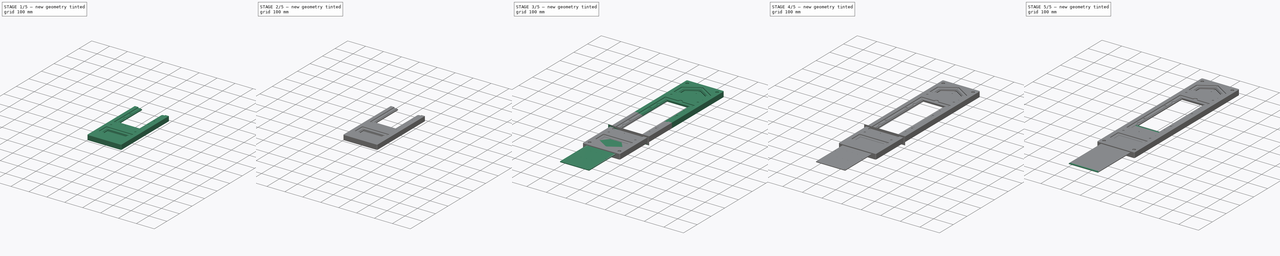
[diagram: build sequence overview — one tinted view per stage of 5, left to right]
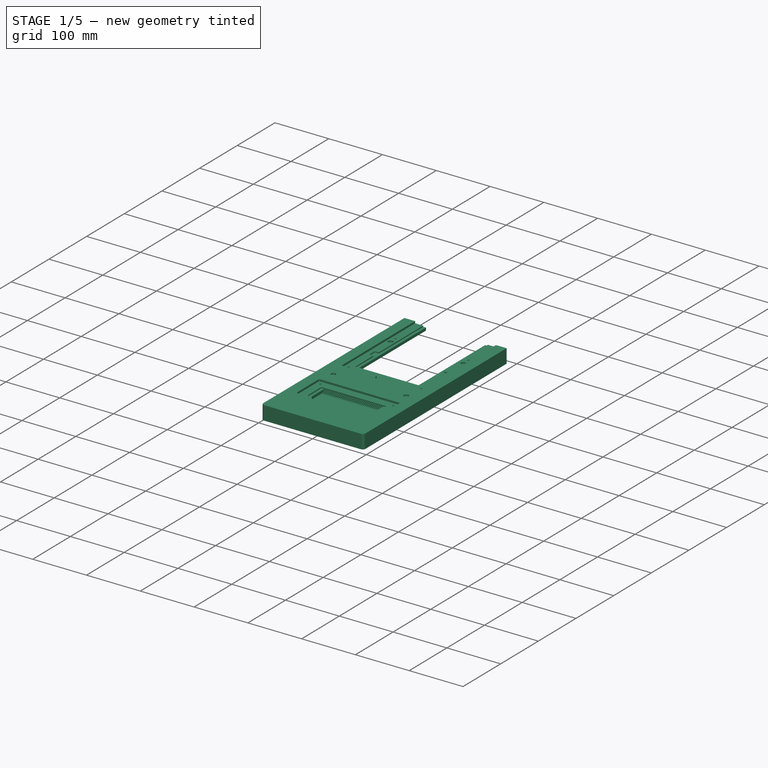
[diagram: stage 1 of 5 — iso view after this stage's code; geometry added in this stage tinted green]
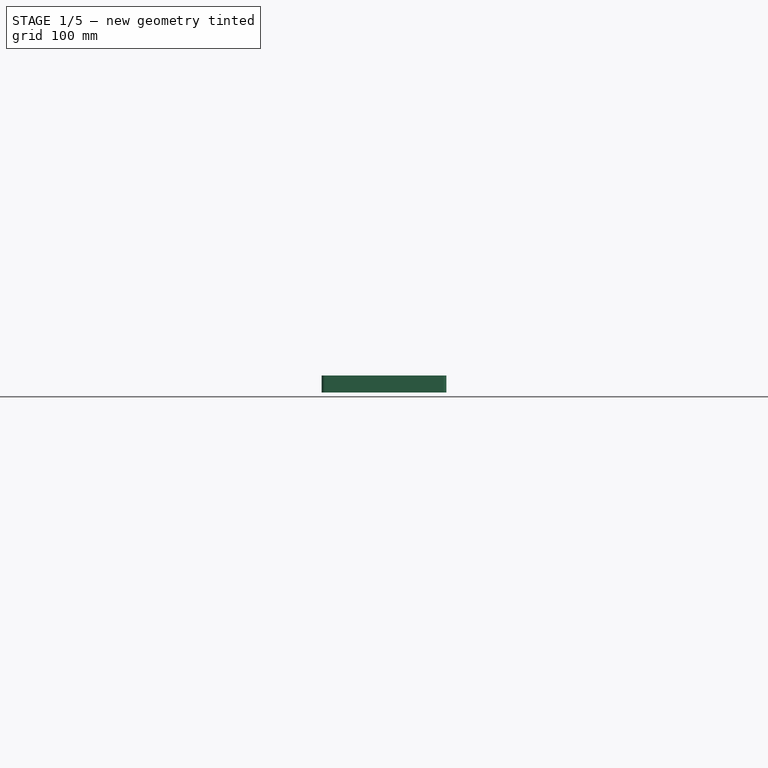
[diagram: stage 1 of 5 — front view after this stage's code; geometry added in this stage tinted green]
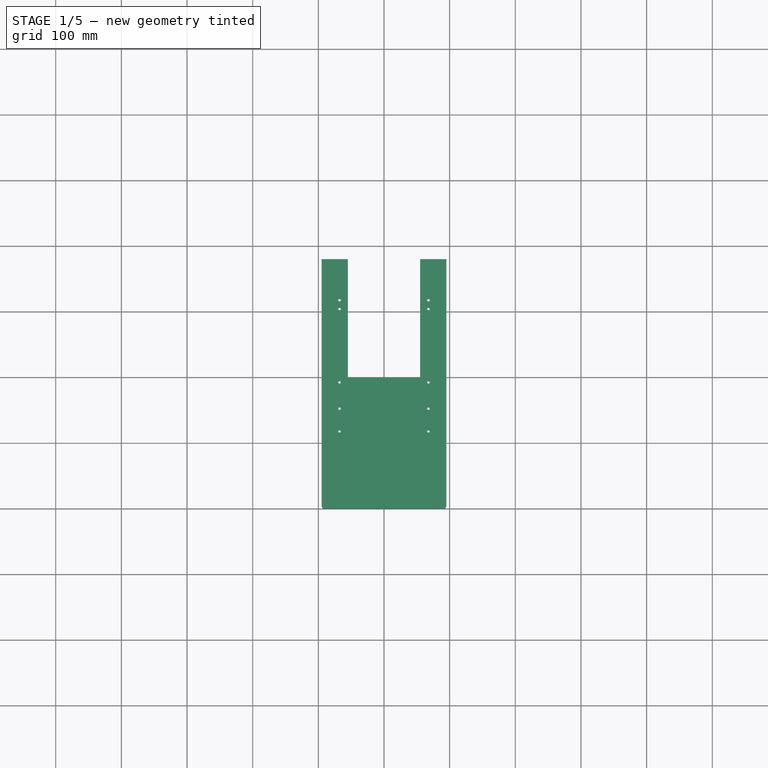
[diagram: stage 1 of 5 — top view after this stage's code; geometry added in this stage tinted green]
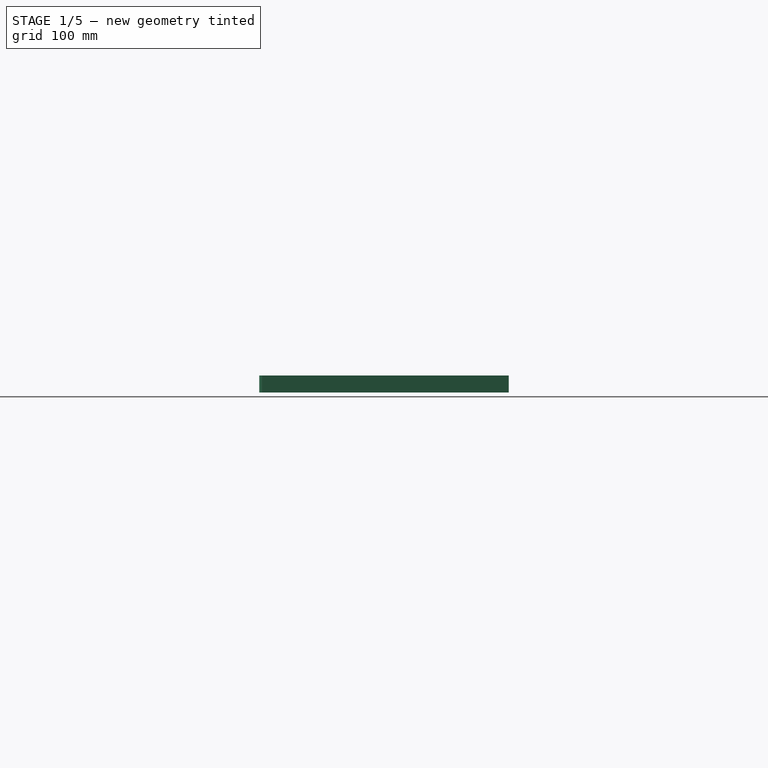
[diagram: stage 1 of 5 — right view after this stage's code; geometry added in this stage tinted green]
FCSTD DOCUMENT  (FreeCAD 0.21R33675 (Git))
Label: wind_tunnel_unsliced
License: All rights reserved
LicenseURL: https://en.wikipedia.org/wiki/All_rights_reserved
objects: Sketcher::SketchObject×90, PartDesign::Pocket×66, PartDesign::Plane×24, PartDesign::Pad×20, PartDesign::Body×15, PartDesign::LinearPattern×6, Part::Feature×6, Part::MultiFuse×4, Part::Cut×3, PartDesign::Chamfer×2, Spreadsheet::Sheet×1, PartDesign::FeatureBase×1, Part::Extrusion×1, Part::FeaturePython×1, Part::Mirroring×1
note: 328 computed .brp shape members not serialized (recipe doc carries the construction recipe); baked Part::Feature solids carry a one-line shape summary decoded from their .brp

FEATURE [Sketcher::SketchObject] Sketch069  label="BaseSketch002"
  FullyConstrained = true
  MapMode = 5
  Support = -> [XY_Plane014]
  expr: Constraints[12] = Spreadsheet.main_body_corner_fillet_radius
  expr: Constraints[13] = Spreadsheet.main_body_width
  expr: Constraints[14] = Spreadsheet.main_body_length * 0.5
  expr: Constraints[31] = Spreadsheet.flow_section_length * 0.5
  expr: Constraints[32] = Spreadsheet.flow_section_width
  sketch-geometry (14):
    g0: LineSegment StartX=-95 StartY=380 StartZ=0 EndX=95 EndY=380 EndZ=0
    g1: LineSegment StartX=95 StartY=380 StartZ=0 EndX=95 EndY=5 EndZ=0
    g2: ArcOfCircle CenterX=90 CenterY=5 CenterZ=0 NormalX=0 NormalY=0 NormalZ=1 AngleXU=0 Radius=5 StartAngle=4.71239 EndAngle=6.28319
    g3: LineSegment StartX=90 StartY=1.35207e-11 StartZ=0 EndX=-90 EndY=1.35207e-11 EndZ=0
    g4: ArcOfCircle CenterX=-90 CenterY=5 CenterZ=0 NormalX=0 NormalY=0 NormalZ=1 AngleXU=0 Radius=5 StartAngle=3.14159 EndAngle=4.71239
    g5: LineSegment StartX=-95 StartY=5 StartZ=0 EndX=-95 EndY=380 EndZ=0
    g6: GeomPoint X=-95 Y=380 Z=0
    g7: GeomPoint X=95 Y=0 Z=0
    g8: LineSegment StartX=-55 StartY=380 StartZ=0 EndX=55 EndY=380 EndZ=0
    g9: LineSegment StartX=55 StartY=380 StartZ=0 EndX=55 EndY=200 EndZ=0
    g10: LineSegment StartX=55 StartY=200 StartZ=0 EndX=-55 EndY=200 EndZ=0
    g11: LineSegment StartX=-55 StartY=200 StartZ=0 EndX=-55 EndY=380 EndZ=0
    g12: LineSegment StartX=-95 StartY=380 StartZ=0 EndX=-55 EndY=380 EndZ=0
    g13: LineSegment StartX=55 StartY=380 StartZ=0 EndX=95 EndY=380 EndZ=0
  constraints (33):
    c: Tangent(g1,g2) = 1.5708
    c: Tangent(g2,g3) = 1.5708
    c: Tangent(g3,g4) = 1.5708
    c: Tangent(g4,g5) = 1.5708
    c: Horizontal(g0)
    c: Horizontal(g3)
    c: Vertical(g1)
    c: Vertical(g5)
    c: Equal(g2,g4)
    c: PointOnObject(g7,g1)
    c: PointOnObject(g7,g3)
    c: Symmetric(g3,g2,g-1)
    c: Radius(g2) = 5
    c: DistanceX(g4,g1) = 190
    c: DistanceY(g2,g0) = 380
    c: Coincident(g0,g6)
    c: Coincident(g0,g5)
    c: Coincident(g1,g0)
    c: Coincident(g8,g9)
    c: Coincident(g9,g10)
    c: Coincident(g10,g11)
    c: Coincident(g11,g8)
    c: Horizontal(g10)
    c: Vertical(g9)
    c: Vertical(g11)
    c: Symmetric(g8,g8,g-2)
    c: Horizontal(g12)
    c: Coincident(g12,g5)
    c: Coincident(g12,g11)
    c: Coincident(g13,g9)
    c: Coincident(g13,g1)
    c: DistanceY(g9,g9) = 180
    c: DistanceX(g10,g10) = 110
FEATURE [PartDesign::Pad] Pad017  label="BasePad002"
  Direction = (0,0,1)
  Length = 15.9938
  Length2 = 10
  Midplane = true
  Profile = -> Sketch069
  ReferenceAxis = -> Sketch069 [N_Axis]
  Type = 0
  expr: Length = Spreadsheet.main_body_height
FEATURE [Sketcher::SketchObject] Sketch070  label="EntrancySketch002"
  FullyConstrained = true
  MapMode = 5
  Placement = pos=(0,0,7.99688) rot=(0,0,1;0rad)
  Support = -> [DatumPlane016]
  expr: Constraints[10] = Spreadsheet.flow_section_width
  expr: Constraints[18] = Spreadsheet.entrance_angled_length
  expr: Constraints[19] = Spreadsheet.entrance_straight_length
  expr: Constraints[25] = Spreadsheet.entrance_fillet_radius
  expr: Constraints[9] = Spreadsheet.entrance_offset_from_front
  sketch-geometry (15):
    g0: LineSegment StartX=0 StartY=0 StartZ=0 EndX=0 EndY=40 EndZ=0
    g1: LineSegment StartX=-55 StartY=110 StartZ=0 EndX=55 EndY=110 EndZ=0
    g2: LineSegment StartX=55 StartY=40 StartZ=0 EndX=-55 EndY=40 EndZ=0
    g3: LineSegment StartX=-55 StartY=40 StartZ=0 EndX=-55 EndY=74 EndZ=0
    g4: LineSegment StartX=-55 StartY=79.5747 StartZ=0 EndX=-55 EndY=110 EndZ=0
    g5: LineSegment StartX=55 StartY=110 StartZ=0 EndX=55 EndY=79.5747 EndZ=0
    g6: LineSegment StartX=55 StartY=74 StartZ=0 EndX=55 EndY=40 EndZ=0
    g7: LineSegment StartX=-50.2582 StartY=71.0687 StartZ=0 EndX=-5.25822 EndY=43.2505 EndZ=0
    g8: LineSegment StartX=5.25822 StartY=43.2505 StartZ=0 EndX=50.2582 EndY=71.0687 EndZ=0
    g9: ArcOfCircle CenterX=-45 CenterY=79.5747 CenterZ=0 NormalX=0 NormalY=0 NormalZ=1 AngleXU=0 Radius=10 StartAngle=3.14159 EndAngle=4.15871
    g10: GeomPoint X=-55 Y=74 Z=0
    g11: ArcOfCircle CenterX=45 CenterY=79.5747 CenterZ=0 NormalX=0 NormalY=0 NormalZ=1 AngleXU=0 Radius=10 StartAngle=5.26607 EndAngle=6.28319
    g12: GeomPoint X=55 Y=74 Z=0
    g13: ArcOfCircle CenterX=7.2e-15 CenterY=51.7565 CenterZ=0 NormalX=0 NormalY=0 NormalZ=1 AngleXU=0 Radius=10 StartAngle=4.15871 EndAngle=5.26607
    g14: GeomPoint X=0 Y=40 Z=0
  constraints (36):
    c: Vertical(g0)
    c: Coincident(g-1,g0)
    c: Coincident(g1,g5)
    c: Coincident(g6,g2)
    c: Coincident(g2,g3)
    c: Coincident(g4,g1)
    c: Horizontal(g1)
    c: Horizontal(g2)
    c: Symmetric(g2,g6,g0)
    c: DistanceY(g0,g0) = 40
    c: DistanceX(g1,g1) = 110
    c: Coincident(g3,g10)
    c: Vertical(g3)
    c: Vertical(g4)
    c: Coincident(g12,g6)
    c: Vertical(g5)
    c: Vertical(g6)
    c: Equal(g3,g6)
    c: DistanceY(g6,g6) = 34
    c: DistanceY(g12,g5) = 36
    c: Coincident(g14,g0)
    c: PointOnObject(g10,g4)
    c: PointOnObject(g10,g7)
    c: Tangent(g4,g9) = 1.5708
    c: Tangent(g7,g9) = -1.5708
    c: Radius(g9) = 10
    c: PointOnObject(g12,g8)
    c: PointOnObject(g12,g5)
    c: Tangent(g8,g11) = -1.5708
    c: Tangent(g5,g11) = 1.5708
    c: Equal(g11,g9)
    c: PointOnObject(g14,g7)
    c: PointOnObject(g14,g8)
    c: Tangent(g7,g13) = -1.5708
    c: Tangent(g8,g13) = -1.5708
    c: Equal(g13,g9)
FEATURE [PartDesign::Pocket] Pocket046  label="EntrancePocket002"
  BaseFeature = -> Pad017
  Direction = (0,0,-1)
  Length = 10.4969
  Length2 = 5
  Profile = -> Sketch070
  ReferenceAxis = -> Sketch070 [N_Axis]
  Type = 0
  expr: Length = Spreadsheet.entrance_pocket_depth
FEATURE [Sketcher::SketchObject] Sketch071  label="CombGapSketch002"
  FullyConstrained = true
  MapMode = 5
  Placement = pos=(0,200,4.44e-14) rot=(0,0.707107,0.707107;3.14159rad)
  Support = -> [DatumPlane017]
  expr: Constraints[12] = Spreadsheet.flow_section_height
  expr: Constraints[13] = Spreadsheet.comb_gap_width
  expr: Constraints[2] = Spreadsheet.flow_section_width
  sketch-geometry (5):
    g0: LineSegment StartX=-55 StartY=0 StartZ=0 EndX=55 EndY=0 EndZ=0
    g1: LineSegment StartX=53.1538 StartY=-2.5 StartZ=0 EndX=55 EndY=-2.5 EndZ=0
    g2: LineSegment StartX=55 StartY=-2.5 StartZ=0 EndX=55 EndY=2.5 EndZ=0
    g3: LineSegment StartX=55 StartY=2.5 StartZ=0 EndX=53.1538 EndY=2.5 EndZ=0
    g4: LineSegment StartX=53.1538 StartY=2.5 StartZ=0 EndX=53.1538 EndY=-2.5 EndZ=0
  constraints (14):
    c: Horizontal(g0)
    c: Symmetric(g0,g0,g-1)
    c: DistanceX(g0,g0) = 110
    c: Coincident(g1,g2)
    c: Coincident(g2,g3)
    c: Coincident(g3,g4)
    c: Coincident(g4,g1)
    c: Horizontal(g1)
    c: Horizontal(g3)
    c: Vertical(g2)
    c: Vertical(g4)
    c: Symmetric(g1,g2,g0)
    c: DistanceY(g4,g4) = 5
    c: DistanceX(g3,g3) = 1.84615
FEATURE [PartDesign::Pocket] Pocket047  label="CombGapPocket002"
  BaseFeature = -> Pocket046
  Direction = (0,-1,-2e-16)
  Length = 90
  Length2 = 5
  Profile = -> Sketch071
  ReferenceAxis = -> Sketch071 [N_Axis]
  Type = 0
  expr: Length = Spreadsheet.comb_section_length
FEATURE [PartDesign::LinearPattern] LinearPattern004  label="CombLinearPattern002"
  BaseFeature = -> Pocket047
  Direction = -> Sketch071 [H_Axis]
  Length = 108.154
  Occurrences = 39
  Originals = -> [Pocket047]
  Reversed = true
  expr: Length = Spreadsheet.comb_pattern_length
  expr: Occurrences = Spreadsheet.comb_number_of_gaps
FEATURE [Sketcher::SketchObject] Sketch072  label="TopEntranceInnerLidSketch002"
  FullyConstrained = true
  MapMode = 5
  Placement = pos=(0,0,7.99688) rot=(0,0,1;0rad)
  Support = -> [DatumPlane016]
  expr: Constraints[16] = Spreadsheet.top_entrance_inner_lid_pocket_angled_length
  expr: Constraints[17] = Spreadsheet.top_inner_lid_pocket_width
  expr: Constraints[2] = Spreadsheet.top_entrance_inner_lid_offset_from_front
  expr: Constraints[33] = Spreadsheet.entrance_fillet_radius
  expr: Constraints[43] = Spreadsheet.top_inner_lid_fillet_radius
  expr: Constraints[8] = Spreadsheet.top_entrance_inner_lid_pocket_length
  sketch-geometry (19):
    g0: LineSegment StartX=0 StartY=34.8 StartZ=0 EndX=0 EndY=0 EndZ=0
    g1: LineSegment StartX=-58.2 StartY=110 StartZ=0 EndX=58.2 EndY=110 EndZ=0
    g2: LineSegment StartX=60.2 StartY=34.8 StartZ=0 EndX=-60.2 EndY=34.8 EndZ=0
    g3: LineSegment StartX=-60.2 StartY=34.8 StartZ=0 EndX=-60.2 EndY=72.0145 EndZ=0
    g4: LineSegment StartX=-60.2 StartY=77.5892 StartZ=0 EndX=-60.2 EndY=108 EndZ=0
    g5: LineSegment StartX=60.2 StartY=108 StartZ=0 EndX=60.2 EndY=77.5892 EndZ=0
    g6: LineSegment StartX=60.2 StartY=72.0145 StartZ=0 EndX=60.2 EndY=34.8 EndZ=0
    g7: LineSegment StartX=-55.4582 StartY=69.0833 StartZ=0 EndX=-5.25822 EndY=38.0505 EndZ=0
    g8: LineSegment StartX=5.25822 StartY=38.0505 StartZ=0 EndX=55.4582 EndY=69.0833 EndZ=0
    g9: ArcOfCircle CenterX=-50.2 CenterY=77.5892 CenterZ=0 NormalX=0 NormalY=0 NormalZ=1 AngleXU=0 Radius=10 StartAngle=3.14159 EndAngle=4.15871
    g10: GeomPoint X=-60.2 Y=72.0145 Z=0
    g11: ArcOfCircle CenterX=50.2 CenterY=77.5892 CenterZ=0 NormalX=0 NormalY=0 NormalZ=1 AngleXU=0 Radius=10 StartAngle=5.26607 EndAngle=6.28319
    g12: GeomPoint X=60.2 Y=72.0145 Z=0
    g13: ArcOfCircle CenterX=5.2e-15 CenterY=46.5565 CenterZ=0 NormalX=0 NormalY=0 NormalZ=1 AngleXU=0 Radius=10 StartAngle=4.15871 EndAngle=5.26607
    g14: GeomPoint X=0 Y=34.8 Z=0
    g15: ArcOfCircle CenterX=-58.2 CenterY=108 CenterZ=0 NormalX=0 NormalY=0 NormalZ=1 AngleXU=0 Radius=2 StartAngle=1.5708 EndAngle=3.14159
    g16: GeomPoint X=-60.2 Y=110 Z=0
    g17: ArcOfCircle CenterX=58.2 CenterY=108 CenterZ=0 NormalX=0 NormalY=0 NormalZ=1 AngleXU=0 Radius=2 StartAngle=-9e-16 EndAngle=1.5708
    g18: GeomPoint X=60.2 Y=110 Z=0
  constraints (44):
    c: Vertical(g0)
    c: Coincident(g-1,g0)
    c: DistanceY(g0,g0) = 34.8
    c: Coincident(g6,g2)
    c: Coincident(g2,g3)
    c: Horizontal(g1)
    c: Horizontal(g2)
    c: Symmetric(g2,g6,g0)
    c: DistanceY(g3,g16) = 75.2
    c: Coincident(g3,g10)
    c: Vertical(g3)
    c: Vertical(g4)
    c: Coincident(g12,g6)
    c: Vertical(g5)
    c: Vertical(g6)
    c: Equal(g3,g6)
    c: DistanceY(g6,g6) = 37.2145
    c: DistanceX(g2,g2) = 120.4
    c: Coincident(g14,g0)
    c: PointOnObject(g10,g4)
    c: PointOnObject(g10,g7)
    c: Tangent(g4,g9) = 1.5708
    c: Tangent(g7,g9) = -1.5708
    c: PointOnObject(g12,g8)
    c: PointOnObject(g12,g5)
    c: Tangent(g8,g11) = -1.5708
    c: Tangent(g5,g11) = 1.5708
    c: Equal(g9,g11)
    c: PointOnObject(g14,g7)
    c: PointOnObject(g14,g8)
    c: Tangent(g7,g13) = -1.5708
    c: Tangent(g8,g13) = -1.5708
    c: Equal(g9,g13)
    c: Radius(g11) = 10
    c: PointOnObject(g16,g4)
    c: PointOnObject(g16,g1)
    c: Tangent(g4,g15) = 1.5708
    c: Tangent(g1,g15) = 1.5708
    c: PointOnObject(g18,g1)
    c: PointOnObject(g18,g5)
    c: Tangent(g1,g17) = 1.5708
    c: Tangent(g5,g17) = 1.5708
    c: Equal(g15,g17)
    c: Radius(g17) = 2
FEATURE [PartDesign::Pocket] Pocket048  label="TopEntranceInnerLidPocket002"
  BaseFeature = -> LinearPattern004
  Direction = (0,0,-1)
  Length = 5.49688
  Length2 = 5
  Profile = -> Sketch072
  ReferenceAxis = -> Sketch072 [N_Axis]
  Type = 0
  expr: Length = Spreadsheet.top_inner_lid_pocket_depth
FEATURE [Sketcher::SketchObject] Sketch073  label="TopFlowSectionInnerLidSketch002"
  FullyConstrained = true
  MapMode = 5
  Placement = pos=(0,0,7.99688) rot=(0,0,1;0rad)
  Support = -> [DatumPlane016]
  expr: Constraints[10] = Spreadsheet.top_inner_lid_pocket_width
  expr: Constraints[11] = Spreadsheet.top_flow_section_inner_lid_pocket_length
  expr: Constraints[2] = Spreadsheet.top_flow_section_inner_lid_offset_from_front
  sketch-geometry (7):
    g0: LineSegment StartX=0 StartY=200 StartZ=0 EndX=0 EndY=0 EndZ=0
    g1: LineSegment StartX=-60.2 StartY=390.4 StartZ=0 EndX=60.2 EndY=390.4 EndZ=0
    g2: LineSegment StartX=60.2 StartY=390.4 StartZ=0 EndX=60.2 EndY=200 EndZ=0
    g3: LineSegment StartX=60.2 StartY=200 StartZ=0 EndX=-60.2 EndY=200 EndZ=0
    g4: LineSegment StartX=-60.2 StartY=200 StartZ=0 EndX=-60.2 EndY=390.4 EndZ=0
    g5: GeomPoint X=-60.2 Y=200 Z=0
    g6: GeomPoint X=60.2 Y=200 Z=0
  constraints (16):
    c: Vertical(g0)
    c: Coincident(g0,g-1)
    c: DistanceY(g0,g0) = 200
    c: Coincident(g1,g2)
    c: Coincident(g4,g1)
    c: Horizontal(g1)
    c: Horizontal(g3)
    c: Vertical(g2)
    c: Vertical(g4)
    c: Symmetric(g5,g6,g0)
    c: DistanceX(g5,g6) = 120.4
    c: DistanceY(g6,g2) = 190.4
    c: Coincident(g4,g3)
    c: Coincident(g4,g5)
    c: Coincident(g6,g3)
    c: Coincident(g6,g2)
FEATURE [PartDesign::Pocket] Pocket049  label="TopFlowSectionInnerLidPocket002"
  BaseFeature = -> Pocket048
  Direction = (0,0,-1)
  Length = 5.49688
  Length2 = 5
  Profile = -> Sketch073
  ReferenceAxis = -> Sketch073 [N_Axis]
  Type = 0
  expr: Length = Spreadsheet.top_inner_lid_pocket_depth
FEATURE [Sketcher::SketchObject] Sketch074  label="TopEntranceOuterLidSketch002"
  FullyConstrained = true
  MapMode = 5
  Placement = pos=(0,0,7.99688) rot=(0,0,1;0rad)
  Support = -> [DatumPlane016]
  expr: Constraints[17] = Spreadsheet.top_entrance_outer_lid_pocket_angled_length
  expr: Constraints[2] = Spreadsheet.top_entrance_outer_lid_offset_from_front
  expr: Constraints[43] = Spreadsheet.top_outer_lid_fillet_radius
  expr: Constraints[8] = Spreadsheet.top_outer_lid_pocket_width
  expr: Constraints[9] = Spreadsheet.top_entrance_outer_lid_pocket_length
  sketch-geometry (19):
    g0: LineSegment StartX=0 StartY=19.6 StartZ=0 EndX=0 EndY=0 EndZ=0
    g1: LineSegment StartX=-73.2 StartY=125.2 StartZ=0 EndX=73.2 EndY=125.2 EndZ=0
    g2: LineSegment StartX=75.2 StartY=19.6 StartZ=0 EndX=-75.2 EndY=19.6 EndZ=0
    g3: LineSegment StartX=-75.2 StartY=19.6 StartZ=0 EndX=-75.2 EndY=66.0873 EndZ=0
    g4: LineSegment StartX=-75.2 StartY=67.2022 StartZ=0 EndX=-75.2 EndY=123.2 EndZ=0
    g5: LineSegment StartX=75.2 StartY=123.2 StartZ=0 EndX=75.2 EndY=67.2022 EndZ=0
    g6: LineSegment StartX=75.2 StartY=66.0873 StartZ=0 EndX=75.2 EndY=19.6 EndZ=0
    g7: LineSegment StartX=-74.2516 StartY=65.501 StartZ=0 EndX=-1.05164 EndY=20.2501 EndZ=0
    g8: LineSegment StartX=1.05164 StartY=20.2501 StartZ=0 EndX=74.2516 EndY=65.501 EndZ=0
    g9: ArcOfCircle CenterX=-73.2 CenterY=123.2 CenterZ=0 NormalX=0 NormalY=0 NormalZ=1 AngleXU=0 Radius=2 StartAngle=1.5708 EndAngle=3.14159
    g10: GeomPoint X=-75.2 Y=125.2 Z=0
    g11: ArcOfCircle CenterX=73.2 CenterY=123.2 CenterZ=0 NormalX=0 NormalY=0 NormalZ=1 AngleXU=0 Radius=2 StartAngle=1.8e-15 EndAngle=1.5708
    g12: GeomPoint X=75.2 Y=125.2 Z=0
    g13: ArcOfCircle CenterX=-73.2 CenterY=67.2022 CenterZ=0 NormalX=0 NormalY=0 NormalZ=1 AngleXU=0 Radius=2 StartAngle=3.14159 EndAngle=4.15871
    g14: GeomPoint X=-75.2 Y=66.0873 Z=0
    g15: ArcOfCircle CenterX=-8e-16 CenterY=21.9513 CenterZ=0 NormalX=0 NormalY=0 NormalZ=1 AngleXU=0 Radius=2 StartAngle=4.15871 EndAngle=5.26607
    g16: GeomPoint X=0 Y=19.6 Z=0
    g17: ArcOfCircle CenterX=73.2 CenterY=67.2022 CenterZ=0 NormalX=0 NormalY=0 NormalZ=1 AngleXU=0 Radius=2 StartAngle=5.26607 EndAngle=6.28319
    g18: GeomPoint X=75.2 Y=66.0873 Z=0
  constraints (44):
    c: Vertical(g0)
    c: Coincident(g0,g-1)
    c: DistanceY(g0,g0) = 19.6
    c: Coincident(g6,g2)
    c: Coincident(g2,g3)
    c: Horizontal(g1)
    c: Horizontal(g2)
    c: Symmetric(g2,g6,g0)
    c: DistanceX(g2,g2) = 150.4
    c: DistanceY(g3,g10) = 105.6
    c: Coincident(g3,g14)
    c: Vertical(g3)
    c: Vertical(g4)
    c: Coincident(g18,g6)
    c: Vertical(g5)
    c: Vertical(g6)
    c: Equal(g3,g6)
    c: DistanceY(g6,g6) = 46.4873
    c: Coincident(g16,g0)
    c: PointOnObject(g10,g4)
    c: PointOnObject(g10,g1)
    c: Tangent(g4,g9) = 1.5708
    c: Tangent(g1,g9) = 1.5708
    c: PointOnObject(g12,g1)
    c: PointOnObject(g12,g5)
    c: Tangent(g1,g11) = 1.5708
    c: Tangent(g5,g11) = 1.5708
    c: PointOnObject(g14,g4)
    c: PointOnObject(g14,g7)
    c: Tangent(g4,g13) = 1.5708
    c: Tangent(g7,g13) = -1.5708
    c: PointOnObject(g16,g7)
    c: PointOnObject(g16,g8)
    c: Tangent(g7,g15) = -1.5708
    c: Tangent(g8,g15) = -1.5708
    c: PointOnObject(g18,g8)
    c: PointOnObject(g18,g5)
    c: Tangent(g8,g17) = -1.5708
    c: Tangent(g5,g17) = 1.5708
    c: Equal(g9,g13)
    c: Equal(g13,g15)
    c: Equal(g15,g17)
    c: Equal(g17,g11)
    c: Radius(g11) = 2
FEATURE [PartDesign::Pocket] Pocket050  label="TopEntranceOuterLidPocket002"
  BaseFeature = -> Pocket049
  Direction = (0,0,-1)
  Length = 3.59688
  Length2 = 5
  Profile = -> Sketch074
  ReferenceAxis = -> Sketch074 [N_Axis]
  Type = 0
  expr: Length = Spreadsheet.top_outer_lid_pocket_depth
FEATURE [Sketcher::SketchObject] Sketch075  label="TopEntranceLidCheckSketch002"
  FullyConstrained = true
  MapMode = 5
  Placement = pos=(0,0,7.99688) rot=(0,0,1;0rad)
  Support = -> [DatumPlane016]
  expr: Constraints[18] = Spreadsheet.flow_section_width
  expr: Constraints[19] = Spreadsheet.entrance_overall_length
  expr: Constraints[1] = Spreadsheet.entrance_offset_from_front
  expr: Constraints[29] = Spreadsheet.top_inner_lid_pocket_width
  expr: Constraints[30] = Spreadsheet.top_entrance_inner_lid_pocket_length
  expr: Constraints[40] = Spreadsheet.top_outer_lid_pocket_width
  expr: Constraints[41] = Spreadsheet.top_entrance_outer_lid_pocket_length
  expr: Constraints[7] = Spreadsheet.top_entrance_inner_lid_offset_from_front
  expr: Constraints[8] = Spreadsheet.top_entrance_outer_lid_offset_from_front
  sketch-geometry (15):
    g0: LineSegment StartX=0 StartY=34.8 StartZ=0 EndX=0 EndY=40 EndZ=0
    g1: LineSegment StartX=0 StartY=0 StartZ=0 EndX=0 EndY=19.6 EndZ=0
    g2: LineSegment StartX=0 StartY=19.6 StartZ=0 EndX=0 EndY=34.8 EndZ=0
    g3: LineSegment StartX=-55 StartY=110 StartZ=0 EndX=55 EndY=110 EndZ=0
    g4: LineSegment StartX=55 StartY=110 StartZ=0 EndX=55 EndY=40 EndZ=0
    g5: LineSegment StartX=55 StartY=40 StartZ=0 EndX=-55 EndY=40 EndZ=0
    g6: LineSegment StartX=-55 StartY=40 StartZ=0 EndX=-55 EndY=110 EndZ=0
    g7: LineSegment StartX=-60.2 StartY=110 StartZ=0 EndX=60.2 EndY=110 EndZ=0
    g8: LineSegment StartX=60.2 StartY=110 StartZ=0 EndX=60.2 EndY=34.8 EndZ=0
    g9: LineSegment StartX=60.2 StartY=34.8 StartZ=0 EndX=-60.2 EndY=34.8 EndZ=0
    g10: LineSegment StartX=-60.2 StartY=34.8 StartZ=0 EndX=-60.2 EndY=110 EndZ=0
    g11: LineSegment StartX=-75.2 StartY=125.2 StartZ=0 EndX=75.2 EndY=125.2 EndZ=0
    g12: LineSegment StartX=75.2 StartY=125.2 StartZ=0 EndX=75.2 EndY=19.6 EndZ=0
    g13: LineSegment StartX=75.2 StartY=19.6 StartZ=0 EndX=-75.2 EndY=19.6 EndZ=0
    g14: LineSegment StartX=-75.2 StartY=19.6 StartZ=0 EndX=-75.2 EndY=125.2 EndZ=0
  constraints (42):
    c: Coincident(g-1,g1)
    c: DistanceY(g1,g0) = 40
    c: Coincident(g2,g0)
    c: Vertical(g0)
    c: Coincident(g1,g2)
    c: Vertical(g1)
    c: Vertical(g2)
    c: DistanceY(g0) = 34.8
    c: DistanceY(g1,g1) = 19.6
    c: Coincident(g3,g4)
    c: Coincident(g4,g5)
    c: Coincident(g5,g6)
    c: Coincident(g6,g3)
    c: Horizontal(g3)
    c: Horizontal(g5)
    c: Vertical(g4)
    c: Vertical(g6)
    c: Symmetric(g5,g4,g0)
    c: DistanceX(g3,g3) = 110
    c: DistanceY(g4,g4) = 70
    c: Coincident(g7,g8)
    c: Coincident(g8,g9)
    c: Coincident(g9,g10)
    c: Coincident(g10,g7)
    c: Horizontal(g7)
    c: Horizontal(g9)
    c: Vertical(g8)
    c: Vertical(g10)
    c: Symmetric(g9,g8,g0)
    c: DistanceX(g7,g7) = 120.4
    c: DistanceY(g8,g8) = 75.2
    c: Coincident(g11,g12)
    c: Coincident(g12,g13)
    c: Coincident(g13,g14)
    c: Coincident(g14,g11)
    c: Horizontal(g11)
    c: Horizontal(g13)
    c: Vertical(g12)
    c: Vertical(g14)
    c: Symmetric(g13,g12,g1)
    c: DistanceX(g11,g11) = 150.4
    c: DistanceY(g12,g12) = 105.6
FEATURE [Sketcher::SketchObject] Sketch076  label="TopFlowSectionOuterLidSketch002"
  FullyConstrained = true
  MapMode = 5
  Placement = pos=(0,0,7.99688) rot=(0,0,1;0rad)
  Support = -> [DatumPlane016]
  expr: Constraints[10] = Spreadsheet.top_outer_lid_pocket_width
  expr: Constraints[11] = Spreadsheet.top_flow_section_outer_lid_pocket_length
  expr: Constraints[21] = Spreadsheet.top_outer_lid_fillet_radius
  expr: Constraints[2] = Spreadsheet.top_flow_section_outer_lid_offset_from_front
  sketch-geometry (9):
    g0: LineSegment StartX=0 StartY=184.8 StartZ=0 EndX=0 EndY=0 EndZ=0
    g1: LineSegment StartX=-75.2 StartY=380 StartZ=0 EndX=75.2 EndY=380 EndZ=0
    g2: LineSegment StartX=75.2 StartY=380 StartZ=0 EndX=75.2 EndY=186.8 EndZ=0
    g3: LineSegment StartX=73.2 StartY=184.8 StartZ=0 EndX=-73.2 EndY=184.8 EndZ=0
    g4: LineSegment StartX=-75.2 StartY=186.8 StartZ=0 EndX=-75.2 EndY=380 EndZ=0
    g5: ArcOfCircle CenterX=-73.2 CenterY=186.8 CenterZ=0 NormalX=0 NormalY=0 NormalZ=1 AngleXU=0 Radius=2 StartAngle=3.14159 EndAngle=4.71239
    g6: GeomPoint X=-75.2 Y=184.8 Z=0
    g7: ArcOfCircle CenterX=73.2 CenterY=186.8 CenterZ=0 NormalX=0 NormalY=0 NormalZ=1 AngleXU=0 Radius=2 StartAngle=4.71239 EndAngle=6.28319
    g8: GeomPoint X=75.2 Y=184.8 Z=0
  constraints (22):
    c: Vertical(g0)
    c: Coincident(g-1,g0)
    c: DistanceY(g0,g0) = 184.8
    c: Coincident(g1,g2)
    c: Coincident(g4,g1)
    c: Horizontal(g1)
    c: Horizontal(g3)
    c: Vertical(g2)
    c: Vertical(g4)
    c: Symmetric(g6,g8,g0)
    c: DistanceX(g1,g1) = 150.4
    c: DistanceY(g8,g2) = 195.2
    c: PointOnObject(g6,g4)
    c: PointOnObject(g6,g3)
    c: Tangent(g4,g5) = 1.5708
    c: Tangent(g3,g5) = 1.5708
    c: PointOnObject(g8,g3)
    c: PointOnObject(g8,g2)
    c: Tangent(g3,g7) = 1.5708
    c: Tangent(g2,g7) = 1.5708
    c: Equal(g5,g7)
    c: Radius(g5) = 2
FEATURE [PartDesign::Pocket] Pocket051  label="TopFlowSectionOuterLidPocket002"
  BaseFeature = -> Pocket050
  Direction = (0,0,-1)
  Length = 3.59688
  Length2 = 5
  Profile = -> Sketch076
  ReferenceAxis = -> Sketch076 [N_Axis]
  Type = 0
  expr: Length = Spreadsheet.top_outer_lid_pocket_depth
FEATURE [Sketcher::SketchObject] Sketch077  label="BottomInnerLidSketch002"
  FullyConstrained = true
  MapMode = 5
  Placement = pos=(0,0,-7.99688) rot=(0,1,0;3.14159rad)
  Support = -> [DatumPlane018]
  expr: Constraints[10] = Spreadsheet.bottom_inner_lid_pocket_width
  expr: Constraints[11] = Spreadsheet.bottom_inner_lid_pocket_length
  expr: Constraints[2] = Spreadsheet.bottom_inner_lid_offset_from_front
  sketch-geometry (7):
    g0: LineSegment StartX=0 StartY=200 StartZ=0 EndX=0 EndY=0 EndZ=0
    g1: LineSegment StartX=-60.2 StartY=390.4 StartZ=0 EndX=60.2 EndY=390.4 EndZ=0
    g2: LineSegment StartX=60.2 StartY=390.4 StartZ=0 EndX=60.2 EndY=200 EndZ=0
    g3: LineSegment StartX=60.2 StartY=200 StartZ=0 EndX=-60.2 EndY=200 EndZ=0
    g4: LineSegment StartX=-60.2 StartY=200 StartZ=0 EndX=-60.2 EndY=390.4 EndZ=0
    g5: GeomPoint X=-60.2 Y=200 Z=0
    g6: GeomPoint X=60.2 Y=200 Z=0
  constraints (16):
    c: Vertical(g0)
    c: Coincident(g0,g-1)
    c: DistanceY(g0,g0) = 200
    c: Coincident(g1,g2)
    c: Coincident(g4,g1)
    c: Horizontal(g1)
    c: Horizontal(g3)
    c: Vertical(g2)
    c: Vertical(g4)
    c: Symmetric(g5,g6,g0)
    c: DistanceX(g1,g1) = 120.4
    c: DistanceY(g6,g2) = 190.4
    c: Coincident(g4,g5)
    c: Coincident(g4,g3)
    c: Coincident(g2,g3)
    c: Coincident(g2,g6)
FEATURE [PartDesign::Pocket] Pocket052  label="BottomInnerLidPocket002"
  BaseFeature = -> Pocket051
  Direction = (0,0,1)
  Length = 5.49688
  Length2 = 5
  Profile = -> Sketch077
  ReferenceAxis = -> Sketch077 [N_Axis]
  Type = 0
  expr: Length = Spreadsheet.bottom_inner_lid_pocket_depth
FEATURE [Sketcher::SketchObject] Sketch078  label="BottomOuterLidSketch003"
  FullyConstrained = true
  MapMode = 5
  Placement = pos=(0,0,-7.99688) rot=(0,1,0;3.14159rad)
  Support = -> [DatumPlane018]
  expr: Constraints[10] = Spreadsheet.bottom_outer_lid_pocket_width
  expr: Constraints[11] = Spreadsheet.bottom_outer_lid_pocket_length
  expr: Constraints[21] = Spreadsheet.bottom_outer_lid_fillet_radius
  expr: Constraints[2] = Spreadsheet.bottom_outer_lid_offset_from_front
  sketch-geometry (9):
    g0: LineSegment StartX=0 StartY=144.8 StartZ=0 EndX=0 EndY=0 EndZ=0
    g1: LineSegment StartX=-75.2 StartY=380 StartZ=0 EndX=75.2 EndY=380 EndZ=0
    g2: LineSegment StartX=75.2 StartY=380 StartZ=0 EndX=75.2 EndY=146.8 EndZ=0
    g3: LineSegment StartX=73.2 StartY=144.8 StartZ=0 EndX=-73.2 EndY=144.8 EndZ=0
    g4: LineSegment StartX=-75.2 StartY=146.8 StartZ=0 EndX=-75.2 EndY=380 EndZ=0
    g5: ArcOfCircle CenterX=-73.2 CenterY=146.8 CenterZ=0 NormalX=0 NormalY=0 NormalZ=1 AngleXU=0 Radius=2 StartAngle=3.14159 EndAngle=4.71239
    g6: GeomPoint X=-75.2 Y=144.8 Z=0
    g7: ArcOfCircle CenterX=73.2 CenterY=146.8 CenterZ=0 NormalX=0 NormalY=0 NormalZ=1 AngleXU=0 Radius=2 StartAngle=4.71239 EndAngle=6.28319
    g8: GeomPoint X=75.2 Y=144.8 Z=0
  constraints (22):
    c: Vertical(g0)
    c: Coincident(g-1,g0)
    c: DistanceY(g0,g0) = 144.8
    c: Coincident(g1,g2)
    c: Coincident(g4,g1)
    c: Horizontal(g1)
    c: Horizontal(g3)
    c: Vertical(g2)
    c: Vertical(g4)
    c: Symmetric(g8,g6,g0)
    c: DistanceX(g1,g1) = 150.4
    c: DistanceY(g8,g2) = 235.2
    c: PointOnObject(g6,g4)
    c: PointOnObject(g6,g3)
    c: Tangent(g4,g5) = 1.5708
    c: Tangent(g3,g5) = 1.5708
    c: PointOnObject(g8,g3)
    c: PointOnObject(g8,g2)
    c: Tangent(g3,g7) = 1.5708
    c: Tangent(g2,g7) = 1.5708
    c: Equal(g5,g7)
    c: Radius(g5) = 2
FEATURE [PartDesign::Pocket] Pocket053  label="BottomOuterLIdPocket002"
  BaseFeature = -> Pocket052
  Direction = (0,0,1)
  Length = 3.59688
  Length2 = 5
  Profile = -> Sketch078
  ReferenceAxis = -> Sketch078 [N_Axis]
  Type = 0
  expr: Length = Spreadsheet.bottom_outer_lid_pocket_depth
FEATURE [Sketcher::SketchObject] Sketch079  label="TopFlowSectionOuterLidMountHoleSketch002"
  FullyConstrained = true
  MapMode = 5
  Placement = pos=(0,0,4.4) rot=(0,0,1;0rad)
  Support = -> [DatumPlane019]
  expr: Constraints[2] = Spreadsheet.top_flow_section_outer_lid_mount_hole_separation
  expr: Constraints[30] = Spreadsheet.outer_lid_overlap * 0.5
  expr: Constraints[32] = Spreadsheet.top_flow_section_outer_lid_offset_from_front
  expr: Constraints[6] = Spreadsheet.lid_mount_hole_diameter
  expr: Constraints[9] = Spreadsheet.main_body_length * 0.5
  sketch-geometry (13):
    g0: LineSegment StartX=-67.7 StartY=192.3 StartZ=0 EndX=67.7 EndY=192.3 EndZ=0
    g1: Circle CenterX=-67.7 CenterY=192.3 CenterZ=0 NormalX=0 NormalY=0 NormalZ=1 AngleXU=0 Radius=1.8669
    g2: Circle CenterX=67.7 CenterY=192.3 CenterZ=0 NormalX=0 NormalY=0 NormalZ=1 AngleXU=0 Radius=1.8669
    g3: LineSegment StartX=0 StartY=380 StartZ=0 EndX=0 EndY=192.3 EndZ=0
    g4: LineSegment StartX=67.7 StartY=317.433 StartZ=0 EndX=67.7 EndY=192.3 EndZ=0
    g5: LineSegment StartX=-67.7 StartY=317.433 StartZ=0 EndX=-67.7 EndY=192.3 EndZ=0
    g6: LineSegment StartX=-67.7 StartY=380 StartZ=0 EndX=67.7 EndY=380 EndZ=0
    g7: LineSegment StartX=67.7 StartY=442.567 StartZ=0 EndX=67.7 EndY=317.433 EndZ=0
    g8: LineSegment StartX=-67.7 StartY=442.567 StartZ=0 EndX=-67.7 EndY=317.433 EndZ=0
    g9: Circle CenterX=-67.7 CenterY=317.433 CenterZ=0 NormalX=0 NormalY=0 NormalZ=1 AngleXU=0 Radius=1.8669
    g10: Circle CenterX=67.7 CenterY=317.433 CenterZ=0 NormalX=0 NormalY=0 NormalZ=1 AngleXU=0 Radius=1.8669
    g11: LineSegment StartX=0 StartY=0 StartZ=0 EndX=0 EndY=184.8 EndZ=0
    g12: LineSegment StartX=0 StartY=184.8 StartZ=0 EndX=0 EndY=192.3 EndZ=0
  constraints (33):
    c: Coincident(g-1,g11)
    c: Horizontal(g0)
    c: DistanceX(g0,g0) = 135.4
    c: Coincident(g1,g0)
    c: Coincident(g2,g0)
    c: Equal(g1,g2)
    c: Diameter(g2) = 3.7338
    c: Vertical(g3)
    c: Coincident(g12,g3)
    c: DistanceY(g11,g3) = 380
    c: Vertical(g4)
    c: Coincident(g4,g2)
    c: Vertical(g5)
    c: Coincident(g1,g5)
    c: Equal(g5,g4)
    c: Horizontal(g6)
    c: Symmetric(g6,g6,g3)
    c: Equal(g6,g0)
    c: Symmetric(g7,g7,g6)
    c: Coincident(g4,g7)
    c: Equal(g4,g7)
    c: Symmetric(g8,g8,g6)
    c: Coincident(g8,g5)
    c: Coincident(g9,g5)
    c: Coincident(g10,g4)
    c: Equal(g9,g10)
    c: Equal(g9,g1)
    c: Coincident(g11,g12)
    c: Vertical(g11)
    c: Vertical(g12)
    c: DistanceY(g12,g12) = 7.5
    c: Symmetric(g1,g2,g3)
    c: DistanceY(g11,g11) = 184.8
FEATURE [PartDesign::Pocket] Pocket054  label="TopFlowSectionOuterLidMountHolePocket002"
  BaseFeature = -> Pocket053
  Direction = (0,0,-1)
  Length = 5
  Length2 = 5
  Profile = -> Sketch079
  ReferenceAxis = -> Sketch079 [N_Axis]
  Type = 1
FEATURE [Sketcher::SketchObject] Sketch080  label="TopFlowSectionOuterLidHexNutPocketSketch002"
  FullyConstrained = true
  MapMode = 5
  Placement = pos=(0,0,-4.4) rot=(0,1,0;3.14159rad)
  Support = -> [DatumPlane020]
  expr: Constraints[103] = Spreadsheet.outer_lid_overlap * 0.5
  expr: Constraints[104] = Spreadsheet.top_flow_section_outer_lid_offset_from_front
  expr: Constraints[2] = Spreadsheet.top_flow_section_outer_lid_mount_hole_separation
  expr: Constraints[42] = Spreadsheet.lid_mount_hex_nut_pocket_minor_diameter
  expr: Constraints[50] = Spreadsheet.main_body_length * 0.5
  sketch-geometry (37):
    g0: LineSegment StartX=-67.7 StartY=192.3 StartZ=0 EndX=67.7 EndY=192.3 EndZ=0
    g1: LineSegment StartX=-63.5313 StartY=189.893 StartZ=0 EndX=-63.5312 EndY=194.707 EndZ=0
    g2: LineSegment StartX=-63.5312 StartY=194.707 StartZ=0 EndX=-67.7 EndY=197.114 EndZ=0
    g3: LineSegment StartX=-67.7 StartY=197.114 StartZ=0 EndX=-71.8688 EndY=194.707 EndZ=0
    g4: LineSegment StartX=-71.8688 StartY=194.707 StartZ=0 EndX=-71.8688 EndY=189.893 EndZ=0
    g5: LineSegment StartX=-71.8688 StartY=189.893 StartZ=0 EndX=-67.7 EndY=187.486 EndZ=0
    g6: LineSegment StartX=-67.7 StartY=187.486 StartZ=0 EndX=-63.5313 EndY=189.893 EndZ=0
    g7: Circle CenterX=-67.7 CenterY=192.3 CenterZ=0 NormalX=0 NormalY=0 NormalZ=1 AngleXU=0 Radius=4.81366
    g8: LineSegment StartX=67.7 StartY=187.486 StartZ=0 EndX=71.8688 EndY=189.893 EndZ=0
    g9: LineSegment StartX=71.8688 StartY=189.893 StartZ=0 EndX=71.8688 EndY=194.707 EndZ=0
    g10: LineSegment StartX=71.8688 StartY=194.707 StartZ=0 EndX=67.7 EndY=197.114 EndZ=0
    g11: LineSegment StartX=67.7 StartY=197.114 StartZ=0 EndX=63.5312 EndY=194.707 EndZ=0
    g12: LineSegment StartX=63.5312 StartY=194.707 StartZ=0 EndX=63.5312 EndY=189.893 EndZ=0
    g13: LineSegment StartX=63.5312 StartY=189.893 StartZ=0 EndX=67.7 EndY=187.486 EndZ=0
    g14: Circle CenterX=67.7 CenterY=192.3 CenterZ=0 NormalX=0 NormalY=0 NormalZ=1 AngleXU=0 Radius=4.81366
    g15: LineSegment StartX=67.7 StartY=317.433 StartZ=0 EndX=67.7 EndY=192.3 EndZ=0
    g16: LineSegment StartX=-67.7 StartY=317.433 StartZ=0 EndX=-67.7 EndY=192.3 EndZ=0
    g17: LineSegment StartX=0 StartY=380 StartZ=0 EndX=0 EndY=192.3 EndZ=0
    g18: LineSegment StartX=67.7 StartY=380 StartZ=0 EndX=-67.7 EndY=380 EndZ=0
    g19: LineSegment StartX=67.7 StartY=442.567 StartZ=0 EndX=67.7 EndY=317.433 EndZ=0
    g20: LineSegment StartX=-67.7 StartY=442.567 StartZ=0 EndX=-67.7 EndY=317.433 EndZ=0
    g21: LineSegment StartX=-67.7 StartY=312.62 StartZ=0 EndX=-63.5312 EndY=315.027 EndZ=0
    g22: LineSegment StartX=-63.5312 StartY=315.027 StartZ=0 EndX=-63.5312 EndY=319.84 EndZ=0
    g23: LineSegment StartX=-63.5312 StartY=319.84 StartZ=0 EndX=-67.7 EndY=322.247 EndZ=0
    g24: LineSegment StartX=-67.7 StartY=322.247 StartZ=0 EndX=-71.8688 EndY=319.84 EndZ=0
    g25: LineSegment StartX=-71.8688 StartY=319.84 StartZ=0 EndX=-71.8688 EndY=315.027 EndZ=0
    g26: LineSegment StartX=-71.8688 StartY=315.027 StartZ=0 EndX=-67.7 EndY=312.62 EndZ=0
    g27: Circle CenterX=-67.7 CenterY=317.433 CenterZ=0 NormalX=0 NormalY=0 NormalZ=1 AngleXU=0 Radius=4.81366
    g28: LineSegment StartX=67.7 StartY=312.62 StartZ=0 EndX=71.8688 EndY=315.027 EndZ=0
    g29: LineSegment StartX=71.8688 StartY=315.027 StartZ=0 EndX=71.8688 EndY=319.84 EndZ=0
    g30: LineSegment StartX=71.8688 StartY=319.84 StartZ=0 EndX=67.7 EndY=322.247 EndZ=0
    g31: LineSegment StartX=67.7 StartY=322.247 StartZ=0 EndX=63.5312 EndY=319.84 EndZ=0
    g32: LineSegment StartX=63.5312 StartY=319.84 StartZ=0 EndX=63.5312 EndY=315.027 EndZ=0
    g33: LineSegment StartX=63.5312 StartY=315.027 StartZ=0 EndX=67.7 EndY=312.62 EndZ=0
    g34: Circle CenterX=67.7 CenterY=317.433 CenterZ=0 NormalX=0 NormalY=0 NormalZ=1 AngleXU=0 Radius=4.81366
    g35: LineSegment StartX=0 StartY=192.3 StartZ=0 EndX=0 EndY=184.8 EndZ=0
    g36: LineSegment StartX=0 StartY=184.8 StartZ=0 EndX=0 EndY=0 EndZ=0
  constraints (89):
    c: Coincident(g-1,g36)
    c: Horizontal(g0)
    c: DistanceX(g0,g0) = 135.4
    c: Coincident(g1,g2)
    c: Coincident(g2,g3)
    c: Coincident(g3,g4)
    c: Coincident(g4,g5)
    c: Coincident(g5,g6)
    c: Coincident(g6,g1)
    c: Equal(g1, g2-g6) x5
    c: PointOnObject(g1,g7)
    c: PointOnObject(g2,g7)
    c: PointOnObject(g3,g7)
    c: PointOnObject(g4,g7)
    c: PointOnObject(g5,g7)
    c: PointOnObject(g6,g7)
    c: Coincident(g7,g0)
    c: Coincident(g8,g9)
    c: Coincident(g9,g10)
    c: Coincident(g10,g11)
    c: Coincident(g11,g12)
    c: Coincident(g12,g13)
    c: Coincident(g13,g8)
    c: Equal(g8, g9-g13) x5
    c: PointOnObject(g8,g14)
    c: PointOnObject(g9,g14)
    c: PointOnObject(g10,g14)
    c: PointOnObject(g11,g14)
    c: PointOnObject(g12,g14)
    c: PointOnObject(g13,g14)
    c: Coincident(g14,g0)
    c: Vertical(g4)
    c: Vertical(g9)
    c: Equal(g7,g14)
    c: DistanceX(g4,g1) = 8.3375
    c: Vertical(g15)
    c: Coincident(g15,g0)
    c: Vertical(g16)
    c: Coincident(g0,g16)
    c: Equal(g16,g15)
    c: Vertical(g17)
    c: Coincident(g35,g17)
    c: DistanceY(g36,g17) = 380
    c: Horizontal(g18)
    c: Symmetric(g18,g18,g17)
    c: Equal(g18,g0)
    c: Symmetric(g19,g19,g18)
    c: Coincident(g19,g15)
    c: Equal(g19,g15)
    c: Symmetric(g20,g20,g18)
    c: Coincident(g20,g16)
    c: Coincident(g21,g22)
    c: Coincident(g22,g23)
    c: Coincident(g23,g24)
    c: Coincident(g24,g25)
    c: Coincident(g25,g26)
    c: Coincident(g26,g21)
    c: Equal(g21, g22-g26) x5
    c: PointOnObject(g21,g27)
    c: PointOnObject(g22,g27)
    c: PointOnObject(g23,g27)
    c: PointOnObject(g24,g27)
    c: PointOnObject(g25,g27)
    c: PointOnObject(g26,g27)
    c: Coincident(g27,g16)
    c: Coincident(g28,g29)
    c: Coincident(g29,g30)
    c: Coincident(g30,g31)
    c: Coincident(g31,g32)
    c: Coincident(g32,g33)
    c: Coincident(g33,g28)
    c: Equal(g28, g29-g33) x5
    c: PointOnObject(g28,g34)
    c: PointOnObject(g29,g34)
    c: PointOnObject(g30,g34)
    c: PointOnObject(g31,g34)
    c: PointOnObject(g32,g34)
    c: PointOnObject(g33,g34)
    c: Coincident(g34,g15)
    c: Equal(g7,g27)
    c: Equal(g27,g34)
    c: Vertical(g25)
    c: Vertical(g32)
    c: Coincident(g35,g36)
    c: Vertical(g35)
    c: Vertical(g36)
    c: Symmetric(g0,g0,g17)
    c: DistanceY(g35,g17) = 7.5
    c: DistanceY(g36,g35) = 184.8
FEATURE [PartDesign::Pocket] Pocket055  label="TopFlowSectionOuterLidHexNutPocket002"
  BaseFeature = -> Pocket054
  Direction = (0,0,1)
  Length = 2.97812
  Length2 = 5
  Profile = -> Sketch080
  ReferenceAxis = -> Sketch080 [N_Axis]
  Type = 0
  expr: Length = Spreadsheet.lid_mount_hex_nut_pocket_depth
FEATURE [Sketcher::SketchObject] Sketch081  label="TopEntranceOuterLidMountHoleSketch002"
  FullyConstrained = true
  MapMode = 5
  Placement = pos=(0,0,4.4) rot=(0,0,1;0rad)
  Support = -> [DatumPlane019]
  expr: Constraints[13] = Spreadsheet.top_entrance_outer_lid_pocket_length
  expr: Constraints[14] = Spreadsheet.outer_lid_overlap * 0.5
  expr: Constraints[20] = Spreadsheet.lid_mount_hole_diameter
  expr: Constraints[3] = Spreadsheet.top_entrance_outer_lid_mount_hole_separation
  expr: Constraints[4] = Spreadsheet.top_entrance_outer_lid_offset_from_front
  expr: Constraints[7] = Spreadsheet.outer_lid_overlap * 0.5
  sketch-geometry (8):
    g0: LineSegment StartX=0 StartY=19.6 StartZ=0 EndX=0 EndY=0 EndZ=0
    g1: LineSegment StartX=-67.7 StartY=117.7 StartZ=0 EndX=67.7 EndY=117.7 EndZ=0
    g2: LineSegment StartX=0 StartY=19.6 StartZ=0 EndX=0 EndY=27.1 EndZ=0
    g3: LineSegment StartX=0 StartY=117.7 StartZ=0 EndX=0 EndY=27.1 EndZ=0
    g4: LineSegment StartX=0 StartY=125.2 StartZ=0 EndX=0 EndY=117.7 EndZ=0
    g5: Circle CenterX=-67.7 CenterY=117.7 CenterZ=0 NormalX=0 NormalY=0 NormalZ=1 AngleXU=0 Radius=1.8669
    g6: Circle CenterX=67.7 CenterY=117.7 CenterZ=0 NormalX=0 NormalY=0 NormalZ=1 AngleXU=0 Radius=1.8669
    g7: Circle CenterX=0 CenterY=27.1 CenterZ=0 NormalX=0 NormalY=0 NormalZ=1 AngleXU=0 Radius=1.8669
  constraints (21):
    c: Vertical(g0)
    c: Coincident(g-1,g0)
    c: Horizontal(g1)
    c: DistanceX(g1,g1) = 135.4
    c: DistanceY(g0,g0) = 19.6
    c: Vertical(g2)
    c: Coincident(g0,g2)
    c: DistanceY(g2,g2) = 7.5
    c: Vertical(g3)
    c: Symmetric(g1,g1,g3)
    c: Coincident(g3,g2)
    c: Vertical(g4)
    c: Coincident(g3,g4)
    c: DistanceY(g0,g4) = 105.6
    c: DistanceY(g4,g4) = 7.5
    c: Coincident(g5,g1)
    c: Coincident(g6,g1)
    c: Coincident(g7,g2)
    c: Equal(g7,g5)
    c: Equal(g5,g6)
    c: Diameter(g7) = 3.7338
FEATURE [PartDesign::Pocket] Pocket056  label="TopEntranceOuterLidMountHolePocket002"
  BaseFeature = -> Pocket055
  Direction = (0,0,-1)
  Length = 5
  Length2 = 5
  Profile = -> Sketch081
  ReferenceAxis = -> Sketch081 [N_Axis]
  Type = 1
FEATURE [Sketcher::SketchObject] Sketch082  label="BottomOuterLidMountHolePocketSketch002"
  FullyConstrained = true
  MapMode = 5
  Placement = pos=(0,0,-4.4) rot=(0,1,0;3.14159rad)
  Support = -> [DatumPlane020]
  expr: Constraints[19] = Spreadsheet.main_body_length * 0.5
  expr: Constraints[21] = Spreadsheet.main_body_width
  expr: Constraints[2] = Spreadsheet.bottom_outer_lid_mout_hole_from_front
  expr: Constraints[30] = Spreadsheet.lid_mount_hole_diameter
  expr: Constraints[5] = Spreadsheet.bottom_outer_lid_mount_hole_separation
  sketch-geometry (12):
    g0: LineSegment StartX=0 StartY=152.3 StartZ=0 EndX=0 EndY=0 EndZ=0
    g1: LineSegment StartX=-67.7 StartY=152.3 StartZ=0 EndX=67.7 EndY=152.3 EndZ=0
    g2: LineSegment StartX=-67.7 StartY=152.3 StartZ=0 EndX=-67.7 EndY=304.1 EndZ=0
    g3: LineSegment StartX=67.7 StartY=152.3 StartZ=0 EndX=67.7 EndY=304.1 EndZ=0
    g4: LineSegment StartX=-67.7 StartY=304.1 StartZ=0 EndX=-67.7 EndY=455.9 EndZ=0
    g5: LineSegment StartX=67.7 StartY=304.1 StartZ=0 EndX=67.7 EndY=455.9 EndZ=0
    g6: LineSegment StartX=0 StartY=0 StartZ=0 EndX=0 EndY=380 EndZ=0
    g7: LineSegment StartX=-95 StartY=380 StartZ=0 EndX=95 EndY=380 EndZ=0
    g8: Circle CenterX=-67.7 CenterY=304.1 CenterZ=0 NormalX=0 NormalY=0 NormalZ=1 AngleXU=0 Radius=1.8669
    g9: Circle CenterX=67.7 CenterY=304.1 CenterZ=0 NormalX=0 NormalY=0 NormalZ=1 AngleXU=0 Radius=1.8669
    g10: Circle CenterX=-67.7 CenterY=152.3 CenterZ=0 NormalX=0 NormalY=0 NormalZ=1 AngleXU=0 Radius=1.8669
    g11: Circle CenterX=67.7 CenterY=152.3 CenterZ=0 NormalX=0 NormalY=0 NormalZ=1 AngleXU=0 Radius=1.8669
  constraints (31):
    c: Vertical(g0)
    c: Coincident(g-1,g0)
    c: DistanceY(g0,g0) = 152.3
    c: Horizontal(g1)
    c: Symmetric(g1,g1,g0)
    c: DistanceX(g1,g1) = 135.4
    c: Coincident(g2,g1)
    c: Vertical(g2)
    c: Coincident(g3,g1)
    c: Vertical(g3)
    c: Equal(g2,g3)
    c: Coincident(g4,g2)
    c: Vertical(g4)
    c: Coincident(g5,g3)
    c: Vertical(g5)
    c: Equal(g4,g5)
    c: Equal(g4,g2)
    c: Coincident(g6,g0)
    c: Vertical(g6)
    c: DistanceY(g6,g6) = 380
    c: Symmetric(g7,g7,g6)
    c: DistanceX(g7,g7) = 190
    c: Symmetric(g4,g2,g7)
    c: Coincident(g8,g2)
    c: Coincident(g9,g3)
    c: Coincident(g10,g1)
    c: Coincident(g11,g1)
    c: Equal(g10,g11)
    c: Equal(g11,g8)
    c: Equal(g8,g9)
    c: Diameter(g10) = 3.7338
FEATURE [PartDesign::Pocket] Pocket057  label="BottomOuterLidMountHolePocket002"
  BaseFeature = -> Pocket056
  Direction = (0,0,1)
  Length = 5
  Length2 = 5
  Profile = -> Sketch082
  ReferenceAxis = -> Sketch082 [N_Axis]
  Type = 1
FEATURE [Sketcher::SketchObject] Sketch083  label="BottomOuterLidTopDatumPlaneHexPocketSketch002"
  FullyConstrained = true
  MapMode = 5
  Placement = pos=(0,0,7.99688) rot=(0,0,1;0rad)
  Support = -> [DatumPlane016]
  expr: Constraints[45] = Spreadsheet.lid_mount_hex_nut_pocket_minor_diameter
  expr: Constraints[4] = Spreadsheet.bottom_outer_lid_mout_hole_from_front
  expr: Constraints[5] = Spreadsheet.bottom_outer_lid_mount_hole_separation
  sketch-geometry (16):
    g0: LineSegment StartX=0 StartY=152.3 StartZ=0 EndX=0 EndY=0 EndZ=0
    g1: LineSegment StartX=-67.7 StartY=152.3 StartZ=0 EndX=67.7 EndY=152.3 EndZ=0
    g2: LineSegment StartX=-63.5313 StartY=149.893 StartZ=0 EndX=-63.5312 EndY=154.707 EndZ=0
    g3: LineSegment StartX=-63.5312 StartY=154.707 StartZ=0 EndX=-67.7 EndY=157.114 EndZ=0
    g4: LineSegment StartX=-67.7 StartY=157.114 StartZ=0 EndX=-71.8687 EndY=154.707 EndZ=0
    g5: LineSegment StartX=-71.8687 StartY=154.707 StartZ=0 EndX=-71.8687 EndY=149.893 EndZ=0
    g6: LineSegment StartX=-71.8687 StartY=149.893 StartZ=0 EndX=-67.7 EndY=147.486 EndZ=0
    g7: LineSegment StartX=-67.7 StartY=147.486 StartZ=0 EndX=-63.5313 EndY=149.893 EndZ=0
    g8: Circle CenterX=-67.7 CenterY=152.3 CenterZ=0 NormalX=0 NormalY=0 NormalZ=1 AngleXU=0 Radius=4.81366
    g9: LineSegment StartX=71.8687 StartY=149.893 StartZ=0 EndX=71.8687 EndY=154.707 EndZ=0
    g10: LineSegment StartX=71.8687 StartY=154.707 StartZ=0 EndX=67.7 EndY=157.114 EndZ=0
    g11: LineSegment StartX=67.7 StartY=157.114 StartZ=0 EndX=63.5313 EndY=154.707 EndZ=0
    g12: LineSegment StartX=63.5313 StartY=154.707 StartZ=0 EndX=63.5313 EndY=149.893 EndZ=0
    g13: LineSegment StartX=63.5313 StartY=149.893 StartZ=0 EndX=67.7 EndY=147.486 EndZ=0
    g14: LineSegment StartX=67.7 StartY=147.486 StartZ=0 EndX=71.8687 EndY=149.893 EndZ=0
    g15: Circle CenterX=67.7 CenterY=152.3 CenterZ=0 NormalX=0 NormalY=0 NormalZ=1 AngleXU=0 Radius=4.81366
  constraints (38):
    c: Coincident(g-1,g0)
    c: Vertical(g0)
    c: Horizontal(g1)
    c: Symmetric(g1,g1,g0)
    c: DistanceY(g0,g0) = 152.3
    c: DistanceX(g1,g1) = 135.4
    c: Coincident(g2,g3)
    c: Coincident(g3,g4)
    c: Coincident(g4,g5)
    c: Coincident(g5,g6)
    c: Coincident(g6,g7)
    c: Coincident(g7,g2)
    c: Equal(g2, g3-g7) x5
    c: PointOnObject(g2,g8)
    c: PointOnObject(g3,g8)
    c: PointOnObject(g4,g8)
    c: PointOnObject(g5,g8)
    c: PointOnObject(g6,g8)
    c: PointOnObject(g7,g8)
    c: Coincident(g8,g1)
    c: Coincident(g9,g10)
    c: Coincident(g10,g11)
    c: Coincident(g11,g12)
    c: Coincident(g12,g13)
    c: Coincident(g13,g14)
    c: Coincident(g14,g9)
    c: Equal(g9, g10-g14) x5
    c: PointOnObject(g9,g15)
    c: PointOnObject(g10,g15)
    c: PointOnObject(g11,g15)
    c: PointOnObject(g12,g15)
    c: PointOnObject(g13,g15)
    c: PointOnObject(g14,g15)
    c: Coincident(g15,g1)
    c: Equal(g8,g15)
    c: Vertical(g5)
    c: Vertical(g12)
    c: DistanceX(g4,g2) = 8.3375
FEATURE [PartDesign::Pocket] Pocket058  label="BottomOuterLidTopDatumPlaneHexPocket002"
  BaseFeature = -> Pocket057
  Direction = (0,0,-1)
  Length = 2.97812
  Length2 = 5
  Profile = -> Sketch083
  ReferenceAxis = -> Sketch083 [N_Axis]
  Type = 0
  expr: Length = Spreadsheet.lid_mount_hex_nut_pocket_depth
FEATURE [Sketcher::SketchObject] Sketch084  label="BottomOuterLidLidDatumPlaneHexSketch002"
  FullyConstrained = true
  MapMode = 5
  Placement = pos=(0,0,4.4) rot=(0,0,1;0rad)
  Support = -> [DatumPlane019]
  expr: Constraints[11] = Spreadsheet.main_body_width
  expr: Constraints[2] = Spreadsheet.bottom_outer_lid_mout_hole_from_front
  expr: Constraints[5] = Spreadsheet.bottom_outer_lid_mount_hole_separation
  expr: Constraints[62] = Spreadsheet.lid_mount_hex_nut_pocket_minor_diameter
  expr: Constraints[8] = Spreadsheet.main_body_length * 0.5
  sketch-geometry (22):
    g0: LineSegment StartX=0 StartY=0 StartZ=0 EndX=0 EndY=152.3 EndZ=0
    g1: LineSegment StartX=-67.7 StartY=152.3 StartZ=0 EndX=67.7 EndY=152.3 EndZ=0
    g2: LineSegment StartX=0 StartY=380 StartZ=0 EndX=0 EndY=0 EndZ=0
    g3: LineSegment StartX=-95 StartY=380 StartZ=0 EndX=95 EndY=380 EndZ=0
    g4: LineSegment StartX=-67.7 StartY=304.1 StartZ=0 EndX=-67.7 EndY=152.3 EndZ=0
    g5: LineSegment StartX=-67.7 StartY=304.1 StartZ=0 EndX=-67.7 EndY=455.9 EndZ=0
    g6: LineSegment StartX=67.7 StartY=152.3 StartZ=0 EndX=67.7 EndY=304.1 EndZ=0
    g7: LineSegment StartX=67.7 StartY=304.1 StartZ=0 EndX=67.7 EndY=455.9 EndZ=0
    g8: LineSegment StartX=-63.5312 StartY=301.693 StartZ=0 EndX=-63.5313 EndY=306.507 EndZ=0
    g9: LineSegment StartX=-63.5313 StartY=306.507 StartZ=0 EndX=-67.7 EndY=308.914 EndZ=0
    g10: LineSegment StartX=-67.7 StartY=308.914 StartZ=0 EndX=-71.8687 EndY=306.507 EndZ=0
    g11: LineSegment StartX=-71.8687 StartY=306.507 StartZ=0 EndX=-71.8687 EndY=301.693 EndZ=0
    g12: LineSegment StartX=-71.8687 StartY=301.693 StartZ=0 EndX=-67.7 EndY=299.286 EndZ=0
    g13: LineSegment StartX=-67.7 StartY=299.286 StartZ=0 EndX=-63.5312 EndY=301.693 EndZ=0
    g14: Circle CenterX=-67.7 CenterY=304.1 CenterZ=0 NormalX=0 NormalY=0 NormalZ=1 AngleXU=0 Radius=4.81366
    g15: LineSegment StartX=71.8687 StartY=301.693 StartZ=0 EndX=71.8687 EndY=306.507 EndZ=0
    g16: LineSegment StartX=71.8687 StartY=306.507 StartZ=0 EndX=67.7 EndY=308.914 EndZ=0
    g17: LineSegment StartX=67.7 StartY=308.914 StartZ=0 EndX=63.5313 EndY=306.507 EndZ=0
    g18: LineSegment StartX=63.5313 StartY=306.507 StartZ=0 EndX=63.5313 EndY=301.693 EndZ=0
    g19: LineSegment StartX=63.5313 StartY=301.693 StartZ=0 EndX=67.7 EndY=299.286 EndZ=0
    g20: LineSegment StartX=67.7 StartY=299.286 StartZ=0 EndX=71.8687 EndY=301.693 EndZ=0
    g21: Circle CenterX=67.7 CenterY=304.1 CenterZ=0 NormalX=0 NormalY=0 NormalZ=1 AngleXU=0 Radius=4.81366
  constraints (55):
    c: Vertical(g0)
    c: Coincident(g-1,g0)
    c: DistanceY(g0,g0) = 152.3
    c: Horizontal(g1)
    c: Symmetric(g1,g1,g0)
    c: DistanceX(g1,g1) = 135.4
    c: Vertical(g2)
    c: Coincident(g0,g2)
    c: DistanceY(g2,g2) = 380
    c: Horizontal(g3)
    c: Symmetric(g3,g3,g2)
    c: DistanceX(g3,g3) = 190
    c: Vertical(g4)
    c: Coincident(g4,g1)
    c: Coincident(g5,g4)
    c: Coincident(g6,g1)
    c: Vertical(g6)
    c: Coincident(g7,g6)
    c: Vertical(g7)
    c: Equal(g4,g6)
    c: Equal(g5,g7)
    c: Symmetric(g5,g4,g3)
    c: Equal(g5,g4)
    c: Coincident(g8,g9)
    c: Coincident(g9,g10)
    c: Coincident(g10,g11)
    c: Coincident(g11,g12)
    c: Coincident(g12,g13)
    c: Coincident(g13,g8)
    c: Equal(g8, g9-g13) x5
    c: PointOnObject(g8,g14)
    c: PointOnObject(g9,g14)
    c: PointOnObject(g10,g14)
    c: PointOnObject(g11,g14)
    c: PointOnObject(g12,g14)
    c: PointOnObject(g13,g14)
    c: Coincident(g14,g4)
    c: Coincident(g15,g16)
    c: Coincident(g16,g17)
    c: Coincident(g17,g18)
    c: Coincident(g18,g19)
    c: Coincident(g19,g20)
    c: Coincident(g20,g15)
    c: Equal(g15, g16-g20) x5
    c: PointOnObject(g15,g21)
    c: PointOnObject(g16,g21)
    c: PointOnObject(g17,g21)
    c: PointOnObject(g18,g21)
    c: PointOnObject(g19,g21)
    c: PointOnObject(g20,g21)
    c: Coincident(g21,g6)
    c: Equal(g14,g21)
    c: Vertical(g11)
    c: Vertical(g18)
    c: DistanceX(g11,g8) = 8.3375
FEATURE [PartDesign::Pocket] Pocket059  label="BottomOuterLidLidDatumPlaneHexPocket002"
  BaseFeature = -> Pocket058
  Direction = (0,0,-1)
  Length = 2.97812
  Length2 = 5
  Profile = -> Sketch084
  ReferenceAxis = -> Sketch084 [N_Axis]
  Type = 0
  expr: Length = Spreadsheet.lid_mount_hex_nut_pocket_depth
FEATURE [Sketcher::SketchObject] Sketch085  label="BottomBossSketch002"
  FullyConstrained = true
  MapMode = 5
  Placement = pos=(0,0,-7.99688) rot=(0,1,0;3.14159rad)
  Support = -> [DatumPlane018]
  expr: Constraints[15] = Spreadsheet.main_body_width
  expr: Constraints[16] = Spreadsheet.bottom_boss_arm_width
  expr: Constraints[17] = Spreadsheet.bottom_boss_bass_width
  expr: Constraints[22] = Spreadsheet.main_body_corner_fillet_radius
  expr: Constraints[23] = Spreadsheet.main_body_length * 0.5
  expr: Constraints[38] = Spreadsheet.bottom_boss_inner_fillet_radius
  expr: Constraints[4] = Spreadsheet.main_body_length * 0.5
  sketch-geometry (16):
    g0: LineSegment StartX=-95 StartY=380 StartZ=0 EndX=-95 EndY=5 EndZ=0
    g1: LineSegment StartX=-90 StartY=0 StartZ=0 EndX=90 EndY=0 EndZ=0
    g2: LineSegment StartX=95 StartY=380 StartZ=0 EndX=95 EndY=5 EndZ=0
    g3: LineSegment StartX=-75 StartY=380 StartZ=0 EndX=-75 EndY=105 EndZ=0
    g4: LineSegment StartX=-73 StartY=103 StartZ=0 EndX=73 EndY=103 EndZ=0
    g5: LineSegment StartX=75 StartY=380 StartZ=0 EndX=75 EndY=105 EndZ=0
    g6: LineSegment StartX=-95 StartY=380 StartZ=0 EndX=-75 EndY=380 EndZ=0
    g7: LineSegment StartX=75 StartY=380 StartZ=0 EndX=95 EndY=380 EndZ=0
    g8: ArcOfCircle CenterX=-90 CenterY=5 CenterZ=0 NormalX=0 NormalY=0 NormalZ=1 AngleXU=0 Radius=5 StartAngle=3.14159 EndAngle=4.71239
    g9: GeomPoint X=-95 Y=0 Z=0
    g10: ArcOfCircle CenterX=90 CenterY=5 CenterZ=0 NormalX=0 NormalY=0 NormalZ=1 AngleXU=0 Radius=5 StartAngle=4.71239 EndAngle=6.28319
    g11: GeomPoint X=95 Y=0 Z=0
    g12: ArcOfCircle CenterX=-73 CenterY=105 CenterZ=0 NormalX=0 NormalY=0 NormalZ=1 AngleXU=0 Radius=2 StartAngle=3.14159 EndAngle=4.71239
    g13: GeomPoint X=-75 Y=103 Z=0
    g14: ArcOfCircle CenterX=73 CenterY=105 CenterZ=0 NormalX=0 NormalY=0 NormalZ=1 AngleXU=0 Radius=2 StartAngle=4.71239 EndAngle=6.28319
    g15: GeomPoint X=75 Y=103 Z=0
  constraints (39):
    c: Vertical(g0)
    c: Horizontal(g1)
    c: Symmetric(g9,g11,g-1)
    c: Vertical(g2)
    c: DistanceY(g9,g0) = 380
    c: Vertical(g3)
    c: Horizontal(g4)
    c: Vertical(g5)
    c: Coincident(g0,g6)
    c: Coincident(g6,g3)
    c: Horizontal(g6)
    c: Horizontal(g7)
    c: Coincident(g5,g7)
    c: Coincident(g7,g2)
    c: Equal(g6,g7)
    c: DistanceX(g9,g11) = 190
    c: DistanceX(g6,g6) = 20
    c: DistanceY(g11,g15) = 103
    c: PointOnObject(g9,g0)
    c: PointOnObject(g9,g1)
    c: Tangent(g0,g8) = -1.5708
    c: Tangent(g1,g8) = -1.5708
    c: Radius(g8) = 5
    c: DistanceY(g11,g2) = 380
    c: PointOnObject(g11,g1)
    c: PointOnObject(g11,g2)
    c: Tangent(g1,g10) = -1.5708
    c: Tangent(g2,g10) = 1.5708
    c: Equal(g8,g10)
    c: PointOnObject(g13,g3)
    c: PointOnObject(g13,g4)
    c: Tangent(g3,g12) = -1.5708
    c: Tangent(g4,g12) = -1.5708
    c: PointOnObject(g15,g4)
    c: PointOnObject(g15,g5)
    c: Tangent(g4,g14) = -1.5708
    c: Tangent(g5,g14) = 1.5708
    c: Equal(g12,g14)
    c: Radius(g12) = 2
FEATURE [PartDesign::Pad] Pad018  label="BottomBossPad002"
  BaseFeature = -> Pocket059
  Direction = (0,0,-1)
  Length = 10
  Length2 = 10
  Profile = -> Sketch085
  ReferenceAxis = -> Sketch085 [N_Axis]
  Type = 0
  expr: Length = Spreadsheet.bottom_boss_height
FEATURE [Sketcher::SketchObject] Sketch086  label="TopFlowSectionOuterLidAccessPocketSketch002"
  FullyConstrained = true
  MapMode = 5
  Placement = pos=(0,0,7.99688) rot=(0,0,1;0rad)
  Support = -> [DatumPlane016]
  expr: Constraints[14] = Spreadsheet.top_flow_section_outer_lid_access_cutout_diameter
  expr: Constraints[2] = Spreadsheet.top_flow_section_outer_lid_offset_from_front
  sketch-geometry (5):
    g0: LineSegment StartX=0 StartY=184.8 StartZ=0 EndX=0 EndY=0 EndZ=0
    g1: LineSegment StartX=-10 StartY=184.8 StartZ=0 EndX=0 EndY=184.8 EndZ=0
    g2: LineSegment StartX=0 StartY=184.8 StartZ=0 EndX=10 EndY=184.8 EndZ=0
    g3: LineSegment StartX=0 StartY=184.8 StartZ=0 EndX=0 EndY=174.8 EndZ=0
    g4: ArcOfCircle CenterX=1e-16 CenterY=184.8 CenterZ=0 NormalX=0 NormalY=0 NormalZ=1 AngleXU=0 Radius=10 StartAngle=3.14159 EndAngle=6.28319
  constraints (15):
    c: Coincident(g-1,g0)
    c: Vertical(g0)
    c: DistanceY(g0,g0) = 184.8
    c: Horizontal(g1)
    c: Horizontal(g2)
    c: Coincident(g1,g2)
    c: Coincident(g1,g0)
    c: Equal(g1,g2)
    c: Equal(g3,g1)
    c: Coincident(g3,g1)
    c: Vertical(g3)
    c: Coincident(g4,g1)
    c: Coincident(g4,g2)
    c: PointOnObject(g3,g4)
    c: DistanceX(g1,g2) = 20
FEATURE [PartDesign::Pocket] Pocket060  label="TopFlowSectionOuterLidAccessPocket002"
  BaseFeature = -> Pad018
  Direction = (0,0,-1)
  Length = 3.59688
  Length2 = 5
  Profile = -> Sketch086
  ReferenceAxis = -> Sketch086 [N_Axis]
  Type = 0
  expr: Length = Spreadsheet.top_outer_lid_pocket_depth
FEATURE [Sketcher::SketchObject] Sketch087  label="TopFlowSectionInnerLidAccessPocketSketch002"
  FullyConstrained = true
  MapMode = 5
  Placement = pos=(0,0,4.4) rot=(0,0,1;0rad)
  Support = -> [DatumPlane019]
  expr: Constraints[11] = Spreadsheet.main_body_length * 0.5
  expr: Constraints[14] = Spreadsheet.main_body_width
  expr: Constraints[29] = Spreadsheet.outer_lid_overlap * 0.5
  expr: Constraints[32] = Spreadsheet.top_inner_lid_access_cutout_length
  expr: Constraints[46] = Spreadsheet.top_inner_lid_access_cutout_fillet_radius
  expr: Constraints[62] = Spreadsheet.top_inner_lid_access_cutout_width
  expr: Constraints[6] = Spreadsheet.top_flow_section_outer_lid_offset_from_front
  expr: Constraints[7] = Spreadsheet.outer_lid_overlap * 0.5
  expr: Constraints[8] = Spreadsheet.top_flow_section_outer_lid_mount_hole_separation
  sketch-geometry (31):
    g0: LineSegment StartX=-67.7 StartY=192.3 StartZ=0 EndX=67.7 EndY=192.3 EndZ=0
    g1: LineSegment StartX=0 StartY=192.3 StartZ=0 EndX=0 EndY=184.8 EndZ=0
    g2: LineSegment StartX=0 StartY=184.8 StartZ=0 EndX=0 EndY=0 EndZ=0
    g3: LineSegment StartX=0 StartY=0 StartZ=0 EndX=0 EndY=380 EndZ=0
    g4: LineSegment StartX=-95 StartY=380 StartZ=0 EndX=95 EndY=380 EndZ=0
    g5: LineSegment StartX=-67.7 StartY=192.3 StartZ=0 EndX=-67.7 EndY=317.433 EndZ=0
    g6: LineSegment StartX=-67.7 StartY=317.433 StartZ=0 EndX=-67.7 EndY=442.567 EndZ=0
    g7: LineSegment StartX=67.7 StartY=192.3 StartZ=0 EndX=67.7 EndY=317.433 EndZ=0
    g8: LineSegment StartX=67.7 StartY=317.433 StartZ=0 EndX=67.7 EndY=442.567 EndZ=0
    g9: GeomPoint X=67.7 Y=254.867 Z=0
    g10: LineSegment StartX=60.2 StartY=254.867 StartZ=0 EndX=67.7 EndY=254.867 EndZ=0
    g11: LineSegment StartX=60.2 StartY=262.367 StartZ=0 EndX=60.2 EndY=247.367 EndZ=0
    g12: LineSegment StartX=60.2 StartY=262.367 StartZ=0 EndX=65.7 EndY=262.367 EndZ=0
    g13: LineSegment StartX=60.2 StartY=247.367 StartZ=0 EndX=65.7 EndY=247.367 EndZ=0
    g14: LineSegment StartX=67.7 StartY=260.367 StartZ=0 EndX=67.7 EndY=249.367 EndZ=0
    g15: ArcOfCircle CenterX=65.7 CenterY=260.367 CenterZ=0 NormalX=0 NormalY=0 NormalZ=1 AngleXU=0 Radius=2 StartAngle=-3.6e-15 EndAngle=1.5708
    g16: GeomPoint X=67.7 Y=262.367 Z=0
    g17: ArcOfCircle CenterX=65.7 CenterY=249.367 CenterZ=0 NormalX=0 NormalY=0 NormalZ=1 AngleXU=0 Radius=2 StartAngle=4.71239 EndAngle=6.28319
    g18: GeomPoint X=67.7 Y=247.367 Z=0
    g19: GeomPoint X=-67.7 Y=254.867 Z=0
    g20: LineSegment StartX=-67.7 StartY=254.867 StartZ=0 EndX=-60.2 EndY=254.867 EndZ=0
    g21: LineSegment StartX=-60.2 StartY=262.367 StartZ=0 EndX=-60.2 EndY=247.367 EndZ=0
    g22: LineSegment StartX=-60.2 StartY=262.367 StartZ=0 EndX=-65.7 EndY=262.367 EndZ=0
    g23: LineSegment StartX=-67.7 StartY=260.367 StartZ=0 EndX=-67.7 EndY=249.367 EndZ=0
    g24: LineSegment StartX=-65.7 StartY=247.367 StartZ=0 EndX=-60.2 EndY=247.367 EndZ=0
    g25: LineSegment StartX=60.2 StartY=247.367 StartZ=0 EndX=67.7 EndY=247.367 EndZ=0
    g26: ArcOfCircle CenterX=-65.7 CenterY=249.367 CenterZ=0 NormalX=0 NormalY=0 NormalZ=1 AngleXU=0 Radius=2 StartAngle=3.14159 EndAngle=4.71239
    g27: GeomPoint X=-67.7 Y=247.367 Z=0
    g28: ArcOfCircle CenterX=-65.7 CenterY=260.367 CenterZ=0 NormalX=0 NormalY=0 NormalZ=1 AngleXU=0 Radius=2 StartAngle=1.5708 EndAngle=3.14159
    g29: GeomPoint X=-67.7 Y=262.367 Z=0
    g30: LineSegment StartX=-60.2 StartY=247.367 StartZ=0 EndX=-67.7 EndY=247.367 EndZ=0
  constraints (76):
    c: Horizontal(g0)
    c: Vertical(g1)
    c: Coincident(g1,g2)
    c: Vertical(g2)
    c: Coincident(g2,g-1)
    c: Symmetric(g0,g0,g1)
    c: DistanceY(g2,g2) = 184.8
    c: DistanceY(g1,g1) = 7.5
    c: DistanceX(g0,g0) = 135.4
    c: Coincident(g3,g2)
    c: Vertical(g3)
    c: DistanceY(g3,g3) = 380
    c: Horizontal(g4)
    c: Symmetric(g4,g4,g3)
    c: DistanceX(g4,g4) = 190
    c: Coincident(g0,g5)
    c: Vertical(g5)
    c: Coincident(g5,g6)
    c: Coincident(g0,g7)
    c: Vertical(g7)
    c: Coincident(g7,g8)
    c: Vertical(g8)
    c: Equal(g5,g7)
    c: Equal(g5,g6)
    c: Equal(g7,g8)
    c: Symmetric(g5,g6,g4)
    c: Symmetric(g7,g0,g9)
    c: Horizontal(g10)
    c: Coincident(g10,g9)
    c: DistanceX(g10,g10) = 7.5
    c: Symmetric(g11,g11,g10)
    c: Vertical(g11)
    c: DistanceY(g11,g11) = 15
    c: Coincident(g12,g11)
    c: Horizontal(g12)
    c: Horizontal(g13)
    c: Coincident(g13,g11)
    c: PointOnObject(g16,g12)
    c: PointOnObject(g16,g14)
    c: Tangent(g12,g15) = 1.5708
    c: Tangent(g14,g15) = 1.5708
    c: PointOnObject(g18,g13)
    c: PointOnObject(g18,g14)
    c: Tangent(g13,g17) = -1.5708
    c: Tangent(g14,g17) = 1.5708
    c: Equal(g15,g17)
    c: Radius(g17) = 2
    c: Vertical(g14)
    c: Symmetric(g5,g0,g19)
    c: Coincident(g20,g19)
    c: Horizontal(g20)
    c: Vertical(g21)
    c: Symmetric(g21,g21,g20)
    c: Coincident(g21,g22)
    c: Horizontal(g22)
    c: Vertical(g23)
    c: Horizontal(g24)
    c: Coincident(g21,g24)
    c: Equal(g21,g11)
    c: Equal(g20,g10)
    c: Coincident(g25,g11)
    c: Coincident(g25,g18)
    c: DistanceX(g25,g25) = 7.5
    c: PointOnObject(g27,g23)
    c: PointOnObject(g27,g24)
    c: Tangent(g23,g26) = -1.5708
    c: Tangent(g24,g26) = -1.5708
    c: PointOnObject(g29,g23)
    c: PointOnObject(g29,g22)
    c: Tangent(g23,g28) = -1.5708
    c: Tangent(g22,g28) = -1.5708
    c: Equal(g26,g28)
    c: Coincident(g30,g21)
    c: Coincident(g27,g30)
    c: Equal(g30,g25)
    c: Equal(g17,g26)
FEATURE [PartDesign::Pocket] Pocket061  label="TopFlowSectionInnerLidAccessPocket002"
  BaseFeature = -> Pocket060
  Direction = (0,0,-1)
  Length = 1.9
  Length2 = 5
  Profile = -> Sketch087
  ReferenceAxis = -> Sketch087 [N_Axis]
  Type = 0
  expr: Length = Spreadsheet.top_inner_lid_access_cutout_pocket_depth
FEATURE [Sketcher::SketchObject] Sketch088  label="CombSlopeSketch002"
  FullyConstrained = true
  MapMode = 5
  Placement = pos=(-53.1538,1.18e-14,-1.18e-14) rot=(-0.57735,0.57735,0.57735;4.18879rad)
  Support = -> [DatumPlane021]
  expr: Constraints[11] = Spreadsheet.flow_section_height
  expr: Constraints[16] = Spreadsheet.comb_slope_angle
  expr: Constraints[4] = Spreadsheet.flow_section_height * 0.5
  expr: Constraints[5] = Spreadsheet.entrance_offset_from_front
  expr: Constraints[8] = Spreadsheet.entrance_overall_length
  sketch-geometry (6):
    g0: LineSegment StartX=0 StartY=0 StartZ=0 EndX=0 EndY=-2.5 EndZ=0
    g1: LineSegment StartX=0 StartY=-2.5 StartZ=0 EndX=-40 EndY=-2.5 EndZ=0
    g2: LineSegment StartX=-40 StartY=-2.5 StartZ=0 EndX=-110 EndY=-2.5 EndZ=0
    g3: LineSegment StartX=-110 StartY=-2.5 StartZ=0 EndX=-110 EndY=2.5 EndZ=0
    g4: LineSegment StartX=-110 StartY=-2.5 StartZ=0 EndX=-101.34 EndY=-2.5 EndZ=0
    g5: LineSegment StartX=-110 StartY=2.5 StartZ=0 EndX=-101.34 EndY=-2.5 EndZ=0
  constraints (17):
    c: Vertical(g0)
    c: Coincident(g0,g1)
    c: Horizontal(g1)
    c: Coincident(g0,g-1)
    c: DistanceY(g0,g0) = 2.5
    c: DistanceX(g1,g1) = 40
    c: Coincident(g2,g1)
    c: Horizontal(g2)
    c: DistanceX(g2,g2) = 70
    c: Coincident(g3,g2)
    c: Vertical(g3)
    c: DistanceY(g3,g3) = 5
    c: Coincident(g4,g3)
    c: Horizontal(g4)
    c: Coincident(g5,g3)
    c: Coincident(g5,g4)
    c: Angle(g5,g4) = 0.523599
FEATURE [PartDesign::Pad] Pad019  label="CombSlopePad002"
  BaseFeature = -> Pocket061
  Direction = (-1,4e-16,-2e-16)
  Length = 1
  Length2 = 10
  Profile = -> Sketch088
  ReferenceAxis = -> Sketch088 [N_Axis]
  Reversed = true
  Type = 0
  expr: Length = Spreadsheet.comb_wall_width
FEATURE [PartDesign::LinearPattern] LinearPattern005  label="CombSlopeLinearPattern002"
  BaseFeature = -> Pad019
  Direction = -> Sketch088 [N_Axis]
  Length = 105.308
  Occurrences = 38
  Originals = -> [Pad019]
  Reversed = true
  expr: Length = Spreadsheet.comb_slope_array_length
  expr: Occurrences = Spreadsheet.comb_number_of_walls
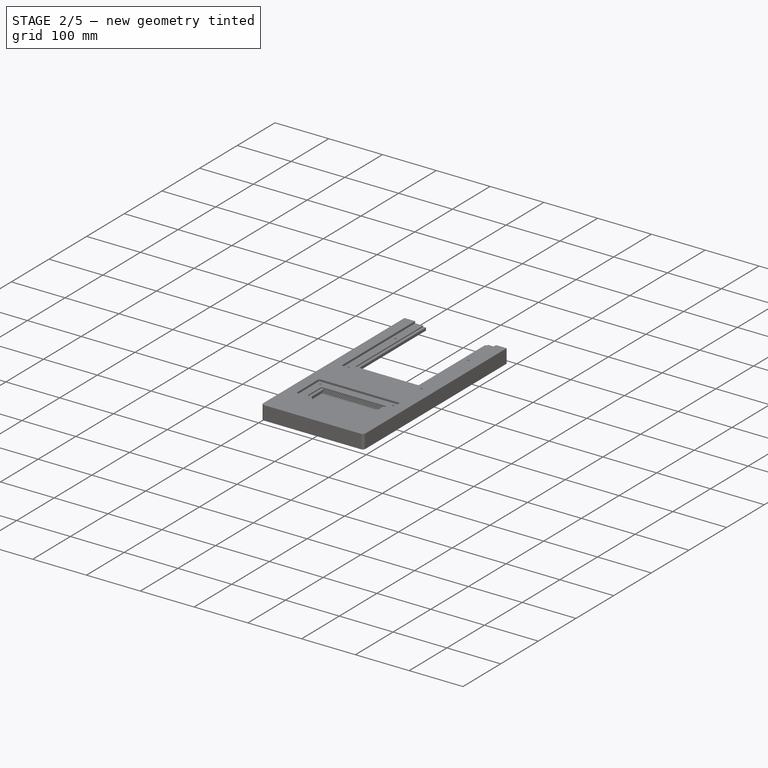
[diagram: stage 2 of 5 — iso view after this stage's code; geometry added in this stage tinted green]
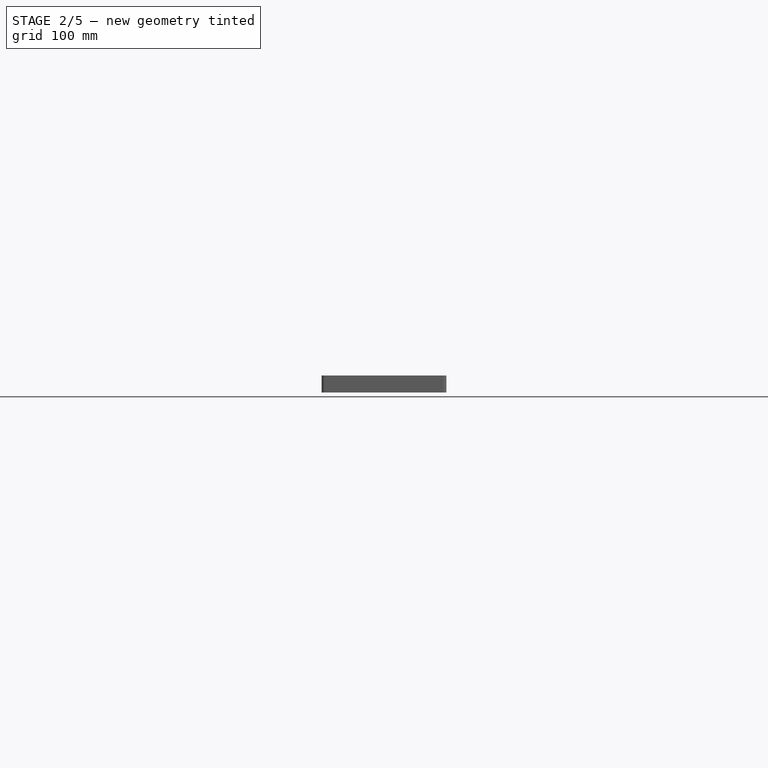
[diagram: stage 2 of 5 — front view after this stage's code; geometry added in this stage tinted green]
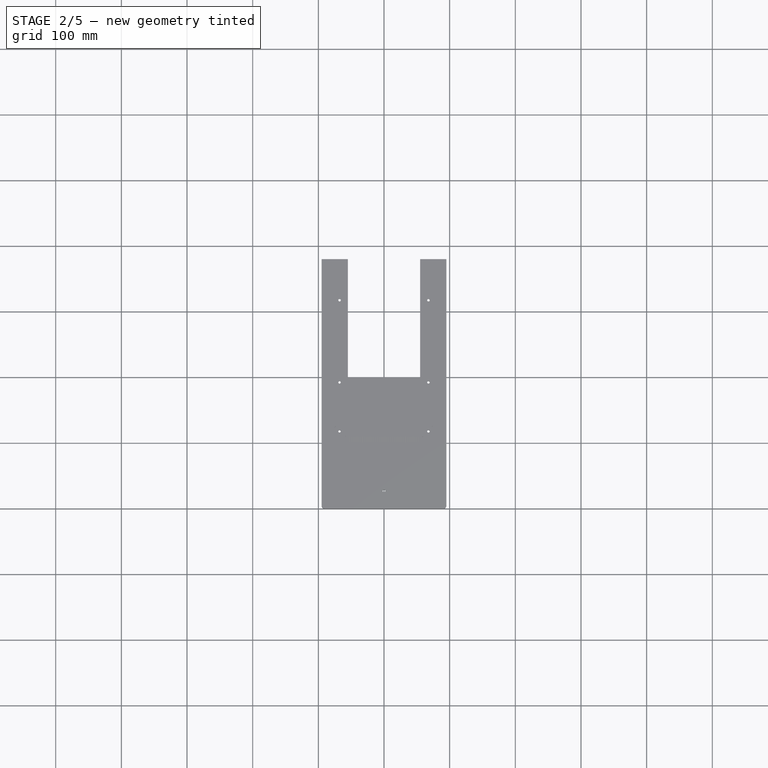
[diagram: stage 2 of 5 — top view after this stage's code; geometry added in this stage tinted green]
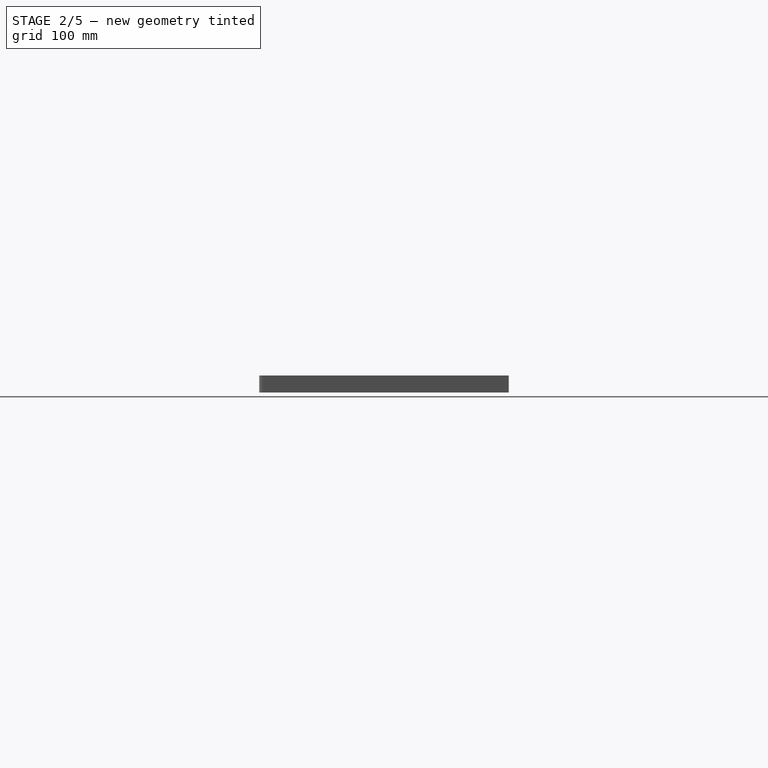
[diagram: stage 2 of 5 — right view after this stage's code; geometry added in this stage tinted green]
FEATURE [Sketcher::SketchObject] Sketch043  label="BaseSketch001"
  FullyConstrained = true
  MapMode = 5
  Support = -> [XY_Plane013]
  expr: Constraints[12] = Spreadsheet.main_body_corner_fillet_radius
  expr: Constraints[13] = Spreadsheet.main_body_width
  expr: Constraints[14] = Spreadsheet.main_body_length * 0.5
  expr: Constraints[31] = Spreadsheet.flow_section_length * 0.5
  expr: Constraints[32] = Spreadsheet.flow_section_width
  sketch-geometry (14):
    g0: LineSegment StartX=-95 StartY=380 StartZ=0 EndX=95 EndY=380 EndZ=0
    g1: LineSegment StartX=95 StartY=380 StartZ=0 EndX=95 EndY=5 EndZ=0
    g2: ArcOfCircle CenterX=90 CenterY=5 CenterZ=0 NormalX=0 NormalY=0 NormalZ=1 AngleXU=0 Radius=5 StartAngle=4.71239 EndAngle=6.28319
    g3: LineSegment StartX=90 StartY=1.07381e-11 StartZ=0 EndX=-90 EndY=1.07381e-11 EndZ=0
    g4: ArcOfCircle CenterX=-90 CenterY=5 CenterZ=0 NormalX=0 NormalY=0 NormalZ=1 AngleXU=0 Radius=5 StartAngle=3.14159 EndAngle=4.71239
    g5: LineSegment StartX=-95 StartY=5 StartZ=0 EndX=-95 EndY=380 EndZ=0
    g6: GeomPoint X=-95 Y=380 Z=0
    g7: GeomPoint X=95 Y=0 Z=0
    g8: LineSegment StartX=-55 StartY=380 StartZ=0 EndX=55 EndY=380 EndZ=0
    g9: LineSegment StartX=55 StartY=380 StartZ=0 EndX=55 EndY=200 EndZ=0
    g10: LineSegment StartX=55 StartY=200 StartZ=0 EndX=-55 EndY=200 EndZ=0
    g11: LineSegment StartX=-55 StartY=200 StartZ=0 EndX=-55 EndY=380 EndZ=0
    g12: LineSegment StartX=-95 StartY=380 StartZ=0 EndX=-55 EndY=380 EndZ=0
    g13: LineSegment StartX=55 StartY=380 StartZ=0 EndX=95 EndY=380 EndZ=0
  constraints (33):
    c: Tangent(g1,g2) = 1.5708
    c: Tangent(g2,g3) = 1.5708
    c: Tangent(g3,g4) = 1.5708
    c: Tangent(g4,g5) = 1.5708
    c: Horizontal(g0)
    c: Horizontal(g3)
    c: Vertical(g1)
    c: Vertical(g5)
    c: Equal(g2,g4)
    c: PointOnObject(g7,g1)
    c: PointOnObject(g7,g3)
    c: Symmetric(g3,g2,g-1)
    c: Radius(g2) = 5
    c: DistanceX(g4,g1) = 190
    c: DistanceY(g2,g0) = 380
    c: Coincident(g0,g6)
    c: Coincident(g0,g5)
    c: Coincident(g1,g0)
    c: Coincident(g8,g9)
    c: Coincident(g9,g10)
    c: Coincident(g10,g11)
    c: Coincident(g11,g8)
    c: Horizontal(g10)
    c: Vertical(g9)
    c: Vertical(g11)
    c: Symmetric(g8,g8,g-2)
    c: Horizontal(g12)
    c: Coincident(g12,g5)
    c: Coincident(g12,g11)
    c: Coincident(g13,g9)
    c: Coincident(g13,g1)
    c: DistanceY(g9,g9) = 180
    c: DistanceX(g10,g10) = 110
FEATURE [PartDesign::Pad] Pad014  label="BasePad001"
  Direction = (0,0,1)
  Length = 15.9938
  Length2 = 10
  Midplane = true
  Profile = -> Sketch043
  ReferenceAxis = -> Sketch043 [N_Axis]
  Type = 0
  expr: Length = Spreadsheet.main_body_height
FEATURE [Sketcher::SketchObject] Sketch044  label="EntrancySketch001"
  FullyConstrained = true
  MapMode = 5
  Placement = pos=(0,0,7.99688) rot=(0,0,1;0rad)
  Support = -> [DatumPlane008]
  expr: Constraints[10] = Spreadsheet.flow_section_width
  expr: Constraints[18] = Spreadsheet.entrance_angled_length
  expr: Constraints[19] = Spreadsheet.entrance_straight_length
  expr: Constraints[25] = Spreadsheet.entrance_fillet_radius
  expr: Constraints[9] = Spreadsheet.entrance_offset_from_front
  sketch-geometry (15):
    g0: LineSegment StartX=0 StartY=0 StartZ=0 EndX=0 EndY=40 EndZ=0
    g1: LineSegment StartX=-55 StartY=110 StartZ=0 EndX=55 EndY=110 EndZ=0
    g2: LineSegment StartX=55 StartY=40 StartZ=0 EndX=-55 EndY=40 EndZ=0
    g3: LineSegment StartX=-55 StartY=40 StartZ=0 EndX=-55 EndY=74 EndZ=0
    g4: LineSegment StartX=-55 StartY=79.5747 StartZ=0 EndX=-55 EndY=110 EndZ=0
    g5: LineSegment StartX=55 StartY=110 StartZ=0 EndX=55 EndY=79.5747 EndZ=0
    g6: LineSegment StartX=55 StartY=74 StartZ=0 EndX=55 EndY=40 EndZ=0
    g7: LineSegment StartX=-50.2582 StartY=71.0687 StartZ=0 EndX=-5.25822 EndY=43.2505 EndZ=0
    g8: LineSegment StartX=5.25822 StartY=43.2505 StartZ=0 EndX=50.2582 EndY=71.0687 EndZ=0
    g9: ArcOfCircle CenterX=-45 CenterY=79.5747 CenterZ=0 NormalX=0 NormalY=0 NormalZ=1 AngleXU=0 Radius=10 StartAngle=3.14159 EndAngle=4.15871
    g10: GeomPoint X=-55 Y=74 Z=0
    g11: ArcOfCircle CenterX=45 CenterY=79.5747 CenterZ=0 NormalX=0 NormalY=0 NormalZ=1 AngleXU=0 Radius=10 StartAngle=5.26607 EndAngle=6.28319
    g12: GeomPoint X=55 Y=74 Z=0
    g13: ArcOfCircle CenterX=7.2e-15 CenterY=51.7565 CenterZ=0 NormalX=0 NormalY=0 NormalZ=1 AngleXU=0 Radius=10 StartAngle=4.15871 EndAngle=5.26607
    g14: GeomPoint X=0 Y=40 Z=0
  constraints (36):
    c: Vertical(g0)
    c: Coincident(g-1,g0)
    c: Coincident(g1,g5)
    c: Coincident(g6,g2)
    c: Coincident(g2,g3)
    c: Coincident(g4,g1)
    c: Horizontal(g1)
    c: Horizontal(g2)
    c: Symmetric(g2,g6,g0)
    c: DistanceY(g0,g0) = 40
    c: DistanceX(g1,g1) = 110
    c: Coincident(g3,g10)
    c: Vertical(g3)
    c: Vertical(g4)
    c: Coincident(g12,g6)
    c: Vertical(g5)
    c: Vertical(g6)
    c: Equal(g3,g6)
    c: DistanceY(g6,g6) = 34
    c: DistanceY(g12,g5) = 36
    c: Coincident(g14,g0)
    c: PointOnObject(g10,g4)
    c: PointOnObject(g10,g7)
    c: Tangent(g4,g9) = 1.5708
    c: Tangent(g7,g9) = -1.5708
    c: Radius(g9) = 10
    c: PointOnObject(g12,g8)
    c: PointOnObject(g12,g5)
    c: Tangent(g8,g11) = -1.5708
    c: Tangent(g5,g11) = 1.5708
    c: Equal(g11,g9)
    c: PointOnObject(g14,g7)
    c: PointOnObject(g14,g8)
    c: Tangent(g7,g13) = -1.5708
    c: Tangent(g8,g13) = -1.5708
    c: Equal(g13,g9)
FEATURE [PartDesign::Pocket] Pocket024  label="EntrancePocket001"
  BaseFeature = -> Pad014
  Direction = (0,0,-1)
  Length = 10.4969
  Length2 = 5
  Profile = -> Sketch044
  ReferenceAxis = -> Sketch044 [N_Axis]
  Type = 0
  expr: Length = Spreadsheet.entrance_pocket_depth
FEATURE [Sketcher::SketchObject] Sketch045  label="CombGapSketch001"
  FullyConstrained = true
  MapMode = 5
  Placement = pos=(0,200,4.44e-14) rot=(0,0.707107,0.707107;3.14159rad)
  Support = -> [DatumPlane009]
  expr: Constraints[12] = Spreadsheet.flow_section_height
  expr: Constraints[13] = Spreadsheet.comb_gap_width
  expr: Constraints[2] = Spreadsheet.flow_section_width
  sketch-geometry (5):
    g0: LineSegment StartX=-55 StartY=0 StartZ=0 EndX=55 EndY=0 EndZ=0
    g1: LineSegment StartX=53.1538 StartY=-2.5 StartZ=0 EndX=55 EndY=-2.5 EndZ=0
    g2: LineSegment StartX=55 StartY=-2.5 StartZ=0 EndX=55 EndY=2.5 EndZ=0
    g3: LineSegment StartX=55 StartY=2.5 StartZ=0 EndX=53.1538 EndY=2.5 EndZ=0
    g4: LineSegment StartX=53.1538 StartY=2.5 StartZ=0 EndX=53.1538 EndY=-2.5 EndZ=0
  constraints (14):
    c: Horizontal(g0)
    c: Symmetric(g0,g0,g-1)
    c: DistanceX(g0,g0) = 110
    c: Coincident(g1,g2)
    c: Coincident(g2,g3)
    c: Coincident(g3,g4)
    c: Coincident(g4,g1)
    c: Horizontal(g1)
    c: Horizontal(g3)
    c: Vertical(g2)
    c: Vertical(g4)
    c: Symmetric(g1,g2,g0)
    c: DistanceY(g4,g4) = 5
    c: DistanceX(g3,g3) = 1.84615
FEATURE [PartDesign::Pocket] Pocket025  label="CombGapPocket001"
  BaseFeature = -> Pocket024
  Direction = (0,-1,-2e-16)
  Length = 90
  Length2 = 5
  Profile = -> Sketch045
  ReferenceAxis = -> Sketch045 [N_Axis]
  Type = 0
  expr: Length = Spreadsheet.comb_section_length
FEATURE [PartDesign::LinearPattern] LinearPattern002  label="CombLinearPattern001"
  BaseFeature = -> Pocket025
  Direction = -> Sketch045 [H_Axis]
  Length = 108.154
  Occurrences = 39
  Originals = -> [Pocket025]
  Reversed = true
  expr: Length = Spreadsheet.comb_pattern_length
  expr: Occurrences = Spreadsheet.comb_number_of_gaps
FEATURE [Sketcher::SketchObject] Sketch046  label="TopEntranceInnerLidSketch001"
  FullyConstrained = true
  MapMode = 5
  Placement = pos=(0,0,7.99688) rot=(0,0,1;0rad)
  Support = -> [DatumPlane008]
  expr: Constraints[16] = Spreadsheet.top_entrance_inner_lid_pocket_angled_length
  expr: Constraints[17] = Spreadsheet.top_inner_lid_pocket_width
  expr: Constraints[2] = Spreadsheet.top_entrance_inner_lid_offset_from_front
  expr: Constraints[33] = Spreadsheet.entrance_fillet_radius
  expr: Constraints[43] = Spreadsheet.top_inner_lid_fillet_radius
  expr: Constraints[8] = Spreadsheet.top_entrance_inner_lid_pocket_length
  sketch-geometry (19):
    g0: LineSegment StartX=0 StartY=34.8 StartZ=0 EndX=0 EndY=0 EndZ=0
    g1: LineSegment StartX=-58.2 StartY=110 StartZ=0 EndX=58.2 EndY=110 EndZ=0
    g2: LineSegment StartX=60.2 StartY=34.8 StartZ=0 EndX=-60.2 EndY=34.8 EndZ=0
    g3: LineSegment StartX=-60.2 StartY=34.8 StartZ=0 EndX=-60.2 EndY=72.0145 EndZ=0
    g4: LineSegment StartX=-60.2 StartY=77.5892 StartZ=0 EndX=-60.2 EndY=108 EndZ=0
    g5: LineSegment StartX=60.2 StartY=108 StartZ=0 EndX=60.2 EndY=77.5892 EndZ=0
    g6: LineSegment StartX=60.2 StartY=72.0145 StartZ=0 EndX=60.2 EndY=34.8 EndZ=0
    g7: LineSegment StartX=-55.4582 StartY=69.0833 StartZ=0 EndX=-5.25822 EndY=38.0505 EndZ=0
    g8: LineSegment StartX=5.25822 StartY=38.0505 StartZ=0 EndX=55.4582 EndY=69.0833 EndZ=0
    g9: ArcOfCircle CenterX=-50.2 CenterY=77.5892 CenterZ=0 NormalX=0 NormalY=0 NormalZ=1 AngleXU=0 Radius=10 StartAngle=3.14159 EndAngle=4.15871
    g10: GeomPoint X=-60.2 Y=72.0145 Z=0
    g11: ArcOfCircle CenterX=50.2 CenterY=77.5892 CenterZ=0 NormalX=0 NormalY=0 NormalZ=1 AngleXU=0 Radius=10 StartAngle=5.26607 EndAngle=6.28319
    g12: GeomPoint X=60.2 Y=72.0145 Z=0
    g13: ArcOfCircle CenterX=5.2e-15 CenterY=46.5565 CenterZ=0 NormalX=0 NormalY=0 NormalZ=1 AngleXU=0 Radius=10 StartAngle=4.15871 EndAngle=5.26607
    g14: GeomPoint X=0 Y=34.8 Z=0
    g15: ArcOfCircle CenterX=-58.2 CenterY=108 CenterZ=0 NormalX=0 NormalY=0 NormalZ=1 AngleXU=0 Radius=2 StartAngle=1.5708 EndAngle=3.14159
    g16: GeomPoint X=-60.2 Y=110 Z=0
    g17: ArcOfCircle CenterX=58.2 CenterY=108 CenterZ=0 NormalX=0 NormalY=0 NormalZ=1 AngleXU=0 Radius=2 StartAngle=-9e-16 EndAngle=1.5708
    g18: GeomPoint X=60.2 Y=110 Z=0
  constraints (44):
    c: Vertical(g0)
    c: Coincident(g-1,g0)
    c: DistanceY(g0,g0) = 34.8
    c: Coincident(g6,g2)
    c: Coincident(g2,g3)
    c: Horizontal(g1)
    c: Horizontal(g2)
    c: Symmetric(g2,g6,g0)
    c: DistanceY(g3,g16) = 75.2
    c: Coincident(g3,g10)
    c: Vertical(g3)
    c: Vertical(g4)
    c: Coincident(g12,g6)
    c: Vertical(g5)
    c: Vertical(g6)
    c: Equal(g3,g6)
    c: DistanceY(g6,g6) = 37.2145
    c: DistanceX(g2,g2) = 120.4
    c: Coincident(g14,g0)
    c: PointOnObject(g10,g4)
    c: PointOnObject(g10,g7)
    c: Tangent(g4,g9) = 1.5708
    c: Tangent(g7,g9) = -1.5708
    c: PointOnObject(g12,g8)
    c: PointOnObject(g12,g5)
    c: Tangent(g8,g11) = -1.5708
    c: Tangent(g5,g11) = 1.5708
    c: Equal(g9,g11)
    c: PointOnObject(g14,g7)
    c: PointOnObject(g14,g8)
    c: Tangent(g7,g13) = -1.5708
    c: Tangent(g8,g13) = -1.5708
    c: Equal(g9,g13)
    c: Radius(g11) = 10
    c: PointOnObject(g16,g4)
    c: PointOnObject(g16,g1)
    c: Tangent(g4,g15) = 1.5708
    c: Tangent(g1,g15) = 1.5708
    c: PointOnObject(g18,g1)
    c: PointOnObject(g18,g5)
    c: Tangent(g1,g17) = 1.5708
    c: Tangent(g5,g17) = 1.5708
    c: Equal(g15,g17)
    c: Radius(g17) = 2
FEATURE [PartDesign::Pocket] Pocket026  label="TopEntranceInnerLidPocket001"
  BaseFeature = -> LinearPattern002
  Direction = (0,0,-1)
  Length = 5.49688
  Length2 = 5
  Profile = -> Sketch046
  ReferenceAxis = -> Sketch046 [N_Axis]
  Type = 0
  expr: Length = Spreadsheet.top_inner_lid_pocket_depth
FEATURE [Sketcher::SketchObject] Sketch047  label="TopFlowSectionInnerLidSketch001"
  FullyConstrained = true
  MapMode = 5
  Placement = pos=(0,0,7.99688) rot=(0,0,1;0rad)
  Support = -> [DatumPlane008]
  expr: Constraints[10] = Spreadsheet.top_inner_lid_pocket_width
  expr: Constraints[11] = Spreadsheet.top_flow_section_inner_lid_pocket_length
  expr: Constraints[2] = Spreadsheet.top_flow_section_inner_lid_offset_from_front
  sketch-geometry (7):
    g0: LineSegment StartX=0 StartY=200 StartZ=0 EndX=0 EndY=0 EndZ=0
    g1: LineSegment StartX=-60.2 StartY=390.4 StartZ=0 EndX=60.2 EndY=390.4 EndZ=0
    g2: LineSegment StartX=60.2 StartY=390.4 StartZ=0 EndX=60.2 EndY=200 EndZ=0
    g3: LineSegment StartX=60.2 StartY=200 StartZ=0 EndX=-60.2 EndY=200 EndZ=0
    g4: LineSegment StartX=-60.2 StartY=200 StartZ=0 EndX=-60.2 EndY=390.4 EndZ=0
    g5: GeomPoint X=-60.2 Y=200 Z=0
    g6: GeomPoint X=60.2 Y=200 Z=0
  constraints (16):
    c: Vertical(g0)
    c: Coincident(g0,g-1)
    c: DistanceY(g0,g0) = 200
    c: Coincident(g1,g2)
    c: Coincident(g4,g1)
    c: Horizontal(g1)
    c: Horizontal(g3)
    c: Vertical(g2)
    c: Vertical(g4)
    c: Symmetric(g5,g6,g0)
    c: DistanceX(g5,g6) = 120.4
    c: DistanceY(g6,g2) = 190.4
    c: Coincident(g4,g3)
    c: Coincident(g4,g5)
    c: Coincident(g6,g3)
    c: Coincident(g6,g2)
FEATURE [PartDesign::Pocket] Pocket027  label="TopFlowSectionInnerLidPocket001"
  BaseFeature = -> Pocket026
  Direction = (0,0,-1)
  Length = 5.49688
  Length2 = 5
  Profile = -> Sketch047
  ReferenceAxis = -> Sketch047 [N_Axis]
  Type = 0
  expr: Length = Spreadsheet.top_inner_lid_pocket_depth
FEATURE [Sketcher::SketchObject] Sketch048  label="TopEntranceOuterLidSketch001"
  FullyConstrained = true
  MapMode = 5
  Placement = pos=(0,0,7.99688) rot=(0,0,1;0rad)
  Support = -> [DatumPlane008]
  expr: Constraints[17] = Spreadsheet.top_entrance_outer_lid_pocket_angled_length
  expr: Constraints[2] = Spreadsheet.top_entrance_outer_lid_offset_from_front
  expr: Constraints[43] = Spreadsheet.top_outer_lid_fillet_radius
  expr: Constraints[8] = Spreadsheet.top_outer_lid_pocket_width
  expr: Constraints[9] = Spreadsheet.top_entrance_outer_lid_pocket_length
  sketch-geometry (19):
    g0: LineSegment StartX=0 StartY=19.6 StartZ=0 EndX=0 EndY=0 EndZ=0
    g1: LineSegment StartX=-73.2 StartY=125.2 StartZ=0 EndX=73.2 EndY=125.2 EndZ=0
    g2: LineSegment StartX=75.2 StartY=19.6 StartZ=0 EndX=-75.2 EndY=19.6 EndZ=0
    g3: LineSegment StartX=-75.2 StartY=19.6 StartZ=0 EndX=-75.2 EndY=66.0873 EndZ=0
    g4: LineSegment StartX=-75.2 StartY=67.2022 StartZ=0 EndX=-75.2 EndY=123.2 EndZ=0
    g5: LineSegment StartX=75.2 StartY=123.2 StartZ=0 EndX=75.2 EndY=67.2022 EndZ=0
    g6: LineSegment StartX=75.2 StartY=66.0873 StartZ=0 EndX=75.2 EndY=19.6 EndZ=0
    g7: LineSegment StartX=-74.2516 StartY=65.501 StartZ=0 EndX=-1.05164 EndY=20.2501 EndZ=0
    g8: LineSegment StartX=1.05164 StartY=20.2501 StartZ=0 EndX=74.2516 EndY=65.501 EndZ=0
    g9: ArcOfCircle CenterX=-73.2 CenterY=123.2 CenterZ=0 NormalX=0 NormalY=0 NormalZ=1 AngleXU=0 Radius=2 StartAngle=1.5708 EndAngle=3.14159
    g10: GeomPoint X=-75.2 Y=125.2 Z=0
    g11: ArcOfCircle CenterX=73.2 CenterY=123.2 CenterZ=0 NormalX=0 NormalY=0 NormalZ=1 AngleXU=0 Radius=2 StartAngle=1.8e-15 EndAngle=1.5708
    g12: GeomPoint X=75.2 Y=125.2 Z=0
    g13: ArcOfCircle CenterX=-73.2 CenterY=67.2022 CenterZ=0 NormalX=0 NormalY=0 NormalZ=1 AngleXU=0 Radius=2 StartAngle=3.14159 EndAngle=4.15871
    g14: GeomPoint X=-75.2 Y=66.0873 Z=0
    g15: ArcOfCircle CenterX=-8e-16 CenterY=21.9513 CenterZ=0 NormalX=0 NormalY=0 NormalZ=1 AngleXU=0 Radius=2 StartAngle=4.15871 EndAngle=5.26607
    g16: GeomPoint X=0 Y=19.6 Z=0
    g17: ArcOfCircle CenterX=73.2 CenterY=67.2022 CenterZ=0 NormalX=0 NormalY=0 NormalZ=1 AngleXU=0 Radius=2 StartAngle=5.26607 EndAngle=6.28319
    g18: GeomPoint X=75.2 Y=66.0873 Z=0
  constraints (44):
    c: Vertical(g0)
    c: Coincident(g0,g-1)
    c: DistanceY(g0,g0) = 19.6
    c: Coincident(g6,g2)
    c: Coincident(g2,g3)
    c: Horizontal(g1)
    c: Horizontal(g2)
    c: Symmetric(g2,g6,g0)
    c: DistanceX(g2,g2) = 150.4
    c: DistanceY(g3,g10) = 105.6
    c: Coincident(g3,g14)
    c: Vertical(g3)
    c: Vertical(g4)
    c: Coincident(g18,g6)
    c: Vertical(g5)
    c: Vertical(g6)
    c: Equal(g3,g6)
    c: DistanceY(g6,g6) = 46.4873
    c: Coincident(g16,g0)
    c: PointOnObject(g10,g4)
    c: PointOnObject(g10,g1)
    c: Tangent(g4,g9) = 1.5708
    c: Tangent(g1,g9) = 1.5708
    c: PointOnObject(g12,g1)
    c: PointOnObject(g12,g5)
    c: Tangent(g1,g11) = 1.5708
    c: Tangent(g5,g11) = 1.5708
    c: PointOnObject(g14,g4)
    c: PointOnObject(g14,g7)
    c: Tangent(g4,g13) = 1.5708
    c: Tangent(g7,g13) = -1.5708
    c: PointOnObject(g16,g7)
    c: PointOnObject(g16,g8)
    c: Tangent(g7,g15) = -1.5708
    c: Tangent(g8,g15) = -1.5708
    c: PointOnObject(g18,g8)
    c: PointOnObject(g18,g5)
    c: Tangent(g8,g17) = -1.5708
    c: Tangent(g5,g17) = 1.5708
    c: Equal(g9,g13)
    c: Equal(g13,g15)
    c: Equal(g15,g17)
    c: Equal(g17,g11)
    c: Radius(g11) = 2
FEATURE [PartDesign::Pocket] Pocket028  label="TopEntranceOuterLidPocket001"
  BaseFeature = -> Pocket027
  Direction = (0,0,-1)
  Length = 3.59688
  Length2 = 5
  Profile = -> Sketch048
  ReferenceAxis = -> Sketch048 [N_Axis]
  Type = 0
  expr: Length = Spreadsheet.top_outer_lid_pocket_depth
FEATURE [Sketcher::SketchObject] Sketch049  label="TopEntranceLidCheckSketch001"
  FullyConstrained = true
  MapMode = 5
  Placement = pos=(0,0,7.99688) rot=(0,0,1;0rad)
  Support = -> [DatumPlane008]
  expr: Constraints[18] = Spreadsheet.flow_section_width
  expr: Constraints[19] = Spreadsheet.entrance_overall_length
  expr: Constraints[1] = Spreadsheet.entrance_offset_from_front
  expr: Constraints[29] = Spreadsheet.top_inner_lid_pocket_width
  expr: Constraints[30] = Spreadsheet.top_entrance_inner_lid_pocket_length
  expr: Constraints[40] = Spreadsheet.top_outer_lid_pocket_width
  expr: Constraints[41] = Spreadsheet.top_entrance_outer_lid_pocket_length
  expr: Constraints[7] = Spreadsheet.top_entrance_inner_lid_offset_from_front
  expr: Constraints[8] = Spreadsheet.top_entrance_outer_lid_offset_from_front
  sketch-geometry (15):
    g0: LineSegment StartX=0 StartY=34.8 StartZ=0 EndX=0 EndY=40 EndZ=0
    g1: LineSegment StartX=0 StartY=0 StartZ=0 EndX=0 EndY=19.6 EndZ=0
    g2: LineSegment StartX=0 StartY=19.6 StartZ=0 EndX=0 EndY=34.8 EndZ=0
    g3: LineSegment StartX=-55 StartY=110 StartZ=0 EndX=55 EndY=110 EndZ=0
    g4: LineSegment StartX=55 StartY=110 StartZ=0 EndX=55 EndY=40 EndZ=0
    g5: LineSegment StartX=55 StartY=40 StartZ=0 EndX=-55 EndY=40 EndZ=0
    g6: LineSegment StartX=-55 StartY=40 StartZ=0 EndX=-55 EndY=110 EndZ=0
    g7: LineSegment StartX=-60.2 StartY=110 StartZ=0 EndX=60.2 EndY=110 EndZ=0
    g8: LineSegment StartX=60.2 StartY=110 StartZ=0 EndX=60.2 EndY=34.8 EndZ=0
    g9: LineSegment StartX=60.2 StartY=34.8 StartZ=0 EndX=-60.2 EndY=34.8 EndZ=0
    g10: LineSegment StartX=-60.2 StartY=34.8 StartZ=0 EndX=-60.2 EndY=110 EndZ=0
    g11: LineSegment StartX=-75.2 StartY=125.2 StartZ=0 EndX=75.2 EndY=125.2 EndZ=0
    g12: LineSegment StartX=75.2 StartY=125.2 StartZ=0 EndX=75.2 EndY=19.6 EndZ=0
    g13: LineSegment StartX=75.2 StartY=19.6 StartZ=0 EndX=-75.2 EndY=19.6 EndZ=0
    g14: LineSegment StartX=-75.2 StartY=19.6 StartZ=0 EndX=-75.2 EndY=125.2 EndZ=0
  constraints (42):
    c: Coincident(g-1,g1)
    c: DistanceY(g1,g0) = 40
    c: Coincident(g2,g0)
    c: Vertical(g0)
    c: Coincident(g1,g2)
    c: Vertical(g1)
    c: Vertical(g2)
    c: DistanceY(g0) = 34.8
    c: DistanceY(g1,g1) = 19.6
    c: Coincident(g3,g4)
    c: Coincident(g4,g5)
    c: Coincident(g5,g6)
    c: Coincident(g6,g3)
    c: Horizontal(g3)
    c: Horizontal(g5)
    c: Vertical(g4)
    c: Vertical(g6)
    c: Symmetric(g5,g4,g0)
    c: DistanceX(g3,g3) = 110
    c: DistanceY(g4,g4) = 70
    c: Coincident(g7,g8)
    c: Coincident(g8,g9)
    c: Coincident(g9,g10)
    c: Coincident(g10,g7)
    c: Horizontal(g7)
    c: Horizontal(g9)
    c: Vertical(g8)
    c: Vertical(g10)
    c: Symmetric(g9,g8,g0)
    c: DistanceX(g7,g7) = 120.4
    c: DistanceY(g8,g8) = 75.2
    c: Coincident(g11,g12)
    c: Coincident(g12,g13)
    c: Coincident(g13,g14)
    c: Coincident(g14,g11)
    c: Horizontal(g11)
    c: Horizontal(g13)
    c: Vertical(g12)
    c: Vertical(g14)
    c: Symmetric(g13,g12,g1)
    c: DistanceX(g11,g11) = 150.4
    c: DistanceY(g12,g12) = 105.6
FEATURE [Sketcher::SketchObject] Sketch050  label="TopFlowSectionOuterLidSketch001"
  FullyConstrained = true
  MapMode = 5
  Placement = pos=(0,0,7.99688) rot=(0,0,1;0rad)
  Support = -> [DatumPlane008]
  expr: Constraints[10] = Spreadsheet.top_outer_lid_pocket_width
  expr: Constraints[11] = Spreadsheet.top_flow_section_outer_lid_pocket_length
  expr: Constraints[21] = Spreadsheet.top_outer_lid_fillet_radius
  expr: Constraints[2] = Spreadsheet.top_flow_section_outer_lid_offset_from_front
  sketch-geometry (9):
    g0: LineSegment StartX=0 StartY=184.8 StartZ=0 EndX=0 EndY=0 EndZ=0
    g1: LineSegment StartX=-75.2 StartY=380 StartZ=0 EndX=75.2 EndY=380 EndZ=0
    g2: LineSegment StartX=75.2 StartY=380 StartZ=0 EndX=75.2 EndY=186.8 EndZ=0
    g3: LineSegment StartX=73.2 StartY=184.8 StartZ=0 EndX=-73.2 EndY=184.8 EndZ=0
    g4: LineSegment StartX=-75.2 StartY=186.8 StartZ=0 EndX=-75.2 EndY=380 EndZ=0
    g5: ArcOfCircle CenterX=-73.2 CenterY=186.8 CenterZ=0 NormalX=0 NormalY=0 NormalZ=1 AngleXU=0 Radius=2 StartAngle=3.14159 EndAngle=4.71239
    g6: GeomPoint X=-75.2 Y=184.8 Z=0
    g7: ArcOfCircle CenterX=73.2 CenterY=186.8 CenterZ=0 NormalX=0 NormalY=0 NormalZ=1 AngleXU=0 Radius=2 StartAngle=4.71239 EndAngle=6.28319
    g8: GeomPoint X=75.2 Y=184.8 Z=0
  constraints (22):
    c: Vertical(g0)
    c: Coincident(g-1,g0)
    c: DistanceY(g0,g0) = 184.8
    c: Coincident(g1,g2)
    c: Coincident(g4,g1)
    c: Horizontal(g1)
    c: Horizontal(g3)
    c: Vertical(g2)
    c: Vertical(g4)
    c: Symmetric(g6,g8,g0)
    c: DistanceX(g1,g1) = 150.4
    c: DistanceY(g8,g2) = 195.2
    c: PointOnObject(g6,g4)
    c: PointOnObject(g6,g3)
    c: Tangent(g4,g5) = 1.5708
    c: Tangent(g3,g5) = 1.5708
    c: PointOnObject(g8,g3)
    c: PointOnObject(g8,g2)
    c: Tangent(g3,g7) = 1.5708
    c: Tangent(g2,g7) = 1.5708
    c: Equal(g5,g7)
    c: Radius(g5) = 2
FEATURE [PartDesign::Pocket] Pocket029  label="TopFlowSectionOuterLidPocket001"
  BaseFeature = -> Pocket028
  Direction = (0,0,-1)
  Length = 3.59688
  Length2 = 5
  Profile = -> Sketch050
  ReferenceAxis = -> Sketch050 [N_Axis]
  Type = 0
  expr: Length = Spreadsheet.top_outer_lid_pocket_depth
FEATURE [Sketcher::SketchObject] Sketch051  label="BottomInnerLidSketch001"
  FullyConstrained = true
  MapMode = 5
  Placement = pos=(0,0,-7.99688) rot=(0,1,0;3.14159rad)
  Support = -> [DatumPlane010]
  expr: Constraints[10] = Spreadsheet.bottom_inner_lid_pocket_width
  expr: Constraints[11] = Spreadsheet.bottom_inner_lid_pocket_length
  expr: Constraints[2] = Spreadsheet.bottom_inner_lid_offset_from_front
  sketch-geometry (7):
    g0: LineSegment StartX=0 StartY=200 StartZ=0 EndX=0 EndY=0 EndZ=0
    g1: LineSegment StartX=-60.2 StartY=390.4 StartZ=0 EndX=60.2 EndY=390.4 EndZ=0
    g2: LineSegment StartX=60.2 StartY=390.4 StartZ=0 EndX=60.2 EndY=200 EndZ=0
    g3: LineSegment StartX=60.2 StartY=200 StartZ=0 EndX=-60.2 EndY=200 EndZ=0
    g4: LineSegment StartX=-60.2 StartY=200 StartZ=0 EndX=-60.2 EndY=390.4 EndZ=0
    g5: GeomPoint X=-60.2 Y=200 Z=0
    g6: GeomPoint X=60.2 Y=200 Z=0
  constraints (16):
    c: Vertical(g0)
    c: Coincident(g0,g-1)
    c: DistanceY(g0,g0) = 200
    c: Coincident(g1,g2)
    c: Coincident(g4,g1)
    c: Horizontal(g1)
    c: Horizontal(g3)
    c: Vertical(g2)
    c: Vertical(g4)
    c: Symmetric(g5,g6,g0)
    c: DistanceX(g1,g1) = 120.4
    c: DistanceY(g6,g2) = 190.4
    c: Coincident(g4,g5)
    c: Coincident(g4,g3)
    c: Coincident(g2,g3)
    c: Coincident(g2,g6)
FEATURE [PartDesign::Pocket] Pocket030  label="BottomInnerLidPocket001"
  BaseFeature = -> Pocket029
  Direction = (0,0,1)
  Length = 5.49688
  Length2 = 5
  Profile = -> Sketch051
  ReferenceAxis = -> Sketch051 [N_Axis]
  Type = 0
  expr: Length = Spreadsheet.bottom_inner_lid_pocket_depth
FEATURE [Sketcher::SketchObject] Sketch052  label="BottomOuterLidSketch002"
  FullyConstrained = true
  MapMode = 5
  Placement = pos=(0,0,-7.99688) rot=(0,1,0;3.14159rad)
  Support = -> [DatumPlane010]
  expr: Constraints[10] = Spreadsheet.bottom_outer_lid_pocket_width
  expr: Constraints[11] = Spreadsheet.bottom_outer_lid_pocket_length
  expr: Constraints[21] = Spreadsheet.bottom_outer_lid_fillet_radius
  expr: Constraints[2] = Spreadsheet.bottom_outer_lid_offset_from_front
  sketch-geometry (9):
    g0: LineSegment StartX=0 StartY=144.8 StartZ=0 EndX=0 EndY=0 EndZ=0
    g1: LineSegment StartX=-75.2 StartY=380 StartZ=0 EndX=75.2 EndY=380 EndZ=0
    g2: LineSegment StartX=75.2 StartY=380 StartZ=0 EndX=75.2 EndY=146.8 EndZ=0
    g3: LineSegment StartX=73.2 StartY=144.8 StartZ=0 EndX=-73.2 EndY=144.8 EndZ=0
    g4: LineSegment StartX=-75.2 StartY=146.8 StartZ=0 EndX=-75.2 EndY=380 EndZ=0
    g5: ArcOfCircle CenterX=-73.2 CenterY=146.8 CenterZ=0 NormalX=0 NormalY=0 NormalZ=1 AngleXU=0 Radius=2 StartAngle=3.14159 EndAngle=4.71239
    g6: GeomPoint X=-75.2 Y=144.8 Z=0
    g7: ArcOfCircle CenterX=73.2 CenterY=146.8 CenterZ=0 NormalX=0 NormalY=0 NormalZ=1 AngleXU=0 Radius=2 StartAngle=4.71239 EndAngle=6.28319
    g8: GeomPoint X=75.2 Y=144.8 Z=0
  constraints (22):
    c: Vertical(g0)
    c: Coincident(g-1,g0)
    c: DistanceY(g0,g0) = 144.8
    c: Coincident(g1,g2)
    c: Coincident(g4,g1)
    c: Horizontal(g1)
    c: Horizontal(g3)
    c: Vertical(g2)
    c: Vertical(g4)
    c: Symmetric(g8,g6,g0)
    c: DistanceX(g1,g1) = 150.4
    c: DistanceY(g8,g2) = 235.2
    c: PointOnObject(g6,g4)
    c: PointOnObject(g6,g3)
    c: Tangent(g4,g5) = 1.5708
    c: Tangent(g3,g5) = 1.5708
    c: PointOnObject(g8,g3)
    c: PointOnObject(g8,g2)
    c: Tangent(g3,g7) = 1.5708
    c: Tangent(g2,g7) = 1.5708
    c: Equal(g5,g7)
    c: Radius(g5) = 2
FEATURE [PartDesign::Pocket] Pocket031  label="BottomOuterLIdPocket001"
  BaseFeature = -> Pocket030
  Direction = (0,0,1)
  Length = 3.59688
  Length2 = 5
  Profile = -> Sketch052
  ReferenceAxis = -> Sketch052 [N_Axis]
  Type = 0
  expr: Length = Spreadsheet.bottom_outer_lid_pocket_depth
FEATURE [Sketcher::SketchObject] Sketch053  label="TopFlowSectionOuterLidMountHoleSketch001"
  FullyConstrained = true
  MapMode = 5
  Placement = pos=(0,0,4.4) rot=(0,0,1;0rad)
  Support = -> [DatumPlane011]
  expr: Constraints[2] = Spreadsheet.top_flow_section_outer_lid_mount_hole_separation
  expr: Constraints[30] = Spreadsheet.outer_lid_overlap * 0.5
  expr: Constraints[32] = Spreadsheet.top_flow_section_outer_lid_offset_from_front
  expr: Constraints[6] = Spreadsheet.lid_mount_hole_diameter
  expr: Constraints[9] = Spreadsheet.main_body_length * 0.5
  sketch-geometry (13):
    g0: LineSegment StartX=-67.7 StartY=192.3 StartZ=0 EndX=67.7 EndY=192.3 EndZ=0
    g1: Circle CenterX=-67.7 CenterY=192.3 CenterZ=0 NormalX=0 NormalY=0 NormalZ=1 AngleXU=0 Radius=1.8669
    g2: Circle CenterX=67.7 CenterY=192.3 CenterZ=0 NormalX=0 NormalY=0 NormalZ=1 AngleXU=0 Radius=1.8669
    g3: LineSegment StartX=0 StartY=380 StartZ=0 EndX=0 EndY=192.3 EndZ=0
    g4: LineSegment StartX=67.7 StartY=317.433 StartZ=0 EndX=67.7 EndY=192.3 EndZ=0
    g5: LineSegment StartX=-67.7 StartY=317.433 StartZ=0 EndX=-67.7 EndY=192.3 EndZ=0
    g6: LineSegment StartX=-67.7 StartY=380 StartZ=0 EndX=67.7 EndY=380 EndZ=0
    g7: LineSegment StartX=67.7 StartY=442.567 StartZ=0 EndX=67.7 EndY=317.433 EndZ=0
    g8: LineSegment StartX=-67.7 StartY=442.567 StartZ=0 EndX=-67.7 EndY=317.433 EndZ=0
    g9: Circle CenterX=-67.7 CenterY=317.433 CenterZ=0 NormalX=0 NormalY=0 NormalZ=1 AngleXU=0 Radius=1.8669
    g10: Circle CenterX=67.7 CenterY=317.433 CenterZ=0 NormalX=0 NormalY=0 NormalZ=1 AngleXU=0 Radius=1.8669
    g11: LineSegment StartX=0 StartY=0 StartZ=0 EndX=0 EndY=184.8 EndZ=0
    g12: LineSegment StartX=0 StartY=184.8 StartZ=0 EndX=0 EndY=192.3 EndZ=0
  constraints (33):
    c: Coincident(g-1,g11)
    c: Horizontal(g0)
    c: DistanceX(g0,g0) = 135.4
    c: Coincident(g1,g0)
    c: Coincident(g2,g0)
    c: Equal(g1,g2)
    c: Diameter(g2) = 3.7338
    c: Vertical(g3)
    c: Coincident(g12,g3)
    c: DistanceY(g11,g3) = 380
    c: Vertical(g4)
    c: Coincident(g4,g2)
    c: Vertical(g5)
    c: Coincident(g1,g5)
    c: Equal(g5,g4)
    c: Horizontal(g6)
    c: Symmetric(g6,g6,g3)
    c: Equal(g6,g0)
    c: Symmetric(g7,g7,g6)
    c: Coincident(g4,g7)
    c: Equal(g4,g7)
    c: Symmetric(g8,g8,g6)
    c: Coincident(g8,g5)
    c: Coincident(g9,g5)
    c: Coincident(g10,g4)
    c: Equal(g9,g10)
    c: Equal(g9,g1)
    c: Coincident(g11,g12)
    c: Vertical(g11)
    c: Vertical(g12)
    c: DistanceY(g12,g12) = 7.5
    c: Symmetric(g1,g2,g3)
    c: DistanceY(g11,g11) = 184.8
FEATURE [PartDesign::Pocket] Pocket032  label="TopFlowSectionOuterLidMountHolePocket001"
  BaseFeature = -> Pocket031
  Direction = (0,0,-1)
  Length = 5
  Length2 = 5
  Profile = -> Sketch053
  ReferenceAxis = -> Sketch053 [N_Axis]
  Type = 1
FEATURE [Sketcher::SketchObject] Sketch054  label="TopFlowSectionOuterLidHexNutPocketSketch001"
  FullyConstrained = true
  MapMode = 5
  Placement = pos=(0,0,-4.4) rot=(0,1,0;3.14159rad)
  Support = -> [DatumPlane012]
  expr: Constraints[103] = Spreadsheet.outer_lid_overlap * 0.5
  expr: Constraints[104] = Spreadsheet.top_flow_section_outer_lid_offset_from_front
  expr: Constraints[2] = Spreadsheet.top_flow_section_outer_lid_mount_hole_separation
  expr: Constraints[42] = Spreadsheet.lid_mount_hex_nut_pocket_minor_diameter
  expr: Constraints[50] = Spreadsheet.main_body_length * 0.5
  sketch-geometry (37):
    g0: LineSegment StartX=-67.7 StartY=192.3 StartZ=0 EndX=67.7 EndY=192.3 EndZ=0
    g1: LineSegment StartX=-63.5313 StartY=189.893 StartZ=0 EndX=-63.5312 EndY=194.707 EndZ=0
    g2: LineSegment StartX=-63.5312 StartY=194.707 StartZ=0 EndX=-67.7 EndY=197.114 EndZ=0
    g3: LineSegment StartX=-67.7 StartY=197.114 StartZ=0 EndX=-71.8688 EndY=194.707 EndZ=0
    g4: LineSegment StartX=-71.8688 StartY=194.707 StartZ=0 EndX=-71.8688 EndY=189.893 EndZ=0
    g5: LineSegment StartX=-71.8688 StartY=189.893 StartZ=0 EndX=-67.7 EndY=187.486 EndZ=0
    g6: LineSegment StartX=-67.7 StartY=187.486 StartZ=0 EndX=-63.5313 EndY=189.893 EndZ=0
    g7: Circle CenterX=-67.7 CenterY=192.3 CenterZ=0 NormalX=0 NormalY=0 NormalZ=1 AngleXU=0 Radius=4.81366
    g8: LineSegment StartX=67.7 StartY=187.486 StartZ=0 EndX=71.8688 EndY=189.893 EndZ=0
    g9: LineSegment StartX=71.8688 StartY=189.893 StartZ=0 EndX=71.8688 EndY=194.707 EndZ=0
    g10: LineSegment StartX=71.8688 StartY=194.707 StartZ=0 EndX=67.7 EndY=197.114 EndZ=0
    g11: LineSegment StartX=67.7 StartY=197.114 StartZ=0 EndX=63.5312 EndY=194.707 EndZ=0
    g12: LineSegment StartX=63.5312 StartY=194.707 StartZ=0 EndX=63.5312 EndY=189.893 EndZ=0
    g13: LineSegment StartX=63.5312 StartY=189.893 StartZ=0 EndX=67.7 EndY=187.486 EndZ=0
    g14: Circle CenterX=67.7 CenterY=192.3 CenterZ=0 NormalX=0 NormalY=0 NormalZ=1 AngleXU=0 Radius=4.81366
    g15: LineSegment StartX=67.7 StartY=317.433 StartZ=0 EndX=67.7 EndY=192.3 EndZ=0
    g16: LineSegment StartX=-67.7 StartY=317.433 StartZ=0 EndX=-67.7 EndY=192.3 EndZ=0
    g17: LineSegment StartX=0 StartY=380 StartZ=0 EndX=0 EndY=192.3 EndZ=0
    g18: LineSegment StartX=67.7 StartY=380 StartZ=0 EndX=-67.7 EndY=380 EndZ=0
    g19: LineSegment StartX=67.7 StartY=442.567 StartZ=0 EndX=67.7 EndY=317.433 EndZ=0
    g20: LineSegment StartX=-67.7 StartY=442.567 StartZ=0 EndX=-67.7 EndY=317.433 EndZ=0
    g21: LineSegment StartX=-67.7 StartY=312.62 StartZ=0 EndX=-63.5312 EndY=315.027 EndZ=0
    g22: LineSegment StartX=-63.5312 StartY=315.027 StartZ=0 EndX=-63.5312 EndY=319.84 EndZ=0
    g23: LineSegment StartX=-63.5312 StartY=319.84 StartZ=0 EndX=-67.7 EndY=322.247 EndZ=0
    g24: LineSegment StartX=-67.7 StartY=322.247 StartZ=0 EndX=-71.8688 EndY=319.84 EndZ=0
    g25: LineSegment StartX=-71.8688 StartY=319.84 StartZ=0 EndX=-71.8688 EndY=315.027 EndZ=0
    g26: LineSegment StartX=-71.8688 StartY=315.027 StartZ=0 EndX=-67.7 EndY=312.62 EndZ=0
    g27: Circle CenterX=-67.7 CenterY=317.433 CenterZ=0 NormalX=0 NormalY=0 NormalZ=1 AngleXU=0 Radius=4.81366
    g28: LineSegment StartX=67.7 StartY=312.62 StartZ=0 EndX=71.8688 EndY=315.027 EndZ=0
    g29: LineSegment StartX=71.8688 StartY=315.027 StartZ=0 EndX=71.8688 EndY=319.84 EndZ=0
    g30: LineSegment StartX=71.8688 StartY=319.84 StartZ=0 EndX=67.7 EndY=322.247 EndZ=0
    g31: LineSegment StartX=67.7 StartY=322.247 StartZ=0 EndX=63.5312 EndY=319.84 EndZ=0
    g32: LineSegment StartX=63.5312 StartY=319.84 StartZ=0 EndX=63.5312 EndY=315.027 EndZ=0
    g33: LineSegment StartX=63.5312 StartY=315.027 StartZ=0 EndX=67.7 EndY=312.62 EndZ=0
    g34: Circle CenterX=67.7 CenterY=317.433 CenterZ=0 NormalX=0 NormalY=0 NormalZ=1 AngleXU=0 Radius=4.81366
    g35: LineSegment StartX=0 StartY=192.3 StartZ=0 EndX=0 EndY=184.8 EndZ=0
    g36: LineSegment StartX=0 StartY=184.8 StartZ=0 EndX=0 EndY=0 EndZ=0
  constraints (89):
    c: Coincident(g-1,g36)
    c: Horizontal(g0)
    c: DistanceX(g0,g0) = 135.4
    c: Coincident(g1,g2)
    c: Coincident(g2,g3)
    c: Coincident(g3,g4)
    c: Coincident(g4,g5)
    c: Coincident(g5,g6)
    c: Coincident(g6,g1)
    c: Equal(g1, g2-g6) x5
    c: PointOnObject(g1,g7)
    c: PointOnObject(g2,g7)
    c: PointOnObject(g3,g7)
    c: PointOnObject(g4,g7)
    c: PointOnObject(g5,g7)
    c: PointOnObject(g6,g7)
    c: Coincident(g7,g0)
    c: Coincident(g8,g9)
    c: Coincident(g9,g10)
    c: Coincident(g10,g11)
    c: Coincident(g11,g12)
    c: Coincident(g12,g13)
    c: Coincident(g13,g8)
    c: Equal(g8, g9-g13) x5
    c: PointOnObject(g8,g14)
    c: PointOnObject(g9,g14)
    c: PointOnObject(g10,g14)
    c: PointOnObject(g11,g14)
    c: PointOnObject(g12,g14)
    c: PointOnObject(g13,g14)
    c: Coincident(g14,g0)
    c: Vertical(g4)
    c: Vertical(g9)
    c: Equal(g7,g14)
    c: DistanceX(g4,g1) = 8.3375
    c: Vertical(g15)
    c: Coincident(g15,g0)
    c: Vertical(g16)
    c: Coincident(g0,g16)
    c: Equal(g16,g15)
    c: Vertical(g17)
    c: Coincident(g35,g17)
    c: DistanceY(g36,g17) = 380
    c: Horizontal(g18)
    c: Symmetric(g18,g18,g17)
    c: Equal(g18,g0)
    c: Symmetric(g19,g19,g18)
    c: Coincident(g19,g15)
    c: Equal(g19,g15)
    c: Symmetric(g20,g20,g18)
    c: Coincident(g20,g16)
    c: Coincident(g21,g22)
    c: Coincident(g22,g23)
    c: Coincident(g23,g24)
    c: Coincident(g24,g25)
    c: Coincident(g25,g26)
    c: Coincident(g26,g21)
    c: Equal(g21, g22-g26) x5
    c: PointOnObject(g21,g27)
    c: PointOnObject(g22,g27)
    c: PointOnObject(g23,g27)
    c: PointOnObject(g24,g27)
    c: PointOnObject(g25,g27)
    c: PointOnObject(g26,g27)
    c: Coincident(g27,g16)
    c: Coincident(g28,g29)
    c: Coincident(g29,g30)
    c: Coincident(g30,g31)
    c: Coincident(g31,g32)
    c: Coincident(g32,g33)
    c: Coincident(g33,g28)
    c: Equal(g28, g29-g33) x5
    c: PointOnObject(g28,g34)
    c: PointOnObject(g29,g34)
    c: PointOnObject(g30,g34)
    c: PointOnObject(g31,g34)
    c: PointOnObject(g32,g34)
    c: PointOnObject(g33,g34)
    c: Coincident(g34,g15)
    c: Equal(g7,g27)
    c: Equal(g27,g34)
    c: Vertical(g25)
    c: Vertical(g32)
    c: Coincident(g35,g36)
    c: Vertical(g35)
    c: Vertical(g36)
    c: Symmetric(g0,g0,g17)
    c: DistanceY(g35,g17) = 7.5
    c: DistanceY(g36,g35) = 184.8
FEATURE [PartDesign::Pocket] Pocket033  label="TopFlowSectionOuterLidHexNutPocket001"
  BaseFeature = -> Pocket032
  Direction = (0,0,1)
  Length = 2.97812
  Length2 = 5
  Profile = -> Sketch054
  ReferenceAxis = -> Sketch054 [N_Axis]
  Type = 0
  expr: Length = Spreadsheet.lid_mount_hex_nut_pocket_depth
FEATURE [Sketcher::SketchObject] Sketch055  label="TopEntranceOuterLidMountHoleSketch001"
  FullyConstrained = true
  MapMode = 5
  Placement = pos=(0,0,4.4) rot=(0,0,1;0rad)
  Support = -> [DatumPlane011]
  expr: Constraints[13] = Spreadsheet.top_entrance_outer_lid_pocket_length
  expr: Constraints[14] = Spreadsheet.outer_lid_overlap * 0.5
  expr: Constraints[20] = Spreadsheet.lid_mount_hole_diameter
  expr: Constraints[3] = Spreadsheet.top_entrance_outer_lid_mount_hole_separation
  expr: Constraints[4] = Spreadsheet.top_entrance_outer_lid_offset_from_front
  expr: Constraints[7] = Spreadsheet.outer_lid_overlap * 0.5
  sketch-geometry (8):
    g0: LineSegment StartX=0 StartY=19.6 StartZ=0 EndX=0 EndY=0 EndZ=0
    g1: LineSegment StartX=-67.7 StartY=117.7 StartZ=0 EndX=67.7 EndY=117.7 EndZ=0
    g2: LineSegment StartX=0 StartY=19.6 StartZ=0 EndX=0 EndY=27.1 EndZ=0
    g3: LineSegment StartX=0 StartY=117.7 StartZ=0 EndX=0 EndY=27.1 EndZ=0
    g4: LineSegment StartX=0 StartY=125.2 StartZ=0 EndX=0 EndY=117.7 EndZ=0
    g5: Circle CenterX=-67.7 CenterY=117.7 CenterZ=0 NormalX=0 NormalY=0 NormalZ=1 AngleXU=0 Radius=1.8669
    g6: Circle CenterX=67.7 CenterY=117.7 CenterZ=0 NormalX=0 NormalY=0 NormalZ=1 AngleXU=0 Radius=1.8669
    g7: Circle CenterX=0 CenterY=27.1 CenterZ=0 NormalX=0 NormalY=0 NormalZ=1 AngleXU=0 Radius=1.8669
  constraints (21):
    c: Vertical(g0)
    c: Coincident(g-1,g0)
    c: Horizontal(g1)
    c: DistanceX(g1,g1) = 135.4
    c: DistanceY(g0,g0) = 19.6
    c: Vertical(g2)
    c: Coincident(g0,g2)
    c: DistanceY(g2,g2) = 7.5
    c: Vertical(g3)
    c: Symmetric(g1,g1,g3)
    c: Coincident(g3,g2)
    c: Vertical(g4)
    c: Coincident(g3,g4)
    c: DistanceY(g0,g4) = 105.6
    c: DistanceY(g4,g4) = 7.5
    c: Coincident(g5,g1)
    c: Coincident(g6,g1)
    c: Coincident(g7,g2)
    c: Equal(g7,g5)
    c: Equal(g5,g6)
    c: Diameter(g7) = 3.7338
FEATURE [PartDesign::Pocket] Pocket034  label="TopEntranceOuterLidMountHolePocket001"
  BaseFeature = -> Pocket033
  Direction = (0,0,-1)
  Length = 5
  Length2 = 5
  Profile = -> Sketch055
  ReferenceAxis = -> Sketch055 [N_Axis]
  Type = 1
FEATURE [PartDesign::Plane] DatumPlane016  label="TopDatumPlane002"
  AttachmentOffset = pos=(0,0,7.99688) rot=(0,0,1;0rad)
  Length = 60
  MapMode = 5
  Placement = pos=(0,0,7.99688) rot=(0,0,1;0rad)
  ResizeMode = 0
  Support = -> [XY_Plane014]
  Width = 60
  expr: .AttachmentOffset.Base.z = Spreadsheet.main_body_top_datum_plane_offset
FEATURE [PartDesign::Plane] DatumPlane017  label="CombDatumPlane002"
  AttachmentOffset = pos=(0,0,200) rot=(0,0,1;0rad)
  Length = 60
  MapMode = 5
  Placement = pos=(0,200,4.44e-14) rot=(0,0.707107,0.707107;3.14159rad)
  ResizeMode = 0
  Support = -> [XZ_Plane014]
  Width = 60
  expr: .AttachmentOffset.Base.z = Spreadsheet.comb_datum_plane_offset
FEATURE [PartDesign::Plane] DatumPlane018  label="BottomDatumPlane002"
  AttachmentOffset = pos=(0,0,7.99688) rot=(0,0,1;0rad)
  Length = 60
  MapMode = 5
  Placement = pos=(0,0,-7.99688) rot=(0,1,0;3.14159rad)
  ResizeMode = 0
  Support = -> [XY_Plane014]
  Width = 60
  expr: .AttachmentOffset.Base.z = Spreadsheet.main_body_bottom_datum_plane_offset
FEATURE [PartDesign::Plane] DatumPlane019  label="TopOuterLidDatumPlane002"
  AttachmentOffset = pos=(0,0,4.4) rot=(0,0,1;0rad)
  Length = 60
  MapMode = 5
  Placement = pos=(0,0,4.4) rot=(0,0,1;0rad)
  ResizeMode = 0
  Support = -> [XY_Plane014]
  Width = 60
  expr: .AttachmentOffset.Base.z = Spreadsheet.top_outer_lid_datum_plane_offset
FEATURE [PartDesign::Plane] DatumPlane020  label="BottomOuterLidDatumPlane002"
  AttachmentOffset = pos=(0,0,4.4) rot=(0,0,1;0rad)
  Length = 60
  MapMode = 5
  Placement = pos=(0,0,-4.4) rot=(0,1,0;3.14159rad)
  ResizeMode = 0
  Support = -> [XY_Plane014]
  Width = 60
  expr: .AttachmentOffset.Base.z = Spreadsheet.bottom_outer_lid_datum_plane_offset
FEATURE [PartDesign::Plane] DatumPlane021  label="CombSlopeDatumPlane002"
  AttachmentOffset = pos=(0,0,53.1538) rot=(0,0,1;0rad)
  Length = 60
  MapMode = 5
  Placement = pos=(-53.1538,1.18e-14,-1.18e-14) rot=(-0.57735,0.57735,0.57735;4.18879rad)
  ResizeMode = 0
  Support = -> [YZ_Plane014]
  Width = 60
  expr: .AttachmentOffset.Base.z = Spreadsheet.comb_slope_datum_plane_offset
FEATURE [PartDesign::Plane] DatumPlane022  label="BackDatumPlane002"
  AttachmentOffset = pos=(0,0,380) rot=(0,0,1;0rad)
  Length = 60
  MapMode = 5
  Placement = pos=(0,380,8.44e-14) rot=(0,0.707107,0.707107;3.14159rad)
  ResizeMode = 0
  Support = -> [XZ_Plane014]
  Width = 60
  expr: .AttachmentOffset.Base.z = Spreadsheet.main_body_length * 0.5
FEATURE [PartDesign::Plane] DatumPlane023  label="BottomBossDatumPlane002"
  AttachmentOffset = pos=(0,0,17.9969) rot=(0,0,1;0rad)
  Length = 60
  MapMode = 5
  Placement = pos=(0,0,-17.9969) rot=(0,1,0;3.14159rad)
  ResizeMode = 0
  Support = -> [XY_Plane014]
  Width = 60
  expr: .AttachmentOffset.Base.z = Spreadsheet.bottom_boss_datum_plane_offset
FEATURE [Part::Feature] Part__Feature004  label="ThreadPlugNPT0p25inFront002"
  Placement = pos=(0,46,-7.99688) rot=(0,0,1;0rad)
  shape: bbox 14.01 x 14.01 x 13.28 mm, 27 faces (baked)
  expr: .Placement.Base.y = Spreadsheet.npt_thread_front_y_offset
  expr: .Placement.Base.z = Spreadsheet.npt_thread_z_offset
FEATURE [Part::Feature] Part__Feature005  label="ThreadPlugNPT0p25inRear002"
  Placement = pos=(0,67.4978,-7.99688) rot=(0,0,1;0rad)
  shape: bbox 14.01 x 14.01 x 13.28 mm, 27 faces (baked)
  expr: .Placement.Base.y = Spreadsheet.npt_thread_rear_y_offset
  expr: .Placement.Base.z = Spreadsheet.npt_thread_z_offset
FEATURE [Part::MultiFuse] Fusion002  label="ThreadPlugFusion002"
  Shapes = -> [Part__Feature004,Part__Feature005]
FEATURE [Sketcher::SketchObject] Sketch089  label="EntranceHoleSketch002"
  FullyConstrained = true
  MapMode = 5
  Placement = pos=(0,0,-17.9969) rot=(0,1,0;3.14159rad)
  Support = -> [DatumPlane023]
  expr: Constraints[2] = Spreadsheet.entrance_hole_offset_from_front
  expr: Constraints[4] = Spreadsheet.entrance_hole_diameter
  expr: Constraints[9] = Spreadsheet.entrance_separation
  sketch-geometry (4):
    g0: LineSegment StartX=0 StartY=46 StartZ=0 EndX=0 EndY=0 EndZ=0
    g1: Circle CenterX=0 CenterY=46 CenterZ=0 NormalX=0 NormalY=0 NormalZ=1 AngleXU=0 Radius=2.5
    g2: LineSegment StartX=0 StartY=46 StartZ=0 EndX=0 EndY=67.4978 EndZ=0
    g3: Circle CenterX=0 CenterY=67.4978 CenterZ=0 NormalX=0 NormalY=0 NormalZ=1 AngleXU=0 Radius=2.5
  constraints (10):
    c: Vertical(g0)
    c: Coincident(g-1,g0)
    c: DistanceY(g0,g0) = 46
    c: Coincident(g1,g0)
    c: Diameter(g1) = 5
    c: Coincident(g2,g1)
    c: Vertical(g2)
    c: Coincident(g3,g2)
    c: Equal(g1,g3)
    c: DistanceY(g2,g2) = 21.4978
FEATURE [PartDesign::Pocket] Pocket062  label="EntranceHolePocket002"
  BaseFeature = -> LinearPattern005
  Direction = (0,0,1)
  Length = 5
  Length2 = 5
  Profile = -> Sketch089
  ReferenceAxis = -> Sketch089 [N_Axis]
  Type = 1
FEATURE [Sketcher::SketchObject] Sketch090  label="TopEntranceOuterLidRearHexSketch002"
  FullyConstrained = true
  MapMode = 5
  Placement = pos=(0,0,-7.99688) rot=(0,1,0;3.14159rad)
  Support = -> [DatumPlane018]
  expr: Constraints[10] = Spreadsheet.top_entrance_outer_lid_mount_hole_separation
  expr: Constraints[2] = Spreadsheet.top_entrance_outer_lid_offset_from_front
  expr: Constraints[50] = Spreadsheet.lid_mount_hex_nut_pocket_minor_diameter
  expr: Constraints[5] = Spreadsheet.top_entrance_outer_lid_pocket_length
  expr: Constraints[7] = Spreadsheet.outer_lid_overlap * 0.5
  sketch-geometry (18):
    g0: LineSegment StartX=0 StartY=19.6 StartZ=0 EndX=0 EndY=0 EndZ=0
    g1: LineSegment StartX=0 StartY=125.2 StartZ=0 EndX=0 EndY=19.6 EndZ=0
    g2: GeomPoint X=0 Y=117.7 Z=0
    g3: LineSegment StartX=-67.7 StartY=117.7 StartZ=0 EndX=67.7 EndY=117.7 EndZ=0
    g4: LineSegment StartX=-67.7 StartY=112.886 StartZ=0 EndX=-63.5312 EndY=115.293 EndZ=0
    g5: LineSegment StartX=-63.5312 StartY=115.293 StartZ=0 EndX=-63.5312 EndY=120.107 EndZ=0
    g6: LineSegment StartX=-63.5312 StartY=120.107 StartZ=0 EndX=-67.7 EndY=122.514 EndZ=0
    g7: LineSegment StartX=-67.7 StartY=122.514 StartZ=0 EndX=-71.8688 EndY=120.107 EndZ=0
    g8: LineSegment StartX=-71.8688 StartY=120.107 StartZ=0 EndX=-71.8688 EndY=115.293 EndZ=0
    g9: LineSegment StartX=-71.8688 StartY=115.293 StartZ=0 EndX=-67.7 EndY=112.886 EndZ=0
    g10: Circle CenterX=-67.7 CenterY=117.7 CenterZ=0 NormalX=0 NormalY=0 NormalZ=1 AngleXU=0 Radius=4.81366
    g11: LineSegment StartX=71.8688 StartY=115.293 StartZ=0 EndX=71.8688 EndY=120.107 EndZ=0
    g12: LineSegment StartX=71.8688 StartY=120.107 StartZ=0 EndX=67.7 EndY=122.514 EndZ=0
    g13: LineSegment StartX=67.7 StartY=122.514 StartZ=0 EndX=63.5312 EndY=120.107 EndZ=0
    g14: LineSegment StartX=63.5312 StartY=120.107 StartZ=0 EndX=63.5312 EndY=115.293 EndZ=0
    g15: LineSegment StartX=63.5312 StartY=115.293 StartZ=0 EndX=67.7 EndY=112.886 EndZ=0
    g16: LineSegment StartX=67.7 StartY=112.886 StartZ=0 EndX=71.8688 EndY=115.293 EndZ=0
    g17: Circle CenterX=67.7 CenterY=117.7 CenterZ=0 NormalX=0 NormalY=0 NormalZ=1 AngleXU=0 Radius=4.81366
  constraints (43):
    c: Vertical(g0)
    c: Coincident(g-1,g0)
    c: DistanceY(g0,g0) = 19.6
    c: Vertical(g1)
    c: Coincident(g0,g1)
    c: DistanceY(g1,g1) = 105.6
    c: PointOnObject(g2,g1)
    c: DistanceY(g2,g1) = 7.5
    c: Horizontal(g3)
    c: Symmetric(g3,g3,g2)
    c: DistanceX(g3,g3) = 135.4
    c: Coincident(g4,g5)
    c: Coincident(g5,g6)
    c: Coincident(g6,g7)
    c: Coincident(g7,g8)
    c: Coincident(g8,g9)
    c: Coincident(g9,g4)
    c: Equal(g4, g5-g9) x5
    c: PointOnObject(g4,g10)
    c: PointOnObject(g5,g10)
    c: PointOnObject(g6,g10)
    c: PointOnObject(g7,g10)
    c: PointOnObject(g8,g10)
    c: PointOnObject(g9,g10)
    c: Coincident(g10,g3)
    c: Coincident(g11,g12)
    c: Coincident(g12,g13)
    c: Coincident(g13,g14)
    c: Coincident(g14,g15)
    c: Coincident(g15,g16)
    c: Coincident(g16,g11)
    c: Equal(g11, g12-g16) x5
    c: PointOnObject(g11,g17)
    c: PointOnObject(g12,g17)
    c: PointOnObject(g13,g17)
    c: PointOnObject(g14,g17)
    c: PointOnObject(g15,g17)
    c: PointOnObject(g16,g17)
    c: Coincident(g17,g3)
    c: Equal(g10,g17)
    c: Vertical(g8)
    c: Vertical(g11)
    c: DistanceX(g8,g4) = 8.3375
FEATURE [PartDesign::Pocket] Pocket063  label="TopEntranceOuterLidRearHexPocket002"
  BaseFeature = -> Pocket062
  Direction = (0,0,1)
  Length = 2.97812
  Length2 = 5
  Profile = -> Sketch090
  ReferenceAxis = -> Sketch090 [N_Axis]
  Type = 0
  expr: Length = Spreadsheet.lid_mount_hex_nut_pocket_depth
FEATURE [Sketcher::SketchObject] Sketch091  label="TopEntranceOuterLidFrontHexSketch002"
  FullyConstrained = true
  MapMode = 5
  Placement = pos=(0,0,-17.9969) rot=(0,1,0;3.14159rad)
  Support = -> [DatumPlane023]
  expr: Constraints[1] = Spreadsheet.top_entrance_outer_lid_offset_from_front
  expr: Constraints[25] = Spreadsheet.lid_mount_hex_nut_pocket_minor_diameter
  expr: Constraints[5] = Spreadsheet.outer_lid_overlap * 0.5
  sketch-geometry (9):
    g0: LineSegment StartX=0 StartY=0 StartZ=0 EndX=0 EndY=19.6 EndZ=0
    g1: LineSegment StartX=0 StartY=19.6 StartZ=0 EndX=0 EndY=27.1 EndZ=0
    g2: LineSegment StartX=4.16875 StartY=24.6932 StartZ=0 EndX=4.16875 EndY=29.5068 EndZ=0
    g3: LineSegment StartX=4.16875 StartY=29.5068 StartZ=0 EndX=9e-16 EndY=31.9137 EndZ=0
    g4: LineSegment StartX=9e-16 StartY=31.9137 StartZ=0 EndX=-4.16875 EndY=29.5068 EndZ=0
    g5: LineSegment StartX=-4.16875 StartY=29.5068 StartZ=0 EndX=-4.16875 EndY=24.6932 EndZ=0
    g6: LineSegment StartX=-4.16875 StartY=24.6932 StartZ=0 EndX=9e-16 EndY=22.2863 EndZ=0
    g7: LineSegment StartX=9e-16 StartY=22.2863 StartZ=0 EndX=4.16875 EndY=24.6932 EndZ=0
    g8: Circle CenterX=0 CenterY=27.1 CenterZ=0 NormalX=0 NormalY=0 NormalZ=1 AngleXU=0 Radius=4.81366
  constraints (22):
    c: Vertical(g0)
    c: DistanceY(g0,g0) = 19.6
    c: Coincident(g-1,g0)
    c: Coincident(g1,g0)
    c: Vertical(g1)
    c: DistanceY(g1,g1) = 7.5
    c: Coincident(g2,g3)
    c: Coincident(g3,g4)
    c: Coincident(g4,g5)
    c: Coincident(g5,g6)
    c: Coincident(g6,g7)
    c: Coincident(g7,g2)
    c: Equal(g2, g3-g7) x5
    c: PointOnObject(g2,g8)
    c: PointOnObject(g3,g8)
    c: PointOnObject(g4,g8)
    c: PointOnObject(g5,g8)
    c: PointOnObject(g6,g8)
    c: PointOnObject(g7,g8)
    c: Coincident(g8,g1)
    c: Vertical(g5)
    c: DistanceX(g5,g2) = 8.3375
FEATURE [PartDesign::Pocket] Pocket064  label="TopEntranceOuterLidFrontHexPocket002"
  BaseFeature = -> Pocket063
  Direction = (0,0,1)
  Length = 2.97812
  Length2 = 5
  Profile = -> Sketch091
  ReferenceAxis = -> Sketch091 [N_Axis]
  Type = 0
  expr: Length = Spreadsheet.lid_mount_hex_nut_pocket_depth
FEATURE [Sketcher::SketchObject] Sketch092  label="TopEntranceOuterLidFrontHoleSketch002"
  FullyConstrained = true
  MapMode = 5
  Placement = pos=(0,0,-17.9969) rot=(0,1,0;3.14159rad)
  Support = -> [DatumPlane023]
  expr: Constraints[2] = Spreadsheet.top_entrance_outer_lid_offset_from_front
  expr: Constraints[5] = Spreadsheet.outer_lid_overlap * 0.5
  expr: Constraints[7] = Spreadsheet.lid_mount_hole_diameter
  sketch-geometry (3):
    g0: LineSegment StartX=0 StartY=0 StartZ=0 EndX=0 EndY=19.6 EndZ=0
    g1: LineSegment StartX=0 StartY=19.6 StartZ=0 EndX=0 EndY=27.1 EndZ=0
    g2: Circle CenterX=0 CenterY=27.1 CenterZ=0 NormalX=0 NormalY=0 NormalZ=1 AngleXU=0 Radius=1.8669
  constraints (8):
    c: Coincident(g0,g-1)
    c: Vertical(g0)
    c: DistanceY(g0,g0) = 19.6
    c: Coincident(g1,g0)
    c: Vertical(g1)
    c: DistanceY(g1,g1) = 7.5
    c: Coincident(g2,g1)
    c: Diameter(g2) = 3.7338
FEATURE [PartDesign::Pocket] Pocket065  label="TopEntranceOuterLidFrontHolePocket002"
  BaseFeature = -> Pocket064
  Direction = (0,0,1)
  Length = 5
  Length2 = 5
  Profile = -> Sketch092
  ReferenceAxis = -> Sketch092 [N_Axis]
  Type = 1
FEATURE [Sketcher::SketchObject] Sketch093  label="MountCounterSinkSketch002"
  FullyConstrained = true
  MapMode = 5
  Placement = pos=(0,0,7.99688) rot=(0,0,1;0rad)
  Support = -> [DatumPlane016]
  expr: Constraints[11] = Spreadsheet.mount_hole_y_spacing * 0.5
  expr: Constraints[15] = Spreadsheet.mount_countersink_diameter
  expr: Constraints[2] = Spreadsheet.main_body_length * 0.5
  expr: Constraints[5] = Spreadsheet.mount_hole_x_spacing
  sketch-geometry (6):
    g0: LineSegment StartX=0 StartY=380 StartZ=0 EndX=0 EndY=0 EndZ=0
    g1: LineSegment StartX=-76.2 StartY=380 StartZ=0 EndX=76.2 EndY=380 EndZ=0
    g2: LineSegment StartX=-76.2 StartY=380 StartZ=0 EndX=-76.2 EndY=24.4 EndZ=0
    g3: LineSegment StartX=76.2 StartY=380 StartZ=0 EndX=76.2 EndY=24.4 EndZ=0
    g4: Circle CenterX=-76.2 CenterY=24.4 CenterZ=0 NormalX=0 NormalY=0 NormalZ=1 AngleXU=0 Radius=7.62
    g5: Circle CenterX=76.2 CenterY=24.4 CenterZ=0 NormalX=0 NormalY=0 NormalZ=1 AngleXU=0 Radius=7.62
  constraints (16):
    c: Vertical(g0)
    c: Coincident(g0,g-1)
    c: DistanceY(g0,g0) = 380
    c: Horizontal(g1)
    c: Symmetric(g1,g1,g0)
    c: DistanceX(g1,g1) = 152.4
    c: Coincident(g2,g1)
    c: Vertical(g2)
    c: Coincident(g3,g1)
    c: Vertical(g3)
    c: Equal(g2,g3)
    c: DistanceY(g2,g2) = 355.6
    c: Coincident(g4,g2)
    c: Coincident(g5,g3)
    c: Equal(g4,g5)
    c: Diameter(g5) = 15.24
FEATURE [PartDesign::Pocket] Pocket066  label="MountCounterSinkPocket002"
  BaseFeature = -> Pocket065
  Direction = (0,0,-1)
  Length = 6.0452
  Length2 = 5
  Profile = -> Sketch093
  ReferenceAxis = -> Sketch093 [N_Axis]
  Type = 0
  expr: Length = Spreadsheet.mount_countersink_depth
FEATURE [Sketcher::SketchObject] Sketch094  label="MountHoleSketch002"
  FullyConstrained = true
  MapMode = 5
  Placement = pos=(0,0,7.99688) rot=(0,0,1;0rad)
  Support = -> [DatumPlane016]
  expr: Constraints[10] = Spreadsheet.mount_hole_x_spacing
  expr: Constraints[11] = Spreadsheet.mount_hole_y_spacing * 0.5
  expr: Constraints[15] = Spreadsheet.mount_hole_diameter
  expr: Constraints[9] = Spreadsheet.main_body_length * 0.5
  sketch-geometry (6):
    g0: LineSegment StartX=0 StartY=0 StartZ=0 EndX=0 EndY=380 EndZ=0
    g1: LineSegment StartX=-76.2 StartY=380 StartZ=0 EndX=76.2 EndY=380 EndZ=0
    g2: LineSegment StartX=-76.2 StartY=380 StartZ=0 EndX=-76.2 EndY=24.4 EndZ=0
    g3: LineSegment StartX=76.2 StartY=380 StartZ=0 EndX=76.2 EndY=24.4 EndZ=0
    g4: Circle CenterX=-76.2 CenterY=24.4 CenterZ=0 NormalX=0 NormalY=0 NormalZ=1 AngleXU=0 Radius=2.54
    g5: Circle CenterX=76.2 CenterY=24.4 CenterZ=0 NormalX=0 NormalY=0 NormalZ=1 AngleXU=0 Radius=2.54
  constraints (16):
    c: Coincident(g0,g-1)
    c: Vertical(g0)
    c: Horizontal(g1)
    c: Symmetric(g1,g1,g0)
    c: Coincident(g2,g1)
    c: Vertical(g2)
    c: Coincident(g3,g1)
    c: Vertical(g3)
    c: Equal(g2,g3)
    c: DistanceY(g0,g0) = 380
    c: DistanceX(g1,g1) = 152.4
    c: DistanceY(g2,g2) = 355.6
    c: Coincident(g4,g2)
    c: Coincident(g5,g3)
    c: Equal(g4,g5)
    c: Diameter(g4) = 5.08
FEATURE [PartDesign::Pocket] Pocket067  label="MountHolePocket002"
  BaseFeature = -> Pocket066
  Direction = (0,0,-1)
  Length = 5
  Length2 = 5
  Profile = -> Sketch094
  ReferenceAxis = -> Sketch094 [N_Axis]
  Type = 1
FEATURE [PartDesign::Body] Body014  label="FrontHalfBody002"
  Group = -> [Sketch069,Pad017,DatumPlane016,DatumPlane018,Sketch070,DatumPlane019,DatumPlane020,DatumPlane022,DatumPlane023,Pocket046,DatumPlane017,Sketch071,Pocket047,LinearPattern004,Sketch072,Pocket048,Sketch073,Pocket049,Sketch074,Pocket050,Sketch075,Sketch076,Pocket051,Sketch077,Pocket052,Sketch078,Pocket053,Sketch079,Pocket054,Sketch080,Pocket055,Sketch081,Pocket056,Sketch082,Pocket057,Sketch083,+25 more]
  Origin = -> Origin014
  Tip = -> Pocket067
FEATURE [Part::Cut] Cut002  label="FrontHalfBodyWithThreadsDuplicate2"
  Base = -> Body014
  Tool = -> Fusion002
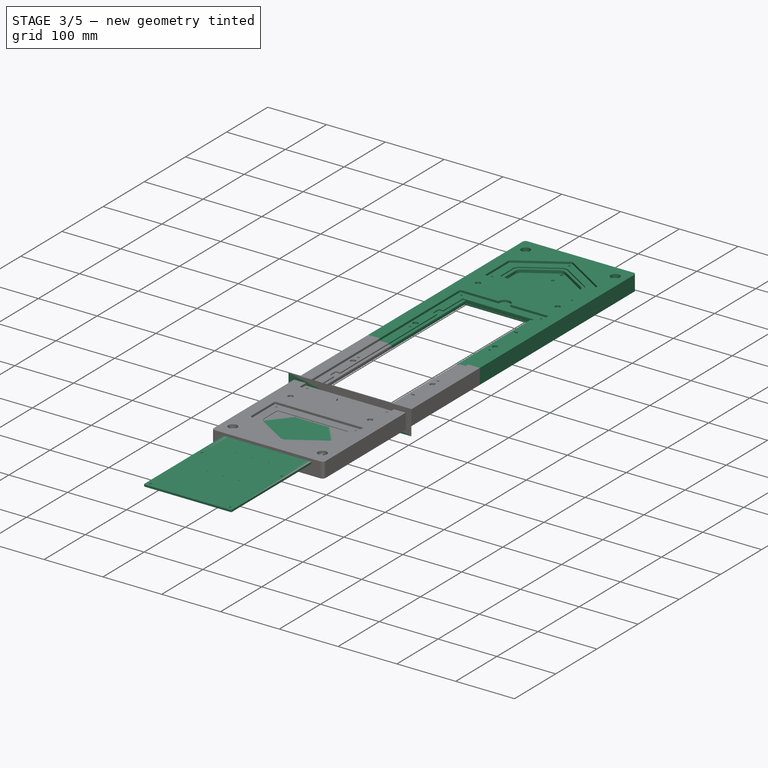
[diagram: stage 3 of 5 — iso view after this stage's code; geometry added in this stage tinted green]
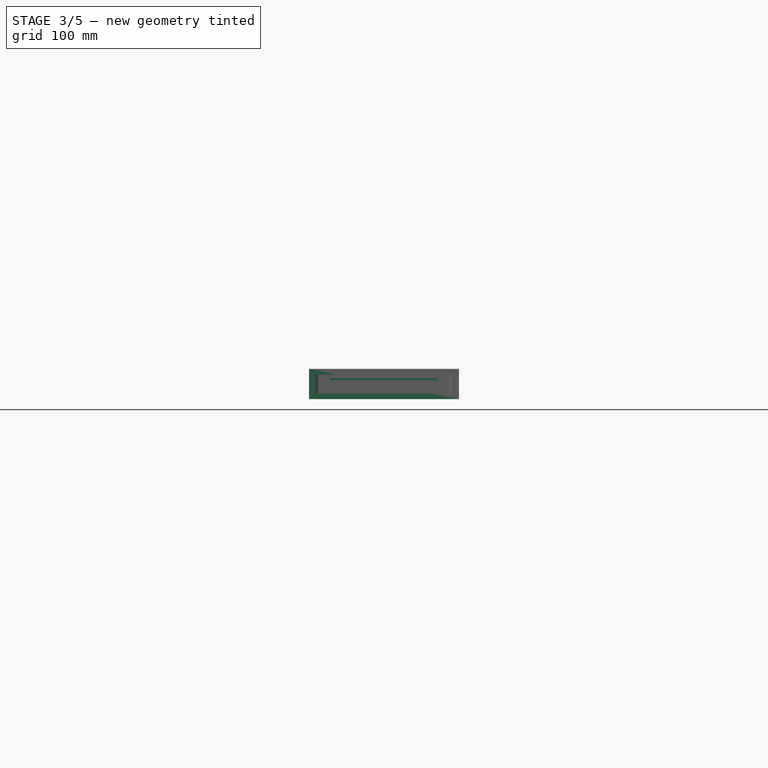
[diagram: stage 3 of 5 — front view after this stage's code; geometry added in this stage tinted green]
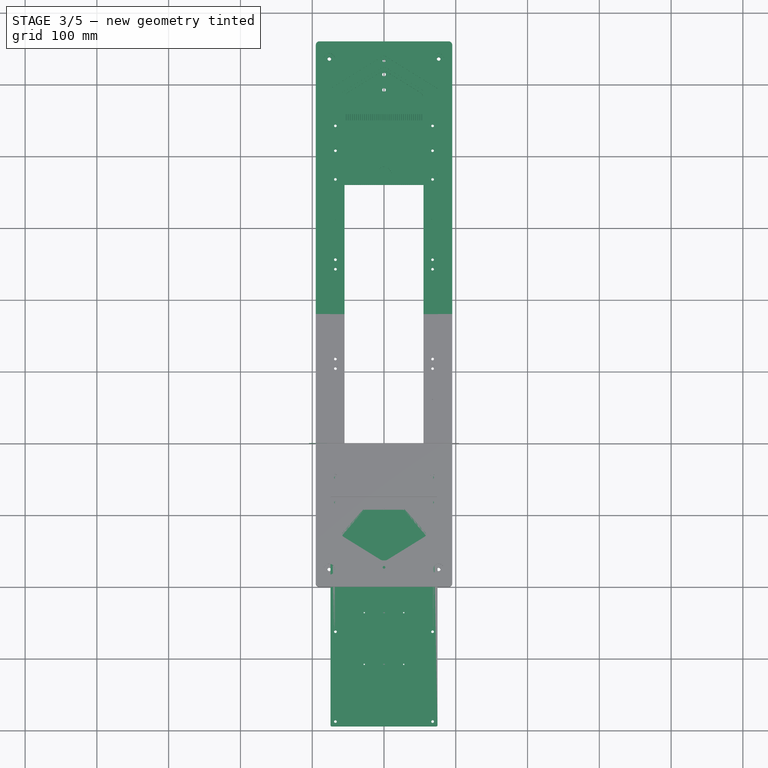
[diagram: stage 3 of 5 — top view after this stage's code; geometry added in this stage tinted green]
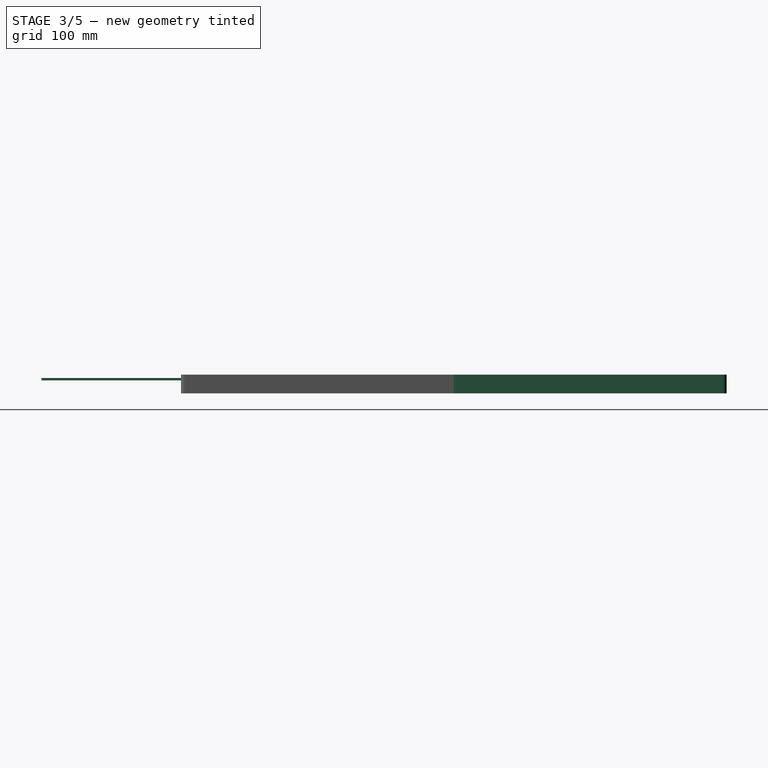
[diagram: stage 3 of 5 — right view after this stage's code; geometry added in this stage tinted green]
FEATURE [PartDesign::Body] Body010  label="DowelPinBody"
  Group = -> [Sketch040,Pad011,Chamfer,Chamfer001]
  Origin = -> Origin010
  Tip = -> Chamfer001
FEATURE [Part::Extrusion] Extrude
  Base = -> Sketch029
  Dir = (0,-1,2e-16)
  DirMode = 2
  FaceMakerClass = Part::FaceMakerBullseye
  LengthFwd = 0.0001
  LengthRev = 0
  Solid = true
  Symmetric = true
  expr: LengthFwd = Spreadsheet.cut_plane_thickness
FEATURE [Sketcher::SketchObject] Sketch041  label="InnerLidSketch001"
  FullyConstrained = true
  MapMode = 5
  Support = -> [XY_Plane011]
  expr: Constraints[118] = Spreadsheet.pid_hole_diameter
  expr: Constraints[127] = Spreadsheet.outer_lid_acrylic_fit_adjustment
  expr: Constraints[27] = Spreadsheet.inner_lid_fillet_radius
  expr: Constraints[38] = Spreadsheet.flow_section_width
  expr: Constraints[39] = Spreadsheet.flow_section_length
  expr: Constraints[6] = Spreadsheet.inner_lid_width
  expr: Constraints[7] = Spreadsheet.inner_lid_length
  sketch-geometry (64):
    g0: LineSegment StartX=-60 StartY=179 StartZ=0 EndX=-60 EndY=-179 EndZ=0
    g1: LineSegment StartX=-59 StartY=-180 StartZ=0 EndX=59 EndY=-180 EndZ=0
    g2: LineSegment StartX=60 StartY=-179 StartZ=0 EndX=60 EndY=179 EndZ=0
    g3: LineSegment StartX=59 StartY=180 StartZ=0 EndX=-59 EndY=180 EndZ=0
    g4: GeomPoint X=0 Y=0 Z=0
    g5: ArcOfCircle CenterX=59 CenterY=-179 CenterZ=0 NormalX=0 NormalY=0 NormalZ=1 AngleXU=0 Radius=1 StartAngle=4.71239 EndAngle=6.28319
    g6: GeomPoint X=60 Y=-180 Z=0
    g7: ArcOfCircle CenterX=-59 CenterY=-179 CenterZ=0 NormalX=0 NormalY=0 NormalZ=1 AngleXU=0 Radius=1 StartAngle=3.14159 EndAngle=4.71239
    g8: GeomPoint X=-60 Y=-180 Z=0
    g9: ArcOfCircle CenterX=-59 CenterY=179 CenterZ=0 NormalX=0 NormalY=0 NormalZ=1 AngleXU=0 Radius=1 StartAngle=1.5708 EndAngle=3.14159
    g10: GeomPoint X=-60 Y=180 Z=0
    g11: ArcOfCircle CenterX=59 CenterY=179 CenterZ=0 NormalX=0 NormalY=0 NormalZ=1 AngleXU=0 Radius=1 StartAngle=-9.8e-15 EndAngle=1.5708
    g12: GeomPoint X=60 Y=180 Z=0
    g13: LineSegment StartX=-55 StartY=180 StartZ=0 EndX=-55 EndY=-180 EndZ=0
    g14: LineSegment StartX=-55 StartY=-180 StartZ=0 EndX=55 EndY=-180 EndZ=0
    g15: LineSegment StartX=55 StartY=-180 StartZ=0 EndX=55 EndY=180 EndZ=0
    g16: LineSegment StartX=55 StartY=180 StartZ=0 EndX=-55 EndY=180 EndZ=0
    g17: GeomPoint X=0 Y=0 Z=0
    g18: LineSegment StartX=-27.5 StartY=180 StartZ=0 EndX=-27.5 EndY=108 EndZ=0
    g19: LineSegment StartX=-27.5 StartY=108 StartZ=0 EndX=-27.5 EndY=36 EndZ=0
    g20: LineSegment StartX=-27.5 StartY=36 StartZ=0 EndX=-27.5 EndY=-36 EndZ=0
    g21: LineSegment StartX=-27.5 StartY=-36 StartZ=0 EndX=-27.5 EndY=-108 EndZ=0
    g22: LineSegment StartX=-27.5 StartY=-108 StartZ=0 EndX=-27.5 EndY=-180 EndZ=0
    g23: LineSegment StartX=0 StartY=180 StartZ=0 EndX=0 EndY=108 EndZ=0
    g24: LineSegment StartX=0 StartY=108 StartZ=0 EndX=0 EndY=36 EndZ=0
    g25: LineSegment StartX=0 StartY=36 StartZ=0 EndX=0 EndY=-36 EndZ=0
    g26: LineSegment StartX=0 StartY=-36 StartZ=0 EndX=0 EndY=-108 EndZ=0
    g27: LineSegment StartX=0 StartY=-108 StartZ=0 EndX=0 EndY=-180 EndZ=0
    g28: LineSegment StartX=27.5 StartY=180 StartZ=0 EndX=27.5 EndY=108 EndZ=0
    g29: LineSegment StartX=27.5 StartY=108 StartZ=0 EndX=27.5 EndY=36 EndZ=0
    g30: LineSegment StartX=27.5 StartY=36 StartZ=0 EndX=27.5 EndY=-36 EndZ=0
    g31: LineSegment StartX=27.5 StartY=-36 StartZ=0 EndX=27.5 EndY=-108 EndZ=0
    g32: LineSegment StartX=27.5 StartY=-108 StartZ=0 EndX=27.5 EndY=-180 EndZ=0
    g33: LineSegment StartX=-27.5 StartY=108 StartZ=0 EndX=0 EndY=108 EndZ=0
    g34: LineSegment StartX=27.5 StartY=108 StartZ=0 EndX=0 EndY=108 EndZ=0
    g35: LineSegment StartX=27.5 StartY=108 StartZ=0 EndX=55 EndY=108 EndZ=0
    g36: Circle CenterX=-27.5 CenterY=108 CenterZ=0 NormalX=0 NormalY=0 NormalZ=1 AngleXU=0 Radius=0.9
    g37: Circle CenterX=0 CenterY=108 CenterZ=0 NormalX=0 NormalY=0 NormalZ=1 AngleXU=0 Radius=0.9
    g38: Circle CenterX=27.5 CenterY=108 CenterZ=0 NormalX=0 NormalY=0 NormalZ=1 AngleXU=0 Radius=0.9
    g39: Circle CenterX=-27.5 CenterY=36 CenterZ=0 NormalX=0 NormalY=0 NormalZ=1 AngleXU=0 Radius=0.9
    g40: Circle CenterX=0 CenterY=36 CenterZ=0 NormalX=0 NormalY=0 NormalZ=1 AngleXU=0 Radius=0.9
    g41: Circle CenterX=27.5 CenterY=36 CenterZ=0 NormalX=0 NormalY=0 NormalZ=1 AngleXU=0 Radius=0.9
    g42: Circle CenterX=-27.5 CenterY=-36 CenterZ=0 NormalX=0 NormalY=0 NormalZ=1 AngleXU=0 Radius=0.9
    g43: Circle CenterX=0 CenterY=-36 CenterZ=0 NormalX=0 NormalY=0 NormalZ=1 AngleXU=0 Radius=0.9
    g44: Circle CenterX=27.5 CenterY=-36 CenterZ=0 NormalX=0 NormalY=0 NormalZ=1 AngleXU=0 Radius=0.9
    g45: Circle CenterX=-27.5 CenterY=-108 CenterZ=0 NormalX=0 NormalY=0 NormalZ=1 AngleXU=0 Radius=0.9
    g46: Circle CenterX=0 CenterY=-108 CenterZ=0 NormalX=0 NormalY=0 NormalZ=1 AngleXU=0 Radius=0.9
    g47: Circle CenterX=27.5 CenterY=-108 CenterZ=0 NormalX=0 NormalY=0 NormalZ=1 AngleXU=0 Radius=0.9
    g48: LineSegment StartX=-60 StartY=179 StartZ=0 EndX=-59.5 EndY=179 EndZ=0
    g49: LineSegment StartX=-59 StartY=180 StartZ=0 EndX=-59 EndY=179.5 EndZ=0
    g50: LineSegment StartX=59 StartY=180 StartZ=0 EndX=59 EndY=179.5 EndZ=0
    g51: LineSegment StartX=60 StartY=179 StartZ=0 EndX=59.5 EndY=179 EndZ=0
    g52: LineSegment StartX=60 StartY=-179 StartZ=0 EndX=59.5 EndY=-179 EndZ=0
    g53: LineSegment StartX=59 StartY=-180 StartZ=0 EndX=59 EndY=-179.5 EndZ=0
    g54: LineSegment StartX=-59 StartY=-180 StartZ=0 EndX=-59 EndY=-179.5 EndZ=0
    g55: LineSegment StartX=-60 StartY=-179 StartZ=0 EndX=-59.5 EndY=-179 EndZ=0
    g56: LineSegment StartX=-59.5 StartY=-179 StartZ=0 EndX=-59.5 EndY=179 EndZ=0
    g57: LineSegment StartX=-59 StartY=179.5 StartZ=0 EndX=59 EndY=179.5 EndZ=0
    g58: LineSegment StartX=59.5 StartY=179 StartZ=0 EndX=59.5 EndY=-179 EndZ=0
    g59: LineSegment StartX=59 StartY=-179.5 StartZ=0 EndX=-59 EndY=-179.5 EndZ=0
    g60: ArcOfCircle CenterX=-59 CenterY=-179 CenterZ=0 NormalX=0 NormalY=0 NormalZ=1 AngleXU=0 Radius=0.5 StartAngle=3.14159 EndAngle=4.71239
    g61: ArcOfCircle CenterX=59 CenterY=-179 CenterZ=0 NormalX=0 NormalY=0 NormalZ=1 AngleXU=0 Radius=0.5 StartAngle=4.71239 EndAngle=6.28319
    g62: ArcOfCircle CenterX=59 CenterY=179 CenterZ=0 NormalX=0 NormalY=0 NormalZ=1 AngleXU=0 Radius=0.5 StartAngle=0 EndAngle=1.5708
    g63: ArcOfCircle CenterX=-59 CenterY=179 CenterZ=0 NormalX=0 NormalY=0 NormalZ=1 AngleXU=0 Radius=0.5 StartAngle=1.5708 EndAngle=3.14159
  constraints (159):
    c: Horizontal(g1)
    c: Horizontal(g3)
    c: Vertical(g0)
    c: Vertical(g2)
    c: Symmetric(g6,g10,g4)
    c: Coincident(g4,g-1)
    c: DistanceX(g8,g6) = 120
    c: DistanceY(g6,g12) = 360
    c: PointOnObject(g6,g1)
    c: PointOnObject(g6,g2)
    c: Tangent(g1,g5) = -1.5708
    c: Tangent(g2,g5) = -1.5708
    c: PointOnObject(g8,g1)
    c: PointOnObject(g8,g0)
    c: Tangent(g1,g7) = -1.5708
    c: Tangent(g0,g7) = -1.5708
    c: PointOnObject(g10,g0)
    c: PointOnObject(g10,g3)
    c: Tangent(g0,g9) = -1.5708
    c: Tangent(g3,g9) = -1.5708
    c: PointOnObject(g12,g3)
    c: PointOnObject(g12,g2)
    c: Tangent(g3,g11) = -1.5708
    c: Tangent(g2,g11) = -1.5708
    c: Equal(g5,g7)
    c: Equal(g7,g9)
    c: Equal(g9,g11)
    c: Radius(g9) = 1
    c: Coincident(g13,g14)
    c: Coincident(g14,g15)
    c: Coincident(g15,g16)
    c: Coincident(g16,g13)
    c: Horizontal(g14)
    c: Horizontal(g16)
    c: Vertical(g13)
    c: Vertical(g15)
    c: Symmetric(g14,g13,g17)
    c: Coincident(g17,g4)
    c: DistanceX(g14,g14) = 110
    c: DistanceY(g13,g13) = 360
    c: Vertical(g18)
    c: Coincident(g18,g19)
    c: Coincident(g19,g20)
    c: Coincident(g20,g21)
    c: Coincident(g21,g22)
    c: PointOnObject(g18,g16)
    c: PointOnObject(g22,g14)
    c: Vertical(g22)
    c: Vertical(g21)
    c: Vertical(g20)
    c: Vertical(g19)
    c: Equal(g18,g19)
    c: Equal(g19,g20)
    c: Equal(g20,g21)
    c: Equal(g21,g22)
    c: Coincident(g23,g24)
    c: Coincident(g24,g25)
    c: Coincident(g25,g26)
    c: Coincident(g26,g27)
    c: PointOnObject(g23,g16)
    c: PointOnObject(g23,g-2)
    c: PointOnObject(g27,g14)
    c: PointOnObject(g27,g-2)
    c: Vertical(g27)
    c: Vertical(g26)
    c: Vertical(g25)
    c: Vertical(g24)
    c: Equal(g23,g24)
    c: Equal(g24,g25)
    c: Equal(g25,g26)
    c: Equal(g26,g27)
    c: Coincident(g28,g29)
    c: Coincident(g29,g30)
    c: Coincident(g30,g31)
    c: Vertical(g31)
    c: Coincident(g31,g32)
    c: PointOnObject(g28,g16)
    c: PointOnObject(g32,g14)
    c: Vertical(g32)
    c: Vertical(g30)
    c: Vertical(g29)
    c: Equal(g28,g29)
    c: Equal(g29,g30)
    c: Equal(g30,g31)
    c: Equal(g31,g32)
    c: Vertical(g28)
    c: Coincident(g33,g18)
    c: Coincident(g33,g23)
    c: Coincident(g34,g28)
    c: Coincident(g34,g23)
    c: Equal(g34,g33)
    c: Coincident(g35,g28)
    c: PointOnObject(g35,g15)
    c: Horizontal(g35)
    c: Equal(g35,g34)
    c: Coincident(g36,g18)
    c: Coincident(g37,g23)
    c: Coincident(g38,g28)
    c: Coincident(g39,g19)
    c: Coincident(g40,g24)
    c: Coincident(g41,g29)
    c: Coincident(g42,g20)
    c: Coincident(g43,g25)
    c: Coincident(g44,g30)
    c: Coincident(g45,g21)
    c: Coincident(g46,g26)
    c: Coincident(g47,g31)
    c: Equal(g36,g37)
    c: Equal(g37,g38)
    c: Equal(g38,g39)
    c: Equal(g39,g40)
    c: Equal(g40,g41)
    c: Equal(g41,g42)
    c: Equal(g42,g43)
    c: Equal(g43,g44)
    c: Equal(g44,g45)
    c: Equal(g45,g46)
    c: Equal(g46,g47)
    c: Diameter(g36) = 1.8
    c: Coincident(g48,g0)
    c: Coincident(g49,g3)
    c: Coincident(g50,g3)
    c: Coincident(g51,g2)
    c: Coincident(g52,g2)
    c: Coincident(g53,g1)
    c: Coincident(g54,g1)
    c: Coincident(g55,g0)
    c: Distance(g48) = 0.5
    c: Equal(g48,g49)
    c: Equal(g49,g50)
    c: Equal(g50,g51)
    c: Equal(g51,g52)
    c: Equal(g52,g53)
    c: Equal(g53,g54)
    c: Equal(g54,g55)
    c: Perpendicular(g0,g48)
    c: Perpendicular(g3,g49)
    c: Perpendicular(g3,g50)
    c: Perpendicular(g2,g51)
    c: Perpendicular(g2,g52)
    c: Perpendicular(g1,g53)
    c: Perpendicular(g1,g54)
    c: Perpendicular(g0,g55)
    c: Coincident(g56,g55)
    c: Coincident(g56,g48)
    c: Coincident(g57,g49)
    c: Coincident(g57,g50)
    c: Coincident(g58,g51)
    c: Coincident(g52,g58)
    c: Coincident(g59,g53)
    c: Coincident(g59,g54)
    c: Coincident(g60,g59)
    c: Tangent(g60,g56) = 1.5708
    c: Coincident(g61,g59)
    c: Tangent(g61,g58) = 1.5708
    c: Coincident(g62,g58)
    c: Tangent(g62,g57) = 1.5708
    c: Coincident(g63,g56)
    c: Tangent(g63,g57) = 1.5708
FEATURE [PartDesign::Pad] Pad012  label="InnerLidWithPIDHolesPad"
  Direction = (0,0,1)
  Length = 1.5
  Length2 = 10
  Profile = -> Sketch041
  ReferenceAxis = -> Sketch041 [N_Axis]
  Type = 0
  expr: Length = Spreadsheet.inner_lid_thickness
FEATURE [PartDesign::Body] Body011  label="FlowSectionInnerLidWithPIDHolesBody"
  Group = -> [Sketch041,Pad012]
  Origin = -> Origin011
  Tip = -> Pad012
FEATURE [Sketcher::SketchObject] Sketch042  label="TopOuterLidSketch001"
  FullyConstrained = true
  MapMode = 5
  Support = -> [XY_Plane012]
  expr: Constraints[159] = Spreadsheet.pid_hole_diameter
  expr: Constraints[168] = Spreadsheet.outer_lid_acrylic_fit_adjustment
  expr: Constraints[25] = Spreadsheet.top_flow_section_outer_lid_length
  expr: Constraints[26] = Spreadsheet.outer_lid_width
  expr: Constraints[27] = Spreadsheet.top_outer_lid_fillet_radius
  expr: Constraints[68] = Spreadsheet.lid_mount_hole_diameter
  expr: Constraints[71] = Spreadsheet.outer_lid_side_margin
  expr: Constraints[72] = Spreadsheet.outer_lid_overlap * 0.5
  expr: Constraints[79] = Spreadsheet.outer_lid_side_margin
  expr: Constraints[80] = Spreadsheet.outer_lid_overlap * 0.5
  expr: Constraints[91] = Spreadsheet.flow_section_length
  expr: Constraints[92] = Spreadsheet.flow_section_width
  sketch-geometry (83):
    g0: LineSegment StartX=-75 StartY=193 StartZ=0 EndX=-75 EndY=-193 EndZ=0
    g1: LineSegment StartX=-73 StartY=-195 StartZ=0 EndX=73 EndY=-195 EndZ=0
    g2: LineSegment StartX=75 StartY=-193 StartZ=0 EndX=75 EndY=193 EndZ=0
    g3: LineSegment StartX=73 StartY=195 StartZ=0 EndX=-73 EndY=195 EndZ=0
    g4: GeomPoint X=0 Y=0 Z=0
    g5: ArcOfCircle CenterX=-73 CenterY=193 CenterZ=0 NormalX=0 NormalY=0 NormalZ=1 AngleXU=0 Radius=2 StartAngle=1.5708 EndAngle=3.14159
    g6: GeomPoint X=-75 Y=195 Z=0
    g7: ArcOfCircle CenterX=73 CenterY=193 CenterZ=0 NormalX=0 NormalY=0 NormalZ=1 AngleXU=0 Radius=2 StartAngle=4.9e-15 EndAngle=1.5708
    g8: GeomPoint X=75 Y=195 Z=0
    g9: ArcOfCircle CenterX=73 CenterY=-193 CenterZ=0 NormalX=0 NormalY=0 NormalZ=1 AngleXU=0 Radius=2 StartAngle=4.71239 EndAngle=6.28319
    g10: GeomPoint X=75 Y=-195 Z=0
    g11: ArcOfCircle CenterX=-73 CenterY=-193 CenterZ=0 NormalX=0 NormalY=0 NormalZ=1 AngleXU=0 Radius=2 StartAngle=3.14159 EndAngle=4.71239
    g12: GeomPoint X=-75 Y=-195 Z=0
    g13: LineSegment StartX=0 StartY=187.7 StartZ=0 EndX=0 EndY=-187.7 EndZ=0
    g14: GeomPoint X=4.7e-15 Y=-195 Z=0
    g15: GeomPoint X=1.3e-15 Y=195 Z=0
    g16: LineSegment StartX=-67.7 StartY=-187.7 StartZ=0 EndX=67.7 EndY=-187.7 EndZ=0
    g17: LineSegment StartX=-67.7 StartY=187.7 StartZ=0 EndX=67.7 EndY=187.7 EndZ=0
    g18: LineSegment StartX=-67.7 StartY=-187.7 StartZ=0 EndX=-67.7 EndY=-62.5667 EndZ=0
    g19: LineSegment StartX=-67.7 StartY=-62.5667 StartZ=0 EndX=-67.7 EndY=62.5667 EndZ=0
    g20: LineSegment StartX=-67.7 StartY=187.7 StartZ=0 EndX=-67.7 EndY=62.5667 EndZ=0
    g21: LineSegment StartX=67.7 StartY=-187.7 StartZ=0 EndX=67.7 EndY=-62.5667 EndZ=0
    g22: LineSegment StartX=67.7 StartY=-62.5667 StartZ=0 EndX=67.7 EndY=62.5667 EndZ=0
    g23: LineSegment StartX=67.7 StartY=62.5667 StartZ=0 EndX=67.7 EndY=187.7 EndZ=0
    g24: Circle CenterX=-67.7 CenterY=187.7 CenterZ=0 NormalX=0 NormalY=0 NormalZ=1 AngleXU=0 Radius=1.8669
    g25: Circle CenterX=67.7 CenterY=187.7 CenterZ=0 NormalX=0 NormalY=0 NormalZ=1 AngleXU=0 Radius=1.8669
    g26: Circle CenterX=-67.7 CenterY=62.5667 CenterZ=0 NormalX=0 NormalY=0 NormalZ=1 AngleXU=0 Radius=1.8669
    g27: Circle CenterX=67.7 CenterY=62.5667 CenterZ=0 NormalX=0 NormalY=0 NormalZ=1 AngleXU=0 Radius=1.8669
    g28: Circle CenterX=-67.7 CenterY=-62.5667 CenterZ=0 NormalX=0 NormalY=0 NormalZ=1 AngleXU=0 Radius=1.8669
    g29: Circle CenterX=67.7 CenterY=-62.5667 CenterZ=0 NormalX=0 NormalY=0 NormalZ=1 AngleXU=0 Radius=1.8669
    g30: Circle CenterX=-67.7 CenterY=-187.7 CenterZ=0 NormalX=0 NormalY=0 NormalZ=1 AngleXU=0 Radius=1.8669
    g31: Circle CenterX=67.7 CenterY=-187.7 CenterZ=0 NormalX=0 NormalY=0 NormalZ=1 AngleXU=0 Radius=1.8669
    g32: LineSegment StartX=1.3e-15 StartY=195.2 StartZ=0 EndX=1.3e-15 EndY=195 EndZ=0
    g33: LineSegment StartX=75 StartY=195 StartZ=0 EndX=75 EndY=-195 EndZ=0
    g34: GeomPoint X=75 Y=-187.7 Z=0
    g35: LineSegment StartX=75 StartY=-187.7 StartZ=0 EndX=75.2 EndY=-187.7 EndZ=0
    g36: LineSegment StartX=-55 StartY=180 StartZ=0 EndX=-55 EndY=-180 EndZ=0
    g37: LineSegment StartX=-55 StartY=-180 StartZ=0 EndX=55 EndY=-180 EndZ=0
    g38: LineSegment StartX=55 StartY=-180 StartZ=0 EndX=55 EndY=180 EndZ=0
    g39: LineSegment StartX=55 StartY=180 StartZ=0 EndX=-55 EndY=180 EndZ=0
    g40: GeomPoint X=0 Y=0 Z=0
    g41: LineSegment StartX=0 StartY=180 StartZ=0 EndX=0 EndY=108 EndZ=0
    g42: LineSegment StartX=0 StartY=108 StartZ=0 EndX=0 EndY=36 EndZ=0
    g43: LineSegment StartX=0 StartY=36 StartZ=0 EndX=0 EndY=-36 EndZ=0
    g44: LineSegment StartX=0 StartY=-36 StartZ=0 EndX=0 EndY=-108 EndZ=0
    g45: LineSegment StartX=0 StartY=-108 StartZ=0 EndX=0 EndY=-180 EndZ=0
    g46: LineSegment StartX=-27.5 StartY=108 StartZ=0 EndX=0 EndY=108 EndZ=0
    g47: LineSegment StartX=0 StartY=108 StartZ=0 EndX=27.5 EndY=108 EndZ=0
    g48: LineSegment StartX=-27.5 StartY=36 StartZ=0 EndX=0 EndY=36 EndZ=0
    g49: LineSegment StartX=0 StartY=36 StartZ=0 EndX=27.5 EndY=36 EndZ=0
    g50: LineSegment StartX=-27.5 StartY=-36 StartZ=0 EndX=0 EndY=-36 EndZ=0
    g51: LineSegment StartX=0 StartY=-36 StartZ=0 EndX=27.5 EndY=-36 EndZ=0
    g52: LineSegment StartX=-27.5 StartY=-108 StartZ=0 EndX=0 EndY=-108 EndZ=0
    g53: LineSegment StartX=0 StartY=-108 StartZ=0 EndX=27.5 EndY=-108 EndZ=0
    g54: LineSegment StartX=27.5 StartY=108 StartZ=0 EndX=55 EndY=108 EndZ=0
    g55: Circle CenterX=-27.5 CenterY=108 CenterZ=0 NormalX=0 NormalY=0 NormalZ=1 AngleXU=0 Radius=0.9
    g56: Circle CenterX=0 CenterY=108 CenterZ=0 NormalX=0 NormalY=0 NormalZ=1 AngleXU=0 Radius=0.9
    g57: Circle CenterX=27.5 CenterY=108 CenterZ=0 NormalX=0 NormalY=0 NormalZ=1 AngleXU=0 Radius=0.9
    g58: Circle CenterX=-27.5 CenterY=36 CenterZ=0 NormalX=0 NormalY=0 NormalZ=1 AngleXU=0 Radius=0.9
    g59: Circle CenterX=0 CenterY=36 CenterZ=0 NormalX=0 NormalY=0 NormalZ=1 AngleXU=0 Radius=0.9
    g60: Circle CenterX=27.5 CenterY=36 CenterZ=0 NormalX=0 NormalY=0 NormalZ=1 AngleXU=0 Radius=0.9
    g61: Circle CenterX=-27.5 CenterY=-36 CenterZ=0 NormalX=0 NormalY=0 NormalZ=1 AngleXU=0 Radius=0.9
    g62: Circle CenterX=0 CenterY=-36 CenterZ=0 NormalX=0 NormalY=0 NormalZ=1 AngleXU=0 Radius=0.9
    g63: Circle CenterX=27.5 CenterY=-36 CenterZ=0 NormalX=0 NormalY=0 NormalZ=1 AngleXU=0 Radius=0.9
    g64: Circle CenterX=-27.5 CenterY=-108 CenterZ=0 NormalX=0 NormalY=0 NormalZ=1 AngleXU=0 Radius=0.9
    g65: Circle CenterX=0 CenterY=-108 CenterZ=0 NormalX=0 NormalY=0 NormalZ=1 AngleXU=0 Radius=0.9
    g66: Circle CenterX=27.5 CenterY=-108 CenterZ=0 NormalX=0 NormalY=0 NormalZ=1 AngleXU=0 Radius=0.9
    g67: LineSegment StartX=-75 StartY=193 StartZ=0 EndX=-74.5 EndY=193 EndZ=0
    g68: LineSegment StartX=-73 StartY=195 StartZ=0 EndX=-73 EndY=194.5 EndZ=0
    g69: LineSegment StartX=73 StartY=195 StartZ=0 EndX=73 EndY=194.5 EndZ=0
    g70: LineSegment StartX=75 StartY=193 StartZ=0 EndX=74.5 EndY=193 EndZ=0
    g71: LineSegment StartX=75 StartY=-193 StartZ=0 EndX=74.5 EndY=-193 EndZ=0
    g72: LineSegment StartX=73 StartY=-195 StartZ=0 EndX=73 EndY=-194.5 EndZ=0
    g73: LineSegment StartX=-73 StartY=-195 StartZ=0 EndX=-73 EndY=-194.5 EndZ=0
    g74: LineSegment StartX=-75 StartY=-193 StartZ=0 EndX=-74.5 EndY=-193 EndZ=0
    g75: LineSegment StartX=-73 StartY=194.5 StartZ=0 EndX=73 EndY=194.5 EndZ=0
    g76: LineSegment StartX=74.5 StartY=193 StartZ=0 EndX=74.5 EndY=-193 EndZ=0
    g77: LineSegment StartX=73 StartY=-194.5 StartZ=0 EndX=-73 EndY=-194.5 EndZ=0
    g78: LineSegment StartX=-74.5 StartY=-193 StartZ=0 EndX=-74.5 EndY=193 EndZ=0
    g79: ArcOfCircle CenterX=-73 CenterY=193 CenterZ=0 NormalX=0 NormalY=0 NormalZ=1 AngleXU=0 Radius=1.5 StartAngle=1.5708 EndAngle=3.14159
    g80: ArcOfCircle CenterX=73 CenterY=193 CenterZ=0 NormalX=0 NormalY=0 NormalZ=1 AngleXU=0 Radius=1.5 StartAngle=-6.2e-15 EndAngle=1.5708
    g81: ArcOfCircle CenterX=73 CenterY=-193 CenterZ=0 NormalX=0 NormalY=0 NormalZ=1 AngleXU=0 Radius=1.5 StartAngle=4.71239 EndAngle=6.28319
    g82: ArcOfCircle CenterX=-73 CenterY=-193 CenterZ=0 NormalX=0 NormalY=0 NormalZ=1 AngleXU=0 Radius=1.5 StartAngle=3.14159 EndAngle=4.71239
  constraints (200):
    c: Horizontal(g1)
    c: Horizontal(g3)
    c: Vertical(g0)
    c: Vertical(g2)
    c: Symmetric(g10,g6,g4)
    c: Coincident(g4,g-1)
    c: PointOnObject(g6,g0)
    c: PointOnObject(g6,g3)
    c: Tangent(g0,g5) = -1.5708
    c: Tangent(g3,g5) = -1.5708
    c: PointOnObject(g8,g3)
    c: PointOnObject(g8,g2)
    c: Tangent(g3,g7) = -1.5708
    c: Tangent(g2,g7) = -1.5708
    c: PointOnObject(g10,g1)
    c: PointOnObject(g10,g2)
    c: Tangent(g1,g9) = -1.5708
    c: Tangent(g2,g9) = -1.5708
    c: PointOnObject(g12,g1)
    c: PointOnObject(g12,g0)
    c: Tangent(g1,g11) = -1.5708
    c: Tangent(g0,g11) = -1.5708
    c: Equal(g11,g5)
    c: Equal(g5,g7)
    c: Equal(g7,g9)
    c: DistanceY(g10,g8) = 390
    c: DistanceX(g12,g10) = 150
    c: Radius(g5) = 2
    c: Vertical(g13)
    c: Symmetric(g13,g13,g4)
    c: Symmetric(g12,g10,g14)
    c: Symmetric(g6,g8,g15)
    c: Horizontal(g16)
    c: Symmetric(g16,g16,g13)
    c: Horizontal(g17)
    c: Symmetric(g17,g17,g13)
    c: Equal(g17,g16)
    c: Vertical(g18)
    c: Coincident(g18,g19)
    c: Vertical(g19)
    c: Coincident(g18,g16)
    c: Coincident(g20,g19)
    c: Equal(g18,g19)
    c: Equal(g19,g20)
    c: Coincident(g17,g20)
    c: Coincident(g21,g22)
    c: Coincident(g22,g23)
    c: Equal(g21,g22)
    c: Equal(g22,g23)
    c: Coincident(g23,g17)
    c: Coincident(g21,g16)
    c: Vertical(g21)
    c: Vertical(g22)
    c: Coincident(g24,g17)
    c: Coincident(g25,g17)
    c: Coincident(g26,g19)
    c: Coincident(g27,g22)
    c: Coincident(g28,g18)
    c: Coincident(g29,g21)
    c: Coincident(g30,g16)
    c: Coincident(g31,g16)
    c: Equal(g31,g30)
    c: Equal(g30,g29)
    c: Equal(g29,g28)
    c: Equal(g28,g27)
    c: Equal(g27,g26)
    c: Equal(g26,g24)
    c: Equal(g24,g25)
    c: Diameter(g25) = 3.7338
    c: Vertical(g32)
    c: Coincident(g15,g32)
    c: DistanceY(g32,g32) = 0.2
    c: DistanceY(g13,g32) = 7.5
    c: PointOnObject(g34,g33)
    c: Coincident(g10,g33)
    c: Coincident(g33,g8)
    c: Horizontal(g34,g31)
    c: Coincident(g35,g34)
    c: Horizontal(g35)
    c: DistanceX(g35,g35) = 0.2
    c: DistanceX(g31,g35) = 7.5
    c: Coincident(g36,g37)
    c: Coincident(g37,g38)
    c: Coincident(g38,g39)
    c: Coincident(g39,g36)
    c: Horizontal(g37)
    c: Horizontal(g39)
    c: Vertical(g36)
    c: Vertical(g38)
    c: Symmetric(g37,g36,g40)
    c: Coincident(g40,g4)
    c: DistanceY(g36,g36) = 360
    c: DistanceX(g37,g37) = 110
    c: Coincident(g41,g42)
    c: Coincident(g42,g43)
    c: Coincident(g43,g44)
    c: Coincident(g44,g45)
    c: PointOnObject(g41,g39)
    c: PointOnObject(g41,g13)
    c: PointOnObject(g45,g37)
    c: PointOnObject(g45,g13)
    c: Equal(g45,g44)
    c: Equal(g44,g43)
    c: Equal(g43,g42)
    c: Equal(g42,g41)
    c: Vertical(g45)
    c: Vertical(g44)
    c: Vertical(g43)
    c: Vertical(g42)
    c: Horizontal(g46)
    c: Horizontal(g47)
    c: Coincident(g46,g41)
    c: Coincident(g46,g47)
    c: Equal(g46,g47)
    c: Coincident(g48,g42)
    c: Coincident(g48,g49)
    c: Horizontal(g49)
    c: Horizontal(g48)
    c: Equal(g48,g49)
    c: Equal(g49,g47)
    c: Coincident(g50,g43)
    c: Horizontal(g50)
    c: Coincident(g50,g51)
    c: Horizontal(g51)
    c: Equal(g50,g51)
    c: Equal(g51,g49)
    c: Horizontal(g52)
    c: Coincident(g52,g53)
    c: Horizontal(g53)
    c: Coincident(g52,g44)
    c: Equal(g52,g53)
    c: Equal(g53,g51)
    c: Coincident(g54,g47)
    c: PointOnObject(g54,g38)
    c: Horizontal(g54)
    c: Equal(g47,g54)
    c: Coincident(g55,g46)
    c: Coincident(g56,g41)
    c: Coincident(g57,g47)
    c: Coincident(g58,g48)
    c: Coincident(g59,g42)
    c: Coincident(g60,g49)
    c: Coincident(g61,g50)
    c: Coincident(g62,g43)
    c: Coincident(g63,g51)
    c: Coincident(g64,g52)
    c: Coincident(g65,g44)
    c: Coincident(g66,g53)
    c: Equal(g60,g59)
    c: Equal(g59,g58)
    c: Equal(g58,g61)
    c: Equal(g61,g62)
    c: Equal(g62,g63)
    c: Equal(g63,g64)
    c: Equal(g64,g65)
    c: Equal(g65,g66)
    c: Equal(g66,g55)
    c: Equal(g55,g56)
    c: Equal(g56,g57)
    c: Diameter(g55) = 1.8
    c: Coincident(g67,g0)
    c: Coincident(g68,g3)
    c: Coincident(g69,g3)
    c: Coincident(g70,g2)
    c: Coincident(g71,g2)
    c: Coincident(g72,g1)
    c: Coincident(g73,g1)
    c: Coincident(g74,g0)
    c: Distance(g67) = 0.5
    c: Equal(g67,g68)
    c: Equal(g68,g69)
    c: Equal(g69,g70)
    c: Equal(g70,g71)
    c: Equal(g71,g72)
    c: Equal(g72,g73)
    c: Equal(g73,g74)
    c: Perpendicular(g0,g67)
    c: Perpendicular(g3,g68)
    c: Perpendicular(g3,g69)
    c: Perpendicular(g2,g70)
    c: Perpendicular(g2,g71)
    c: Perpendicular(g1,g72)
    c: Perpendicular(g1,g73)
    c: Perpendicular(g0,g74)
    c: Coincident(g75,g68)
    c: Coincident(g75,g69)
    c: Coincident(g76,g70)
    c: Coincident(g76,g71)
    c: Coincident(g77,g72)
    c: Coincident(g77,g73)
    c: Coincident(g78,g74)
    c: Coincident(g78,g67)
    c: Coincident(g79,g78)
    c: Tangent(g79,g75) = 1.5708
    c: Coincident(g80,g75)
    c: Tangent(g80,g76) = 1.5708
    c: Coincident(g81,g77)
    c: Tangent(g81,g76) = 1.5708
    c: Coincident(g82,g77)
    c: Tangent(g82,g78) = 1.5708
FEATURE [PartDesign::Pad] Pad013  label="TopOuterLidWithPIDHolesPad"
  Direction = (0,0,1)
  Length = 3.39688
  Length2 = 10
  Profile = -> Sketch042
  ReferenceAxis = -> Sketch042 [N_Axis]
  Type = 0
  expr: Length = Spreadsheet.outer_lid_thickness
FEATURE [PartDesign::Body] Body012  label="TopFlowSectionOuterLidWithPIDHolesBody"
  Group = -> [Sketch042,Pad013]
  Origin = -> Origin012
  Tip = -> Pad013
FEATURE [PartDesign::Plane] DatumPlane008  label="TopDatumPlane001"
  AttachmentOffset = pos=(0,0,7.99688) rot=(0,0,1;0rad)
  Length = 60
  MapMode = 5
  Placement = pos=(0,0,7.99688) rot=(0,0,1;0rad)
  ResizeMode = 0
  Support = -> [XY_Plane013]
  Width = 60
  expr: .AttachmentOffset.Base.z = Spreadsheet.main_body_top_datum_plane_offset
FEATURE [PartDesign::Plane] DatumPlane009  label="CombDatumPlane001"
  AttachmentOffset = pos=(0,0,200) rot=(0,0,1;0rad)
  Length = 60
  MapMode = 5
  Placement = pos=(0,200,4.44e-14) rot=(0,0.707107,0.707107;3.14159rad)
  ResizeMode = 0
  Support = -> [XZ_Plane013]
  Width = 60
  expr: .AttachmentOffset.Base.z = Spreadsheet.comb_datum_plane_offset
FEATURE [PartDesign::Plane] DatumPlane010  label="BottomDatumPlane001"
  AttachmentOffset = pos=(0,0,7.99688) rot=(0,0,1;0rad)
  Length = 60
  MapMode = 5
  Placement = pos=(0,0,-7.99688) rot=(0,1,0;3.14159rad)
  ResizeMode = 0
  Support = -> [XY_Plane013]
  Width = 60
  expr: .AttachmentOffset.Base.z = Spreadsheet.main_body_bottom_datum_plane_offset
FEATURE [PartDesign::Plane] DatumPlane011  label="TopOuterLidDatumPlane001"
  AttachmentOffset = pos=(0,0,4.4) rot=(0,0,1;0rad)
  Length = 60
  MapMode = 5
  Placement = pos=(0,0,4.4) rot=(0,0,1;0rad)
  ResizeMode = 0
  Support = -> [XY_Plane013]
  Width = 60
  expr: .AttachmentOffset.Base.z = Spreadsheet.top_outer_lid_datum_plane_offset
FEATURE [PartDesign::Plane] DatumPlane012  label="BottomOuterLidDatumPlane001"
  AttachmentOffset = pos=(0,0,4.4) rot=(0,0,1;0rad)
  Length = 60
  MapMode = 5
  Placement = pos=(0,0,-4.4) rot=(0,1,0;3.14159rad)
  ResizeMode = 0
  Support = -> [XY_Plane013]
  Width = 60
  expr: .AttachmentOffset.Base.z = Spreadsheet.bottom_outer_lid_datum_plane_offset
FEATURE [PartDesign::Plane] DatumPlane013  label="CombSlopeDatumPlane001"
  AttachmentOffset = pos=(0,0,53.1538) rot=(0,0,1;0rad)
  Length = 60
  MapMode = 5
  Placement = pos=(-53.1538,1.18e-14,-1.18e-14) rot=(-0.57735,0.57735,0.57735;4.18879rad)
  ResizeMode = 0
  Support = -> [YZ_Plane013]
  Width = 60
  expr: .AttachmentOffset.Base.z = Spreadsheet.comb_slope_datum_plane_offset
FEATURE [PartDesign::Plane] DatumPlane014  label="BackDatumPlane001"
  AttachmentOffset = pos=(0,0,380) rot=(0,0,1;0rad)
  Length = 60
  MapMode = 5
  Placement = pos=(0,380,8.44e-14) rot=(0,0.707107,0.707107;3.14159rad)
  ResizeMode = 0
  Support = -> [XZ_Plane013]
  Width = 60
  expr: .AttachmentOffset.Base.z = Spreadsheet.main_body_length * 0.5
FEATURE [PartDesign::Plane] DatumPlane015  label="BottomBossDatumPlane001"
  AttachmentOffset = pos=(0,0,17.9969) rot=(0,0,1;0rad)
  Length = 60
  MapMode = 5
  Placement = pos=(0,0,-17.9969) rot=(0,1,0;3.14159rad)
  ResizeMode = 0
  Support = -> [XY_Plane013]
  Width = 60
  expr: .AttachmentOffset.Base.z = Spreadsheet.bottom_boss_datum_plane_offset
FEATURE [Part::Feature] Part__Feature002  label="ThreadPlugNPT0p25inFront001"
  Placement = pos=(0,46,-7.99688) rot=(0,0,1;0rad)
  shape: bbox 14.01 x 14.01 x 13.28 mm, 27 faces (baked)
  expr: .Placement.Base.y = Spreadsheet.npt_thread_front_y_offset
  expr: .Placement.Base.z = Spreadsheet.npt_thread_z_offset
FEATURE [Part::Feature] Part__Feature003  label="ThreadPlugNPT0p25inRear001"
  Placement = pos=(0,67.4978,-7.99688) rot=(0,0,1;0rad)
  shape: bbox 14.01 x 14.01 x 13.28 mm, 27 faces (baked)
  expr: .Placement.Base.y = Spreadsheet.npt_thread_rear_y_offset
  expr: .Placement.Base.z = Spreadsheet.npt_thread_z_offset
FEATURE [Part::MultiFuse] Fusion001  label="ThreadPlugFusion001"
  Shapes = -> [Part__Feature002,Part__Feature003]
FEATURE [Sketcher::SketchObject] Sketch056  label="BottomOuterLidMountHolePocketSketch001"
  FullyConstrained = true
  MapMode = 5
  Placement = pos=(0,0,-4.4) rot=(0,1,0;3.14159rad)
  Support = -> [DatumPlane012]
  expr: Constraints[19] = Spreadsheet.main_body_length * 0.5
  expr: Constraints[21] = Spreadsheet.main_body_width
  expr: Constraints[2] = Spreadsheet.bottom_outer_lid_mout_hole_from_front
  expr: Constraints[30] = Spreadsheet.lid_mount_hole_diameter
  expr: Constraints[5] = Spreadsheet.bottom_outer_lid_mount_hole_separation
  sketch-geometry (12):
    g0: LineSegment StartX=0 StartY=152.3 StartZ=0 EndX=0 EndY=0 EndZ=0
    g1: LineSegment StartX=-67.7 StartY=152.3 StartZ=0 EndX=67.7 EndY=152.3 EndZ=0
    g2: LineSegment StartX=-67.7 StartY=152.3 StartZ=0 EndX=-67.7 EndY=304.1 EndZ=0
    g3: LineSegment StartX=67.7 StartY=152.3 StartZ=0 EndX=67.7 EndY=304.1 EndZ=0
    g4: LineSegment StartX=-67.7 StartY=304.1 StartZ=0 EndX=-67.7 EndY=455.9 EndZ=0
    g5: LineSegment StartX=67.7 StartY=304.1 StartZ=0 EndX=67.7 EndY=455.9 EndZ=0
    g6: LineSegment StartX=0 StartY=0 StartZ=0 EndX=0 EndY=380 EndZ=0
    g7: LineSegment StartX=-95 StartY=380 StartZ=0 EndX=95 EndY=380 EndZ=0
    g8: Circle CenterX=-67.7 CenterY=304.1 CenterZ=0 NormalX=0 NormalY=0 NormalZ=1 AngleXU=0 Radius=1.8669
    g9: Circle CenterX=67.7 CenterY=304.1 CenterZ=0 NormalX=0 NormalY=0 NormalZ=1 AngleXU=0 Radius=1.8669
    g10: Circle CenterX=-67.7 CenterY=152.3 CenterZ=0 NormalX=0 NormalY=0 NormalZ=1 AngleXU=0 Radius=1.8669
    g11: Circle CenterX=67.7 CenterY=152.3 CenterZ=0 NormalX=0 NormalY=0 NormalZ=1 AngleXU=0 Radius=1.8669
  constraints (31):
    c: Vertical(g0)
    c: Coincident(g-1,g0)
    c: DistanceY(g0,g0) = 152.3
    c: Horizontal(g1)
    c: Symmetric(g1,g1,g0)
    c: DistanceX(g1,g1) = 135.4
    c: Coincident(g2,g1)
    c: Vertical(g2)
    c: Coincident(g3,g1)
    c: Vertical(g3)
    c: Equal(g2,g3)
    c: Coincident(g4,g2)
    c: Vertical(g4)
    c: Coincident(g5,g3)
    c: Vertical(g5)
    c: Equal(g4,g5)
    c: Equal(g4,g2)
    c: Coincident(g6,g0)
    c: Vertical(g6)
    c: DistanceY(g6,g6) = 380
    c: Symmetric(g7,g7,g6)
    c: DistanceX(g7,g7) = 190
    c: Symmetric(g4,g2,g7)
    c: Coincident(g8,g2)
    c: Coincident(g9,g3)
    c: Coincident(g10,g1)
    c: Coincident(g11,g1)
    c: Equal(g10,g11)
    c: Equal(g11,g8)
    c: Equal(g8,g9)
    c: Diameter(g10) = 3.7338
FEATURE [PartDesign::Pocket] Pocket035  label="BottomOuterLidMountHolePocket001"
  BaseFeature = -> Pocket034
  Direction = (0,0,1)
  Length = 5
  Length2 = 5
  Profile = -> Sketch056
  ReferenceAxis = -> Sketch056 [N_Axis]
  Type = 1
FEATURE [Sketcher::SketchObject] Sketch057  label="BottomOuterLidTopDatumPlaneHexPocketSketch001"
  FullyConstrained = true
  MapMode = 5
  Placement = pos=(0,0,7.99688) rot=(0,0,1;0rad)
  Support = -> [DatumPlane008]
  expr: Constraints[45] = Spreadsheet.lid_mount_hex_nut_pocket_minor_diameter
  expr: Constraints[4] = Spreadsheet.bottom_outer_lid_mout_hole_from_front
  expr: Constraints[5] = Spreadsheet.bottom_outer_lid_mount_hole_separation
  sketch-geometry (16):
    g0: LineSegment StartX=0 StartY=152.3 StartZ=0 EndX=0 EndY=0 EndZ=0
    g1: LineSegment StartX=-67.7 StartY=152.3 StartZ=0 EndX=67.7 EndY=152.3 EndZ=0
    g2: LineSegment StartX=-63.5313 StartY=149.893 StartZ=0 EndX=-63.5312 EndY=154.707 EndZ=0
    g3: LineSegment StartX=-63.5312 StartY=154.707 StartZ=0 EndX=-67.7 EndY=157.114 EndZ=0
    g4: LineSegment StartX=-67.7 StartY=157.114 StartZ=0 EndX=-71.8687 EndY=154.707 EndZ=0
    g5: LineSegment StartX=-71.8687 StartY=154.707 StartZ=0 EndX=-71.8687 EndY=149.893 EndZ=0
    g6: LineSegment StartX=-71.8687 StartY=149.893 StartZ=0 EndX=-67.7 EndY=147.486 EndZ=0
    g7: LineSegment StartX=-67.7 StartY=147.486 StartZ=0 EndX=-63.5313 EndY=149.893 EndZ=0
    g8: Circle CenterX=-67.7 CenterY=152.3 CenterZ=0 NormalX=0 NormalY=0 NormalZ=1 AngleXU=0 Radius=4.81366
    g9: LineSegment StartX=71.8687 StartY=149.893 StartZ=0 EndX=71.8687 EndY=154.707 EndZ=0
    g10: LineSegment StartX=71.8687 StartY=154.707 StartZ=0 EndX=67.7 EndY=157.114 EndZ=0
    g11: LineSegment StartX=67.7 StartY=157.114 StartZ=0 EndX=63.5313 EndY=154.707 EndZ=0
    g12: LineSegment StartX=63.5313 StartY=154.707 StartZ=0 EndX=63.5313 EndY=149.893 EndZ=0
    g13: LineSegment StartX=63.5313 StartY=149.893 StartZ=0 EndX=67.7 EndY=147.486 EndZ=0
    g14: LineSegment StartX=67.7 StartY=147.486 StartZ=0 EndX=71.8687 EndY=149.893 EndZ=0
    g15: Circle CenterX=67.7 CenterY=152.3 CenterZ=0 NormalX=0 NormalY=0 NormalZ=1 AngleXU=0 Radius=4.81366
  constraints (38):
    c: Coincident(g-1,g0)
    c: Vertical(g0)
    c: Horizontal(g1)
    c: Symmetric(g1,g1,g0)
    c: DistanceY(g0,g0) = 152.3
    c: DistanceX(g1,g1) = 135.4
    c: Coincident(g2,g3)
    c: Coincident(g3,g4)
    c: Coincident(g4,g5)
    c: Coincident(g5,g6)
    c: Coincident(g6,g7)
    c: Coincident(g7,g2)
    c: Equal(g2, g3-g7) x5
    c: PointOnObject(g2,g8)
    c: PointOnObject(g3,g8)
    c: PointOnObject(g4,g8)
    c: PointOnObject(g5,g8)
    c: PointOnObject(g6,g8)
    c: PointOnObject(g7,g8)
    c: Coincident(g8,g1)
    c: Coincident(g9,g10)
    c: Coincident(g10,g11)
    c: Coincident(g11,g12)
    c: Coincident(g12,g13)
    c: Coincident(g13,g14)
    c: Coincident(g14,g9)
    c: Equal(g9, g10-g14) x5
    c: PointOnObject(g9,g15)
    c: PointOnObject(g10,g15)
    c: PointOnObject(g11,g15)
    c: PointOnObject(g12,g15)
    c: PointOnObject(g13,g15)
    c: PointOnObject(g14,g15)
    c: Coincident(g15,g1)
    c: Equal(g8,g15)
    c: Vertical(g5)
    c: Vertical(g12)
    c: DistanceX(g4,g2) = 8.3375
FEATURE [PartDesign::Pocket] Pocket036  label="BottomOuterLidTopDatumPlaneHexPocket001"
  BaseFeature = -> Pocket035
  Direction = (0,0,-1)
  Length = 2.97812
  Length2 = 5
  Profile = -> Sketch057
  ReferenceAxis = -> Sketch057 [N_Axis]
  Type = 0
  expr: Length = Spreadsheet.lid_mount_hex_nut_pocket_depth
FEATURE [Sketcher::SketchObject] Sketch058  label="BottomOuterLidLidDatumPlaneHexSketch001"
  FullyConstrained = true
  MapMode = 5
  Placement = pos=(0,0,4.4) rot=(0,0,1;0rad)
  Support = -> [DatumPlane011]
  expr: Constraints[11] = Spreadsheet.main_body_width
  expr: Constraints[2] = Spreadsheet.bottom_outer_lid_mout_hole_from_front
  expr: Constraints[5] = Spreadsheet.bottom_outer_lid_mount_hole_separation
  expr: Constraints[62] = Spreadsheet.lid_mount_hex_nut_pocket_minor_diameter
  expr: Constraints[8] = Spreadsheet.main_body_length * 0.5
  sketch-geometry (22):
    g0: LineSegment StartX=0 StartY=0 StartZ=0 EndX=0 EndY=152.3 EndZ=0
    g1: LineSegment StartX=-67.7 StartY=152.3 StartZ=0 EndX=67.7 EndY=152.3 EndZ=0
    g2: LineSegment StartX=0 StartY=380 StartZ=0 EndX=0 EndY=0 EndZ=0
    g3: LineSegment StartX=-95 StartY=380 StartZ=0 EndX=95 EndY=380 EndZ=0
    g4: LineSegment StartX=-67.7 StartY=304.1 StartZ=0 EndX=-67.7 EndY=152.3 EndZ=0
    g5: LineSegment StartX=-67.7 StartY=304.1 StartZ=0 EndX=-67.7 EndY=455.9 EndZ=0
    g6: LineSegment StartX=67.7 StartY=152.3 StartZ=0 EndX=67.7 EndY=304.1 EndZ=0
    g7: LineSegment StartX=67.7 StartY=304.1 StartZ=0 EndX=67.7 EndY=455.9 EndZ=0
    g8: LineSegment StartX=-63.5312 StartY=301.693 StartZ=0 EndX=-63.5313 EndY=306.507 EndZ=0
    g9: LineSegment StartX=-63.5313 StartY=306.507 StartZ=0 EndX=-67.7 EndY=308.914 EndZ=0
    g10: LineSegment StartX=-67.7 StartY=308.914 StartZ=0 EndX=-71.8687 EndY=306.507 EndZ=0
    g11: LineSegment StartX=-71.8687 StartY=306.507 StartZ=0 EndX=-71.8687 EndY=301.693 EndZ=0
    g12: LineSegment StartX=-71.8687 StartY=301.693 StartZ=0 EndX=-67.7 EndY=299.286 EndZ=0
    g13: LineSegment StartX=-67.7 StartY=299.286 StartZ=0 EndX=-63.5312 EndY=301.693 EndZ=0
    g14: Circle CenterX=-67.7 CenterY=304.1 CenterZ=0 NormalX=0 NormalY=0 NormalZ=1 AngleXU=0 Radius=4.81366
    g15: LineSegment StartX=71.8687 StartY=301.693 StartZ=0 EndX=71.8687 EndY=306.507 EndZ=0
    g16: LineSegment StartX=71.8687 StartY=306.507 StartZ=0 EndX=67.7 EndY=308.914 EndZ=0
    g17: LineSegment StartX=67.7 StartY=308.914 StartZ=0 EndX=63.5313 EndY=306.507 EndZ=0
    g18: LineSegment StartX=63.5313 StartY=306.507 StartZ=0 EndX=63.5313 EndY=301.693 EndZ=0
    g19: LineSegment StartX=63.5313 StartY=301.693 StartZ=0 EndX=67.7 EndY=299.286 EndZ=0
    g20: LineSegment StartX=67.7 StartY=299.286 StartZ=0 EndX=71.8687 EndY=301.693 EndZ=0
    g21: Circle CenterX=67.7 CenterY=304.1 CenterZ=0 NormalX=0 NormalY=0 NormalZ=1 AngleXU=0 Radius=4.81366
  constraints (55):
    c: Vertical(g0)
    c: Coincident(g-1,g0)
    c: DistanceY(g0,g0) = 152.3
    c: Horizontal(g1)
    c: Symmetric(g1,g1,g0)
    c: DistanceX(g1,g1) = 135.4
    c: Vertical(g2)
    c: Coincident(g0,g2)
    c: DistanceY(g2,g2) = 380
    c: Horizontal(g3)
    c: Symmetric(g3,g3,g2)
    c: DistanceX(g3,g3) = 190
    c: Vertical(g4)
    c: Coincident(g4,g1)
    c: Coincident(g5,g4)
    c: Coincident(g6,g1)
    c: Vertical(g6)
    c: Coincident(g7,g6)
    c: Vertical(g7)
    c: Equal(g4,g6)
    c: Equal(g5,g7)
    c: Symmetric(g5,g4,g3)
    c: Equal(g5,g4)
    c: Coincident(g8,g9)
    c: Coincident(g9,g10)
    c: Coincident(g10,g11)
    c: Coincident(g11,g12)
    c: Coincident(g12,g13)
    c: Coincident(g13,g8)
    c: Equal(g8, g9-g13) x5
    c: PointOnObject(g8,g14)
    c: PointOnObject(g9,g14)
    c: PointOnObject(g10,g14)
    c: PointOnObject(g11,g14)
    c: PointOnObject(g12,g14)
    c: PointOnObject(g13,g14)
    c: Coincident(g14,g4)
    c: Coincident(g15,g16)
    c: Coincident(g16,g17)
    c: Coincident(g17,g18)
    c: Coincident(g18,g19)
    c: Coincident(g19,g20)
    c: Coincident(g20,g15)
    c: Equal(g15, g16-g20) x5
    c: PointOnObject(g15,g21)
    c: PointOnObject(g16,g21)
    c: PointOnObject(g17,g21)
    c: PointOnObject(g18,g21)
    c: PointOnObject(g19,g21)
    c: PointOnObject(g20,g21)
    c: Coincident(g21,g6)
    c: Equal(g14,g21)
    c: Vertical(g11)
    c: Vertical(g18)
    c: DistanceX(g11,g8) = 8.3375
FEATURE [PartDesign::Pocket] Pocket037  label="BottomOuterLidLidDatumPlaneHexPocket001"
  BaseFeature = -> Pocket036
  Direction = (0,0,-1)
  Length = 2.97812
  Length2 = 5
  Profile = -> Sketch058
  ReferenceAxis = -> Sketch058 [N_Axis]
  Type = 0
  expr: Length = Spreadsheet.lid_mount_hex_nut_pocket_depth
FEATURE [Sketcher::SketchObject] Sketch059  label="BottomBossSketch001"
  FullyConstrained = true
  MapMode = 5
  Placement = pos=(0,0,-7.99688) rot=(0,1,0;3.14159rad)
  Support = -> [DatumPlane010]
  expr: Constraints[15] = Spreadsheet.main_body_width
  expr: Constraints[16] = Spreadsheet.bottom_boss_arm_width
  expr: Constraints[17] = Spreadsheet.bottom_boss_bass_width
  expr: Constraints[22] = Spreadsheet.main_body_corner_fillet_radius
  expr: Constraints[23] = Spreadsheet.main_body_length * 0.5
  expr: Constraints[38] = Spreadsheet.bottom_boss_inner_fillet_radius
  expr: Constraints[4] = Spreadsheet.main_body_length * 0.5
  sketch-geometry (16):
    g0: LineSegment StartX=-95 StartY=380 StartZ=0 EndX=-95 EndY=5 EndZ=0
    g1: LineSegment StartX=-90 StartY=0 StartZ=0 EndX=90 EndY=0 EndZ=0
    g2: LineSegment StartX=95 StartY=380 StartZ=0 EndX=95 EndY=5 EndZ=0
    g3: LineSegment StartX=-75 StartY=380 StartZ=0 EndX=-75 EndY=105 EndZ=0
    g4: LineSegment StartX=-73 StartY=103 StartZ=0 EndX=73 EndY=103 EndZ=0
    g5: LineSegment StartX=75 StartY=380 StartZ=0 EndX=75 EndY=105 EndZ=0
    g6: LineSegment StartX=-95 StartY=380 StartZ=0 EndX=-75 EndY=380 EndZ=0
    g7: LineSegment StartX=75 StartY=380 StartZ=0 EndX=95 EndY=380 EndZ=0
    g8: ArcOfCircle CenterX=-90 CenterY=5 CenterZ=0 NormalX=0 NormalY=0 NormalZ=1 AngleXU=0 Radius=5 StartAngle=3.14159 EndAngle=4.71239
    g9: GeomPoint X=-95 Y=0 Z=0
    g10: ArcOfCircle CenterX=90 CenterY=5 CenterZ=0 NormalX=0 NormalY=0 NormalZ=1 AngleXU=0 Radius=5 StartAngle=4.71239 EndAngle=6.28319
    g11: GeomPoint X=95 Y=0 Z=0
    g12: ArcOfCircle CenterX=-73 CenterY=105 CenterZ=0 NormalX=0 NormalY=0 NormalZ=1 AngleXU=0 Radius=2 StartAngle=3.14159 EndAngle=4.71239
    g13: GeomPoint X=-75 Y=103 Z=0
    g14: ArcOfCircle CenterX=73 CenterY=105 CenterZ=0 NormalX=0 NormalY=0 NormalZ=1 AngleXU=0 Radius=2 StartAngle=4.71239 EndAngle=6.28319
    g15: GeomPoint X=75 Y=103 Z=0
  constraints (39):
    c: Vertical(g0)
    c: Horizontal(g1)
    c: Symmetric(g9,g11,g-1)
    c: Vertical(g2)
    c: DistanceY(g9,g0) = 380
    c: Vertical(g3)
    c: Horizontal(g4)
    c: Vertical(g5)
    c: Coincident(g0,g6)
    c: Coincident(g6,g3)
    c: Horizontal(g6)
    c: Horizontal(g7)
    c: Coincident(g5,g7)
    c: Coincident(g7,g2)
    c: Equal(g6,g7)
    c: DistanceX(g9,g11) = 190
    c: DistanceX(g6,g6) = 20
    c: DistanceY(g11,g15) = 103
    c: PointOnObject(g9,g0)
    c: PointOnObject(g9,g1)
    c: Tangent(g0,g8) = -1.5708
    c: Tangent(g1,g8) = -1.5708
    c: Radius(g8) = 5
    c: DistanceY(g11,g2) = 380
    c: PointOnObject(g11,g1)
    c: PointOnObject(g11,g2)
    c: Tangent(g1,g10) = -1.5708
    c: Tangent(g2,g10) = 1.5708
    c: Equal(g8,g10)
    c: PointOnObject(g13,g3)
    c: PointOnObject(g13,g4)
    c: Tangent(g3,g12) = -1.5708
    c: Tangent(g4,g12) = -1.5708
    c: PointOnObject(g15,g4)
    c: PointOnObject(g15,g5)
    c: Tangent(g4,g14) = -1.5708
    c: Tangent(g5,g14) = 1.5708
    c: Equal(g12,g14)
    c: Radius(g12) = 2
FEATURE [PartDesign::Pad] Pad015  label="BottomBossPad001"
  BaseFeature = -> Pocket037
  Direction = (0,0,-1)
  Length = 10
  Length2 = 10
  Profile = -> Sketch059
  ReferenceAxis = -> Sketch059 [N_Axis]
  Type = 0
  expr: Length = Spreadsheet.bottom_boss_height
FEATURE [Sketcher::SketchObject] Sketch060  label="TopFlowSectionOuterLidAccessPocketSketch001"
  FullyConstrained = true
  MapMode = 5
  Placement = pos=(0,0,7.99688) rot=(0,0,1;0rad)
  Support = -> [DatumPlane008]
  expr: Constraints[14] = Spreadsheet.top_flow_section_outer_lid_access_cutout_diameter
  expr: Constraints[2] = Spreadsheet.top_flow_section_outer_lid_offset_from_front
  sketch-geometry (5):
    g0: LineSegment StartX=0 StartY=184.8 StartZ=0 EndX=0 EndY=0 EndZ=0
    g1: LineSegment StartX=-10 StartY=184.8 StartZ=0 EndX=0 EndY=184.8 EndZ=0
    g2: LineSegment StartX=0 StartY=184.8 StartZ=0 EndX=10 EndY=184.8 EndZ=0
    g3: LineSegment StartX=0 StartY=184.8 StartZ=0 EndX=0 EndY=174.8 EndZ=0
    g4: ArcOfCircle CenterX=1e-16 CenterY=184.8 CenterZ=0 NormalX=0 NormalY=0 NormalZ=1 AngleXU=0 Radius=10 StartAngle=3.14159 EndAngle=6.28319
  constraints (15):
    c: Coincident(g-1,g0)
    c: Vertical(g0)
    c: DistanceY(g0,g0) = 184.8
    c: Horizontal(g1)
    c: Horizontal(g2)
    c: Coincident(g1,g2)
    c: Coincident(g1,g0)
    c: Equal(g1,g2)
    c: Equal(g3,g1)
    c: Coincident(g3,g1)
    c: Vertical(g3)
    c: Coincident(g4,g1)
    c: Coincident(g4,g2)
    c: PointOnObject(g3,g4)
    c: DistanceX(g1,g2) = 20
FEATURE [PartDesign::Pocket] Pocket038  label="TopFlowSectionOuterLidAccessPocket001"
  BaseFeature = -> Pad015
  Direction = (0,0,-1)
  Length = 3.59688
  Length2 = 5
  Profile = -> Sketch060
  ReferenceAxis = -> Sketch060 [N_Axis]
  Type = 0
  expr: Length = Spreadsheet.top_outer_lid_pocket_depth
FEATURE [Sketcher::SketchObject] Sketch061  label="TopFlowSectionInnerLidAccessPocketSketch001"
  FullyConstrained = true
  MapMode = 5
  Placement = pos=(0,0,4.4) rot=(0,0,1;0rad)
  Support = -> [DatumPlane011]
  expr: Constraints[11] = Spreadsheet.main_body_length * 0.5
  expr: Constraints[14] = Spreadsheet.main_body_width
  expr: Constraints[29] = Spreadsheet.outer_lid_overlap * 0.5
  expr: Constraints[32] = Spreadsheet.top_inner_lid_access_cutout_length
  expr: Constraints[46] = Spreadsheet.top_inner_lid_access_cutout_fillet_radius
  expr: Constraints[62] = Spreadsheet.top_inner_lid_access_cutout_width
  expr: Constraints[6] = Spreadsheet.top_flow_section_outer_lid_offset_from_front
  expr: Constraints[7] = Spreadsheet.outer_lid_overlap * 0.5
  expr: Constraints[8] = Spreadsheet.top_flow_section_outer_lid_mount_hole_separation
  sketch-geometry (31):
    g0: LineSegment StartX=-67.7 StartY=192.3 StartZ=0 EndX=67.7 EndY=192.3 EndZ=0
    g1: LineSegment StartX=0 StartY=192.3 StartZ=0 EndX=0 EndY=184.8 EndZ=0
    g2: LineSegment StartX=0 StartY=184.8 StartZ=0 EndX=0 EndY=0 EndZ=0
    g3: LineSegment StartX=0 StartY=0 StartZ=0 EndX=0 EndY=380 EndZ=0
    g4: LineSegment StartX=-95 StartY=380 StartZ=0 EndX=95 EndY=380 EndZ=0
    g5: LineSegment StartX=-67.7 StartY=192.3 StartZ=0 EndX=-67.7 EndY=317.433 EndZ=0
    g6: LineSegment StartX=-67.7 StartY=317.433 StartZ=0 EndX=-67.7 EndY=442.567 EndZ=0
    g7: LineSegment StartX=67.7 StartY=192.3 StartZ=0 EndX=67.7 EndY=317.433 EndZ=0
    g8: LineSegment StartX=67.7 StartY=317.433 StartZ=0 EndX=67.7 EndY=442.567 EndZ=0
    g9: GeomPoint X=67.7 Y=254.867 Z=0
    g10: LineSegment StartX=60.2 StartY=254.867 StartZ=0 EndX=67.7 EndY=254.867 EndZ=0
    g11: LineSegment StartX=60.2 StartY=262.367 StartZ=0 EndX=60.2 EndY=247.367 EndZ=0
    g12: LineSegment StartX=60.2 StartY=262.367 StartZ=0 EndX=65.7 EndY=262.367 EndZ=0
    g13: LineSegment StartX=60.2 StartY=247.367 StartZ=0 EndX=65.7 EndY=247.367 EndZ=0
    g14: LineSegment StartX=67.7 StartY=260.367 StartZ=0 EndX=67.7 EndY=249.367 EndZ=0
    g15: ArcOfCircle CenterX=65.7 CenterY=260.367 CenterZ=0 NormalX=0 NormalY=0 NormalZ=1 AngleXU=0 Radius=2 StartAngle=-3.6e-15 EndAngle=1.5708
    g16: GeomPoint X=67.7 Y=262.367 Z=0
    g17: ArcOfCircle CenterX=65.7 CenterY=249.367 CenterZ=0 NormalX=0 NormalY=0 NormalZ=1 AngleXU=0 Radius=2 StartAngle=4.71239 EndAngle=6.28319
    g18: GeomPoint X=67.7 Y=247.367 Z=0
    g19: GeomPoint X=-67.7 Y=254.867 Z=0
    g20: LineSegment StartX=-67.7 StartY=254.867 StartZ=0 EndX=-60.2 EndY=254.867 EndZ=0
    g21: LineSegment StartX=-60.2 StartY=262.367 StartZ=0 EndX=-60.2 EndY=247.367 EndZ=0
    g22: LineSegment StartX=-60.2 StartY=262.367 StartZ=0 EndX=-65.7 EndY=262.367 EndZ=0
    g23: LineSegment StartX=-67.7 StartY=260.367 StartZ=0 EndX=-67.7 EndY=249.367 EndZ=0
    g24: LineSegment StartX=-65.7 StartY=247.367 StartZ=0 EndX=-60.2 EndY=247.367 EndZ=0
    g25: LineSegment StartX=60.2 StartY=247.367 StartZ=0 EndX=67.7 EndY=247.367 EndZ=0
    g26: ArcOfCircle CenterX=-65.7 CenterY=249.367 CenterZ=0 NormalX=0 NormalY=0 NormalZ=1 AngleXU=0 Radius=2 StartAngle=3.14159 EndAngle=4.71239
    g27: GeomPoint X=-67.7 Y=247.367 Z=0
    g28: ArcOfCircle CenterX=-65.7 CenterY=260.367 CenterZ=0 NormalX=0 NormalY=0 NormalZ=1 AngleXU=0 Radius=2 StartAngle=1.5708 EndAngle=3.14159
    g29: GeomPoint X=-67.7 Y=262.367 Z=0
    g30: LineSegment StartX=-60.2 StartY=247.367 StartZ=0 EndX=-67.7 EndY=247.367 EndZ=0
  constraints (76):
    c: Horizontal(g0)
    c: Vertical(g1)
    c: Coincident(g1,g2)
    c: Vertical(g2)
    c: Coincident(g2,g-1)
    c: Symmetric(g0,g0,g1)
    c: DistanceY(g2,g2) = 184.8
    c: DistanceY(g1,g1) = 7.5
    c: DistanceX(g0,g0) = 135.4
    c: Coincident(g3,g2)
    c: Vertical(g3)
    c: DistanceY(g3,g3) = 380
    c: Horizontal(g4)
    c: Symmetric(g4,g4,g3)
    c: DistanceX(g4,g4) = 190
    c: Coincident(g0,g5)
    c: Vertical(g5)
    c: Coincident(g5,g6)
    c: Coincident(g0,g7)
    c: Vertical(g7)
    c: Coincident(g7,g8)
    c: Vertical(g8)
    c: Equal(g5,g7)
    c: Equal(g5,g6)
    c: Equal(g7,g8)
    c: Symmetric(g5,g6,g4)
    c: Symmetric(g7,g0,g9)
    c: Horizontal(g10)
    c: Coincident(g10,g9)
    c: DistanceX(g10,g10) = 7.5
    c: Symmetric(g11,g11,g10)
    c: Vertical(g11)
    c: DistanceY(g11,g11) = 15
    c: Coincident(g12,g11)
    c: Horizontal(g12)
    c: Horizontal(g13)
    c: Coincident(g13,g11)
    c: PointOnObject(g16,g12)
    c: PointOnObject(g16,g14)
    c: Tangent(g12,g15) = 1.5708
    c: Tangent(g14,g15) = 1.5708
    c: PointOnObject(g18,g13)
    c: PointOnObject(g18,g14)
    c: Tangent(g13,g17) = -1.5708
    c: Tangent(g14,g17) = 1.5708
    c: Equal(g15,g17)
    c: Radius(g17) = 2
    c: Vertical(g14)
    c: Symmetric(g5,g0,g19)
    c: Coincident(g20,g19)
    c: Horizontal(g20)
    c: Vertical(g21)
    c: Symmetric(g21,g21,g20)
    c: Coincident(g21,g22)
    c: Horizontal(g22)
    c: Vertical(g23)
    c: Horizontal(g24)
    c: Coincident(g21,g24)
    c: Equal(g21,g11)
    c: Equal(g20,g10)
    c: Coincident(g25,g11)
    c: Coincident(g25,g18)
    c: DistanceX(g25,g25) = 7.5
    c: PointOnObject(g27,g23)
    c: PointOnObject(g27,g24)
    c: Tangent(g23,g26) = -1.5708
    c: Tangent(g24,g26) = -1.5708
    c: PointOnObject(g29,g23)
    c: PointOnObject(g29,g22)
    c: Tangent(g23,g28) = -1.5708
    c: Tangent(g22,g28) = -1.5708
    c: Equal(g26,g28)
    c: Coincident(g30,g21)
    c: Coincident(g27,g30)
    c: Equal(g30,g25)
    c: Equal(g17,g26)
FEATURE [PartDesign::Pocket] Pocket039  label="TopFlowSectionInnerLidAccessPocket001"
  BaseFeature = -> Pocket038
  Direction = (0,0,-1)
  Length = 1.9
  Length2 = 5
  Profile = -> Sketch061
  ReferenceAxis = -> Sketch061 [N_Axis]
  Type = 0
  expr: Length = Spreadsheet.top_inner_lid_access_cutout_pocket_depth
FEATURE [Sketcher::SketchObject] Sketch062  label="CombSlopeSketch001"
  FullyConstrained = true
  MapMode = 5
  Placement = pos=(-53.1538,1.18e-14,-1.18e-14) rot=(-0.57735,0.57735,0.57735;4.18879rad)
  Support = -> [DatumPlane013]
  expr: Constraints[11] = Spreadsheet.flow_section_height
  expr: Constraints[16] = Spreadsheet.comb_slope_angle
  expr: Constraints[4] = Spreadsheet.flow_section_height * 0.5
  expr: Constraints[5] = Spreadsheet.entrance_offset_from_front
  expr: Constraints[8] = Spreadsheet.entrance_overall_length
  sketch-geometry (6):
    g0: LineSegment StartX=0 StartY=0 StartZ=0 EndX=0 EndY=-2.5 EndZ=0
    g1: LineSegment StartX=0 StartY=-2.5 StartZ=0 EndX=-40 EndY=-2.5 EndZ=0
    g2: LineSegment StartX=-40 StartY=-2.5 StartZ=0 EndX=-110 EndY=-2.5 EndZ=0
    g3: LineSegment StartX=-110 StartY=-2.5 StartZ=0 EndX=-110 EndY=2.5 EndZ=0
    g4: LineSegment StartX=-110 StartY=-2.5 StartZ=0 EndX=-101.34 EndY=-2.5 EndZ=0
    g5: LineSegment StartX=-110 StartY=2.5 StartZ=0 EndX=-101.34 EndY=-2.5 EndZ=0
  constraints (17):
    c: Vertical(g0)
    c: Coincident(g0,g1)
    c: Horizontal(g1)
    c: Coincident(g0,g-1)
    c: DistanceY(g0,g0) = 2.5
    c: DistanceX(g1,g1) = 40
    c: Coincident(g2,g1)
    c: Horizontal(g2)
    c: DistanceX(g2,g2) = 70
    c: Coincident(g3,g2)
    c: Vertical(g3)
    c: DistanceY(g3,g3) = 5
    c: Coincident(g4,g3)
    c: Horizontal(g4)
    c: Coincident(g5,g3)
    c: Coincident(g5,g4)
    c: Angle(g5,g4) = 0.523599
FEATURE [PartDesign::Pad] Pad016  label="CombSlopePad001"
  BaseFeature = -> Pocket039
  Direction = (-1,4e-16,-2e-16)
  Length = 1
  Length2 = 10
  Profile = -> Sketch062
  ReferenceAxis = -> Sketch062 [N_Axis]
  Reversed = true
  Type = 0
  expr: Length = Spreadsheet.comb_wall_width
FEATURE [PartDesign::LinearPattern] LinearPattern003  label="CombSlopeLinearPattern001"
  BaseFeature = -> Pad016
  Direction = -> Sketch062 [N_Axis]
  Length = 105.308
  Occurrences = 38
  Originals = -> [Pad016]
  Reversed = true
  expr: Length = Spreadsheet.comb_slope_array_length
  expr: Occurrences = Spreadsheet.comb_number_of_walls
FEATURE [Sketcher::SketchObject] Sketch063  label="EntranceHoleSketch001"
  FullyConstrained = true
  MapMode = 5
  Placement = pos=(0,0,-17.9969) rot=(0,1,0;3.14159rad)
  Support = -> [DatumPlane015]
  expr: Constraints[2] = Spreadsheet.entrance_hole_offset_from_front
  expr: Constraints[4] = Spreadsheet.entrance_hole_diameter
  expr: Constraints[9] = Spreadsheet.entrance_separation
  sketch-geometry (4):
    g0: LineSegment StartX=0 StartY=46 StartZ=0 EndX=0 EndY=0 EndZ=0
    g1: Circle CenterX=0 CenterY=46 CenterZ=0 NormalX=0 NormalY=0 NormalZ=1 AngleXU=0 Radius=2.5
    g2: LineSegment StartX=0 StartY=46 StartZ=0 EndX=0 EndY=67.4978 EndZ=0
    g3: Circle CenterX=0 CenterY=67.4978 CenterZ=0 NormalX=0 NormalY=0 NormalZ=1 AngleXU=0 Radius=2.5
  constraints (10):
    c: Vertical(g0)
    c: Coincident(g-1,g0)
    c: DistanceY(g0,g0) = 46
    c: Coincident(g1,g0)
    c: Diameter(g1) = 5
    c: Coincident(g2,g1)
    c: Vertical(g2)
    c: Coincident(g3,g2)
    c: Equal(g1,g3)
    c: DistanceY(g2,g2) = 21.4978
FEATURE [PartDesign::Pocket] Pocket040  label="EntranceHolePocket001"
  BaseFeature = -> LinearPattern003
  Direction = (0,0,1)
  Length = 5
  Length2 = 5
  Profile = -> Sketch063
  ReferenceAxis = -> Sketch063 [N_Axis]
  Type = 1
FEATURE [Sketcher::SketchObject] Sketch064  label="TopEntranceOuterLidRearHexSketch001"
  FullyConstrained = true
  MapMode = 5
  Placement = pos=(0,0,-7.99688) rot=(0,1,0;3.14159rad)
  Support = -> [DatumPlane010]
  expr: Constraints[10] = Spreadsheet.top_entrance_outer_lid_mount_hole_separation
  expr: Constraints[2] = Spreadsheet.top_entrance_outer_lid_offset_from_front
  expr: Constraints[50] = Spreadsheet.lid_mount_hex_nut_pocket_minor_diameter
  expr: Constraints[5] = Spreadsheet.top_entrance_outer_lid_pocket_length
  expr: Constraints[7] = Spreadsheet.outer_lid_overlap * 0.5
  sketch-geometry (18):
    g0: LineSegment StartX=0 StartY=19.6 StartZ=0 EndX=0 EndY=0 EndZ=0
    g1: LineSegment StartX=0 StartY=125.2 StartZ=0 EndX=0 EndY=19.6 EndZ=0
    g2: GeomPoint X=0 Y=117.7 Z=0
    g3: LineSegment StartX=-67.7 StartY=117.7 StartZ=0 EndX=67.7 EndY=117.7 EndZ=0
    g4: LineSegment StartX=-67.7 StartY=112.886 StartZ=0 EndX=-63.5312 EndY=115.293 EndZ=0
    g5: LineSegment StartX=-63.5312 StartY=115.293 StartZ=0 EndX=-63.5312 EndY=120.107 EndZ=0
    g6: LineSegment StartX=-63.5312 StartY=120.107 StartZ=0 EndX=-67.7 EndY=122.514 EndZ=0
    g7: LineSegment StartX=-67.7 StartY=122.514 StartZ=0 EndX=-71.8688 EndY=120.107 EndZ=0
    g8: LineSegment StartX=-71.8688 StartY=120.107 StartZ=0 EndX=-71.8688 EndY=115.293 EndZ=0
    g9: LineSegment StartX=-71.8688 StartY=115.293 StartZ=0 EndX=-67.7 EndY=112.886 EndZ=0
    g10: Circle CenterX=-67.7 CenterY=117.7 CenterZ=0 NormalX=0 NormalY=0 NormalZ=1 AngleXU=0 Radius=4.81366
    g11: LineSegment StartX=71.8688 StartY=115.293 StartZ=0 EndX=71.8688 EndY=120.107 EndZ=0
    g12: LineSegment StartX=71.8688 StartY=120.107 StartZ=0 EndX=67.7 EndY=122.514 EndZ=0
    g13: LineSegment StartX=67.7 StartY=122.514 StartZ=0 EndX=63.5312 EndY=120.107 EndZ=0
    g14: LineSegment StartX=63.5312 StartY=120.107 StartZ=0 EndX=63.5312 EndY=115.293 EndZ=0
    g15: LineSegment StartX=63.5312 StartY=115.293 StartZ=0 EndX=67.7 EndY=112.886 EndZ=0
    g16: LineSegment StartX=67.7 StartY=112.886 StartZ=0 EndX=71.8688 EndY=115.293 EndZ=0
    g17: Circle CenterX=67.7 CenterY=117.7 CenterZ=0 NormalX=0 NormalY=0 NormalZ=1 AngleXU=0 Radius=4.81366
  constraints (43):
    c: Vertical(g0)
    c: Coincident(g-1,g0)
    c: DistanceY(g0,g0) = 19.6
    c: Vertical(g1)
    c: Coincident(g0,g1)
    c: DistanceY(g1,g1) = 105.6
    c: PointOnObject(g2,g1)
    c: DistanceY(g2,g1) = 7.5
    c: Horizontal(g3)
    c: Symmetric(g3,g3,g2)
    c: DistanceX(g3,g3) = 135.4
    c: Coincident(g4,g5)
    c: Coincident(g5,g6)
    c: Coincident(g6,g7)
    c: Coincident(g7,g8)
    c: Coincident(g8,g9)
    c: Coincident(g9,g4)
    c: Equal(g4, g5-g9) x5
    c: PointOnObject(g4,g10)
    c: PointOnObject(g5,g10)
    c: PointOnObject(g6,g10)
    c: PointOnObject(g7,g10)
    c: PointOnObject(g8,g10)
    c: PointOnObject(g9,g10)
    c: Coincident(g10,g3)
    c: Coincident(g11,g12)
    c: Coincident(g12,g13)
    c: Coincident(g13,g14)
    c: Coincident(g14,g15)
    c: Coincident(g15,g16)
    c: Coincident(g16,g11)
    c: Equal(g11, g12-g16) x5
    c: PointOnObject(g11,g17)
    c: PointOnObject(g12,g17)
    c: PointOnObject(g13,g17)
    c: PointOnObject(g14,g17)
    c: PointOnObject(g15,g17)
    c: PointOnObject(g16,g17)
    c: Coincident(g17,g3)
    c: Equal(g10,g17)
    c: Vertical(g8)
    c: Vertical(g11)
    c: DistanceX(g8,g4) = 8.3375
FEATURE [PartDesign::Pocket] Pocket041  label="TopEntranceOuterLidRearHexPocket001"
  BaseFeature = -> Pocket040
  Direction = (0,0,1)
  Length = 2.97812
  Length2 = 5
  Profile = -> Sketch064
  ReferenceAxis = -> Sketch064 [N_Axis]
  Type = 0
  expr: Length = Spreadsheet.lid_mount_hex_nut_pocket_depth
FEATURE [Sketcher::SketchObject] Sketch065  label="TopEntranceOuterLidFrontHexSketch001"
  FullyConstrained = true
  MapMode = 5
  Placement = pos=(0,0,-17.9969) rot=(0,1,0;3.14159rad)
  Support = -> [DatumPlane015]
  expr: Constraints[1] = Spreadsheet.top_entrance_outer_lid_offset_from_front
  expr: Constraints[25] = Spreadsheet.lid_mount_hex_nut_pocket_minor_diameter
  expr: Constraints[5] = Spreadsheet.outer_lid_overlap * 0.5
  sketch-geometry (9):
    g0: LineSegment StartX=0 StartY=0 StartZ=0 EndX=0 EndY=19.6 EndZ=0
    g1: LineSegment StartX=0 StartY=19.6 StartZ=0 EndX=0 EndY=27.1 EndZ=0
    g2: LineSegment StartX=4.16875 StartY=24.6932 StartZ=0 EndX=4.16875 EndY=29.5068 EndZ=0
    g3: LineSegment StartX=4.16875 StartY=29.5068 StartZ=0 EndX=9e-16 EndY=31.9137 EndZ=0
    g4: LineSegment StartX=9e-16 StartY=31.9137 StartZ=0 EndX=-4.16875 EndY=29.5068 EndZ=0
    g5: LineSegment StartX=-4.16875 StartY=29.5068 StartZ=0 EndX=-4.16875 EndY=24.6932 EndZ=0
    g6: LineSegment StartX=-4.16875 StartY=24.6932 StartZ=0 EndX=9e-16 EndY=22.2863 EndZ=0
    g7: LineSegment StartX=9e-16 StartY=22.2863 StartZ=0 EndX=4.16875 EndY=24.6932 EndZ=0
    g8: Circle CenterX=0 CenterY=27.1 CenterZ=0 NormalX=0 NormalY=0 NormalZ=1 AngleXU=0 Radius=4.81366
  constraints (22):
    c: Vertical(g0)
    c: DistanceY(g0,g0) = 19.6
    c: Coincident(g-1,g0)
    c: Coincident(g1,g0)
    c: Vertical(g1)
    c: DistanceY(g1,g1) = 7.5
    c: Coincident(g2,g3)
    c: Coincident(g3,g4)
    c: Coincident(g4,g5)
    c: Coincident(g5,g6)
    c: Coincident(g6,g7)
    c: Coincident(g7,g2)
    c: Equal(g2, g3-g7) x5
    c: PointOnObject(g2,g8)
    c: PointOnObject(g3,g8)
    c: PointOnObject(g4,g8)
    c: PointOnObject(g5,g8)
    c: PointOnObject(g6,g8)
    c: PointOnObject(g7,g8)
    c: Coincident(g8,g1)
    c: Vertical(g5)
    c: DistanceX(g5,g2) = 8.3375
FEATURE [PartDesign::Pocket] Pocket042  label="TopEntranceOuterLidFrontHexPocket001"
  BaseFeature = -> Pocket041
  Direction = (0,0,1)
  Length = 2.97812
  Length2 = 5
  Profile = -> Sketch065
  ReferenceAxis = -> Sketch065 [N_Axis]
  Type = 0
  expr: Length = Spreadsheet.lid_mount_hex_nut_pocket_depth
FEATURE [Sketcher::SketchObject] Sketch066  label="TopEntranceOuterLidFrontHoleSketch001"
  FullyConstrained = true
  MapMode = 5
  Placement = pos=(0,0,-17.9969) rot=(0,1,0;3.14159rad)
  Support = -> [DatumPlane015]
  expr: Constraints[2] = Spreadsheet.top_entrance_outer_lid_offset_from_front
  expr: Constraints[5] = Spreadsheet.outer_lid_overlap * 0.5
  expr: Constraints[7] = Spreadsheet.lid_mount_hole_diameter
  sketch-geometry (3):
    g0: LineSegment StartX=0 StartY=0 StartZ=0 EndX=0 EndY=19.6 EndZ=0
    g1: LineSegment StartX=0 StartY=19.6 StartZ=0 EndX=0 EndY=27.1 EndZ=0
    g2: Circle CenterX=0 CenterY=27.1 CenterZ=0 NormalX=0 NormalY=0 NormalZ=1 AngleXU=0 Radius=1.8669
  constraints (8):
    c: Coincident(g0,g-1)
    c: Vertical(g0)
    c: DistanceY(g0,g0) = 19.6
    c: Coincident(g1,g0)
    c: Vertical(g1)
    c: DistanceY(g1,g1) = 7.5
    c: Coincident(g2,g1)
    c: Diameter(g2) = 3.7338
FEATURE [PartDesign::Pocket] Pocket043  label="TopEntranceOuterLidFrontHolePocket001"
  BaseFeature = -> Pocket042
  Direction = (0,0,1)
  Length = 5
  Length2 = 5
  Profile = -> Sketch066
  ReferenceAxis = -> Sketch066 [N_Axis]
  Type = 1
FEATURE [Sketcher::SketchObject] Sketch067  label="MountCounterSinkSketch001"
  FullyConstrained = true
  MapMode = 5
  Placement = pos=(0,0,7.99688) rot=(0,0,1;0rad)
  Support = -> [DatumPlane008]
  expr: Constraints[11] = Spreadsheet.mount_hole_y_spacing * 0.5
  expr: Constraints[15] = Spreadsheet.mount_countersink_diameter
  expr: Constraints[2] = Spreadsheet.main_body_length * 0.5
  expr: Constraints[5] = Spreadsheet.mount_hole_x_spacing
  sketch-geometry (6):
    g0: LineSegment StartX=0 StartY=380 StartZ=0 EndX=0 EndY=0 EndZ=0
    g1: LineSegment StartX=-76.2 StartY=380 StartZ=0 EndX=76.2 EndY=380 EndZ=0
    g2: LineSegment StartX=-76.2 StartY=380 StartZ=0 EndX=-76.2 EndY=24.4 EndZ=0
    g3: LineSegment StartX=76.2 StartY=380 StartZ=0 EndX=76.2 EndY=24.4 EndZ=0
    g4: Circle CenterX=-76.2 CenterY=24.4 CenterZ=0 NormalX=0 NormalY=0 NormalZ=1 AngleXU=0 Radius=7.62
    g5: Circle CenterX=76.2 CenterY=24.4 CenterZ=0 NormalX=0 NormalY=0 NormalZ=1 AngleXU=0 Radius=7.62
  constraints (16):
    c: Vertical(g0)
    c: Coincident(g0,g-1)
    c: DistanceY(g0,g0) = 380
    c: Horizontal(g1)
    c: Symmetric(g1,g1,g0)
    c: DistanceX(g1,g1) = 152.4
    c: Coincident(g2,g1)
    c: Vertical(g2)
    c: Coincident(g3,g1)
    c: Vertical(g3)
    c: Equal(g2,g3)
    c: DistanceY(g2,g2) = 355.6
    c: Coincident(g4,g2)
    c: Coincident(g5,g3)
    c: Equal(g4,g5)
    c: Diameter(g5) = 15.24
FEATURE [PartDesign::Pocket] Pocket044  label="MountCounterSinkPocket001"
  BaseFeature = -> Pocket043
  Direction = (0,0,-1)
  Length = 6.0452
  Length2 = 5
  Profile = -> Sketch067
  ReferenceAxis = -> Sketch067 [N_Axis]
  Type = 0
  expr: Length = Spreadsheet.mount_countersink_depth
FEATURE [Sketcher::SketchObject] Sketch068  label="MountHoleSketch001"
  FullyConstrained = true
  MapMode = 5
  Placement = pos=(0,0,7.99688) rot=(0,0,1;0rad)
  Support = -> [DatumPlane008]
  expr: Constraints[10] = Spreadsheet.mount_hole_x_spacing
  expr: Constraints[11] = Spreadsheet.mount_hole_y_spacing * 0.5
  expr: Constraints[15] = Spreadsheet.mount_hole_diameter
  expr: Constraints[9] = Spreadsheet.main_body_length * 0.5
  sketch-geometry (6):
    g0: LineSegment StartX=0 StartY=0 StartZ=0 EndX=0 EndY=380 EndZ=0
    g1: LineSegment StartX=-76.2 StartY=380 StartZ=0 EndX=76.2 EndY=380 EndZ=0
    g2: LineSegment StartX=-76.2 StartY=380 StartZ=0 EndX=-76.2 EndY=24.4 EndZ=0
    g3: LineSegment StartX=76.2 StartY=380 StartZ=0 EndX=76.2 EndY=24.4 EndZ=0
    g4: Circle CenterX=-76.2 CenterY=24.4 CenterZ=0 NormalX=0 NormalY=0 NormalZ=1 AngleXU=0 Radius=2.54
    g5: Circle CenterX=76.2 CenterY=24.4 CenterZ=0 NormalX=0 NormalY=0 NormalZ=1 AngleXU=0 Radius=2.54
  constraints (16):
    c: Coincident(g0,g-1)
    c: Vertical(g0)
    c: Horizontal(g1)
    c: Symmetric(g1,g1,g0)
    c: Coincident(g2,g1)
    c: Vertical(g2)
    c: Coincident(g3,g1)
    c: Vertical(g3)
    c: Equal(g2,g3)
    c: DistanceY(g0,g0) = 380
    c: DistanceX(g1,g1) = 152.4
    c: DistanceY(g2,g2) = 355.6
    c: Coincident(g4,g2)
    c: Coincident(g5,g3)
    c: Equal(g4,g5)
    c: Diameter(g4) = 5.08
FEATURE [PartDesign::Pocket] Pocket045  label="MountHolePocket001"
  BaseFeature = -> Pocket044
  Direction = (0,0,-1)
  Length = 5
  Length2 = 5
  Profile = -> Sketch068
  ReferenceAxis = -> Sketch068 [N_Axis]
  Type = 1
FEATURE [PartDesign::Body] Body013  label="FrontHalfBody001"
  Group = -> [Sketch043,Pad014,DatumPlane008,DatumPlane010,Sketch044,DatumPlane011,DatumPlane012,DatumPlane014,DatumPlane015,Pocket024,DatumPlane009,Sketch045,Pocket025,LinearPattern002,Sketch046,Pocket026,Sketch047,Pocket027,Sketch048,Pocket028,Sketch049,Sketch050,Pocket029,Sketch051,Pocket030,Sketch052,Pocket031,Sketch053,Pocket032,Sketch054,Pocket033,Sketch055,Pocket034,Sketch056,Pocket035,Sketch057,+25 more]
  Origin = -> Origin013
  Tip = -> Pocket045
FEATURE [Part::Cut] Cut001  label="FrontHalfBodyWithThreadsDuplicate"
  Base = -> Body013
  Tool = -> Fusion001
FEATURE [Part::Mirroring] Part__Mirroring  label="FrontHalfBodyWithThreadsDuplicate (Mirror #1)"
  Base = (0,0,0)
  Normal = (0,1,0)
  Placement = pos=(0,760,0) rot=(0,0,1;0rad)
  Source = -> Cut001
  expr: .Placement.Base.y = Spreadsheet.main_body_length
FEATURE [Part::MultiFuse] Fusion003  label="WindTunnelFusion"
  Shapes = -> [Part__Mirroring,Cut002]
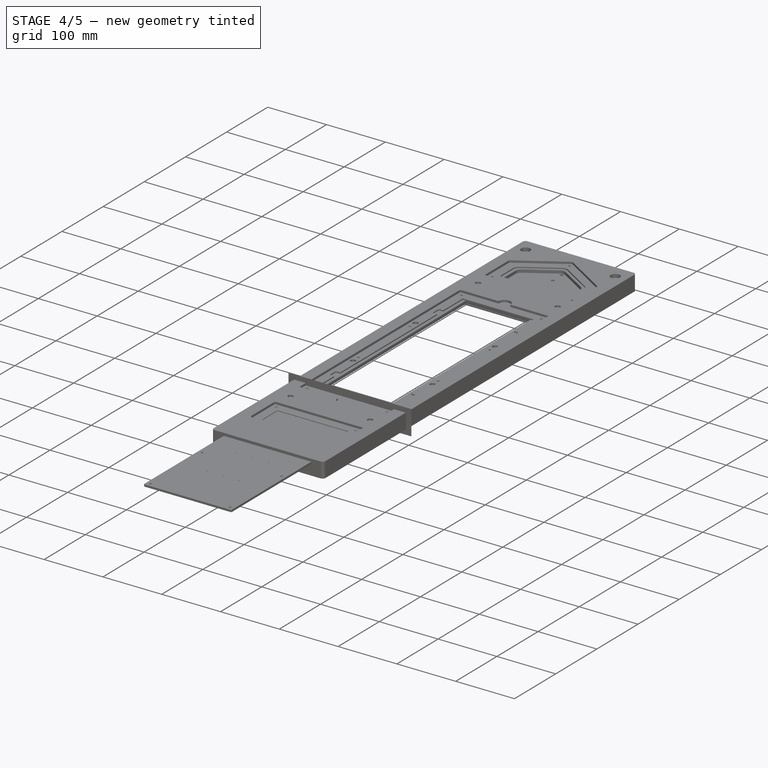
[diagram: stage 4 of 5 — iso view after this stage's code; geometry added in this stage tinted green]
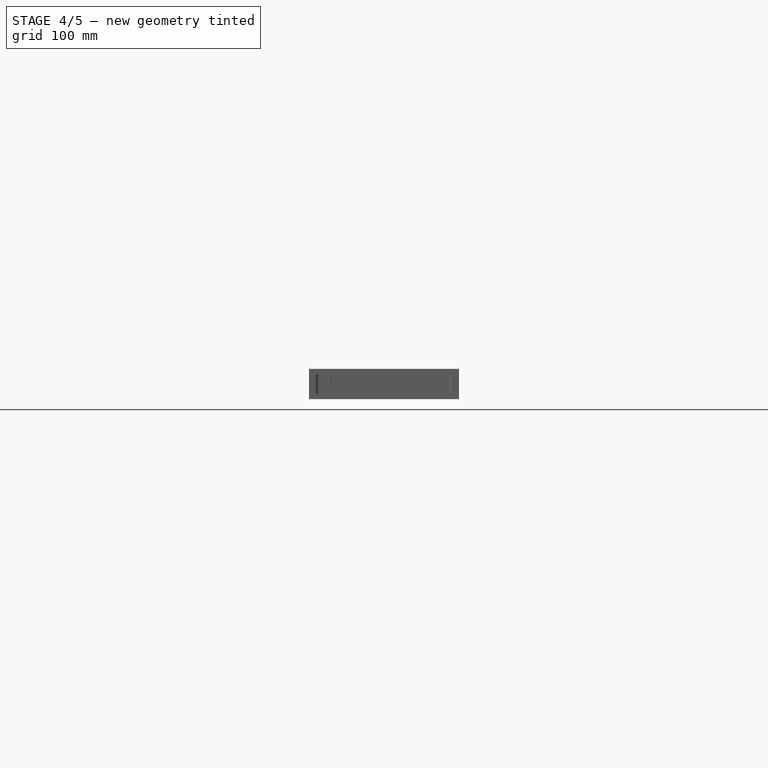
[diagram: stage 4 of 5 — front view after this stage's code; geometry added in this stage tinted green]
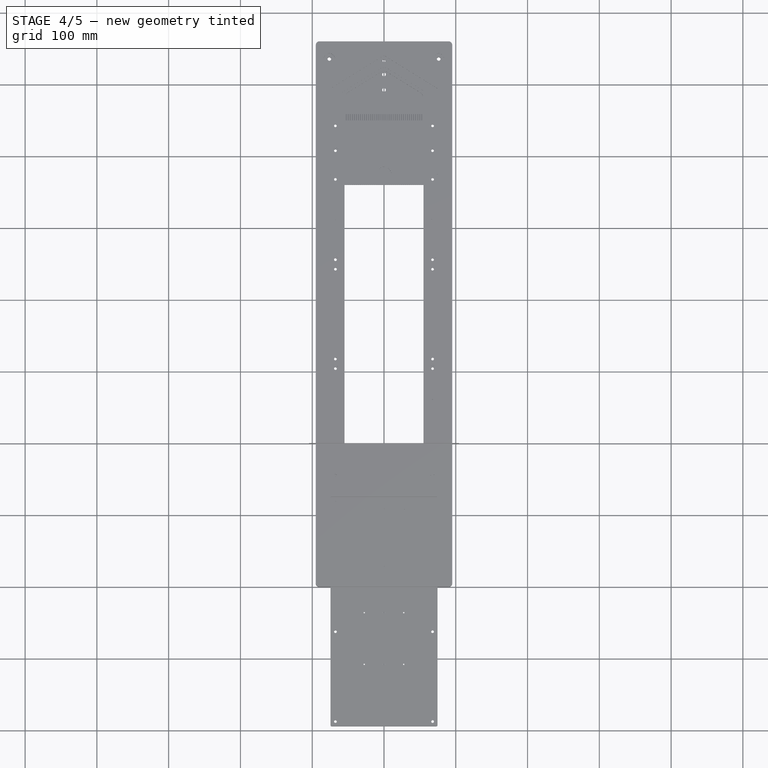
[diagram: stage 4 of 5 — top view after this stage's code; geometry added in this stage tinted green]
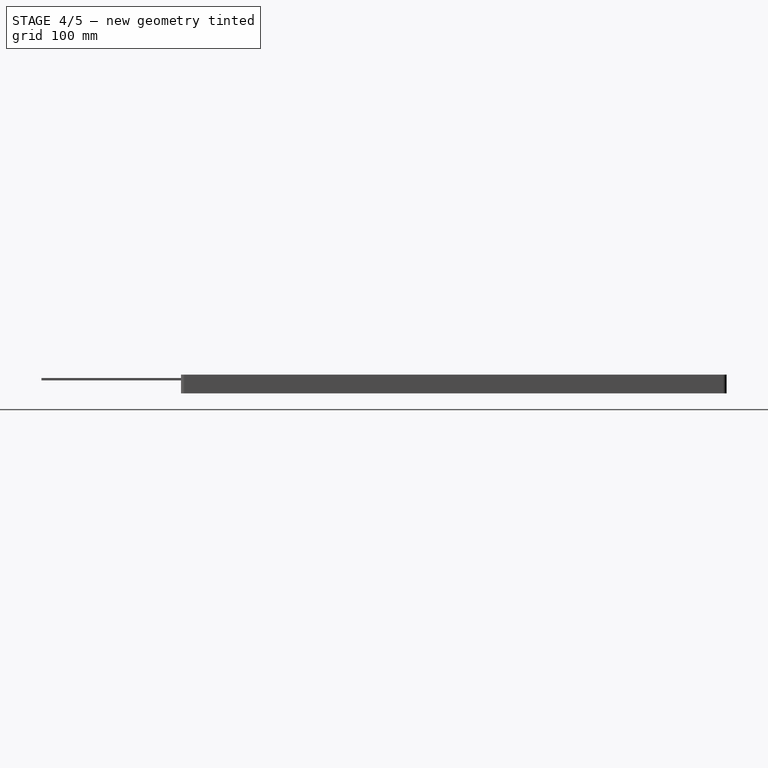
[diagram: stage 4 of 5 — right view after this stage's code; geometry added in this stage tinted green]
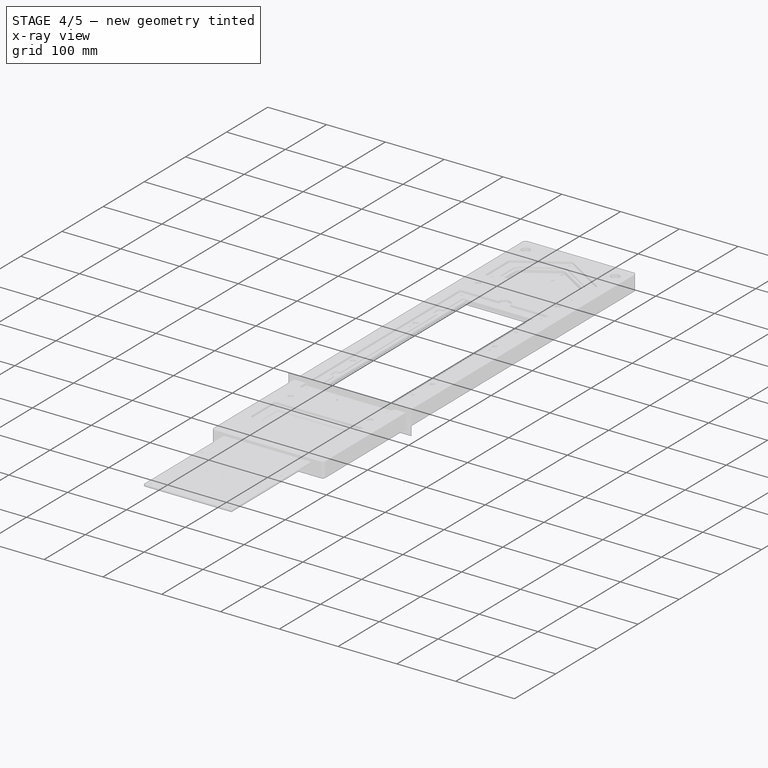
[diagram: stage 4 of 5 — x-ray composite at the iso view; earlier geometry ghosted, this stage's added geometry solid]
FEATURE [Spreadsheet::Sheet] Spreadsheet
  cells = A2='Design Parameters; A4='flow_section_length; B4(flow_section_length)==360 mm; A5='flow_section_width; B5(flow_section_width)==110 mm; A6='flow_section_height; B6(flow_section_height)==5 mm; A7='flow_section_aspect_ratio; B7(flow_section_aspect_ratio)==flow_section_length / flow_section_width; A9='comb_section_length; B9(comb_section_length)==90 mm; A10='comb_number_of_walls; B10(comb_number_of_walls)=38; A11='comb_number_of_gaps; B11(comb_number_of_gaps)==comb_number_of_walls + 1; A12='comb_wall_width; B12(comb_wall_width)==1 mm; A13='comb_gap_width; B13(comb_gap_width)==(flow_section_width - comb_number_of_walls * comb_wall_width) / comb_number_of_gaps; A15='gasket_thickness; B15(gasket_thickness)==0.396875 mm; A16='gasket_overlap; B16(gasket_overlap)==0.3 * inner_lid_overlap; A18='entrance_straight_length; B18(entrance_straight_length)==36 mm; A19='entrance_angled_length; B19(entrance_angled_length)==34 mm; A20='entrance_overall_length; B20(entrance_overall_length)==entrance_straight_length + entrance_angled_length; A21='entrance_fillet_radius; B21(entrance_fillet_radius)==10 mm; A23='inner_lid_overlap; B23(inner_lid_overlap)==5 mm; A24='inner_lid_length; B24(inner_lid_length)==flow_section_length; A25='inner_lid_width; B25(inner_lid_width)==flow_section_width + 2 * inner_lid_overlap; A26='inner_lid_thickness; B26(inner_lid_thickness)==1.5 mm; D26='1.5mm acrylic sheet; A27='inner_lid_side_margin; B27(inner_lid_side_margin)==0.2 mm; A28='inner_lid_face_margin; B28(inner_lid_face_margin)==0.2 mm; A29='inner_lid_fillet_radius; B29(inner_lid_fillet_radius)==1 mm; D29='remove this?; A31='outer_lid_overlap; B31(outer_lid_overlap)==15 mm; A32='outer_lid_length; B32(outer_lid_length)==flow_section_length + 2 * outer_lid_overlap; A33='outer_lid_width; B33(outer_lid_width)==inner_lid_width + 2 * outer_lid_overlap; A34='outer_lid_thickness; B34(outer_lid_thickness)==3 mm + gasket_thickness; D34='3mm acrylic sheet + 0.4mm gasgket; A35='outer_lid_side_margin; B35(outer_lid_side_margin)==0.2 mm; A36='outer_lid_face_margin; B36(outer_lid_face_margin)==0.2 mm; A38='main_body_side_pad; B38(main_body_side_pad)==20 mm; A39='main_body_length; B39(main_body_length)==flow_section_length + 2 * (comb_section_length + entrance_overall_length + inner_lid_overlap + outer_lid_overlap + main_body_side_pad); A40='main_body_width; B40(main_body_width)==outer_lid_width + 2 * main_body_side_pad; A41='main_body_height; B41(main_body_height)==flow_section_height + 2 * (inner_lid_thickness + 2 * inner_lid_face_margin) + 2 * (outer_lid_thickness + outer_lid_face_margin); A42='main_body_corner_fillet_radius; B42(main_body_corner_fillet_radius)==5 mm; A43='main_body_top_datum_plane_offset; B43(main_body_top_datum_plane_offset)==0.5 * main_body_height; A44='main_body_bottom_datum_plane_offset; B44(main_body_bottom_datum_plane_offset)==0.5 * main_body_height; A46='entrance_offset_from_front; B46(entrance_offset_from_front)==inner_lid_overlap + outer_lid_overlap + main_body_side_pad; A47='entrance_pocket_depth; B47(entrance_pocket_depth)==main_body_height - (inner_lid_thickness + 2 * inner_lid_face_margin) - (outer_lid_thickness + outer_lid_face_margin); A49='comb_offset_from_front; B49(comb_offset_from_front)==entrance_offset_from_front + entrance_overall_length; A50='comb_pocket_depth; B50(comb_pocket_depth)==entrance_pocket_depth; A51='comb_pattern_length; B51(comb_pattern_length)==flow_section_width - comb_gap_width; A52='comb_datum_plane_offset; B52(comb_datum_plane_offset)==comb_section_length + entrance_overall_length + inner_lid_overlap + outer_lid_overlap + main_body_side_pad; A54='top_inner_lid_pocket_width; B54(top_inner_lid_pocket_width)==inner_lid_width + 2 * inner_lid_side_margin; A55='top_inner_lid_pocket_depth; B55(top_inner_lid_pocket_depth)==outer_lid_thickness + outer_lid_face_margin + inner_lid_thickness + 2 * inner_lid_face_margin; A56='top_inner_lid_fillet_radius; B56(top_inner_lid_fillet_radius)==2 mm; A57='top_inner_lid_access_cutout_length; B57(top_inner_lid_access_cutout_length)==15 mm; A58='top_inner_lid_access_cutout_width; B58(top_inner_lid_access_cutout_width)==7.5 mm; A59='top_inner_lid_access_cutout_fillet_radius; B59(top_inner_lid_access_cutout_fillet_radius)==2 mm; A60='top_inner_lid_access_cutout_pocket_depth; B60(top_inner_lid_access_cutout_pocket_depth)==inner_lid_thickness + 2 * inner_lid_face_margin; A62='top_entrance_inner_lid_offset_from_front; B62(top_entrance_inner_lid_offset_from_front)==entrance_offset_from_front - (inner_lid_overlap + inner_lid_side_margin); A63='top_entrance_inner_lid_length; B63(top_entrance_inner_lid_length)==entrance_overall_length + inner_lid_overlap; A64='top_entrance_inner_lid_pocket_length; B64(top_entrance_inner_lid_pocket_length)==top_entrance_inner_lid_length + inner_lid_side_margin; A65='top_entrance_inner_lid_scale; B65(top_entrance_inner_lid_scale)==top_inner_lid_pocket_width / flow_section_width; A66='top_entrance_inner_lid_angled_length; B66(top_entrance_inner_lid_angled_length)==entrance_angled_length * top_entrance_inner_lid_scale; A67='top_entrance_inner_lid_pocket_angled_length; B67(top_entrance_inner_lid_pocket_angled_length)==entrance_angled_length * top_entrance_inner_lid_scale; A69='top_flow_section_inner_lid_offset_from_front; B69(top_flow_section_inner_lid_offset_from_front)==comb_datum_plane_offset; A70='top_flow_section_inner_lid_pocket_length; B70(top_flow_section_inner_lid_pocket_length)==0.5 * flow_section_length + 2 * (inner_lid_overlap + inner_lid_side_margin); A72='top_outer_lid_pocket_width; B72(top_outer_lid_pocket_width)==outer_lid_width + 2 * outer_lid_side_margin; A73='top_outer_lid_pocket_depth; B73(top_outer_lid_pocket_depth)==outer_lid_thickness + outer_lid_face_margin; A74='top_outer_lid_fillet_radius; B74(top_outer_lid_fillet_radius)==2 mm; A76='top_entrance_outer_lid_offset_from_front; B76(top_entrance_outer_lid_offset_from_front)==top_entrance_inner_lid_offset_from_front - (outer_lid_overlap + outer_lid_side_margin); A77='top_entrance_outer_lid_length; B77(top_entrance_outer_lid_length)==entrance_overall_length + 1 * (inner_lid_overlap + inner_lid_side_margin) + 2 * outer_lid_overlap; A78='top_entrance_outer_lid_pocket_length; B78(top_entrance_outer_lid_pocket_length)==top_entrance_outer_lid_length + 2 * outer_lid_side_margin; A79='top_entrance_outer_lid_scale; B79(top_entrance_outer_lid_scale)==top_outer_lid_pocket_width / flow_section_width; A80='top_entrance_outer_lid_angled_length; B80(top_entrance_outer_lid_angled_length)==entrance_angled_length * top_entrance_outer_lid_scale; A81='top_entrance_outer_lid_pocket_angled_length; B81(top_entrance_outer_lid_pocket_angled_length)==entrance_angled_length * top_entrance_outer_lid_scale; A83='top_flow_section_outer_lid_offset_from_front; B83(top_flow_section_outer_lid_offset_from_front)==comb_datum_plane_offset - (outer_lid_overlap + outer_lid_side_margin); A84='top_flow_section_outer_lid_length; B84(top_flow_section_outer_lid_length)==flow_section_length + 2 * outer_lid_overlap; A85='top_flow_section_outer_lid_pocket_length; B85(top_flow_section_outer_lid_pocket_length)==0.5 * top_flow_section_outer_lid_length + outer_lid_side_margin; A86='top_flow_section_outer_lid_access_cutout_diameter; B86(top_flow_section_outer_lid_access_cutout_diameter)==20 mm; A88='bottom_inner_lid_pocket_width; B88(bottom_inner_lid_pocket_width)==inner_lid_width + 2 * inner_lid_side_margin; A89='bottom_inner_lid_pocket_depth; B89(bottom_inner_lid_pocket_depth)==outer_lid_thickness + outer_lid_face_margin + inner_lid_thickness + 2 * inner_lid_face_margin; A90='bottom_inner_lid_fillet_radius; B90(bottom_inner_lid_fillet_radius)==2 mm; A91='bottom_inner_lid_offset_from_front; B91(bottom_inner_lid_offset_from_front)==comb_datum_plane_offset; A92='bottom_inner_lid_pocket_length; B92(bottom_inner_lid_pocket_length)==0.5 * flow_section_length + 2 * (inner_lid_overlap + inner_lid_side_margin); A94='bottom_outer_lid_pocket_width; B94(bottom_outer_lid_pocket_width)==outer_lid_width + 2 * outer_lid_side_margin; A95='bottom_outer_lid_pocket_depth; B95(bottom_outer_lid_pocket_depth)==outer_lid_thickness + outer_lid_face_margin; A96='bottom_outer_lid_fillet_radius; B96(bottom_outer_lid_fillet_radius)==2 mm; A97='bottom_outer_lid_extra_overlap; B97(bottom_outer_lid_extra_overlap)==40 mm; A98='bottom_outer_lid_offset_from_front; B98(bottom_outer_lid_offset_from_front)==comb_datum_plane_offset - (outer_lid_overlap + outer_lid_side_margin + bottom_outer_lid_extra_overlap); A99='bottom_outer_lid_length; B99(bottom_outer_lid_length)==flow_section_length + 2 * outer_lid_overlap + 2 * bottom_outer_lid_extra_overlap; A100='bottom_outer_lid_pocket_length; B100(bottom_outer_lid_pocket_length)==0.5 * bottom_outer_lid_length + outer_lid_side_margin; A102='lid_mount_hole_diameter; B102(lid_mount_hole_diameter)==0.147 in; A103='lid_mount_hex_nut_minor_diameter; B103(lid_mount_hex_nut_minor_diameter)==0.3125 * 25.4 mm; A104='lid_mount_hex_nut_thickness; B104(lid_mount_hex_nut_thickness)==0.109375 in; A105='lid_mount_hex_nut_side_margin; B105(lid_mount_hex_nut_side_margin)==0.2 mm; A106='lid_mount_hex_nut_face_margin; B106(lid_mount_hex_nut_face_margin)==0.2 mm; A107='lid_mount_screw_head_diameter; B107(lid_mount_screw_head_diameter)==0.226 * 25.4 mm; A108='lid_mount_thumb_screw_head_diameter; B108(lid_mount_thumb_screw_head_diameter)==0.375 * 25.4 mm; A109='lid_mount_hex_nut_pocket_minor_diameter; B109(lid_mount_hex_nut_pocket_minor_diameter)==lid_mount_hex_nut_minor_diameter + 2 * lid_mount_hex_nut_side_margin; A110='lid_mount_hex_nut_pocket_depth; B110(lid_mount_hex_nut_pocket_depth)==lid_mount_hex_nut_thickness + lid_mount_hex_nut_face_margin; A112='top_outer_lid_datum_plane_offset; B112(top_outer_lid_datum_plane_offset)==0.5 * main_body_height - top_outer_lid_pocket_depth; A113='bottom_outer_lid_datum_plane_offset; B113(bottom_outer_lid_datum_plane_offset)==0.5 * main_body_height - bottom_outer_lid_pocket_depth; A115='top_flow_section_outer_lid_mount_hole_separation; B115(top_flow_section_outer_lid_mount_hole_separation)==top_outer_lid_pocket_width - outer_lid_overlap; A116='top_entrance_outer_lid_mount_hole_separation; B116(top_entrance_outer_lid_mount_hole_separation)==top_outer_lid_pocket_width - outer_lid_overlap; A118='bottom_outer_lid_mout_hole_from_front; B118(bottom_outer_lid_mout_hole_from_front)==bottom_outer_lid_offset_from_front + outer_lid_overlap * 0.5; A119='bottom_outer_lid_mount_hole_separation; B119(bottom_outer_lid_mount_hole_separation)==top_outer_lid_pocket_width - outer_lid_overlap; A121='bottom_boss_height; B121(bottom_boss_height)==10 mm; A122='bottom_boss_arm_width; B122(bottom_boss_arm_width)==main_body_side_pad; +74 more cells
FEATURE [Sketcher::SketchObject] Sketch  label="BaseSketch"
  FullyConstrained = true
  MapMode = 5
  Support = -> [XY_Plane]
  expr: Constraints[12] = Spreadsheet.main_body_corner_fillet_radius
  expr: Constraints[13] = Spreadsheet.main_body_width
  expr: Constraints[14] = Spreadsheet.main_body_length * 0.5
  expr: Constraints[31] = Spreadsheet.flow_section_length * 0.5
  expr: Constraints[32] = Spreadsheet.flow_section_width
  sketch-geometry (14):
    g0: LineSegment StartX=-95 StartY=380 StartZ=0 EndX=95 EndY=380 EndZ=0
    g1: LineSegment StartX=95 StartY=380 StartZ=0 EndX=95 EndY=5 EndZ=0
    g2: ArcOfCircle CenterX=90 CenterY=5 CenterZ=0 NormalX=0 NormalY=0 NormalZ=1 AngleXU=0 Radius=5 StartAngle=4.71239 EndAngle=6.28319
    g3: LineSegment StartX=90 StartY=1.35207e-11 StartZ=0 EndX=-90 EndY=1.35207e-11 EndZ=0
    g4: ArcOfCircle CenterX=-90 CenterY=5 CenterZ=0 NormalX=0 NormalY=0 NormalZ=1 AngleXU=0 Radius=5 StartAngle=3.14159 EndAngle=4.71239
    g5: LineSegment StartX=-95 StartY=5 StartZ=0 EndX=-95 EndY=380 EndZ=0
    g6: GeomPoint X=-95 Y=380 Z=0
    g7: GeomPoint X=95 Y=0 Z=0
    g8: LineSegment StartX=-55 StartY=380 StartZ=0 EndX=55 EndY=380 EndZ=0
    g9: LineSegment StartX=55 StartY=380 StartZ=0 EndX=55 EndY=200 EndZ=0
    g10: LineSegment StartX=55 StartY=200 StartZ=0 EndX=-55 EndY=200 EndZ=0
    g11: LineSegment StartX=-55 StartY=200 StartZ=0 EndX=-55 EndY=380 EndZ=0
    g12: LineSegment StartX=-95 StartY=380 StartZ=0 EndX=-55 EndY=380 EndZ=0
    g13: LineSegment StartX=55 StartY=380 StartZ=0 EndX=95 EndY=380 EndZ=0
  constraints (33):
    c: Tangent(g1,g2) = 1.5708
    c: Tangent(g2,g3) = 1.5708
    c: Tangent(g3,g4) = 1.5708
    c: Tangent(g4,g5) = 1.5708
    c: Horizontal(g0)
    c: Horizontal(g3)
    c: Vertical(g1)
    c: Vertical(g5)
    c: Equal(g2,g4)
    c: PointOnObject(g7,g1)
    c: PointOnObject(g7,g3)
    c: Symmetric(g3,g2,g-1)
    c: Radius(g2) = 5
    c: DistanceX(g4,g1) = 190
    c: DistanceY(g2,g0) = 380
    c: Coincident(g0,g6)
    c: Coincident(g0,g5)
    c: Coincident(g1,g0)
    c: Coincident(g8,g9)
    c: Coincident(g9,g10)
    c: Coincident(g10,g11)
    c: Coincident(g11,g8)
    c: Horizontal(g10)
    c: Vertical(g9)
    c: Vertical(g11)
    c: Symmetric(g8,g8,g-2)
    c: Horizontal(g12)
    c: Coincident(g12,g5)
    c: Coincident(g12,g11)
    c: Coincident(g13,g9)
    c: Coincident(g13,g1)
    c: DistanceY(g9,g9) = 180
    c: DistanceX(g10,g10) = 110
FEATURE [PartDesign::Pad] Pad  label="BasePad"
  Direction = (0,0,1)
  Length = 15.9938
  Length2 = 10
  Midplane = true
  Profile = -> Sketch
  ReferenceAxis = -> Sketch [N_Axis]
  Type = 0
  expr: Length = Spreadsheet.main_body_height
FEATURE [PartDesign::Plane] DatumPlane  label="TopDatumPlane"
  AttachmentOffset = pos=(0,0,7.99688) rot=(0,0,1;0rad)
  Length = 60
  MapMode = 5
  Placement = pos=(0,0,7.99688) rot=(0,0,1;0rad)
  ResizeMode = 0
  Support = -> [XY_Plane]
  Width = 60
  expr: .AttachmentOffset.Base.z = Spreadsheet.main_body_top_datum_plane_offset
FEATURE [Sketcher::SketchObject] Sketch003  label="EntrancySketch"
  FullyConstrained = true
  MapMode = 5
  Placement = pos=(0,0,7.99688) rot=(0,0,1;0rad)
  Support = -> [DatumPlane]
  expr: Constraints[10] = Spreadsheet.flow_section_width
  expr: Constraints[18] = Spreadsheet.entrance_angled_length
  expr: Constraints[19] = Spreadsheet.entrance_straight_length
  expr: Constraints[25] = Spreadsheet.entrance_fillet_radius
  expr: Constraints[9] = Spreadsheet.entrance_offset_from_front
  sketch-geometry (15):
    g0: LineSegment StartX=0 StartY=0 StartZ=0 EndX=0 EndY=40 EndZ=0
    g1: LineSegment StartX=-55 StartY=110 StartZ=0 EndX=55 EndY=110 EndZ=0
    g2: LineSegment StartX=55 StartY=40 StartZ=0 EndX=-55 EndY=40 EndZ=0
    g3: LineSegment StartX=-55 StartY=40 StartZ=0 EndX=-55 EndY=74 EndZ=0
    g4: LineSegment StartX=-55 StartY=79.5747 StartZ=0 EndX=-55 EndY=110 EndZ=0
    g5: LineSegment StartX=55 StartY=110 StartZ=0 EndX=55 EndY=79.5747 EndZ=0
    g6: LineSegment StartX=55 StartY=74 StartZ=0 EndX=55 EndY=40 EndZ=0
    g7: LineSegment StartX=-50.2582 StartY=71.0687 StartZ=0 EndX=-5.25822 EndY=43.2505 EndZ=0
    g8: LineSegment StartX=5.25822 StartY=43.2505 StartZ=0 EndX=50.2582 EndY=71.0687 EndZ=0
    g9: ArcOfCircle CenterX=-45 CenterY=79.5747 CenterZ=0 NormalX=0 NormalY=0 NormalZ=1 AngleXU=0 Radius=10 StartAngle=3.14159 EndAngle=4.15871
    g10: GeomPoint X=-55 Y=74 Z=0
    g11: ArcOfCircle CenterX=45 CenterY=79.5747 CenterZ=0 NormalX=0 NormalY=0 NormalZ=1 AngleXU=0 Radius=10 StartAngle=5.26607 EndAngle=6.28319
    g12: GeomPoint X=55 Y=74 Z=0
    g13: ArcOfCircle CenterX=7.2e-15 CenterY=51.7565 CenterZ=0 NormalX=0 NormalY=0 NormalZ=1 AngleXU=0 Radius=10 StartAngle=4.15871 EndAngle=5.26607
    g14: GeomPoint X=0 Y=40 Z=0
  constraints (36):
    c: Vertical(g0)
    c: Coincident(g-1,g0)
    c: Coincident(g1,g5)
    c: Coincident(g6,g2)
    c: Coincident(g2,g3)
    c: Coincident(g4,g1)
    c: Horizontal(g1)
    c: Horizontal(g2)
    c: Symmetric(g2,g6,g0)
    c: DistanceY(g0,g0) = 40
    c: DistanceX(g1,g1) = 110
    c: Coincident(g3,g10)
    c: Vertical(g3)
    c: Vertical(g4)
    c: Coincident(g12,g6)
    c: Vertical(g5)
    c: Vertical(g6)
    c: Equal(g3,g6)
    c: DistanceY(g6,g6) = 34
    c: DistanceY(g12,g5) = 36
    c: Coincident(g14,g0)
    c: PointOnObject(g10,g4)
    c: PointOnObject(g10,g7)
    c: Tangent(g4,g9) = 1.5708
    c: Tangent(g7,g9) = -1.5708
    c: Radius(g9) = 10
    c: PointOnObject(g12,g8)
    c: PointOnObject(g12,g5)
    c: Tangent(g8,g11) = -1.5708
    c: Tangent(g5,g11) = 1.5708
    c: Equal(g11,g9)
    c: PointOnObject(g14,g7)
    c: PointOnObject(g14,g8)
    c: Tangent(g7,g13) = -1.5708
    c: Tangent(g8,g13) = -1.5708
    c: Equal(g13,g9)
FEATURE [PartDesign::Pocket] Pocket  label="EntrancePocket"
  BaseFeature = -> Pad
  Direction = (0,0,-1)
  Length = 10.4969
  Length2 = 5
  Profile = -> Sketch003
  ReferenceAxis = -> Sketch003 [N_Axis]
  Type = 0
  expr: Length = Spreadsheet.entrance_pocket_depth
FEATURE [PartDesign::Plane] DatumPlane001  label="CombDatumPlane"
  AttachmentOffset = pos=(0,0,200) rot=(0,0,1;0rad)
  Length = 60
  MapMode = 5
  Placement = pos=(0,200,4.44e-14) rot=(0,0.707107,0.707107;3.14159rad)
  ResizeMode = 0
  Support = -> [XZ_Plane]
  Width = 60
  expr: .AttachmentOffset.Base.z = Spreadsheet.comb_datum_plane_offset
FEATURE [Sketcher::SketchObject] Sketch004  label="CombGapSketch"
  FullyConstrained = true
  MapMode = 5
  Placement = pos=(0,200,4.44e-14) rot=(0,0.707107,0.707107;3.14159rad)
  Support = -> [DatumPlane001]
  expr: Constraints[12] = Spreadsheet.flow_section_height
  expr: Constraints[13] = Spreadsheet.comb_gap_width
  expr: Constraints[2] = Spreadsheet.flow_section_width
  sketch-geometry (5):
    g0: LineSegment StartX=-55 StartY=0 StartZ=0 EndX=55 EndY=0 EndZ=0
    g1: LineSegment StartX=53.1538 StartY=-2.5 StartZ=0 EndX=55 EndY=-2.5 EndZ=0
    g2: LineSegment StartX=55 StartY=-2.5 StartZ=0 EndX=55 EndY=2.5 EndZ=0
    g3: LineSegment StartX=55 StartY=2.5 StartZ=0 EndX=53.1538 EndY=2.5 EndZ=0
    g4: LineSegment StartX=53.1538 StartY=2.5 StartZ=0 EndX=53.1538 EndY=-2.5 EndZ=0
  constraints (14):
    c: Horizontal(g0)
    c: Symmetric(g0,g0,g-1)
    c: DistanceX(g0,g0) = 110
    c: Coincident(g1,g2)
    c: Coincident(g2,g3)
    c: Coincident(g3,g4)
    c: Coincident(g4,g1)
    c: Horizontal(g1)
    c: Horizontal(g3)
    c: Vertical(g2)
    c: Vertical(g4)
    c: Symmetric(g1,g2,g0)
    c: DistanceY(g4,g4) = 5
    c: DistanceX(g3,g3) = 1.84615
FEATURE [PartDesign::Pocket] Pocket001  label="CombGapPocket"
  BaseFeature = -> Pocket
  Direction = (0,-1,-2e-16)
  Length = 90
  Length2 = 5
  Profile = -> Sketch004
  ReferenceAxis = -> Sketch004 [N_Axis]
  Type = 0
  expr: Length = Spreadsheet.comb_section_length
FEATURE [PartDesign::LinearPattern] LinearPattern  label="CombLinearPattern"
  BaseFeature = -> Pocket001
  Direction = -> Sketch004 [H_Axis]
  Length = 108.154
  Occurrences = 39
  Originals = -> [Pocket001]
  Reversed = true
  expr: Length = Spreadsheet.comb_pattern_length
  expr: Occurrences = Spreadsheet.comb_number_of_gaps
FEATURE [Sketcher::SketchObject] Sketch005  label="TopEntranceInnerLidSketch"
  FullyConstrained = true
  MapMode = 5
  Placement = pos=(0,0,7.99688) rot=(0,0,1;0rad)
  Support = -> [DatumPlane]
  expr: Constraints[16] = Spreadsheet.top_entrance_inner_lid_pocket_angled_length
  expr: Constraints[17] = Spreadsheet.top_inner_lid_pocket_width
  expr: Constraints[2] = Spreadsheet.top_entrance_inner_lid_offset_from_front
  expr: Constraints[33] = Spreadsheet.entrance_fillet_radius
  expr: Constraints[43] = Spreadsheet.top_inner_lid_fillet_radius
  expr: Constraints[8] = Spreadsheet.top_entrance_inner_lid_pocket_length
  sketch-geometry (19):
    g0: LineSegment StartX=0 StartY=34.8 StartZ=0 EndX=0 EndY=0 EndZ=0
    g1: LineSegment StartX=-58.2 StartY=110 StartZ=0 EndX=58.2 EndY=110 EndZ=0
    g2: LineSegment StartX=60.2 StartY=34.8 StartZ=0 EndX=-60.2 EndY=34.8 EndZ=0
    g3: LineSegment StartX=-60.2 StartY=34.8 StartZ=0 EndX=-60.2 EndY=72.0145 EndZ=0
    g4: LineSegment StartX=-60.2 StartY=77.5892 StartZ=0 EndX=-60.2 EndY=108 EndZ=0
    g5: LineSegment StartX=60.2 StartY=108 StartZ=0 EndX=60.2 EndY=77.5892 EndZ=0
    g6: LineSegment StartX=60.2 StartY=72.0145 StartZ=0 EndX=60.2 EndY=34.8 EndZ=0
    g7: LineSegment StartX=-55.4582 StartY=69.0833 StartZ=0 EndX=-5.25822 EndY=38.0505 EndZ=0
    g8: LineSegment StartX=5.25822 StartY=38.0505 StartZ=0 EndX=55.4582 EndY=69.0833 EndZ=0
    g9: ArcOfCircle CenterX=-50.2 CenterY=77.5892 CenterZ=0 NormalX=0 NormalY=0 NormalZ=1 AngleXU=0 Radius=10 StartAngle=3.14159 EndAngle=4.15871
    g10: GeomPoint X=-60.2 Y=72.0145 Z=0
    g11: ArcOfCircle CenterX=50.2 CenterY=77.5892 CenterZ=0 NormalX=0 NormalY=0 NormalZ=1 AngleXU=0 Radius=10 StartAngle=5.26607 EndAngle=6.28319
    g12: GeomPoint X=60.2 Y=72.0145 Z=0
    g13: ArcOfCircle CenterX=5.2e-15 CenterY=46.5565 CenterZ=0 NormalX=0 NormalY=0 NormalZ=1 AngleXU=0 Radius=10 StartAngle=4.15871 EndAngle=5.26607
    g14: GeomPoint X=0 Y=34.8 Z=0
    g15: ArcOfCircle CenterX=-58.2 CenterY=108 CenterZ=0 NormalX=0 NormalY=0 NormalZ=1 AngleXU=0 Radius=2 StartAngle=1.5708 EndAngle=3.14159
    g16: GeomPoint X=-60.2 Y=110 Z=0
    g17: ArcOfCircle CenterX=58.2 CenterY=108 CenterZ=0 NormalX=0 NormalY=0 NormalZ=1 AngleXU=0 Radius=2 StartAngle=-9e-16 EndAngle=1.5708
    g18: GeomPoint X=60.2 Y=110 Z=0
  constraints (44):
    c: Vertical(g0)
    c: Coincident(g-1,g0)
    c: DistanceY(g0,g0) = 34.8
    c: Coincident(g6,g2)
    c: Coincident(g2,g3)
    c: Horizontal(g1)
    c: Horizontal(g2)
    c: Symmetric(g2,g6,g0)
    c: DistanceY(g3,g16) = 75.2
    c: Coincident(g3,g10)
    c: Vertical(g3)
    c: Vertical(g4)
    c: Coincident(g12,g6)
    c: Vertical(g5)
    c: Vertical(g6)
    c: Equal(g3,g6)
    c: DistanceY(g6,g6) = 37.2145
    c: DistanceX(g2,g2) = 120.4
    c: Coincident(g14,g0)
    c: PointOnObject(g10,g4)
    c: PointOnObject(g10,g7)
    c: Tangent(g4,g9) = 1.5708
    c: Tangent(g7,g9) = -1.5708
    c: PointOnObject(g12,g8)
    c: PointOnObject(g12,g5)
    c: Tangent(g8,g11) = -1.5708
    c: Tangent(g5,g11) = 1.5708
    c: Equal(g9,g11)
    c: PointOnObject(g14,g7)
    c: PointOnObject(g14,g8)
    c: Tangent(g7,g13) = -1.5708
    c: Tangent(g8,g13) = -1.5708
    c: Equal(g9,g13)
    c: Radius(g11) = 10
    c: PointOnObject(g16,g4)
    c: PointOnObject(g16,g1)
    c: Tangent(g4,g15) = 1.5708
    c: Tangent(g1,g15) = 1.5708
    c: PointOnObject(g18,g1)
    c: PointOnObject(g18,g5)
    c: Tangent(g1,g17) = 1.5708
    c: Tangent(g5,g17) = 1.5708
    c: Equal(g15,g17)
    c: Radius(g17) = 2
FEATURE [PartDesign::Pocket] Pocket002  label="TopEntranceInnerLidPocket"
  BaseFeature = -> LinearPattern
  Direction = (0,0,-1)
  Length = 5.49688
  Length2 = 5
  Profile = -> Sketch005
  ReferenceAxis = -> Sketch005 [N_Axis]
  Type = 0
  expr: Length = Spreadsheet.top_inner_lid_pocket_depth
FEATURE [Sketcher::SketchObject] Sketch006  label="TopFlowSectionInnerLidSketch"
  FullyConstrained = true
  MapMode = 5
  Placement = pos=(0,0,7.99688) rot=(0,0,1;0rad)
  Support = -> [DatumPlane]
  expr: Constraints[10] = Spreadsheet.top_inner_lid_pocket_width
  expr: Constraints[11] = Spreadsheet.top_flow_section_inner_lid_pocket_length
  expr: Constraints[2] = Spreadsheet.top_flow_section_inner_lid_offset_from_front
  sketch-geometry (7):
    g0: LineSegment StartX=0 StartY=200 StartZ=0 EndX=0 EndY=0 EndZ=0
    g1: LineSegment StartX=-60.2 StartY=390.4 StartZ=0 EndX=60.2 EndY=390.4 EndZ=0
    g2: LineSegment StartX=60.2 StartY=390.4 StartZ=0 EndX=60.2 EndY=200 EndZ=0
    g3: LineSegment StartX=60.2 StartY=200 StartZ=0 EndX=-60.2 EndY=200 EndZ=0
    g4: LineSegment StartX=-60.2 StartY=200 StartZ=0 EndX=-60.2 EndY=390.4 EndZ=0
    g5: GeomPoint X=-60.2 Y=200 Z=0
    g6: GeomPoint X=60.2 Y=200 Z=0
  constraints (16):
    c: Vertical(g0)
    c: Coincident(g0,g-1)
    c: DistanceY(g0,g0) = 200
    c: Coincident(g1,g2)
    c: Coincident(g4,g1)
    c: Horizontal(g1)
    c: Horizontal(g3)
    c: Vertical(g2)
    c: Vertical(g4)
    c: Symmetric(g5,g6,g0)
    c: DistanceX(g5,g6) = 120.4
    c: DistanceY(g6,g2) = 190.4
    c: Coincident(g4,g3)
    c: Coincident(g4,g5)
    c: Coincident(g6,g3)
    c: Coincident(g6,g2)
FEATURE [PartDesign::Pocket] Pocket003  label="TopFlowSectionInnerLidPocket"
  BaseFeature = -> Pocket002
  Direction = (0,0,-1)
  Length = 5.49688
  Length2 = 5
  Profile = -> Sketch006
  ReferenceAxis = -> Sketch006 [N_Axis]
  Type = 0
  expr: Length = Spreadsheet.top_inner_lid_pocket_depth
FEATURE [Sketcher::SketchObject] Sketch007  label="TopEntranceOuterLidSketch"
  FullyConstrained = true
  MapMode = 5
  Placement = pos=(0,0,7.99688) rot=(0,0,1;0rad)
  Support = -> [DatumPlane]
  expr: Constraints[17] = Spreadsheet.top_entrance_outer_lid_pocket_angled_length
  expr: Constraints[2] = Spreadsheet.top_entrance_outer_lid_offset_from_front
  expr: Constraints[43] = Spreadsheet.top_outer_lid_fillet_radius
  expr: Constraints[8] = Spreadsheet.top_outer_lid_pocket_width
  expr: Constraints[9] = Spreadsheet.top_entrance_outer_lid_pocket_length
  sketch-geometry (19):
    g0: LineSegment StartX=0 StartY=19.6 StartZ=0 EndX=0 EndY=0 EndZ=0
    g1: LineSegment StartX=-73.2 StartY=125.2 StartZ=0 EndX=73.2 EndY=125.2 EndZ=0
    g2: LineSegment StartX=75.2 StartY=19.6 StartZ=0 EndX=-75.2 EndY=19.6 EndZ=0
    g3: LineSegment StartX=-75.2 StartY=19.6 StartZ=0 EndX=-75.2 EndY=66.0873 EndZ=0
    g4: LineSegment StartX=-75.2 StartY=67.2022 StartZ=0 EndX=-75.2 EndY=123.2 EndZ=0
    g5: LineSegment StartX=75.2 StartY=123.2 StartZ=0 EndX=75.2 EndY=67.2022 EndZ=0
    g6: LineSegment StartX=75.2 StartY=66.0873 StartZ=0 EndX=75.2 EndY=19.6 EndZ=0
    g7: LineSegment StartX=-74.2516 StartY=65.501 StartZ=0 EndX=-1.05164 EndY=20.2501 EndZ=0
    g8: LineSegment StartX=1.05164 StartY=20.2501 StartZ=0 EndX=74.2516 EndY=65.501 EndZ=0
    g9: ArcOfCircle CenterX=-73.2 CenterY=123.2 CenterZ=0 NormalX=0 NormalY=0 NormalZ=1 AngleXU=0 Radius=2 StartAngle=1.5708 EndAngle=3.14159
    g10: GeomPoint X=-75.2 Y=125.2 Z=0
    g11: ArcOfCircle CenterX=73.2 CenterY=123.2 CenterZ=0 NormalX=0 NormalY=0 NormalZ=1 AngleXU=0 Radius=2 StartAngle=1.8e-15 EndAngle=1.5708
    g12: GeomPoint X=75.2 Y=125.2 Z=0
    g13: ArcOfCircle CenterX=-73.2 CenterY=67.2022 CenterZ=0 NormalX=0 NormalY=0 NormalZ=1 AngleXU=0 Radius=2 StartAngle=3.14159 EndAngle=4.15871
    g14: GeomPoint X=-75.2 Y=66.0873 Z=0
    g15: ArcOfCircle CenterX=-8e-16 CenterY=21.9513 CenterZ=0 NormalX=0 NormalY=0 NormalZ=1 AngleXU=0 Radius=2 StartAngle=4.15871 EndAngle=5.26607
    g16: GeomPoint X=0 Y=19.6 Z=0
    g17: ArcOfCircle CenterX=73.2 CenterY=67.2022 CenterZ=0 NormalX=0 NormalY=0 NormalZ=1 AngleXU=0 Radius=2 StartAngle=5.26607 EndAngle=6.28319
    g18: GeomPoint X=75.2 Y=66.0873 Z=0
  constraints (44):
    c: Vertical(g0)
    c: Coincident(g0,g-1)
    c: DistanceY(g0,g0) = 19.6
    c: Coincident(g6,g2)
    c: Coincident(g2,g3)
    c: Horizontal(g1)
    c: Horizontal(g2)
    c: Symmetric(g2,g6,g0)
    c: DistanceX(g2,g2) = 150.4
    c: DistanceY(g3,g10) = 105.6
    c: Coincident(g3,g14)
    c: Vertical(g3)
    c: Vertical(g4)
    c: Coincident(g18,g6)
    c: Vertical(g5)
    c: Vertical(g6)
    c: Equal(g3,g6)
    c: DistanceY(g6,g6) = 46.4873
    c: Coincident(g16,g0)
    c: PointOnObject(g10,g4)
    c: PointOnObject(g10,g1)
    c: Tangent(g4,g9) = 1.5708
    c: Tangent(g1,g9) = 1.5708
    c: PointOnObject(g12,g1)
    c: PointOnObject(g12,g5)
    c: Tangent(g1,g11) = 1.5708
    c: Tangent(g5,g11) = 1.5708
    c: PointOnObject(g14,g4)
    c: PointOnObject(g14,g7)
    c: Tangent(g4,g13) = 1.5708
    c: Tangent(g7,g13) = -1.5708
    c: PointOnObject(g16,g7)
    c: PointOnObject(g16,g8)
    c: Tangent(g7,g15) = -1.5708
    c: Tangent(g8,g15) = -1.5708
    c: PointOnObject(g18,g8)
    c: PointOnObject(g18,g5)
    c: Tangent(g8,g17) = -1.5708
    c: Tangent(g5,g17) = 1.5708
    c: Equal(g9,g13)
    c: Equal(g13,g15)
    c: Equal(g15,g17)
    c: Equal(g17,g11)
    c: Radius(g11) = 2
FEATURE [PartDesign::Pocket] Pocket004  label="TopEntranceOuterLidPocket"
  BaseFeature = -> Pocket003
  Direction = (0,0,-1)
  Length = 3.59688
  Length2 = 5
  Profile = -> Sketch007
  ReferenceAxis = -> Sketch007 [N_Axis]
  Type = 0
  expr: Length = Spreadsheet.top_outer_lid_pocket_depth
FEATURE [Sketcher::SketchObject] Sketch008  label="TopEntranceLidCheckSketch"
  FullyConstrained = true
  MapMode = 5
  Placement = pos=(0,0,7.99688) rot=(0,0,1;0rad)
  Support = -> [DatumPlane]
  expr: Constraints[18] = Spreadsheet.flow_section_width
  expr: Constraints[19] = Spreadsheet.entrance_overall_length
  expr: Constraints[1] = Spreadsheet.entrance_offset_from_front
  expr: Constraints[29] = Spreadsheet.top_inner_lid_pocket_width
  expr: Constraints[30] = Spreadsheet.top_entrance_inner_lid_pocket_length
  expr: Constraints[40] = Spreadsheet.top_outer_lid_pocket_width
  expr: Constraints[41] = Spreadsheet.top_entrance_outer_lid_pocket_length
  expr: Constraints[7] = Spreadsheet.top_entrance_inner_lid_offset_from_front
  expr: Constraints[8] = Spreadsheet.top_entrance_outer_lid_offset_from_front
  sketch-geometry (15):
    g0: LineSegment StartX=0 StartY=34.8 StartZ=0 EndX=0 EndY=40 EndZ=0
    g1: LineSegment StartX=0 StartY=0 StartZ=0 EndX=0 EndY=19.6 EndZ=0
    g2: LineSegment StartX=0 StartY=19.6 StartZ=0 EndX=0 EndY=34.8 EndZ=0
    g3: LineSegment StartX=-55 StartY=110 StartZ=0 EndX=55 EndY=110 EndZ=0
    g4: LineSegment StartX=55 StartY=110 StartZ=0 EndX=55 EndY=40 EndZ=0
    g5: LineSegment StartX=55 StartY=40 StartZ=0 EndX=-55 EndY=40 EndZ=0
    g6: LineSegment StartX=-55 StartY=40 StartZ=0 EndX=-55 EndY=110 EndZ=0
    g7: LineSegment StartX=-60.2 StartY=110 StartZ=0 EndX=60.2 EndY=110 EndZ=0
    g8: LineSegment StartX=60.2 StartY=110 StartZ=0 EndX=60.2 EndY=34.8 EndZ=0
    g9: LineSegment StartX=60.2 StartY=34.8 StartZ=0 EndX=-60.2 EndY=34.8 EndZ=0
    g10: LineSegment StartX=-60.2 StartY=34.8 StartZ=0 EndX=-60.2 EndY=110 EndZ=0
    g11: LineSegment StartX=-75.2 StartY=125.2 StartZ=0 EndX=75.2 EndY=125.2 EndZ=0
    g12: LineSegment StartX=75.2 StartY=125.2 StartZ=0 EndX=75.2 EndY=19.6 EndZ=0
    g13: LineSegment StartX=75.2 StartY=19.6 StartZ=0 EndX=-75.2 EndY=19.6 EndZ=0
    g14: LineSegment StartX=-75.2 StartY=19.6 StartZ=0 EndX=-75.2 EndY=125.2 EndZ=0
  constraints (42):
    c: Coincident(g-1,g1)
    c: DistanceY(g1,g0) = 40
    c: Coincident(g2,g0)
    c: Vertical(g0)
    c: Coincident(g1,g2)
    c: Vertical(g1)
    c: Vertical(g2)
    c: DistanceY(g0) = 34.8
    c: DistanceY(g1,g1) = 19.6
    c: Coincident(g3,g4)
    c: Coincident(g4,g5)
    c: Coincident(g5,g6)
    c: Coincident(g6,g3)
    c: Horizontal(g3)
    c: Horizontal(g5)
    c: Vertical(g4)
    c: Vertical(g6)
    c: Symmetric(g5,g4,g0)
    c: DistanceX(g3,g3) = 110
    c: DistanceY(g4,g4) = 70
    c: Coincident(g7,g8)
    c: Coincident(g8,g9)
    c: Coincident(g9,g10)
    c: Coincident(g10,g7)
    c: Horizontal(g7)
    c: Horizontal(g9)
    c: Vertical(g8)
    c: Vertical(g10)
    c: Symmetric(g9,g8,g0)
    c: DistanceX(g7,g7) = 120.4
    c: DistanceY(g8,g8) = 75.2
    c: Coincident(g11,g12)
    c: Coincident(g12,g13)
    c: Coincident(g13,g14)
    c: Coincident(g14,g11)
    c: Horizontal(g11)
    c: Horizontal(g13)
    c: Vertical(g12)
    c: Vertical(g14)
    c: Symmetric(g13,g12,g1)
    c: DistanceX(g11,g11) = 150.4
    c: DistanceY(g12,g12) = 105.6
FEATURE [Sketcher::SketchObject] Sketch009  label="TopFlowSectionOuterLidSketch"
  FullyConstrained = true
  MapMode = 5
  Placement = pos=(0,0,7.99688) rot=(0,0,1;0rad)
  Support = -> [DatumPlane]
  expr: Constraints[10] = Spreadsheet.top_outer_lid_pocket_width
  expr: Constraints[11] = Spreadsheet.top_flow_section_outer_lid_pocket_length
  expr: Constraints[21] = Spreadsheet.top_outer_lid_fillet_radius
  expr: Constraints[2] = Spreadsheet.top_flow_section_outer_lid_offset_from_front
  sketch-geometry (9):
    g0: LineSegment StartX=0 StartY=184.8 StartZ=0 EndX=0 EndY=0 EndZ=0
    g1: LineSegment StartX=-75.2 StartY=380 StartZ=0 EndX=75.2 EndY=380 EndZ=0
    g2: LineSegment StartX=75.2 StartY=380 StartZ=0 EndX=75.2 EndY=186.8 EndZ=0
    g3: LineSegment StartX=73.2 StartY=184.8 StartZ=0 EndX=-73.2 EndY=184.8 EndZ=0
    g4: LineSegment StartX=-75.2 StartY=186.8 StartZ=0 EndX=-75.2 EndY=380 EndZ=0
    g5: ArcOfCircle CenterX=-73.2 CenterY=186.8 CenterZ=0 NormalX=0 NormalY=0 NormalZ=1 AngleXU=0 Radius=2 StartAngle=3.14159 EndAngle=4.71239
    g6: GeomPoint X=-75.2 Y=184.8 Z=0
    g7: ArcOfCircle CenterX=73.2 CenterY=186.8 CenterZ=0 NormalX=0 NormalY=0 NormalZ=1 AngleXU=0 Radius=2 StartAngle=4.71239 EndAngle=6.28319
    g8: GeomPoint X=75.2 Y=184.8 Z=0
  constraints (22):
    c: Vertical(g0)
    c: Coincident(g-1,g0)
    c: DistanceY(g0,g0) = 184.8
    c: Coincident(g1,g2)
    c: Coincident(g4,g1)
    c: Horizontal(g1)
    c: Horizontal(g3)
    c: Vertical(g2)
    c: Vertical(g4)
    c: Symmetric(g6,g8,g0)
    c: DistanceX(g1,g1) = 150.4
    c: DistanceY(g8,g2) = 195.2
    c: PointOnObject(g6,g4)
    c: PointOnObject(g6,g3)
    c: Tangent(g4,g5) = 1.5708
    c: Tangent(g3,g5) = 1.5708
    c: PointOnObject(g8,g3)
    c: PointOnObject(g8,g2)
    c: Tangent(g3,g7) = 1.5708
    c: Tangent(g2,g7) = 1.5708
    c: Equal(g5,g7)
    c: Radius(g5) = 2
FEATURE [PartDesign::Pocket] Pocket005  label="TopFlowSectionOuterLidPocket"
  BaseFeature = -> Pocket004
  Direction = (0,0,-1)
  Length = 3.59688
  Length2 = 5
  Profile = -> Sketch009
  ReferenceAxis = -> Sketch009 [N_Axis]
  Type = 0
  expr: Length = Spreadsheet.top_outer_lid_pocket_depth
FEATURE [PartDesign::Plane] DatumPlane002  label="BottomDatumPlane"
  AttachmentOffset = pos=(0,0,7.99688) rot=(0,0,1;0rad)
  Length = 60
  MapMode = 5
  Placement = pos=(0,0,-7.99688) rot=(0,1,0;3.14159rad)
  ResizeMode = 0
  Support = -> [XY_Plane]
  Width = 60
  expr: .AttachmentOffset.Base.z = Spreadsheet.main_body_bottom_datum_plane_offset
FEATURE [Sketcher::SketchObject] Sketch010  label="BottomInnerLidSketch"
  FullyConstrained = true
  MapMode = 5
  Placement = pos=(0,0,-7.99688) rot=(0,1,0;3.14159rad)
  Support = -> [DatumPlane002]
  expr: Constraints[10] = Spreadsheet.bottom_inner_lid_pocket_width
  expr: Constraints[11] = Spreadsheet.bottom_inner_lid_pocket_length
  expr: Constraints[2] = Spreadsheet.bottom_inner_lid_offset_from_front
  sketch-geometry (7):
    g0: LineSegment StartX=0 StartY=200 StartZ=0 EndX=0 EndY=0 EndZ=0
    g1: LineSegment StartX=-60.2 StartY=390.4 StartZ=0 EndX=60.2 EndY=390.4 EndZ=0
    g2: LineSegment StartX=60.2 StartY=390.4 StartZ=0 EndX=60.2 EndY=200 EndZ=0
    g3: LineSegment StartX=60.2 StartY=200 StartZ=0 EndX=-60.2 EndY=200 EndZ=0
    g4: LineSegment StartX=-60.2 StartY=200 StartZ=0 EndX=-60.2 EndY=390.4 EndZ=0
    g5: GeomPoint X=-60.2 Y=200 Z=0
    g6: GeomPoint X=60.2 Y=200 Z=0
  constraints (16):
    c: Vertical(g0)
    c: Coincident(g0,g-1)
    c: DistanceY(g0,g0) = 200
    c: Coincident(g1,g2)
    c: Coincident(g4,g1)
    c: Horizontal(g1)
    c: Horizontal(g3)
    c: Vertical(g2)
    c: Vertical(g4)
    c: Symmetric(g5,g6,g0)
    c: DistanceX(g1,g1) = 120.4
    c: DistanceY(g6,g2) = 190.4
    c: Coincident(g4,g5)
    c: Coincident(g4,g3)
    c: Coincident(g2,g3)
    c: Coincident(g2,g6)
FEATURE [PartDesign::Pocket] Pocket006  label="BottomInnerLidPocket"
  BaseFeature = -> Pocket005
  Direction = (0,0,1)
  Length = 5.49688
  Length2 = 5
  Profile = -> Sketch010
  ReferenceAxis = -> Sketch010 [N_Axis]
  Type = 0
  expr: Length = Spreadsheet.bottom_inner_lid_pocket_depth
FEATURE [Sketcher::SketchObject] Sketch011  label="BottomOuterLidSketch"
  FullyConstrained = true
  MapMode = 5
  Placement = pos=(0,0,-7.99688) rot=(0,1,0;3.14159rad)
  Support = -> [DatumPlane002]
  expr: Constraints[10] = Spreadsheet.bottom_outer_lid_pocket_width
  expr: Constraints[11] = Spreadsheet.bottom_outer_lid_pocket_length
  expr: Constraints[21] = Spreadsheet.bottom_outer_lid_fillet_radius
  expr: Constraints[2] = Spreadsheet.bottom_outer_lid_offset_from_front
  sketch-geometry (9):
    g0: LineSegment StartX=0 StartY=144.8 StartZ=0 EndX=0 EndY=0 EndZ=0
    g1: LineSegment StartX=-75.2 StartY=380 StartZ=0 EndX=75.2 EndY=380 EndZ=0
    g2: LineSegment StartX=75.2 StartY=380 StartZ=0 EndX=75.2 EndY=146.8 EndZ=0
    g3: LineSegment StartX=73.2 StartY=144.8 StartZ=0 EndX=-73.2 EndY=144.8 EndZ=0
    g4: LineSegment StartX=-75.2 StartY=146.8 StartZ=0 EndX=-75.2 EndY=380 EndZ=0
    g5: ArcOfCircle CenterX=-73.2 CenterY=146.8 CenterZ=0 NormalX=0 NormalY=0 NormalZ=1 AngleXU=0 Radius=2 StartAngle=3.14159 EndAngle=4.71239
    g6: GeomPoint X=-75.2 Y=144.8 Z=0
    g7: ArcOfCircle CenterX=73.2 CenterY=146.8 CenterZ=0 NormalX=0 NormalY=0 NormalZ=1 AngleXU=0 Radius=2 StartAngle=4.71239 EndAngle=6.28319
    g8: GeomPoint X=75.2 Y=144.8 Z=0
  constraints (22):
    c: Vertical(g0)
    c: Coincident(g-1,g0)
    c: DistanceY(g0,g0) = 144.8
    c: Coincident(g1,g2)
    c: Coincident(g4,g1)
    c: Horizontal(g1)
    c: Horizontal(g3)
    c: Vertical(g2)
    c: Vertical(g4)
    c: Symmetric(g8,g6,g0)
    c: DistanceX(g1,g1) = 150.4
    c: DistanceY(g8,g2) = 235.2
    c: PointOnObject(g6,g4)
    c: PointOnObject(g6,g3)
    c: Tangent(g4,g5) = 1.5708
    c: Tangent(g3,g5) = 1.5708
    c: PointOnObject(g8,g3)
    c: PointOnObject(g8,g2)
    c: Tangent(g3,g7) = 1.5708
    c: Tangent(g2,g7) = 1.5708
    c: Equal(g5,g7)
    c: Radius(g5) = 2
FEATURE [PartDesign::Pocket] Pocket007  label="BottomOuterLIdPocket"
  BaseFeature = -> Pocket006
  Direction = (0,0,1)
  Length = 3.59688
  Length2 = 5
  Profile = -> Sketch011
  ReferenceAxis = -> Sketch011 [N_Axis]
  Type = 0
  expr: Length = Spreadsheet.bottom_outer_lid_pocket_depth
FEATURE [PartDesign::Plane] DatumPlane003  label="TopOuterLidDatumPlane"
  AttachmentOffset = pos=(0,0,4.4) rot=(0,0,1;0rad)
  Length = 60
  MapMode = 5
  Placement = pos=(0,0,4.4) rot=(0,0,1;0rad)
  ResizeMode = 0
  Support = -> [XY_Plane]
  Width = 60
  expr: .AttachmentOffset.Base.z = Spreadsheet.top_outer_lid_datum_plane_offset
FEATURE [PartDesign::Plane] DatumPlane004  label="BottomOuterLidDatumPlane"
  AttachmentOffset = pos=(0,0,4.4) rot=(0,0,1;0rad)
  Length = 60
  MapMode = 5
  Placement = pos=(0,0,-4.4) rot=(0,1,0;3.14159rad)
  ResizeMode = 0
  Support = -> [XY_Plane]
  Width = 60
  expr: .AttachmentOffset.Base.z = Spreadsheet.bottom_outer_lid_datum_plane_offset
FEATURE [Sketcher::SketchObject] Sketch013  label="TopFlowSectionOuterLidMountHoleSketch"
  FullyConstrained = true
  MapMode = 5
  Placement = pos=(0,0,4.4) rot=(0,0,1;0rad)
  Support = -> [DatumPlane003]
  expr: Constraints[2] = Spreadsheet.top_flow_section_outer_lid_mount_hole_separation
  expr: Constraints[30] = Spreadsheet.outer_lid_overlap * 0.5
  expr: Constraints[32] = Spreadsheet.top_flow_section_outer_lid_offset_from_front
  expr: Constraints[6] = Spreadsheet.lid_mount_hole_diameter
  expr: Constraints[9] = Spreadsheet.main_body_length * 0.5
  sketch-geometry (13):
    g0: LineSegment StartX=-67.7 StartY=192.3 StartZ=0 EndX=67.7 EndY=192.3 EndZ=0
    g1: Circle CenterX=-67.7 CenterY=192.3 CenterZ=0 NormalX=0 NormalY=0 NormalZ=1 AngleXU=0 Radius=1.8669
    g2: Circle CenterX=67.7 CenterY=192.3 CenterZ=0 NormalX=0 NormalY=0 NormalZ=1 AngleXU=0 Radius=1.8669
    g3: LineSegment StartX=0 StartY=380 StartZ=0 EndX=0 EndY=192.3 EndZ=0
    g4: LineSegment StartX=67.7 StartY=317.433 StartZ=0 EndX=67.7 EndY=192.3 EndZ=0
    g5: LineSegment StartX=-67.7 StartY=317.433 StartZ=0 EndX=-67.7 EndY=192.3 EndZ=0
    g6: LineSegment StartX=-67.7 StartY=380 StartZ=0 EndX=67.7 EndY=380 EndZ=0
    g7: LineSegment StartX=67.7 StartY=442.567 StartZ=0 EndX=67.7 EndY=317.433 EndZ=0
    g8: LineSegment StartX=-67.7 StartY=442.567 StartZ=0 EndX=-67.7 EndY=317.433 EndZ=0
    g9: Circle CenterX=-67.7 CenterY=317.433 CenterZ=0 NormalX=0 NormalY=0 NormalZ=1 AngleXU=0 Radius=1.8669
    g10: Circle CenterX=67.7 CenterY=317.433 CenterZ=0 NormalX=0 NormalY=0 NormalZ=1 AngleXU=0 Radius=1.8669
    g11: LineSegment StartX=0 StartY=0 StartZ=0 EndX=0 EndY=184.8 EndZ=0
    g12: LineSegment StartX=0 StartY=184.8 StartZ=0 EndX=0 EndY=192.3 EndZ=0
  constraints (33):
    c: Coincident(g-1,g11)
    c: Horizontal(g0)
    c: DistanceX(g0,g0) = 135.4
    c: Coincident(g1,g0)
    c: Coincident(g2,g0)
    c: Equal(g1,g2)
    c: Diameter(g2) = 3.7338
    c: Vertical(g3)
    c: Coincident(g12,g3)
    c: DistanceY(g11,g3) = 380
    c: Vertical(g4)
    c: Coincident(g4,g2)
    c: Vertical(g5)
    c: Coincident(g1,g5)
    c: Equal(g5,g4)
    c: Horizontal(g6)
    c: Symmetric(g6,g6,g3)
    c: Equal(g6,g0)
    c: Symmetric(g7,g7,g6)
    c: Coincident(g4,g7)
    c: Equal(g4,g7)
    c: Symmetric(g8,g8,g6)
    c: Coincident(g8,g5)
    c: Coincident(g9,g5)
    c: Coincident(g10,g4)
    c: Equal(g9,g10)
    c: Equal(g9,g1)
    c: Coincident(g11,g12)
    c: Vertical(g11)
    c: Vertical(g12)
    c: DistanceY(g12,g12) = 7.5
    c: Symmetric(g1,g2,g3)
    c: DistanceY(g11,g11) = 184.8
FEATURE [PartDesign::Pocket] Pocket008  label="TopFlowSectionOuterLidMountHolePocket"
  BaseFeature = -> Pocket007
  Direction = (0,0,-1)
  Length = 5
  Length2 = 5
  Profile = -> Sketch013
  ReferenceAxis = -> Sketch013 [N_Axis]
  Type = 1
FEATURE [Sketcher::SketchObject] Sketch014  label="TopFlowSectionOuterLidHexNutPocketSketch"
  FullyConstrained = true
  MapMode = 5
  Placement = pos=(0,0,-4.4) rot=(0,1,0;3.14159rad)
  Support = -> [DatumPlane004]
  expr: Constraints[103] = Spreadsheet.outer_lid_overlap * 0.5
  expr: Constraints[104] = Spreadsheet.top_flow_section_outer_lid_offset_from_front
  expr: Constraints[2] = Spreadsheet.top_flow_section_outer_lid_mount_hole_separation
  expr: Constraints[42] = Spreadsheet.lid_mount_hex_nut_pocket_minor_diameter
  expr: Constraints[50] = Spreadsheet.main_body_length * 0.5
  sketch-geometry (37):
    g0: LineSegment StartX=-67.7 StartY=192.3 StartZ=0 EndX=67.7 EndY=192.3 EndZ=0
    g1: LineSegment StartX=-63.5313 StartY=189.893 StartZ=0 EndX=-63.5312 EndY=194.707 EndZ=0
    g2: LineSegment StartX=-63.5312 StartY=194.707 StartZ=0 EndX=-67.7 EndY=197.114 EndZ=0
    g3: LineSegment StartX=-67.7 StartY=197.114 StartZ=0 EndX=-71.8688 EndY=194.707 EndZ=0
    g4: LineSegment StartX=-71.8688 StartY=194.707 StartZ=0 EndX=-71.8688 EndY=189.893 EndZ=0
    g5: LineSegment StartX=-71.8688 StartY=189.893 StartZ=0 EndX=-67.7 EndY=187.486 EndZ=0
    g6: LineSegment StartX=-67.7 StartY=187.486 StartZ=0 EndX=-63.5313 EndY=189.893 EndZ=0
    g7: Circle CenterX=-67.7 CenterY=192.3 CenterZ=0 NormalX=0 NormalY=0 NormalZ=1 AngleXU=0 Radius=4.81366
    g8: LineSegment StartX=67.7 StartY=187.486 StartZ=0 EndX=71.8688 EndY=189.893 EndZ=0
    g9: LineSegment StartX=71.8688 StartY=189.893 StartZ=0 EndX=71.8688 EndY=194.707 EndZ=0
    g10: LineSegment StartX=71.8688 StartY=194.707 StartZ=0 EndX=67.7 EndY=197.114 EndZ=0
    g11: LineSegment StartX=67.7 StartY=197.114 StartZ=0 EndX=63.5312 EndY=194.707 EndZ=0
    g12: LineSegment StartX=63.5312 StartY=194.707 StartZ=0 EndX=63.5312 EndY=189.893 EndZ=0
    g13: LineSegment StartX=63.5312 StartY=189.893 StartZ=0 EndX=67.7 EndY=187.486 EndZ=0
    g14: Circle CenterX=67.7 CenterY=192.3 CenterZ=0 NormalX=0 NormalY=0 NormalZ=1 AngleXU=0 Radius=4.81366
    g15: LineSegment StartX=67.7 StartY=317.433 StartZ=0 EndX=67.7 EndY=192.3 EndZ=0
    g16: LineSegment StartX=-67.7 StartY=317.433 StartZ=0 EndX=-67.7 EndY=192.3 EndZ=0
    g17: LineSegment StartX=0 StartY=380 StartZ=0 EndX=0 EndY=192.3 EndZ=0
    g18: LineSegment StartX=67.7 StartY=380 StartZ=0 EndX=-67.7 EndY=380 EndZ=0
    g19: LineSegment StartX=67.7 StartY=442.567 StartZ=0 EndX=67.7 EndY=317.433 EndZ=0
    g20: LineSegment StartX=-67.7 StartY=442.567 StartZ=0 EndX=-67.7 EndY=317.433 EndZ=0
    g21: LineSegment StartX=-67.7 StartY=312.62 StartZ=0 EndX=-63.5312 EndY=315.027 EndZ=0
    g22: LineSegment StartX=-63.5312 StartY=315.027 StartZ=0 EndX=-63.5312 EndY=319.84 EndZ=0
    g23: LineSegment StartX=-63.5312 StartY=319.84 StartZ=0 EndX=-67.7 EndY=322.247 EndZ=0
    g24: LineSegment StartX=-67.7 StartY=322.247 StartZ=0 EndX=-71.8688 EndY=319.84 EndZ=0
    g25: LineSegment StartX=-71.8688 StartY=319.84 StartZ=0 EndX=-71.8688 EndY=315.027 EndZ=0
    g26: LineSegment StartX=-71.8688 StartY=315.027 StartZ=0 EndX=-67.7 EndY=312.62 EndZ=0
    g27: Circle CenterX=-67.7 CenterY=317.433 CenterZ=0 NormalX=0 NormalY=0 NormalZ=1 AngleXU=0 Radius=4.81366
    g28: LineSegment StartX=67.7 StartY=312.62 StartZ=0 EndX=71.8688 EndY=315.027 EndZ=0
    g29: LineSegment StartX=71.8688 StartY=315.027 StartZ=0 EndX=71.8688 EndY=319.84 EndZ=0
    g30: LineSegment StartX=71.8688 StartY=319.84 StartZ=0 EndX=67.7 EndY=322.247 EndZ=0
    g31: LineSegment StartX=67.7 StartY=322.247 StartZ=0 EndX=63.5312 EndY=319.84 EndZ=0
    g32: LineSegment StartX=63.5312 StartY=319.84 StartZ=0 EndX=63.5312 EndY=315.027 EndZ=0
    g33: LineSegment StartX=63.5312 StartY=315.027 StartZ=0 EndX=67.7 EndY=312.62 EndZ=0
    g34: Circle CenterX=67.7 CenterY=317.433 CenterZ=0 NormalX=0 NormalY=0 NormalZ=1 AngleXU=0 Radius=4.81366
    g35: LineSegment StartX=0 StartY=192.3 StartZ=0 EndX=0 EndY=184.8 EndZ=0
    g36: LineSegment StartX=0 StartY=184.8 StartZ=0 EndX=0 EndY=0 EndZ=0
  constraints (89):
    c: Coincident(g-1,g36)
    c: Horizontal(g0)
    c: DistanceX(g0,g0) = 135.4
    c: Coincident(g1,g2)
    c: Coincident(g2,g3)
    c: Coincident(g3,g4)
    c: Coincident(g4,g5)
    c: Coincident(g5,g6)
    c: Coincident(g6,g1)
    c: Equal(g1, g2-g6) x5
    c: PointOnObject(g1,g7)
    c: PointOnObject(g2,g7)
    c: PointOnObject(g3,g7)
    c: PointOnObject(g4,g7)
    c: PointOnObject(g5,g7)
    c: PointOnObject(g6,g7)
    c: Coincident(g7,g0)
    c: Coincident(g8,g9)
    c: Coincident(g9,g10)
    c: Coincident(g10,g11)
    c: Coincident(g11,g12)
    c: Coincident(g12,g13)
    c: Coincident(g13,g8)
    c: Equal(g8, g9-g13) x5
    c: PointOnObject(g8,g14)
    c: PointOnObject(g9,g14)
    c: PointOnObject(g10,g14)
    c: PointOnObject(g11,g14)
    c: PointOnObject(g12,g14)
    c: PointOnObject(g13,g14)
    c: Coincident(g14,g0)
    c: Vertical(g4)
    c: Vertical(g9)
    c: Equal(g7,g14)
    c: DistanceX(g4,g1) = 8.3375
    c: Vertical(g15)
    c: Coincident(g15,g0)
    c: Vertical(g16)
    c: Coincident(g0,g16)
    c: Equal(g16,g15)
    c: Vertical(g17)
    c: Coincident(g35,g17)
    c: DistanceY(g36,g17) = 380
    c: Horizontal(g18)
    c: Symmetric(g18,g18,g17)
    c: Equal(g18,g0)
    c: Symmetric(g19,g19,g18)
    c: Coincident(g19,g15)
    c: Equal(g19,g15)
    c: Symmetric(g20,g20,g18)
    c: Coincident(g20,g16)
    c: Coincident(g21,g22)
    c: Coincident(g22,g23)
    c: Coincident(g23,g24)
    c: Coincident(g24,g25)
    c: Coincident(g25,g26)
    c: Coincident(g26,g21)
    c: Equal(g21, g22-g26) x5
    c: PointOnObject(g21,g27)
    c: PointOnObject(g22,g27)
    c: PointOnObject(g23,g27)
    c: PointOnObject(g24,g27)
    c: PointOnObject(g25,g27)
    c: PointOnObject(g26,g27)
    c: Coincident(g27,g16)
    c: Coincident(g28,g29)
    c: Coincident(g29,g30)
    c: Coincident(g30,g31)
    c: Coincident(g31,g32)
    c: Coincident(g32,g33)
    c: Coincident(g33,g28)
    c: Equal(g28, g29-g33) x5
    c: PointOnObject(g28,g34)
    c: PointOnObject(g29,g34)
    c: PointOnObject(g30,g34)
    c: PointOnObject(g31,g34)
    c: PointOnObject(g32,g34)
    c: PointOnObject(g33,g34)
    c: Coincident(g34,g15)
    c: Equal(g7,g27)
    c: Equal(g27,g34)
    c: Vertical(g25)
    c: Vertical(g32)
    c: Coincident(g35,g36)
    c: Vertical(g35)
    c: Vertical(g36)
    c: Symmetric(g0,g0,g17)
    c: DistanceY(g35,g17) = 7.5
    c: DistanceY(g36,g35) = 184.8
FEATURE [PartDesign::Pocket] Pocket009  label="TopFlowSectionOuterLidHexNutPocket"
  BaseFeature = -> Pocket008
  Direction = (0,0,1)
  Length = 2.97812
  Length2 = 5
  Profile = -> Sketch014
  ReferenceAxis = -> Sketch014 [N_Axis]
  Type = 0
  expr: Length = Spreadsheet.lid_mount_hex_nut_pocket_depth
FEATURE [Sketcher::SketchObject] Sketch015  label="TopEntranceOuterLidMountHoleSketch"
  FullyConstrained = true
  MapMode = 5
  Placement = pos=(0,0,4.4) rot=(0,0,1;0rad)
  Support = -> [DatumPlane003]
  expr: Constraints[13] = Spreadsheet.top_entrance_outer_lid_pocket_length
  expr: Constraints[14] = Spreadsheet.outer_lid_overlap * 0.5
  expr: Constraints[20] = Spreadsheet.lid_mount_hole_diameter
  expr: Constraints[3] = Spreadsheet.top_entrance_outer_lid_mount_hole_separation
  expr: Constraints[4] = Spreadsheet.top_entrance_outer_lid_offset_from_front
  expr: Constraints[7] = Spreadsheet.outer_lid_overlap * 0.5
  sketch-geometry (8):
    g0: LineSegment StartX=0 StartY=19.6 StartZ=0 EndX=0 EndY=0 EndZ=0
    g1: LineSegment StartX=-67.7 StartY=117.7 StartZ=0 EndX=67.7 EndY=117.7 EndZ=0
    g2: LineSegment StartX=0 StartY=19.6 StartZ=0 EndX=0 EndY=27.1 EndZ=0
    g3: LineSegment StartX=0 StartY=117.7 StartZ=0 EndX=0 EndY=27.1 EndZ=0
    g4: LineSegment StartX=0 StartY=125.2 StartZ=0 EndX=0 EndY=117.7 EndZ=0
    g5: Circle CenterX=-67.7 CenterY=117.7 CenterZ=0 NormalX=0 NormalY=0 NormalZ=1 AngleXU=0 Radius=1.8669
    g6: Circle CenterX=67.7 CenterY=117.7 CenterZ=0 NormalX=0 NormalY=0 NormalZ=1 AngleXU=0 Radius=1.8669
    g7: Circle CenterX=0 CenterY=27.1 CenterZ=0 NormalX=0 NormalY=0 NormalZ=1 AngleXU=0 Radius=1.8669
  constraints (21):
    c: Vertical(g0)
    c: Coincident(g-1,g0)
    c: Horizontal(g1)
    c: DistanceX(g1,g1) = 135.4
    c: DistanceY(g0,g0) = 19.6
    c: Vertical(g2)
    c: Coincident(g0,g2)
    c: DistanceY(g2,g2) = 7.5
    c: Vertical(g3)
    c: Symmetric(g1,g1,g3)
    c: Coincident(g3,g2)
    c: Vertical(g4)
    c: Coincident(g3,g4)
    c: DistanceY(g0,g4) = 105.6
    c: DistanceY(g4,g4) = 7.5
    c: Coincident(g5,g1)
    c: Coincident(g6,g1)
    c: Coincident(g7,g2)
    c: Equal(g7,g5)
    c: Equal(g5,g6)
    c: Diameter(g7) = 3.7338
FEATURE [PartDesign::Pocket] Pocket010  label="TopEntranceOuterLidMountHolePocket"
  BaseFeature = -> Pocket009
  Direction = (0,0,-1)
  Length = 5
  Length2 = 5
  Profile = -> Sketch015
  ReferenceAxis = -> Sketch015 [N_Axis]
  Type = 1
FEATURE [Sketcher::SketchObject] Sketch016  label="BottomOuterLidMountHolePocketSketch"
  FullyConstrained = true
  MapMode = 5
  Placement = pos=(0,0,-4.4) rot=(0,1,0;3.14159rad)
  Support = -> [DatumPlane004]
  expr: Constraints[19] = Spreadsheet.main_body_length * 0.5
  expr: Constraints[21] = Spreadsheet.main_body_width
  expr: Constraints[2] = Spreadsheet.bottom_outer_lid_mout_hole_from_front
  expr: Constraints[30] = Spreadsheet.lid_mount_hole_diameter
  expr: Constraints[5] = Spreadsheet.bottom_outer_lid_mount_hole_separation
  sketch-geometry (12):
    g0: LineSegment StartX=0 StartY=152.3 StartZ=0 EndX=0 EndY=0 EndZ=0
    g1: LineSegment StartX=-67.7 StartY=152.3 StartZ=0 EndX=67.7 EndY=152.3 EndZ=0
    g2: LineSegment StartX=-67.7 StartY=152.3 StartZ=0 EndX=-67.7 EndY=304.1 EndZ=0
    g3: LineSegment StartX=67.7 StartY=152.3 StartZ=0 EndX=67.7 EndY=304.1 EndZ=0
    g4: LineSegment StartX=-67.7 StartY=304.1 StartZ=0 EndX=-67.7 EndY=455.9 EndZ=0
    g5: LineSegment StartX=67.7 StartY=304.1 StartZ=0 EndX=67.7 EndY=455.9 EndZ=0
    g6: LineSegment StartX=0 StartY=0 StartZ=0 EndX=0 EndY=380 EndZ=0
    g7: LineSegment StartX=-95 StartY=380 StartZ=0 EndX=95 EndY=380 EndZ=0
    g8: Circle CenterX=-67.7 CenterY=304.1 CenterZ=0 NormalX=0 NormalY=0 NormalZ=1 AngleXU=0 Radius=1.8669
    g9: Circle CenterX=67.7 CenterY=304.1 CenterZ=0 NormalX=0 NormalY=0 NormalZ=1 AngleXU=0 Radius=1.8669
    g10: Circle CenterX=-67.7 CenterY=152.3 CenterZ=0 NormalX=0 NormalY=0 NormalZ=1 AngleXU=0 Radius=1.8669
    g11: Circle CenterX=67.7 CenterY=152.3 CenterZ=0 NormalX=0 NormalY=0 NormalZ=1 AngleXU=0 Radius=1.8669
  constraints (31):
    c: Vertical(g0)
    c: Coincident(g-1,g0)
    c: DistanceY(g0,g0) = 152.3
    c: Horizontal(g1)
    c: Symmetric(g1,g1,g0)
    c: DistanceX(g1,g1) = 135.4
    c: Coincident(g2,g1)
    c: Vertical(g2)
    c: Coincident(g3,g1)
    c: Vertical(g3)
    c: Equal(g2,g3)
    c: Coincident(g4,g2)
    c: Vertical(g4)
    c: Coincident(g5,g3)
    c: Vertical(g5)
    c: Equal(g4,g5)
    c: Equal(g4,g2)
    c: Coincident(g6,g0)
    c: Vertical(g6)
    c: DistanceY(g6,g6) = 380
    c: Symmetric(g7,g7,g6)
    c: DistanceX(g7,g7) = 190
    c: Symmetric(g4,g2,g7)
    c: Coincident(g8,g2)
    c: Coincident(g9,g3)
    c: Coincident(g10,g1)
    c: Coincident(g11,g1)
    c: Equal(g10,g11)
    c: Equal(g11,g8)
    c: Equal(g8,g9)
    c: Diameter(g10) = 3.7338
FEATURE [PartDesign::Pocket] Pocket011  label="BottomOuterLidMountHolePocket"
  BaseFeature = -> Pocket010
  Direction = (0,0,1)
  Length = 5
  Length2 = 5
  Profile = -> Sketch016
  ReferenceAxis = -> Sketch016 [N_Axis]
  Type = 1
FEATURE [Sketcher::SketchObject] Sketch017  label="BottomOuterLidTopDatumPlaneHexPocketSketch"
  FullyConstrained = true
  MapMode = 5
  Placement = pos=(0,0,7.99688) rot=(0,0,1;0rad)
  Support = -> [DatumPlane]
  expr: Constraints[45] = Spreadsheet.lid_mount_hex_nut_pocket_minor_diameter
  expr: Constraints[4] = Spreadsheet.bottom_outer_lid_mout_hole_from_front
  expr: Constraints[5] = Spreadsheet.bottom_outer_lid_mount_hole_separation
  sketch-geometry (16):
    g0: LineSegment StartX=0 StartY=152.3 StartZ=0 EndX=0 EndY=0 EndZ=0
    g1: LineSegment StartX=-67.7 StartY=152.3 StartZ=0 EndX=67.7 EndY=152.3 EndZ=0
    g2: LineSegment StartX=-63.5313 StartY=149.893 StartZ=0 EndX=-63.5312 EndY=154.707 EndZ=0
    g3: LineSegment StartX=-63.5312 StartY=154.707 StartZ=0 EndX=-67.7 EndY=157.114 EndZ=0
    g4: LineSegment StartX=-67.7 StartY=157.114 StartZ=0 EndX=-71.8687 EndY=154.707 EndZ=0
    g5: LineSegment StartX=-71.8687 StartY=154.707 StartZ=0 EndX=-71.8687 EndY=149.893 EndZ=0
    g6: LineSegment StartX=-71.8687 StartY=149.893 StartZ=0 EndX=-67.7 EndY=147.486 EndZ=0
    g7: LineSegment StartX=-67.7 StartY=147.486 StartZ=0 EndX=-63.5313 EndY=149.893 EndZ=0
    g8: Circle CenterX=-67.7 CenterY=152.3 CenterZ=0 NormalX=0 NormalY=0 NormalZ=1 AngleXU=0 Radius=4.81366
    g9: LineSegment StartX=71.8687 StartY=149.893 StartZ=0 EndX=71.8687 EndY=154.707 EndZ=0
    g10: LineSegment StartX=71.8687 StartY=154.707 StartZ=0 EndX=67.7 EndY=157.114 EndZ=0
    g11: LineSegment StartX=67.7 StartY=157.114 StartZ=0 EndX=63.5313 EndY=154.707 EndZ=0
    g12: LineSegment StartX=63.5313 StartY=154.707 StartZ=0 EndX=63.5313 EndY=149.893 EndZ=0
    g13: LineSegment StartX=63.5313 StartY=149.893 StartZ=0 EndX=67.7 EndY=147.486 EndZ=0
    g14: LineSegment StartX=67.7 StartY=147.486 StartZ=0 EndX=71.8687 EndY=149.893 EndZ=0
    g15: Circle CenterX=67.7 CenterY=152.3 CenterZ=0 NormalX=0 NormalY=0 NormalZ=1 AngleXU=0 Radius=4.81366
  constraints (38):
    c: Coincident(g-1,g0)
    c: Vertical(g0)
    c: Horizontal(g1)
    c: Symmetric(g1,g1,g0)
    c: DistanceY(g0,g0) = 152.3
    c: DistanceX(g1,g1) = 135.4
    c: Coincident(g2,g3)
    c: Coincident(g3,g4)
    c: Coincident(g4,g5)
    c: Coincident(g5,g6)
    c: Coincident(g6,g7)
    c: Coincident(g7,g2)
    c: Equal(g2, g3-g7) x5
    c: PointOnObject(g2,g8)
    c: PointOnObject(g3,g8)
    c: PointOnObject(g4,g8)
    c: PointOnObject(g5,g8)
    c: PointOnObject(g6,g8)
    c: PointOnObject(g7,g8)
    c: Coincident(g8,g1)
    c: Coincident(g9,g10)
    c: Coincident(g10,g11)
    c: Coincident(g11,g12)
    c: Coincident(g12,g13)
    c: Coincident(g13,g14)
    c: Coincident(g14,g9)
    c: Equal(g9, g10-g14) x5
    c: PointOnObject(g9,g15)
    c: PointOnObject(g10,g15)
    c: PointOnObject(g11,g15)
    c: PointOnObject(g12,g15)
    c: PointOnObject(g13,g15)
    c: PointOnObject(g14,g15)
    c: Coincident(g15,g1)
    c: Equal(g8,g15)
    c: Vertical(g5)
    c: Vertical(g12)
    c: DistanceX(g4,g2) = 8.3375
FEATURE [PartDesign::Pocket] Pocket012  label="BottomOuterLidTopDatumPlaneHexPocket"
  BaseFeature = -> Pocket011
  Direction = (0,0,-1)
  Length = 2.97812
  Length2 = 5
  Profile = -> Sketch017
  ReferenceAxis = -> Sketch017 [N_Axis]
  Type = 0
  expr: Length = Spreadsheet.lid_mount_hex_nut_pocket_depth
FEATURE [Sketcher::SketchObject] Sketch018  label="BottomOuterLidLidDatumPlaneHexSketch"
  FullyConstrained = true
  MapMode = 5
  Placement = pos=(0,0,4.4) rot=(0,0,1;0rad)
  Support = -> [DatumPlane003]
  expr: Constraints[11] = Spreadsheet.main_body_width
  expr: Constraints[2] = Spreadsheet.bottom_outer_lid_mout_hole_from_front
  expr: Constraints[5] = Spreadsheet.bottom_outer_lid_mount_hole_separation
  expr: Constraints[62] = Spreadsheet.lid_mount_hex_nut_pocket_minor_diameter
  expr: Constraints[8] = Spreadsheet.main_body_length * 0.5
  sketch-geometry (22):
    g0: LineSegment StartX=0 StartY=0 StartZ=0 EndX=0 EndY=152.3 EndZ=0
    g1: LineSegment StartX=-67.7 StartY=152.3 StartZ=0 EndX=67.7 EndY=152.3 EndZ=0
    g2: LineSegment StartX=0 StartY=380 StartZ=0 EndX=0 EndY=0 EndZ=0
    g3: LineSegment StartX=-95 StartY=380 StartZ=0 EndX=95 EndY=380 EndZ=0
    g4: LineSegment StartX=-67.7 StartY=304.1 StartZ=0 EndX=-67.7 EndY=152.3 EndZ=0
    g5: LineSegment StartX=-67.7 StartY=304.1 StartZ=0 EndX=-67.7 EndY=455.9 EndZ=0
    g6: LineSegment StartX=67.7 StartY=152.3 StartZ=0 EndX=67.7 EndY=304.1 EndZ=0
    g7: LineSegment StartX=67.7 StartY=304.1 StartZ=0 EndX=67.7 EndY=455.9 EndZ=0
    g8: LineSegment StartX=-63.5312 StartY=301.693 StartZ=0 EndX=-63.5313 EndY=306.507 EndZ=0
    g9: LineSegment StartX=-63.5313 StartY=306.507 StartZ=0 EndX=-67.7 EndY=308.914 EndZ=0
    g10: LineSegment StartX=-67.7 StartY=308.914 StartZ=0 EndX=-71.8687 EndY=306.507 EndZ=0
    g11: LineSegment StartX=-71.8687 StartY=306.507 StartZ=0 EndX=-71.8687 EndY=301.693 EndZ=0
    g12: LineSegment StartX=-71.8687 StartY=301.693 StartZ=0 EndX=-67.7 EndY=299.286 EndZ=0
    g13: LineSegment StartX=-67.7 StartY=299.286 StartZ=0 EndX=-63.5312 EndY=301.693 EndZ=0
    g14: Circle CenterX=-67.7 CenterY=304.1 CenterZ=0 NormalX=0 NormalY=0 NormalZ=1 AngleXU=0 Radius=4.81366
    g15: LineSegment StartX=71.8687 StartY=301.693 StartZ=0 EndX=71.8687 EndY=306.507 EndZ=0
    g16: LineSegment StartX=71.8687 StartY=306.507 StartZ=0 EndX=67.7 EndY=308.914 EndZ=0
    g17: LineSegment StartX=67.7 StartY=308.914 StartZ=0 EndX=63.5313 EndY=306.507 EndZ=0
    g18: LineSegment StartX=63.5313 StartY=306.507 StartZ=0 EndX=63.5313 EndY=301.693 EndZ=0
    g19: LineSegment StartX=63.5313 StartY=301.693 StartZ=0 EndX=67.7 EndY=299.286 EndZ=0
    g20: LineSegment StartX=67.7 StartY=299.286 StartZ=0 EndX=71.8687 EndY=301.693 EndZ=0
    g21: Circle CenterX=67.7 CenterY=304.1 CenterZ=0 NormalX=0 NormalY=0 NormalZ=1 AngleXU=0 Radius=4.81366
  constraints (55):
    c: Vertical(g0)
    c: Coincident(g-1,g0)
    c: DistanceY(g0,g0) = 152.3
    c: Horizontal(g1)
    c: Symmetric(g1,g1,g0)
    c: DistanceX(g1,g1) = 135.4
    c: Vertical(g2)
    c: Coincident(g0,g2)
    c: DistanceY(g2,g2) = 380
    c: Horizontal(g3)
    c: Symmetric(g3,g3,g2)
    c: DistanceX(g3,g3) = 190
    c: Vertical(g4)
    c: Coincident(g4,g1)
    c: Coincident(g5,g4)
    c: Coincident(g6,g1)
    c: Vertical(g6)
    c: Coincident(g7,g6)
    c: Vertical(g7)
    c: Equal(g4,g6)
    c: Equal(g5,g7)
    c: Symmetric(g5,g4,g3)
    c: Equal(g5,g4)
    c: Coincident(g8,g9)
    c: Coincident(g9,g10)
    c: Coincident(g10,g11)
    c: Coincident(g11,g12)
    c: Coincident(g12,g13)
    c: Coincident(g13,g8)
    c: Equal(g8, g9-g13) x5
    c: PointOnObject(g8,g14)
    c: PointOnObject(g9,g14)
    c: PointOnObject(g10,g14)
    c: PointOnObject(g11,g14)
    c: PointOnObject(g12,g14)
    c: PointOnObject(g13,g14)
    c: Coincident(g14,g4)
    c: Coincident(g15,g16)
    c: Coincident(g16,g17)
    c: Coincident(g17,g18)
    c: Coincident(g18,g19)
    c: Coincident(g19,g20)
    c: Coincident(g20,g15)
    c: Equal(g15, g16-g20) x5
    c: PointOnObject(g15,g21)
    c: PointOnObject(g16,g21)
    c: PointOnObject(g17,g21)
    c: PointOnObject(g18,g21)
    c: PointOnObject(g19,g21)
    c: PointOnObject(g20,g21)
    c: Coincident(g21,g6)
    c: Equal(g14,g21)
    c: Vertical(g11)
    c: Vertical(g18)
    c: DistanceX(g11,g8) = 8.3375
FEATURE [PartDesign::Pocket] Pocket013  label="BottomOuterLidLidDatumPlaneHexPocket"
  BaseFeature = -> Pocket012
  Direction = (0,0,-1)
  Length = 2.97812
  Length2 = 5
  Profile = -> Sketch018
  ReferenceAxis = -> Sketch018 [N_Axis]
  Type = 0
  expr: Length = Spreadsheet.lid_mount_hex_nut_pocket_depth
FEATURE [Sketcher::SketchObject] Sketch019  label="BottomBossSketch"
  FullyConstrained = true
  MapMode = 5
  Placement = pos=(0,0,-7.99688) rot=(0,1,0;3.14159rad)
  Support = -> [DatumPlane002]
  expr: Constraints[15] = Spreadsheet.main_body_width
  expr: Constraints[16] = Spreadsheet.bottom_boss_arm_width
  expr: Constraints[17] = Spreadsheet.bottom_boss_bass_width
  expr: Constraints[22] = Spreadsheet.main_body_corner_fillet_radius
  expr: Constraints[23] = Spreadsheet.main_body_length * 0.5
  expr: Constraints[38] = Spreadsheet.bottom_boss_inner_fillet_radius
  expr: Constraints[4] = Spreadsheet.main_body_length * 0.5
  sketch-geometry (16):
    g0: LineSegment StartX=-95 StartY=380 StartZ=0 EndX=-95 EndY=5 EndZ=0
    g1: LineSegment StartX=-90 StartY=0 StartZ=0 EndX=90 EndY=0 EndZ=0
    g2: LineSegment StartX=95 StartY=380 StartZ=0 EndX=95 EndY=5 EndZ=0
    g3: LineSegment StartX=-75 StartY=380 StartZ=0 EndX=-75 EndY=105 EndZ=0
    g4: LineSegment StartX=-73 StartY=103 StartZ=0 EndX=73 EndY=103 EndZ=0
    g5: LineSegment StartX=75 StartY=380 StartZ=0 EndX=75 EndY=105 EndZ=0
    g6: LineSegment StartX=-95 StartY=380 StartZ=0 EndX=-75 EndY=380 EndZ=0
    g7: LineSegment StartX=75 StartY=380 StartZ=0 EndX=95 EndY=380 EndZ=0
    g8: ArcOfCircle CenterX=-90 CenterY=5 CenterZ=0 NormalX=0 NormalY=0 NormalZ=1 AngleXU=0 Radius=5 StartAngle=3.14159 EndAngle=4.71239
    g9: GeomPoint X=-95 Y=0 Z=0
    g10: ArcOfCircle CenterX=90 CenterY=5 CenterZ=0 NormalX=0 NormalY=0 NormalZ=1 AngleXU=0 Radius=5 StartAngle=4.71239 EndAngle=6.28319
    g11: GeomPoint X=95 Y=0 Z=0
    g12: ArcOfCircle CenterX=-73 CenterY=105 CenterZ=0 NormalX=0 NormalY=0 NormalZ=1 AngleXU=0 Radius=2 StartAngle=3.14159 EndAngle=4.71239
    g13: GeomPoint X=-75 Y=103 Z=0
    g14: ArcOfCircle CenterX=73 CenterY=105 CenterZ=0 NormalX=0 NormalY=0 NormalZ=1 AngleXU=0 Radius=2 StartAngle=4.71239 EndAngle=6.28319
    g15: GeomPoint X=75 Y=103 Z=0
  constraints (39):
    c: Vertical(g0)
    c: Horizontal(g1)
    c: Symmetric(g9,g11,g-1)
    c: Vertical(g2)
    c: DistanceY(g9,g0) = 380
    c: Vertical(g3)
    c: Horizontal(g4)
    c: Vertical(g5)
    c: Coincident(g0,g6)
    c: Coincident(g6,g3)
    c: Horizontal(g6)
    c: Horizontal(g7)
    c: Coincident(g5,g7)
    c: Coincident(g7,g2)
    c: Equal(g6,g7)
    c: DistanceX(g9,g11) = 190
    c: DistanceX(g6,g6) = 20
    c: DistanceY(g11,g15) = 103
    c: PointOnObject(g9,g0)
    c: PointOnObject(g9,g1)
    c: Tangent(g0,g8) = -1.5708
    c: Tangent(g1,g8) = -1.5708
    c: Radius(g8) = 5
    c: DistanceY(g11,g2) = 380
    c: PointOnObject(g11,g1)
    c: PointOnObject(g11,g2)
    c: Tangent(g1,g10) = -1.5708
    c: Tangent(g2,g10) = 1.5708
    c: Equal(g8,g10)
    c: PointOnObject(g13,g3)
    c: PointOnObject(g13,g4)
    c: Tangent(g3,g12) = -1.5708
    c: Tangent(g4,g12) = -1.5708
    c: PointOnObject(g15,g4)
    c: PointOnObject(g15,g5)
    c: Tangent(g4,g14) = -1.5708
    c: Tangent(g5,g14) = 1.5708
    c: Equal(g12,g14)
    c: Radius(g12) = 2
FEATURE [PartDesign::Pad] Pad001  label="BottomBossPad"
  BaseFeature = -> Pocket013
  Direction = (0,0,-1)
  Length = 10
  Length2 = 10
  Profile = -> Sketch019
  ReferenceAxis = -> Sketch019 [N_Axis]
  Type = 0
  expr: Length = Spreadsheet.bottom_boss_height
FEATURE [Sketcher::SketchObject] Sketch020  label="TopFlowSectionOuterLidAccessPocketSketch"
  FullyConstrained = true
  MapMode = 5
  Placement = pos=(0,0,7.99688) rot=(0,0,1;0rad)
  Support = -> [DatumPlane]
  expr: Constraints[14] = Spreadsheet.top_flow_section_outer_lid_access_cutout_diameter
  expr: Constraints[2] = Spreadsheet.top_flow_section_outer_lid_offset_from_front
  sketch-geometry (5):
    g0: LineSegment StartX=0 StartY=184.8 StartZ=0 EndX=0 EndY=0 EndZ=0
    g1: LineSegment StartX=-10 StartY=184.8 StartZ=0 EndX=0 EndY=184.8 EndZ=0
    g2: LineSegment StartX=0 StartY=184.8 StartZ=0 EndX=10 EndY=184.8 EndZ=0
    g3: LineSegment StartX=0 StartY=184.8 StartZ=0 EndX=0 EndY=174.8 EndZ=0
    g4: ArcOfCircle CenterX=1e-16 CenterY=184.8 CenterZ=0 NormalX=0 NormalY=0 NormalZ=1 AngleXU=0 Radius=10 StartAngle=3.14159 EndAngle=6.28319
  constraints (15):
    c: Coincident(g-1,g0)
    c: Vertical(g0)
    c: DistanceY(g0,g0) = 184.8
    c: Horizontal(g1)
    c: Horizontal(g2)
    c: Coincident(g1,g2)
    c: Coincident(g1,g0)
    c: Equal(g1,g2)
    c: Equal(g3,g1)
    c: Coincident(g3,g1)
    c: Vertical(g3)
    c: Coincident(g4,g1)
    c: Coincident(g4,g2)
    c: PointOnObject(g3,g4)
    c: DistanceX(g1,g2) = 20
FEATURE [PartDesign::Pocket] Pocket014  label="TopFlowSectionOuterLidAccessPocket"
  BaseFeature = -> Pad001
  Direction = (0,0,-1)
  Length = 3.59688
  Length2 = 5
  Profile = -> Sketch020
  ReferenceAxis = -> Sketch020 [N_Axis]
  Type = 0
  expr: Length = Spreadsheet.top_outer_lid_pocket_depth
FEATURE [Sketcher::SketchObject] Sketch021  label="TopFlowSectionInnerLidAccessPocketSketch"
  FullyConstrained = true
  MapMode = 5
  Placement = pos=(0,0,4.4) rot=(0,0,1;0rad)
  Support = -> [DatumPlane003]
  expr: Constraints[11] = Spreadsheet.main_body_length * 0.5
  expr: Constraints[14] = Spreadsheet.main_body_width
  expr: Constraints[29] = Spreadsheet.outer_lid_overlap * 0.5
  expr: Constraints[32] = Spreadsheet.top_inner_lid_access_cutout_length
  expr: Constraints[46] = Spreadsheet.top_inner_lid_access_cutout_fillet_radius
  expr: Constraints[62] = Spreadsheet.top_inner_lid_access_cutout_width
  expr: Constraints[6] = Spreadsheet.top_flow_section_outer_lid_offset_from_front
  expr: Constraints[7] = Spreadsheet.outer_lid_overlap * 0.5
  expr: Constraints[8] = Spreadsheet.top_flow_section_outer_lid_mount_hole_separation
  sketch-geometry (31):
    g0: LineSegment StartX=-67.7 StartY=192.3 StartZ=0 EndX=67.7 EndY=192.3 EndZ=0
    g1: LineSegment StartX=0 StartY=192.3 StartZ=0 EndX=0 EndY=184.8 EndZ=0
    g2: LineSegment StartX=0 StartY=184.8 StartZ=0 EndX=0 EndY=0 EndZ=0
    g3: LineSegment StartX=0 StartY=0 StartZ=0 EndX=0 EndY=380 EndZ=0
    g4: LineSegment StartX=-95 StartY=380 StartZ=0 EndX=95 EndY=380 EndZ=0
    g5: LineSegment StartX=-67.7 StartY=192.3 StartZ=0 EndX=-67.7 EndY=317.433 EndZ=0
    g6: LineSegment StartX=-67.7 StartY=317.433 StartZ=0 EndX=-67.7 EndY=442.567 EndZ=0
    g7: LineSegment StartX=67.7 StartY=192.3 StartZ=0 EndX=67.7 EndY=317.433 EndZ=0
    g8: LineSegment StartX=67.7 StartY=317.433 StartZ=0 EndX=67.7 EndY=442.567 EndZ=0
    g9: GeomPoint X=67.7 Y=254.867 Z=0
    g10: LineSegment StartX=60.2 StartY=254.867 StartZ=0 EndX=67.7 EndY=254.867 EndZ=0
    g11: LineSegment StartX=60.2 StartY=262.367 StartZ=0 EndX=60.2 EndY=247.367 EndZ=0
    g12: LineSegment StartX=60.2 StartY=262.367 StartZ=0 EndX=65.7 EndY=262.367 EndZ=0
    g13: LineSegment StartX=60.2 StartY=247.367 StartZ=0 EndX=65.7 EndY=247.367 EndZ=0
    g14: LineSegment StartX=67.7 StartY=260.367 StartZ=0 EndX=67.7 EndY=249.367 EndZ=0
    g15: ArcOfCircle CenterX=65.7 CenterY=260.367 CenterZ=0 NormalX=0 NormalY=0 NormalZ=1 AngleXU=0 Radius=2 StartAngle=-3.6e-15 EndAngle=1.5708
    g16: GeomPoint X=67.7 Y=262.367 Z=0
    g17: ArcOfCircle CenterX=65.7 CenterY=249.367 CenterZ=0 NormalX=0 NormalY=0 NormalZ=1 AngleXU=0 Radius=2 StartAngle=4.71239 EndAngle=6.28319
    g18: GeomPoint X=67.7 Y=247.367 Z=0
    g19: GeomPoint X=-67.7 Y=254.867 Z=0
    g20: LineSegment StartX=-67.7 StartY=254.867 StartZ=0 EndX=-60.2 EndY=254.867 EndZ=0
    g21: LineSegment StartX=-60.2 StartY=262.367 StartZ=0 EndX=-60.2 EndY=247.367 EndZ=0
    g22: LineSegment StartX=-60.2 StartY=262.367 StartZ=0 EndX=-65.7 EndY=262.367 EndZ=0
    g23: LineSegment StartX=-67.7 StartY=260.367 StartZ=0 EndX=-67.7 EndY=249.367 EndZ=0
    g24: LineSegment StartX=-65.7 StartY=247.367 StartZ=0 EndX=-60.2 EndY=247.367 EndZ=0
    g25: LineSegment StartX=60.2 StartY=247.367 StartZ=0 EndX=67.7 EndY=247.367 EndZ=0
    g26: ArcOfCircle CenterX=-65.7 CenterY=249.367 CenterZ=0 NormalX=0 NormalY=0 NormalZ=1 AngleXU=0 Radius=2 StartAngle=3.14159 EndAngle=4.71239
    g27: GeomPoint X=-67.7 Y=247.367 Z=0
    g28: ArcOfCircle CenterX=-65.7 CenterY=260.367 CenterZ=0 NormalX=0 NormalY=0 NormalZ=1 AngleXU=0 Radius=2 StartAngle=1.5708 EndAngle=3.14159
    g29: GeomPoint X=-67.7 Y=262.367 Z=0
    g30: LineSegment StartX=-60.2 StartY=247.367 StartZ=0 EndX=-67.7 EndY=247.367 EndZ=0
  constraints (76):
    c: Horizontal(g0)
    c: Vertical(g1)
    c: Coincident(g1,g2)
    c: Vertical(g2)
    c: Coincident(g2,g-1)
    c: Symmetric(g0,g0,g1)
    c: DistanceY(g2,g2) = 184.8
    c: DistanceY(g1,g1) = 7.5
    c: DistanceX(g0,g0) = 135.4
    c: Coincident(g3,g2)
    c: Vertical(g3)
    c: DistanceY(g3,g3) = 380
    c: Horizontal(g4)
    c: Symmetric(g4,g4,g3)
    c: DistanceX(g4,g4) = 190
    c: Coincident(g0,g5)
    c: Vertical(g5)
    c: Coincident(g5,g6)
    c: Coincident(g0,g7)
    c: Vertical(g7)
    c: Coincident(g7,g8)
    c: Vertical(g8)
    c: Equal(g5,g7)
    c: Equal(g5,g6)
    c: Equal(g7,g8)
    c: Symmetric(g5,g6,g4)
    c: Symmetric(g7,g0,g9)
    c: Horizontal(g10)
    c: Coincident(g10,g9)
    c: DistanceX(g10,g10) = 7.5
    c: Symmetric(g11,g11,g10)
    c: Vertical(g11)
    c: DistanceY(g11,g11) = 15
    c: Coincident(g12,g11)
    c: Horizontal(g12)
    c: Horizontal(g13)
    c: Coincident(g13,g11)
    c: PointOnObject(g16,g12)
    c: PointOnObject(g16,g14)
    c: Tangent(g12,g15) = 1.5708
    c: Tangent(g14,g15) = 1.5708
    c: PointOnObject(g18,g13)
    c: PointOnObject(g18,g14)
    c: Tangent(g13,g17) = -1.5708
    c: Tangent(g14,g17) = 1.5708
    c: Equal(g15,g17)
    c: Radius(g17) = 2
    c: Vertical(g14)
    c: Symmetric(g5,g0,g19)
    c: Coincident(g20,g19)
    c: Horizontal(g20)
    c: Vertical(g21)
    c: Symmetric(g21,g21,g20)
    c: Coincident(g21,g22)
    c: Horizontal(g22)
    c: Vertical(g23)
    c: Horizontal(g24)
    c: Coincident(g21,g24)
    c: Equal(g21,g11)
    c: Equal(g20,g10)
    c: Coincident(g25,g11)
    c: Coincident(g25,g18)
    c: DistanceX(g25,g25) = 7.5
    c: PointOnObject(g27,g23)
    c: PointOnObject(g27,g24)
    c: Tangent(g23,g26) = -1.5708
    c: Tangent(g24,g26) = -1.5708
    c: PointOnObject(g29,g23)
    c: PointOnObject(g29,g22)
    c: Tangent(g23,g28) = -1.5708
    c: Tangent(g22,g28) = -1.5708
    c: Equal(g26,g28)
    c: Coincident(g30,g21)
    c: Coincident(g27,g30)
    c: Equal(g30,g25)
    c: Equal(g17,g26)
FEATURE [PartDesign::Pocket] Pocket015  label="TopFlowSectionInnerLidAccessPocket"
  BaseFeature = -> Pocket014
  Direction = (0,0,-1)
  Length = 1.9
  Length2 = 5
  Profile = -> Sketch021
  ReferenceAxis = -> Sketch021 [N_Axis]
  Type = 0
  expr: Length = Spreadsheet.top_inner_lid_access_cutout_pocket_depth
FEATURE [PartDesign::Plane] DatumPlane005  label="CombSlopeDatumPlane"
  AttachmentOffset = pos=(0,0,53.1538) rot=(0,0,1;0rad)
  Length = 60
  MapMode = 5
  Placement = pos=(-53.1538,1.18e-14,-1.18e-14) rot=(-0.57735,0.57735,0.57735;4.18879rad)
  ResizeMode = 0
  Support = -> [YZ_Plane]
  Width = 60
  expr: .AttachmentOffset.Base.z = Spreadsheet.comb_slope_datum_plane_offset
FEATURE [Sketcher::SketchObject] Sketch022  label="CombSlopeSketch"
  FullyConstrained = true
  MapMode = 5
  Placement = pos=(-53.1538,1.18e-14,-1.18e-14) rot=(-0.57735,0.57735,0.57735;4.18879rad)
  Support = -> [DatumPlane005]
  expr: Constraints[11] = Spreadsheet.flow_section_height
  expr: Constraints[16] = Spreadsheet.comb_slope_angle
  expr: Constraints[4] = Spreadsheet.flow_section_height * 0.5
  expr: Constraints[5] = Spreadsheet.entrance_offset_from_front
  expr: Constraints[8] = Spreadsheet.entrance_overall_length
  sketch-geometry (6):
    g0: LineSegment StartX=0 StartY=0 StartZ=0 EndX=0 EndY=-2.5 EndZ=0
    g1: LineSegment StartX=0 StartY=-2.5 StartZ=0 EndX=-40 EndY=-2.5 EndZ=0
    g2: LineSegment StartX=-40 StartY=-2.5 StartZ=0 EndX=-110 EndY=-2.5 EndZ=0
    g3: LineSegment StartX=-110 StartY=-2.5 StartZ=0 EndX=-110 EndY=2.5 EndZ=0
    g4: LineSegment StartX=-110 StartY=-2.5 StartZ=0 EndX=-101.34 EndY=-2.5 EndZ=0
    g5: LineSegment StartX=-110 StartY=2.5 StartZ=0 EndX=-101.34 EndY=-2.5 EndZ=0
  constraints (17):
    c: Vertical(g0)
    c: Coincident(g0,g1)
    c: Horizontal(g1)
    c: Coincident(g0,g-1)
    c: DistanceY(g0,g0) = 2.5
    c: DistanceX(g1,g1) = 40
    c: Coincident(g2,g1)
    c: Horizontal(g2)
    c: DistanceX(g2,g2) = 70
    c: Coincident(g3,g2)
    c: Vertical(g3)
    c: DistanceY(g3,g3) = 5
    c: Coincident(g4,g3)
    c: Horizontal(g4)
    c: Coincident(g5,g3)
    c: Coincident(g5,g4)
    c: Angle(g5,g4) = 0.523599
FEATURE [PartDesign::Pad] Pad002  label="CombSlopePad"
  BaseFeature = -> Pocket015
  Direction = (-1,4e-16,-2e-16)
  Length = 1
  Length2 = 10
  Profile = -> Sketch022
  ReferenceAxis = -> Sketch022 [N_Axis]
  Reversed = true
  Type = 0
  expr: Length = Spreadsheet.comb_wall_width
FEATURE [PartDesign::LinearPattern] LinearPattern001  label="CombSlopeLinearPattern"
  BaseFeature = -> Pad002
  Direction = -> Sketch022 [N_Axis]
  Length = 105.308
  Occurrences = 38
  Originals = -> [Pad002]
  Reversed = true
  expr: Length = Spreadsheet.comb_slope_array_length
  expr: Occurrences = Spreadsheet.comb_number_of_walls
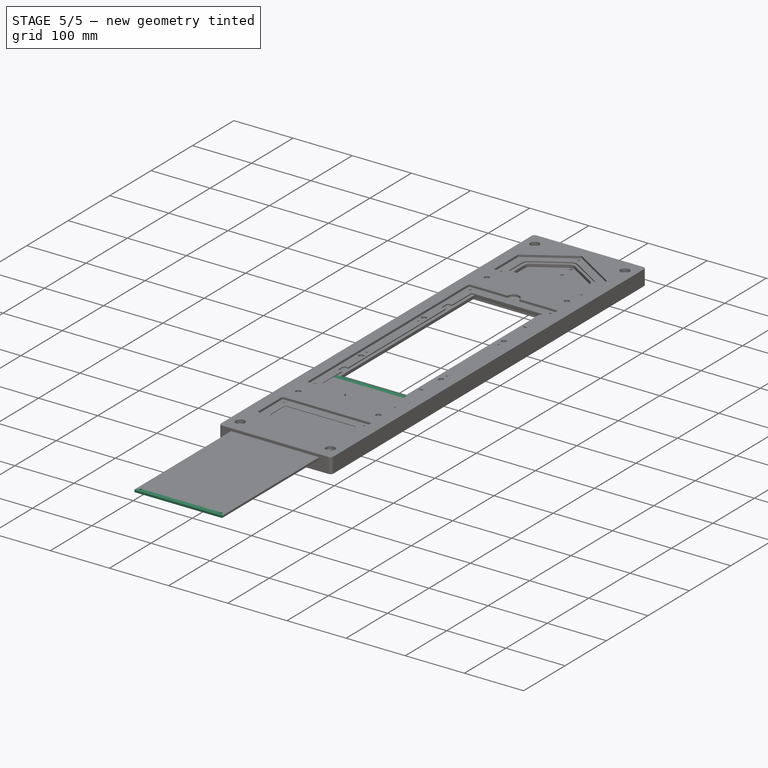
[diagram: stage 5 of 5 — iso view after this stage's code; geometry added in this stage tinted green]
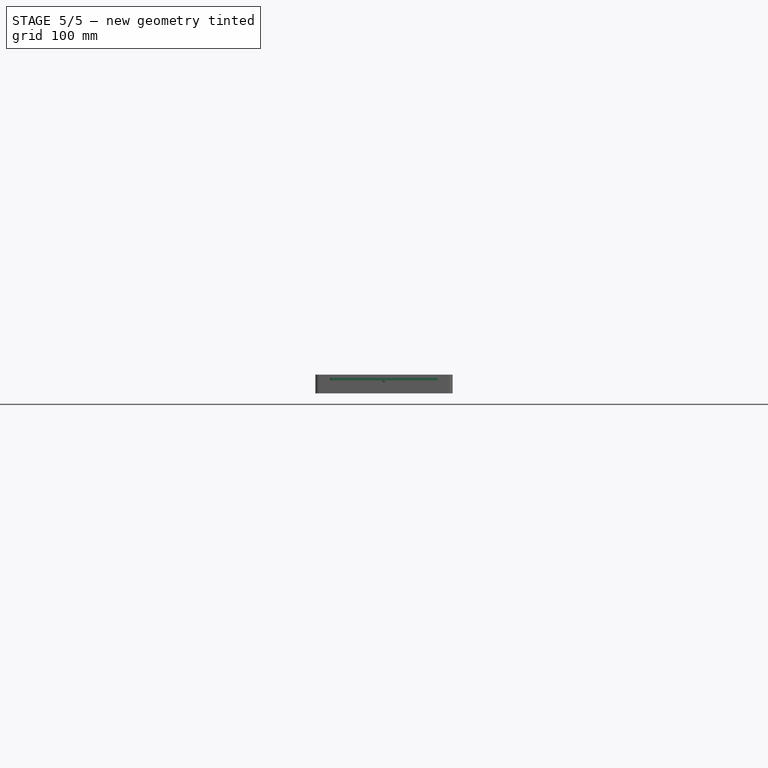
[diagram: stage 5 of 5 — front view after this stage's code; geometry added in this stage tinted green]
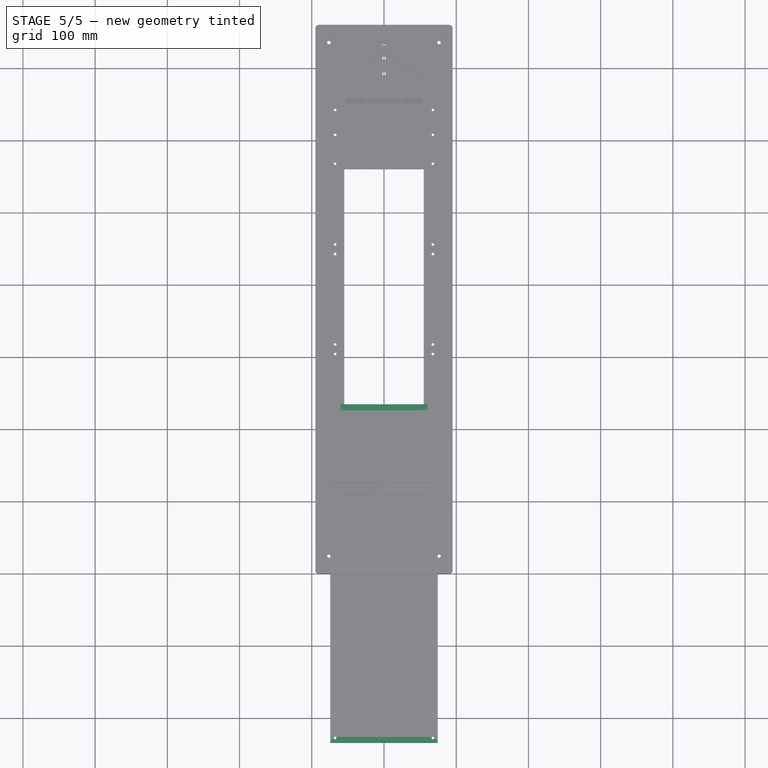
[diagram: stage 5 of 5 — top view after this stage's code; geometry added in this stage tinted green]
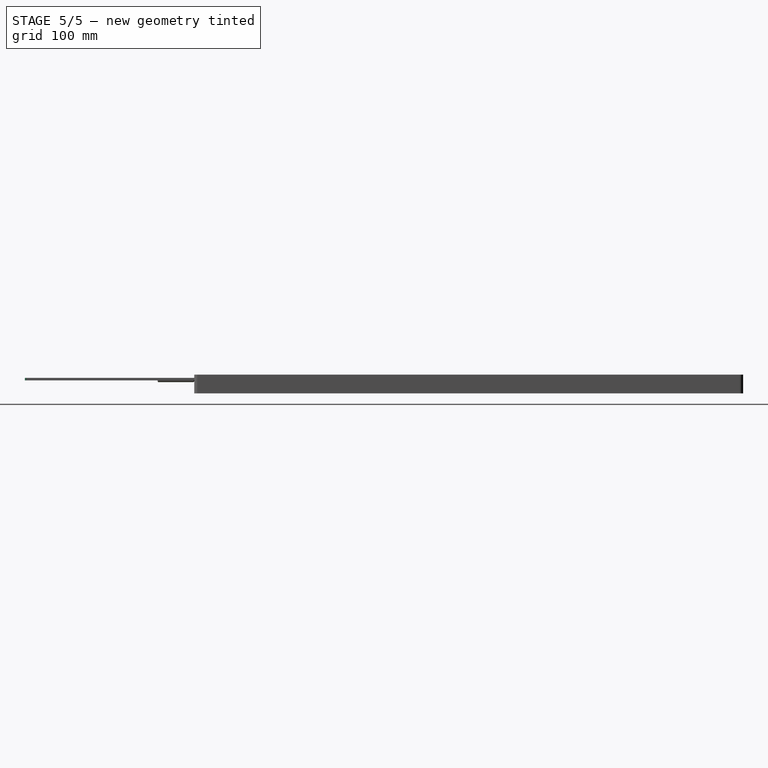
[diagram: stage 5 of 5 — right view after this stage's code; geometry added in this stage tinted green]
FEATURE [PartDesign::Plane] DatumPlane006  label="BackDatumPlane"
  AttachmentOffset = pos=(0,0,380) rot=(0,0,1;0rad)
  Length = 60
  MapMode = 5
  Placement = pos=(0,380,8.44e-14) rot=(0,0.707107,0.707107;3.14159rad)
  ResizeMode = 0
  Support = -> [XZ_Plane]
  Width = 60
  expr: .AttachmentOffset.Base.z = Spreadsheet.main_body_length * 0.5
FEATURE [PartDesign::Plane] DatumPlane007  label="BottomBossDatumPlane"
  AttachmentOffset = pos=(0,0,17.9969) rot=(0,0,1;0rad)
  Length = 60
  MapMode = 5
  Placement = pos=(0,0,-17.9969) rot=(0,1,0;3.14159rad)
  ResizeMode = 0
  Support = -> [XY_Plane]
  Width = 60
  expr: .AttachmentOffset.Base.z = Spreadsheet.bottom_boss_datum_plane_offset
FEATURE [Sketcher::SketchObject] Sketch025  label="EntranceHoleSketch"
  FullyConstrained = true
  MapMode = 5
  Placement = pos=(0,0,-17.9969) rot=(0,1,0;3.14159rad)
  Support = -> [DatumPlane007]
  expr: Constraints[2] = Spreadsheet.entrance_hole_offset_from_front
  expr: Constraints[4] = Spreadsheet.entrance_hole_diameter
  expr: Constraints[9] = Spreadsheet.entrance_separation
  sketch-geometry (4):
    g0: LineSegment StartX=0 StartY=46 StartZ=0 EndX=0 EndY=0 EndZ=0
    g1: Circle CenterX=0 CenterY=46 CenterZ=0 NormalX=0 NormalY=0 NormalZ=1 AngleXU=0 Radius=2.5
    g2: LineSegment StartX=0 StartY=46 StartZ=0 EndX=0 EndY=67.4978 EndZ=0
    g3: Circle CenterX=0 CenterY=67.4978 CenterZ=0 NormalX=0 NormalY=0 NormalZ=1 AngleXU=0 Radius=2.5
  constraints (10):
    c: Vertical(g0)
    c: Coincident(g-1,g0)
    c: DistanceY(g0,g0) = 46
    c: Coincident(g1,g0)
    c: Diameter(g1) = 5
    c: Coincident(g2,g1)
    c: Vertical(g2)
    c: Coincident(g3,g2)
    c: Equal(g1,g3)
    c: DistanceY(g2,g2) = 21.4978
FEATURE [PartDesign::Pocket] Pocket018  label="EntranceHolePocket"
  BaseFeature = -> LinearPattern001
  Direction = (0,0,1)
  Length = 5
  Length2 = 5
  Profile = -> Sketch025
  ReferenceAxis = -> Sketch025 [N_Axis]
  Type = 1
FEATURE [Sketcher::SketchObject] Sketch026  label="TopEntranceOuterLidRearHexSketch"
  FullyConstrained = true
  MapMode = 5
  Placement = pos=(0,0,-7.99688) rot=(0,1,0;3.14159rad)
  Support = -> [DatumPlane002]
  expr: Constraints[10] = Spreadsheet.top_entrance_outer_lid_mount_hole_separation
  expr: Constraints[2] = Spreadsheet.top_entrance_outer_lid_offset_from_front
  expr: Constraints[50] = Spreadsheet.lid_mount_hex_nut_pocket_minor_diameter
  expr: Constraints[5] = Spreadsheet.top_entrance_outer_lid_pocket_length
  expr: Constraints[7] = Spreadsheet.outer_lid_overlap * 0.5
  sketch-geometry (18):
    g0: LineSegment StartX=0 StartY=19.6 StartZ=0 EndX=0 EndY=0 EndZ=0
    g1: LineSegment StartX=0 StartY=125.2 StartZ=0 EndX=0 EndY=19.6 EndZ=0
    g2: GeomPoint X=0 Y=117.7 Z=0
    g3: LineSegment StartX=-67.7 StartY=117.7 StartZ=0 EndX=67.7 EndY=117.7 EndZ=0
    g4: LineSegment StartX=-67.7 StartY=112.886 StartZ=0 EndX=-63.5312 EndY=115.293 EndZ=0
    g5: LineSegment StartX=-63.5312 StartY=115.293 StartZ=0 EndX=-63.5312 EndY=120.107 EndZ=0
    g6: LineSegment StartX=-63.5312 StartY=120.107 StartZ=0 EndX=-67.7 EndY=122.514 EndZ=0
    g7: LineSegment StartX=-67.7 StartY=122.514 StartZ=0 EndX=-71.8688 EndY=120.107 EndZ=0
    g8: LineSegment StartX=-71.8688 StartY=120.107 StartZ=0 EndX=-71.8688 EndY=115.293 EndZ=0
    g9: LineSegment StartX=-71.8688 StartY=115.293 StartZ=0 EndX=-67.7 EndY=112.886 EndZ=0
    g10: Circle CenterX=-67.7 CenterY=117.7 CenterZ=0 NormalX=0 NormalY=0 NormalZ=1 AngleXU=0 Radius=4.81366
    g11: LineSegment StartX=71.8688 StartY=115.293 StartZ=0 EndX=71.8688 EndY=120.107 EndZ=0
    g12: LineSegment StartX=71.8688 StartY=120.107 StartZ=0 EndX=67.7 EndY=122.514 EndZ=0
    g13: LineSegment StartX=67.7 StartY=122.514 StartZ=0 EndX=63.5312 EndY=120.107 EndZ=0
    g14: LineSegment StartX=63.5312 StartY=120.107 StartZ=0 EndX=63.5312 EndY=115.293 EndZ=0
    g15: LineSegment StartX=63.5312 StartY=115.293 StartZ=0 EndX=67.7 EndY=112.886 EndZ=0
    g16: LineSegment StartX=67.7 StartY=112.886 StartZ=0 EndX=71.8688 EndY=115.293 EndZ=0
    g17: Circle CenterX=67.7 CenterY=117.7 CenterZ=0 NormalX=0 NormalY=0 NormalZ=1 AngleXU=0 Radius=4.81366
  constraints (43):
    c: Vertical(g0)
    c: Coincident(g-1,g0)
    c: DistanceY(g0,g0) = 19.6
    c: Vertical(g1)
    c: Coincident(g0,g1)
    c: DistanceY(g1,g1) = 105.6
    c: PointOnObject(g2,g1)
    c: DistanceY(g2,g1) = 7.5
    c: Horizontal(g3)
    c: Symmetric(g3,g3,g2)
    c: DistanceX(g3,g3) = 135.4
    c: Coincident(g4,g5)
    c: Coincident(g5,g6)
    c: Coincident(g6,g7)
    c: Coincident(g7,g8)
    c: Coincident(g8,g9)
    c: Coincident(g9,g4)
    c: Equal(g4, g5-g9) x5
    c: PointOnObject(g4,g10)
    c: PointOnObject(g5,g10)
    c: PointOnObject(g6,g10)
    c: PointOnObject(g7,g10)
    c: PointOnObject(g8,g10)
    c: PointOnObject(g9,g10)
    c: Coincident(g10,g3)
    c: Coincident(g11,g12)
    c: Coincident(g12,g13)
    c: Coincident(g13,g14)
    c: Coincident(g14,g15)
    c: Coincident(g15,g16)
    c: Coincident(g16,g11)
    c: Equal(g11, g12-g16) x5
    c: PointOnObject(g11,g17)
    c: PointOnObject(g12,g17)
    c: PointOnObject(g13,g17)
    c: PointOnObject(g14,g17)
    c: PointOnObject(g15,g17)
    c: PointOnObject(g16,g17)
    c: Coincident(g17,g3)
    c: Equal(g10,g17)
    c: Vertical(g8)
    c: Vertical(g11)
    c: DistanceX(g8,g4) = 8.3375
FEATURE [PartDesign::Pocket] Pocket019  label="TopEntranceOuterLidRearHexPocket"
  BaseFeature = -> Pocket018
  Direction = (0,0,1)
  Length = 2.97812
  Length2 = 5
  Profile = -> Sketch026
  ReferenceAxis = -> Sketch026 [N_Axis]
  Type = 0
  expr: Length = Spreadsheet.lid_mount_hex_nut_pocket_depth
FEATURE [Sketcher::SketchObject] Sketch027  label="TopEntranceOuterLidFrontHexSketch"
  FullyConstrained = true
  MapMode = 5
  Placement = pos=(0,0,-17.9969) rot=(0,1,0;3.14159rad)
  Support = -> [DatumPlane007]
  expr: Constraints[1] = Spreadsheet.top_entrance_outer_lid_offset_from_front
  expr: Constraints[25] = Spreadsheet.lid_mount_hex_nut_pocket_minor_diameter
  expr: Constraints[5] = Spreadsheet.outer_lid_overlap * 0.5
  sketch-geometry (9):
    g0: LineSegment StartX=0 StartY=0 StartZ=0 EndX=0 EndY=19.6 EndZ=0
    g1: LineSegment StartX=0 StartY=19.6 StartZ=0 EndX=0 EndY=27.1 EndZ=0
    g2: LineSegment StartX=4.16875 StartY=24.6932 StartZ=0 EndX=4.16875 EndY=29.5068 EndZ=0
    g3: LineSegment StartX=4.16875 StartY=29.5068 StartZ=0 EndX=9e-16 EndY=31.9137 EndZ=0
    g4: LineSegment StartX=9e-16 StartY=31.9137 StartZ=0 EndX=-4.16875 EndY=29.5068 EndZ=0
    g5: LineSegment StartX=-4.16875 StartY=29.5068 StartZ=0 EndX=-4.16875 EndY=24.6932 EndZ=0
    g6: LineSegment StartX=-4.16875 StartY=24.6932 StartZ=0 EndX=9e-16 EndY=22.2863 EndZ=0
    g7: LineSegment StartX=9e-16 StartY=22.2863 StartZ=0 EndX=4.16875 EndY=24.6932 EndZ=0
    g8: Circle CenterX=0 CenterY=27.1 CenterZ=0 NormalX=0 NormalY=0 NormalZ=1 AngleXU=0 Radius=4.81366
  constraints (22):
    c: Vertical(g0)
    c: DistanceY(g0,g0) = 19.6
    c: Coincident(g-1,g0)
    c: Coincident(g1,g0)
    c: Vertical(g1)
    c: DistanceY(g1,g1) = 7.5
    c: Coincident(g2,g3)
    c: Coincident(g3,g4)
    c: Coincident(g4,g5)
    c: Coincident(g5,g6)
    c: Coincident(g6,g7)
    c: Coincident(g7,g2)
    c: Equal(g2, g3-g7) x5
    c: PointOnObject(g2,g8)
    c: PointOnObject(g3,g8)
    c: PointOnObject(g4,g8)
    c: PointOnObject(g5,g8)
    c: PointOnObject(g6,g8)
    c: PointOnObject(g7,g8)
    c: Coincident(g8,g1)
    c: Vertical(g5)
    c: DistanceX(g5,g2) = 8.3375
FEATURE [PartDesign::Pocket] Pocket020  label="TopEntranceOuterLidFrontHexPocket"
  BaseFeature = -> Pocket019
  Direction = (0,0,1)
  Length = 2.97812
  Length2 = 5
  Profile = -> Sketch027
  ReferenceAxis = -> Sketch027 [N_Axis]
  Type = 0
  expr: Length = Spreadsheet.lid_mount_hex_nut_pocket_depth
FEATURE [Sketcher::SketchObject] Sketch028  label="TopEntranceOuterLidFrontHoleSketch"
  FullyConstrained = true
  MapMode = 5
  Placement = pos=(0,0,-17.9969) rot=(0,1,0;3.14159rad)
  Support = -> [DatumPlane007]
  expr: Constraints[2] = Spreadsheet.top_entrance_outer_lid_offset_from_front
  expr: Constraints[5] = Spreadsheet.outer_lid_overlap * 0.5
  expr: Constraints[7] = Spreadsheet.lid_mount_hole_diameter
  sketch-geometry (3):
    g0: LineSegment StartX=0 StartY=0 StartZ=0 EndX=0 EndY=19.6 EndZ=0
    g1: LineSegment StartX=0 StartY=19.6 StartZ=0 EndX=0 EndY=27.1 EndZ=0
    g2: Circle CenterX=0 CenterY=27.1 CenterZ=0 NormalX=0 NormalY=0 NormalZ=1 AngleXU=0 Radius=1.8669
  constraints (8):
    c: Coincident(g0,g-1)
    c: Vertical(g0)
    c: DistanceY(g0,g0) = 19.6
    c: Coincident(g1,g0)
    c: Vertical(g1)
    c: DistanceY(g1,g1) = 7.5
    c: Coincident(g2,g1)
    c: Diameter(g2) = 3.7338
FEATURE [PartDesign::Pocket] Pocket021  label="TopEntranceOuterLidFrontHolePocket"
  BaseFeature = -> Pocket020
  Direction = (0,0,1)
  Length = 5
  Length2 = 5
  Profile = -> Sketch028
  ReferenceAxis = -> Sketch028 [N_Axis]
  Type = 1
FEATURE [Part::Feature] Part__Feature  label="ThreadPlugNPT0p25inFront"
  Placement = pos=(0,46,-7.99688) rot=(0,0,1;0rad)
  shape: bbox 14.01 x 14.01 x 13.28 mm, 27 faces (baked)
  expr: .Placement.Base.y = Spreadsheet.npt_thread_front_y_offset
  expr: .Placement.Base.z = Spreadsheet.npt_thread_z_offset
FEATURE [Part::Feature] Part__Feature001  label="ThreadPlugNPT0p25inRear"
  Placement = pos=(0,67.4978,-7.99688) rot=(0,0,1;0rad)
  shape: bbox 14.01 x 14.01 x 13.28 mm, 27 faces (baked)
  expr: .Placement.Base.y = Spreadsheet.npt_thread_rear_y_offset
  expr: .Placement.Base.z = Spreadsheet.npt_thread_z_offset
FEATURE [Part::MultiFuse] Fusion  label="ThreadPlugFusion"
  Shapes = -> [Part__Feature,Part__Feature001]
FEATURE [Sketcher::SketchObject] Sketch029  label="CutPlaneSketch"
  FullyConstrained = true
  Placement = pos=(0,200,0) rot=(1,0,0;1.5708rad)
  expr: .Placement.Base.y = Spreadsheet.comb_datum_plane_offset
  expr: Constraints[11] = Spreadsheet.bottom_boss_plus_main_body_height
  expr: Constraints[13] = Spreadsheet.main_body_width * 1.1
  expr: Constraints[9] = Spreadsheet.main_body_height
  sketch-geometry (6):
    g0: LineSegment StartX=-104.5 StartY=15.9938 StartZ=0 EndX=104.5 EndY=15.9938 EndZ=0
    g1: LineSegment StartX=104.5 StartY=15.9938 StartZ=0 EndX=104.5 EndY=-25.9938 EndZ=0
    g2: LineSegment StartX=104.5 StartY=-25.9938 StartZ=0 EndX=-104.5 EndY=-25.9938 EndZ=0
    g3: LineSegment StartX=-104.5 StartY=-25.9938 StartZ=0 EndX=-104.5 EndY=15.9938 EndZ=0
    g4: GeomPoint X=0 Y=15.9938 Z=0
    g5: GeomPoint X=-5.3e-15 Y=-25.9938 Z=0
  constraints (14):
    c: Coincident(g0,g1)
    c: Coincident(g1,g2)
    c: Coincident(g2,g3)
    c: Coincident(g3,g0)
    c: Horizontal(g0)
    c: Horizontal(g2)
    c: Vertical(g1)
    c: Vertical(g3)
    c: Symmetric(g0,g0,g4)
    c: DistanceY(g-1,g4) = 15.9938
    c: Symmetric(g2,g1,g5)
    c: DistanceY(g5,g-1) = 25.9938
    c: PointOnObject(g4,g-2)
    c: DistanceX(g2,g2) = 209
FEATURE [Sketcher::SketchObject] Sketch030  label="MountCounterSinkSketch"
  FullyConstrained = true
  MapMode = 5
  Placement = pos=(0,0,7.99688) rot=(0,0,1;0rad)
  Support = -> [DatumPlane]
  expr: Constraints[11] = Spreadsheet.mount_hole_y_spacing * 0.5
  expr: Constraints[15] = Spreadsheet.mount_countersink_diameter
  expr: Constraints[2] = Spreadsheet.main_body_length * 0.5
  expr: Constraints[5] = Spreadsheet.mount_hole_x_spacing
  sketch-geometry (6):
    g0: LineSegment StartX=0 StartY=380 StartZ=0 EndX=0 EndY=0 EndZ=0
    g1: LineSegment StartX=-76.2 StartY=380 StartZ=0 EndX=76.2 EndY=380 EndZ=0
    g2: LineSegment StartX=-76.2 StartY=380 StartZ=0 EndX=-76.2 EndY=24.4 EndZ=0
    g3: LineSegment StartX=76.2 StartY=380 StartZ=0 EndX=76.2 EndY=24.4 EndZ=0
    g4: Circle CenterX=-76.2 CenterY=24.4 CenterZ=0 NormalX=0 NormalY=0 NormalZ=1 AngleXU=0 Radius=7.62
    g5: Circle CenterX=76.2 CenterY=24.4 CenterZ=0 NormalX=0 NormalY=0 NormalZ=1 AngleXU=0 Radius=7.62
  constraints (16):
    c: Vertical(g0)
    c: Coincident(g0,g-1)
    c: DistanceY(g0,g0) = 380
    c: Horizontal(g1)
    c: Symmetric(g1,g1,g0)
    c: DistanceX(g1,g1) = 152.4
    c: Coincident(g2,g1)
    c: Vertical(g2)
    c: Coincident(g3,g1)
    c: Vertical(g3)
    c: Equal(g2,g3)
    c: DistanceY(g2,g2) = 355.6
    c: Coincident(g4,g2)
    c: Coincident(g5,g3)
    c: Equal(g4,g5)
    c: Diameter(g5) = 15.24
FEATURE [PartDesign::Pocket] Pocket022  label="MountCounterSinkPocket"
  BaseFeature = -> Pocket021
  Direction = (0,0,-1)
  Length = 6.0452
  Length2 = 5
  Profile = -> Sketch030
  ReferenceAxis = -> Sketch030 [N_Axis]
  Type = 0
  expr: Length = Spreadsheet.mount_countersink_depth
FEATURE [Sketcher::SketchObject] Sketch031  label="MountHoleSketch"
  FullyConstrained = true
  MapMode = 5
  Placement = pos=(0,0,7.99688) rot=(0,0,1;0rad)
  Support = -> [DatumPlane]
  expr: Constraints[10] = Spreadsheet.mount_hole_x_spacing
  expr: Constraints[11] = Spreadsheet.mount_hole_y_spacing * 0.5
  expr: Constraints[15] = Spreadsheet.mount_hole_diameter
  expr: Constraints[9] = Spreadsheet.main_body_length * 0.5
  sketch-geometry (6):
    g0: LineSegment StartX=0 StartY=0 StartZ=0 EndX=0 EndY=380 EndZ=0
    g1: LineSegment StartX=-76.2 StartY=380 StartZ=0 EndX=76.2 EndY=380 EndZ=0
    g2: LineSegment StartX=-76.2 StartY=380 StartZ=0 EndX=-76.2 EndY=24.4 EndZ=0
    g3: LineSegment StartX=76.2 StartY=380 StartZ=0 EndX=76.2 EndY=24.4 EndZ=0
    g4: Circle CenterX=-76.2 CenterY=24.4 CenterZ=0 NormalX=0 NormalY=0 NormalZ=1 AngleXU=0 Radius=2.54
    g5: Circle CenterX=76.2 CenterY=24.4 CenterZ=0 NormalX=0 NormalY=0 NormalZ=1 AngleXU=0 Radius=2.54
  constraints (16):
    c: Coincident(g0,g-1)
    c: Vertical(g0)
    c: Horizontal(g1)
    c: Symmetric(g1,g1,g0)
    c: Coincident(g2,g1)
    c: Vertical(g2)
    c: Coincident(g3,g1)
    c: Vertical(g3)
    c: Equal(g2,g3)
    c: DistanceY(g0,g0) = 380
    c: DistanceX(g1,g1) = 152.4
    c: DistanceY(g2,g2) = 355.6
    c: Coincident(g4,g2)
    c: Coincident(g5,g3)
    c: Equal(g4,g5)
    c: Diameter(g4) = 5.08
FEATURE [PartDesign::Pocket] Pocket023  label="MountHolePocket"
  BaseFeature = -> Pocket022
  Direction = (0,0,-1)
  Length = 5
  Length2 = 5
  Profile = -> Sketch031
  ReferenceAxis = -> Sketch031 [N_Axis]
  Type = 1
FEATURE [PartDesign::Body] Body  label="FrontHalfBody"
  Group = -> [Sketch,Pad,DatumPlane,DatumPlane002,Sketch003,DatumPlane003,DatumPlane004,DatumPlane006,DatumPlane007,Pocket,DatumPlane001,Sketch004,Pocket001,LinearPattern,Sketch005,Pocket002,Sketch006,Pocket003,Sketch007,Pocket004,Sketch008,Sketch009,Pocket005,Sketch010,Pocket006,Sketch011,Pocket007,Sketch013,Pocket008,Sketch014,Pocket009,Sketch015,Pocket010,Sketch016,Pocket011,Sketch017,Pocket012,Sketch018,+23 more]
  Origin = -> Origin
  Tip = -> Pocket023
FEATURE [Part::Cut] Cut  label="FrontHalfBodyWithThreads"
  Base = -> Body
  Tool = -> Fusion
FEATURE [PartDesign::FeatureBase] Clone
  BaseFeature = -> Cut
FEATURE [PartDesign::Body] Body001  label="FrontHalfBodyWithThreadsClone"
  Group = -> [Clone]
  Origin = -> Origin001
  Tip = -> Clone
FEATURE [Sketcher::SketchObject] Sketch032  label="InnerLidSketch"
  FullyConstrained = true
  MapMode = 5
  Support = -> [XY_Plane002]
  expr: Constraints[27] = Spreadsheet.inner_lid_fillet_radius
  expr: Constraints[51] = Spreadsheet.inner_lid_acrylic_fit_adjustment
  expr: Constraints[54] = Spreadsheet.inner_lid_acrylic_fit_adjustment
  expr: Constraints[6] = Spreadsheet.inner_lid_width
  expr: Constraints[7] = Spreadsheet.inner_lid_length
  sketch-geometry (27):
    g0: LineSegment StartX=-60 StartY=179 StartZ=0 EndX=-60 EndY=-179 EndZ=0
    g1: LineSegment StartX=-59 StartY=-180 StartZ=0 EndX=59 EndY=-180 EndZ=0
    g2: LineSegment StartX=60 StartY=-179 StartZ=0 EndX=60 EndY=179 EndZ=0
    g3: LineSegment StartX=59 StartY=180 StartZ=0 EndX=-59 EndY=180 EndZ=0
    g4: GeomPoint X=0 Y=0 Z=0
    g5: ArcOfCircle CenterX=59 CenterY=-179 CenterZ=0 NormalX=0 NormalY=0 NormalZ=1 AngleXU=0 Radius=1 StartAngle=4.71239 EndAngle=6.28319
    g6: GeomPoint X=60 Y=-180 Z=0
    g7: ArcOfCircle CenterX=-59 CenterY=-179 CenterZ=0 NormalX=0 NormalY=0 NormalZ=1 AngleXU=0 Radius=1 StartAngle=3.14159 EndAngle=4.71239
    g8: GeomPoint X=-60 Y=-180 Z=0
    g9: ArcOfCircle CenterX=-59 CenterY=179 CenterZ=0 NormalX=0 NormalY=0 NormalZ=1 AngleXU=0 Radius=1 StartAngle=1.5708 EndAngle=3.14159
    g10: GeomPoint X=-60 Y=180 Z=0
    g11: ArcOfCircle CenterX=59 CenterY=179 CenterZ=0 NormalX=0 NormalY=0 NormalZ=1 AngleXU=0 Radius=1 StartAngle=-5.3e-15 EndAngle=1.5708
    g12: GeomPoint X=60 Y=180 Z=0
    g13: ArcOfCircle CenterX=-58.5 CenterY=178.5 CenterZ=0 NormalX=0 NormalY=0 NormalZ=1 AngleXU=0 Radius=1 StartAngle=1.5708 EndAngle=3.14159
    g14: LineSegment StartX=-58.5 StartY=179.5 StartZ=0 EndX=58.5 EndY=179.5 EndZ=0
    g15: ArcOfCircle CenterX=58.5 CenterY=178.5 CenterZ=0 NormalX=0 NormalY=0 NormalZ=1 AngleXU=0 Radius=1 StartAngle=-1.15e-14 EndAngle=1.5708
    g16: LineSegment StartX=59.5 StartY=178.5 StartZ=0 EndX=59.5 EndY=-178.5 EndZ=0
    g17: ArcOfCircle CenterX=58.5 CenterY=-178.5 CenterZ=0 NormalX=0 NormalY=0 NormalZ=1 AngleXU=0 Radius=1 StartAngle=4.71239 EndAngle=6.28319
    g18: LineSegment StartX=58.5 StartY=-179.5 StartZ=0 EndX=-58.5 EndY=-179.5 EndZ=0
    g19: ArcOfCircle CenterX=-58.5 CenterY=-178.5 CenterZ=0 NormalX=0 NormalY=0 NormalZ=1 AngleXU=0 Radius=1 StartAngle=3.14159 EndAngle=4.71239
    g20: LineSegment StartX=-59.5 StartY=-178.5 StartZ=0 EndX=-59.5 EndY=178.5 EndZ=0
    g21: GeomPoint X=-59.5 Y=179.5 Z=0
    g22: GeomPoint X=59.5 Y=-179.5 Z=0
    g23: GeomPoint X=2.8e-15 Y=180 Z=0
    g24: GeomPoint X=-3e-16 Y=179.5 Z=0
    g25: GeomPoint X=-60 Y=-6e-15 Z=0
    g26: GeomPoint X=-59.5 Y=9.2e-15 Z=0
  constraints (55):
    c: Horizontal(g1)
    c: Horizontal(g3)
    c: Vertical(g0)
    c: Vertical(g2)
    c: Symmetric(g6,g10,g4)
    c: Coincident(g4,g-1)
    c: DistanceX(g8,g6) = 120
    c: DistanceY(g6,g12) = 360
    c: PointOnObject(g6,g1)
    c: PointOnObject(g6,g2)
    c: Tangent(g1,g5) = -1.5708
    c: Tangent(g2,g5) = -1.5708
    c: PointOnObject(g8,g1)
    c: PointOnObject(g8,g0)
    c: Tangent(g1,g7) = -1.5708
    c: Tangent(g0,g7) = -1.5708
    c: PointOnObject(g10,g0)
    c: PointOnObject(g10,g3)
    c: Tangent(g0,g9) = -1.5708
    c: Tangent(g3,g9) = -1.5708
    c: PointOnObject(g12,g3)
    c: PointOnObject(g12,g2)
    c: Tangent(g3,g11) = -1.5708
    c: Tangent(g2,g11) = -1.5708
    c: Equal(g5,g7)
    c: Equal(g7,g9)
    c: Equal(g9,g11)
    c: Radius(g9) = 1
    c: Tangent(g13,g14) = 1.5708
    c: Tangent(g14,g15) = 1.5708
    c: Tangent(g15,g16) = 1.5708
    c: Tangent(g16,g17) = 1.5708
    c: Tangent(g17,g18) = 1.5708
    c: Tangent(g18,g19) = 1.5708
    c: Tangent(g19,g20) = 1.5708
    c: Tangent(g20,g13) = 1.5708
    c: Horizontal(g14)
    c: Horizontal(g18)
    c: Vertical(g16)
    c: Vertical(g20)
    c: Equal(g13,g15)
    c: Equal(g15,g17)
    c: Equal(g17,g19)
    c: PointOnObject(g21,g14)
    c: PointOnObject(g21,g20)
    c: PointOnObject(g22,g16)
    c: PointOnObject(g22,g18)
    c: Symmetric(g21,g22,g4)
    c: Equal(g15,g11)
    c: Symmetric(g3,g3,g23)
    c: Symmetric(g14,g13,g24)
    c: DistanceY(g24,g23) = 0.5
    c: Symmetric(g0,g0,g25)
    c: Symmetric(g13,g19,g26)
    c: DistanceX(g25,g26) = 0.5
FEATURE [PartDesign::Pad] Pad003  label="InnerLidPad"
  Direction = (0,0,1)
  Length = 1.5
  Length2 = 10
  Profile = -> Sketch032
  ReferenceAxis = -> Sketch032 [N_Axis]
  Type = 0
  expr: Length = Spreadsheet.inner_lid_thickness
FEATURE [PartDesign::Body] Body002  label="FlowSectionInnerLidBody"
  Group = -> [Sketch032,Pad003]
  Origin = -> Origin002
  Tip = -> Pad003
FEATURE [Sketcher::SketchObject] Sketch033  label="TopOuterLidSketch"
  FullyConstrained = true
  MapMode = 5
  Support = -> [XY_Plane003]
  expr: Constraints[103] = Spreadsheet.outer_lid_acrylic_fit_adjustment
  expr: Constraints[106] = Spreadsheet.outer_lid_acrylic_fit_adjustment
  expr: Constraints[25] = Spreadsheet.top_flow_section_outer_lid_length
  expr: Constraints[26] = Spreadsheet.outer_lid_width
  expr: Constraints[27] = Spreadsheet.top_outer_lid_fillet_radius
  expr: Constraints[68] = Spreadsheet.lid_mount_hole_diameter
  expr: Constraints[71] = Spreadsheet.outer_lid_side_margin
  expr: Constraints[72] = Spreadsheet.outer_lid_overlap * 0.5
  expr: Constraints[79] = Spreadsheet.outer_lid_side_margin
  expr: Constraints[80] = Spreadsheet.outer_lid_overlap * 0.5
  sketch-geometry (49):
    g0: LineSegment StartX=-75 StartY=193 StartZ=0 EndX=-75 EndY=-193 EndZ=0
    g1: LineSegment StartX=-73 StartY=-195 StartZ=0 EndX=73 EndY=-195 EndZ=0
    g2: LineSegment StartX=75 StartY=-193 StartZ=0 EndX=75 EndY=193 EndZ=0
    g3: LineSegment StartX=73 StartY=195 StartZ=0 EndX=-73 EndY=195 EndZ=0
    g4: GeomPoint X=0 Y=0 Z=0
    g5: ArcOfCircle CenterX=-73 CenterY=193 CenterZ=0 NormalX=0 NormalY=0 NormalZ=1 AngleXU=0 Radius=2 StartAngle=1.5708 EndAngle=3.14159
    g6: GeomPoint X=-75 Y=195 Z=0
    g7: ArcOfCircle CenterX=73 CenterY=193 CenterZ=0 NormalX=0 NormalY=0 NormalZ=1 AngleXU=0 Radius=2 StartAngle=-4.4e-15 EndAngle=1.5708
    g8: GeomPoint X=75 Y=195 Z=0
    g9: ArcOfCircle CenterX=73 CenterY=-193 CenterZ=0 NormalX=0 NormalY=0 NormalZ=1 AngleXU=0 Radius=2 StartAngle=4.71239 EndAngle=6.28319
    g10: GeomPoint X=75 Y=-195 Z=0
    g11: ArcOfCircle CenterX=-73 CenterY=-193 CenterZ=0 NormalX=0 NormalY=0 NormalZ=1 AngleXU=0 Radius=2 StartAngle=3.14159 EndAngle=4.71239
    g12: GeomPoint X=-75 Y=-195 Z=0
    g13: LineSegment StartX=0 StartY=187.7 StartZ=0 EndX=0 EndY=-187.7 EndZ=0
    g14: GeomPoint X=5.5e-15 Y=-195 Z=0
    g15: GeomPoint X=5.8e-15 Y=195 Z=0
    g16: LineSegment StartX=-67.7 StartY=-187.7 StartZ=0 EndX=67.7 EndY=-187.7 EndZ=0
    g17: LineSegment StartX=-67.7 StartY=187.7 StartZ=0 EndX=67.7 EndY=187.7 EndZ=0
    g18: LineSegment StartX=-67.7 StartY=-187.7 StartZ=0 EndX=-67.7 EndY=-62.5667 EndZ=0
    g19: LineSegment StartX=-67.7 StartY=-62.5667 StartZ=0 EndX=-67.7 EndY=62.5667 EndZ=0
    g20: LineSegment StartX=-67.7 StartY=187.7 StartZ=0 EndX=-67.7 EndY=62.5667 EndZ=0
    g21: LineSegment StartX=67.7 StartY=-187.7 StartZ=0 EndX=67.7 EndY=-62.5667 EndZ=0
    g22: LineSegment StartX=67.7 StartY=-62.5667 StartZ=0 EndX=67.7 EndY=62.5667 EndZ=0
    g23: LineSegment StartX=67.7 StartY=62.5667 StartZ=0 EndX=67.7 EndY=187.7 EndZ=0
    g24: Circle CenterX=-67.7 CenterY=187.7 CenterZ=0 NormalX=0 NormalY=0 NormalZ=1 AngleXU=0 Radius=1.8669
    g25: Circle CenterX=67.7 CenterY=187.7 CenterZ=0 NormalX=0 NormalY=0 NormalZ=1 AngleXU=0 Radius=1.8669
    g26: Circle CenterX=-67.7 CenterY=62.5667 CenterZ=0 NormalX=0 NormalY=0 NormalZ=1 AngleXU=0 Radius=1.8669
    g27: Circle CenterX=67.7 CenterY=62.5667 CenterZ=0 NormalX=0 NormalY=0 NormalZ=1 AngleXU=0 Radius=1.8669
    g28: Circle CenterX=-67.7 CenterY=-62.5667 CenterZ=0 NormalX=0 NormalY=0 NormalZ=1 AngleXU=0 Radius=1.8669
    g29: Circle CenterX=67.7 CenterY=-62.5667 CenterZ=0 NormalX=0 NormalY=0 NormalZ=1 AngleXU=0 Radius=1.8669
    g30: Circle CenterX=-67.7 CenterY=-187.7 CenterZ=0 NormalX=0 NormalY=0 NormalZ=1 AngleXU=0 Radius=1.8669
    g31: Circle CenterX=67.7 CenterY=-187.7 CenterZ=0 NormalX=0 NormalY=0 NormalZ=1 AngleXU=0 Radius=1.8669
    g32: LineSegment StartX=5.8e-15 StartY=195.2 StartZ=0 EndX=5.8e-15 EndY=195 EndZ=0
    g33: LineSegment StartX=75 StartY=195 StartZ=0 EndX=75 EndY=-195 EndZ=0
    g34: GeomPoint X=75 Y=-187.7 Z=0
    g35: LineSegment StartX=75 StartY=-187.7 StartZ=0 EndX=75.2 EndY=-187.7 EndZ=0
    g36: ArcOfCircle CenterX=-72.5 CenterY=192.5 CenterZ=0 NormalX=0 NormalY=0 NormalZ=1 AngleXU=0 Radius=2 StartAngle=1.5708 EndAngle=3.14159
    g37: LineSegment StartX=-72.5 StartY=194.5 StartZ=0 EndX=72.5 EndY=194.5 EndZ=0
    g38: ArcOfCircle CenterX=72.5 CenterY=192.5 CenterZ=0 NormalX=0 NormalY=0 NormalZ=1 AngleXU=0 Radius=2 StartAngle=1.7e-15 EndAngle=1.5708
    g39: LineSegment StartX=74.5 StartY=192.5 StartZ=0 EndX=74.5 EndY=-192.5 EndZ=0
    g40: ArcOfCircle CenterX=72.5 CenterY=-192.5 CenterZ=0 NormalX=0 NormalY=0 NormalZ=1 AngleXU=0 Radius=2 StartAngle=4.71239 EndAngle=6.28319
    g41: LineSegment StartX=72.5 StartY=-194.5 StartZ=0 EndX=-72.5 EndY=-194.5 EndZ=0
    g42: ArcOfCircle CenterX=-72.5 CenterY=-192.5 CenterZ=0 NormalX=0 NormalY=0 NormalZ=1 AngleXU=0 Radius=2 StartAngle=3.14159 EndAngle=4.71239
    g43: LineSegment StartX=-74.5 StartY=-192.5 StartZ=0 EndX=-74.5 EndY=192.5 EndZ=0
    g44: GeomPoint X=-74.5 Y=194.5 Z=0
    g45: GeomPoint X=74.5 Y=-194.5 Z=0
    g46: GeomPoint X=3.2e-15 Y=194.5 Z=0
    g47: GeomPoint X=-75 Y=3.3e-15 Z=0
    g48: GeomPoint X=-74.5 Y=-1.53e-14 Z=0
  constraints (107):
    c: Horizontal(g1)
    c: Horizontal(g3)
    c: Vertical(g0)
    c: Vertical(g2)
    c: Symmetric(g10,g6,g4)
    c: Coincident(g4,g-1)
    c: PointOnObject(g6,g0)
    c: PointOnObject(g6,g3)
    c: Tangent(g0,g5) = -1.5708
    c: Tangent(g3,g5) = -1.5708
    c: PointOnObject(g8,g3)
    c: PointOnObject(g8,g2)
    c: Tangent(g3,g7) = -1.5708
    c: Tangent(g2,g7) = -1.5708
    c: PointOnObject(g10,g1)
    c: PointOnObject(g10,g2)
    c: Tangent(g1,g9) = -1.5708
    c: Tangent(g2,g9) = -1.5708
    c: PointOnObject(g12,g1)
    c: PointOnObject(g12,g0)
    c: Tangent(g1,g11) = -1.5708
    c: Tangent(g0,g11) = -1.5708
    c: Equal(g11,g5)
    c: Equal(g5,g7)
    c: Equal(g7,g9)
    c: DistanceY(g10,g8) = 390
    c: DistanceX(g12,g10) = 150
    c: Radius(g5) = 2
    c: Vertical(g13)
    c: Symmetric(g13,g13,g4)
    c: Symmetric(g12,g10,g14)
    c: Symmetric(g6,g8,g15)
    c: Horizontal(g16)
    c: Symmetric(g16,g16,g13)
    c: Horizontal(g17)
    c: Symmetric(g17,g17,g13)
    c: Equal(g17,g16)
    c: Vertical(g18)
    c: Coincident(g18,g19)
    c: Vertical(g19)
    c: Coincident(g18,g16)
    c: Coincident(g20,g19)
    c: Equal(g18,g19)
    c: Equal(g19,g20)
    c: Coincident(g17,g20)
    c: Coincident(g21,g22)
    c: Coincident(g22,g23)
    c: Equal(g21,g22)
    c: Equal(g22,g23)
    c: Coincident(g23,g17)
    c: Coincident(g21,g16)
    c: Vertical(g21)
    c: Vertical(g22)
    c: Coincident(g24,g17)
    c: Coincident(g25,g17)
    c: Coincident(g26,g19)
    c: Coincident(g27,g22)
    c: Coincident(g28,g18)
    c: Coincident(g29,g21)
    c: Coincident(g30,g16)
    c: Coincident(g31,g16)
    c: Equal(g31,g30)
    c: Equal(g30,g29)
    c: Equal(g29,g28)
    c: Equal(g28,g27)
    c: Equal(g27,g26)
    c: Equal(g26,g24)
    c: Equal(g24,g25)
    c: Diameter(g25) = 3.7338
    c: Vertical(g32)
    c: Coincident(g15,g32)
    c: DistanceY(g32,g32) = 0.2
    c: DistanceY(g13,g32) = 7.5
    c: PointOnObject(g34,g33)
    c: Coincident(g10,g33)
    c: Coincident(g33,g8)
    c: Horizontal(g34,g31)
    c: Coincident(g35,g34)
    c: Horizontal(g35)
    c: DistanceX(g35,g35) = 0.2
    c: DistanceX(g31,g35) = 7.5
    c: Tangent(g36,g37) = 1.5708
    c: Tangent(g37,g38) = 1.5708
    c: Tangent(g38,g39) = 1.5708
    c: Tangent(g39,g40) = 1.5708
    c: Tangent(g40,g41) = 1.5708
    c: Tangent(g41,g42) = 1.5708
    c: Tangent(g42,g43) = 1.5708
    c: Tangent(g43,g36) = 1.5708
    c: Horizontal(g37)
    c: Horizontal(g41)
    c: Vertical(g39)
    c: Vertical(g43)
    c: Equal(g36,g38)
    c: Equal(g38,g40)
    c: Equal(g40,g42)
    c: PointOnObject(g44,g37)
    c: PointOnObject(g44,g43)
    c: PointOnObject(g45,g39)
    c: PointOnObject(g45,g41)
    c: Symmetric(g44,g45,g4)
    c: Equal(g38,g7)
    c: Symmetric(g36,g37,g46)
    c: DistanceY(g46,g15) = 0.5
    c: Symmetric(g0,g0,g47)
    c: Symmetric(g36,g42,g48)
    c: DistanceX(g47,g48) = 0.5
FEATURE [PartDesign::Pad] Pad004  label="TopOuterLidPad"
  Direction = (0,0,1)
  Length = 3.39688
  Length2 = 10
  Profile = -> Sketch033
  ReferenceAxis = -> Sketch033 [N_Axis]
  Type = 0
  expr: Length = Spreadsheet.outer_lid_thickness
FEATURE [PartDesign::Body] Body003  label="TopFlowSectionOuterLidBody"
  Group = -> [Sketch033,Pad004]
  Origin = -> Origin003
  Tip = -> Pad004
FEATURE [Sketcher::SketchObject] Sketch034  label="BottomOuterLidSketch001"
  FullyConstrained = true
  MapMode = 5
  Support = -> [XY_Plane004]
  expr: Constraints[102] = Spreadsheet.outer_lid_acrylic_fit_adjustment
  expr: Constraints[105] = Spreadsheet.outer_lid_acrylic_fit_adjustment
  expr: Constraints[25] = Spreadsheet.bottom_outer_lid_fillet_radius
  expr: Constraints[26] = Spreadsheet.bottom_outer_lid_length
  expr: Constraints[27] = Spreadsheet.outer_lid_width
  expr: Constraints[67] = Spreadsheet.lid_mount_hole_diameter
  expr: Constraints[70] = Spreadsheet.outer_lid_side_margin
  expr: Constraints[71] = Spreadsheet.outer_lid_overlap * 0.5
  expr: Constraints[78] = Spreadsheet.outer_lid_side_margin
  expr: Constraints[79] = Spreadsheet.outer_lid_overlap * 0.5
  sketch-geometry (48):
    g0: LineSegment StartX=-75 StartY=233 StartZ=0 EndX=-75 EndY=-233 EndZ=0
    g1: LineSegment StartX=-73 StartY=-235 StartZ=0 EndX=73 EndY=-235 EndZ=0
    g2: LineSegment StartX=75 StartY=-233 StartZ=0 EndX=75 EndY=233 EndZ=0
    g3: LineSegment StartX=73 StartY=235 StartZ=0 EndX=-73 EndY=235 EndZ=0
    g4: GeomPoint X=0 Y=0 Z=0
    g5: ArcOfCircle CenterX=-73 CenterY=233 CenterZ=0 NormalX=0 NormalY=0 NormalZ=1 AngleXU=0 Radius=2 StartAngle=1.5708 EndAngle=3.14159
    g6: GeomPoint X=-75 Y=235 Z=0
    g7: ArcOfCircle CenterX=73 CenterY=233 CenterZ=0 NormalX=0 NormalY=0 NormalZ=1 AngleXU=0 Radius=2 StartAngle=1.6e-15 EndAngle=1.5708
    g8: GeomPoint X=75 Y=235 Z=0
    g9: ArcOfCircle CenterX=73 CenterY=-233 CenterZ=0 NormalX=0 NormalY=0 NormalZ=1 AngleXU=0 Radius=2 StartAngle=4.71239 EndAngle=6.28319
    g10: GeomPoint X=75 Y=-235 Z=0
    g11: ArcOfCircle CenterX=-73 CenterY=-233 CenterZ=0 NormalX=0 NormalY=0 NormalZ=1 AngleXU=0 Radius=2 StartAngle=3.14159 EndAngle=4.71239
    g12: GeomPoint X=-75 Y=-235 Z=0
    g13: LineSegment StartX=0 StartY=227.7 StartZ=0 EndX=0 EndY=-227.7 EndZ=0
    g14: GeomPoint X=-4.2e-15 Y=235 Z=0
    g15: LineSegment StartX=-67.7 StartY=227.7 StartZ=0 EndX=67.7 EndY=227.7 EndZ=0
    g16: LineSegment StartX=-67.7 StartY=-227.7 StartZ=0 EndX=67.7 EndY=-227.7 EndZ=0
    g17: LineSegment StartX=-67.7 StartY=-227.7 StartZ=0 EndX=-67.7 EndY=-75.9 EndZ=0
    g18: LineSegment StartX=-67.7 StartY=-75.9 StartZ=0 EndX=-67.7 EndY=75.9 EndZ=0
    g19: LineSegment StartX=-67.7 StartY=75.9 StartZ=0 EndX=-67.7 EndY=227.7 EndZ=0
    g20: LineSegment StartX=67.7 StartY=227.7 StartZ=0 EndX=67.7 EndY=75.9 EndZ=0
    g21: LineSegment StartX=67.7 StartY=75.9 StartZ=0 EndX=67.7 EndY=-75.9 EndZ=0
    g22: LineSegment StartX=67.7 StartY=-75.9 StartZ=0 EndX=67.7 EndY=-227.7 EndZ=0
    g23: Circle CenterX=-67.7 CenterY=227.7 CenterZ=0 NormalX=0 NormalY=0 NormalZ=1 AngleXU=0 Radius=1.8669
    g24: Circle CenterX=67.7 CenterY=227.7 CenterZ=0 NormalX=0 NormalY=0 NormalZ=1 AngleXU=0 Radius=1.8669
    g25: Circle CenterX=-67.7 CenterY=75.9 CenterZ=0 NormalX=0 NormalY=0 NormalZ=1 AngleXU=0 Radius=1.8669
    g26: Circle CenterX=67.7 CenterY=75.9 CenterZ=0 NormalX=0 NormalY=0 NormalZ=1 AngleXU=0 Radius=1.8669
    g27: Circle CenterX=-67.7 CenterY=-75.9 CenterZ=0 NormalX=0 NormalY=0 NormalZ=1 AngleXU=0 Radius=1.8669
    g28: Circle CenterX=67.7 CenterY=-75.9 CenterZ=0 NormalX=0 NormalY=0 NormalZ=1 AngleXU=0 Radius=1.8669
    g29: Circle CenterX=-67.7 CenterY=-227.7 CenterZ=0 NormalX=0 NormalY=0 NormalZ=1 AngleXU=0 Radius=1.8669
    g30: Circle CenterX=67.7 CenterY=-227.7 CenterZ=0 NormalX=0 NormalY=0 NormalZ=1 AngleXU=0 Radius=1.8669
    g31: LineSegment StartX=-4.2e-15 StartY=235.2 StartZ=0 EndX=-4.2e-15 EndY=235 EndZ=0
    g32: LineSegment StartX=-75 StartY=235 StartZ=0 EndX=-75 EndY=-235 EndZ=0
    g33: GeomPoint X=-75 Y=227.7 Z=0
    g34: LineSegment StartX=-75 StartY=227.7 StartZ=0 EndX=-75.2 EndY=227.7 EndZ=0
    g35: ArcOfCircle CenterX=-72.5 CenterY=232.5 CenterZ=0 NormalX=0 NormalY=0 NormalZ=1 AngleXU=0 Radius=2 StartAngle=1.5708 EndAngle=3.14159
    g36: LineSegment StartX=-72.5 StartY=234.5 StartZ=0 EndX=72.5 EndY=234.5 EndZ=0
    g37: ArcOfCircle CenterX=72.5 CenterY=232.5 CenterZ=0 NormalX=0 NormalY=0 NormalZ=1 AngleXU=0 Radius=2 StartAngle=3.1e-15 EndAngle=1.5708
    g38: LineSegment StartX=74.5 StartY=232.5 StartZ=0 EndX=74.5 EndY=-232.5 EndZ=0
    g39: ArcOfCircle CenterX=72.5 CenterY=-232.5 CenterZ=0 NormalX=0 NormalY=0 NormalZ=1 AngleXU=0 Radius=2 StartAngle=4.71239 EndAngle=6.28319
    g40: LineSegment StartX=72.5 StartY=-234.5 StartZ=0 EndX=-72.5 EndY=-234.5 EndZ=0
    g41: ArcOfCircle CenterX=-72.5 CenterY=-232.5 CenterZ=0 NormalX=0 NormalY=0 NormalZ=1 AngleXU=0 Radius=2 StartAngle=3.14159 EndAngle=4.71239
    g42: LineSegment StartX=-74.5 StartY=-232.5 StartZ=0 EndX=-74.5 EndY=232.5 EndZ=0
    g43: GeomPoint X=-74.5 Y=234.5 Z=0
    g44: GeomPoint X=74.5 Y=-234.5 Z=0
    g45: GeomPoint X=9.2303e-12 Y=234.5 Z=0
    g46: GeomPoint X=-75 Y=-5.9e-15 Z=0
    g47: GeomPoint X=-74.5 Y=7.43e-14 Z=0
  constraints (106):
    c: Horizontal(g1)
    c: Horizontal(g3)
    c: Vertical(g0)
    c: Vertical(g2)
    c: Symmetric(g10,g6,g4)
    c: Coincident(g4,g-1)
    c: PointOnObject(g6,g0)
    c: PointOnObject(g6,g3)
    c: Tangent(g0,g5) = -1.5708
    c: Tangent(g3,g5) = -1.5708
    c: PointOnObject(g8,g3)
    c: PointOnObject(g8,g2)
    c: Tangent(g3,g7) = -1.5708
    c: Tangent(g2,g7) = -1.5708
    c: PointOnObject(g10,g1)
    c: PointOnObject(g10,g2)
    c: Tangent(g1,g9) = -1.5708
    c: Tangent(g2,g9) = -1.5708
    c: PointOnObject(g12,g1)
    c: PointOnObject(g12,g0)
    c: Tangent(g1,g11) = -1.5708
    c: Tangent(g0,g11) = -1.5708
    c: Equal(g5,g7)
    c: Equal(g7,g9)
    c: Equal(g9,g11)
    c: Radius(g7) = 2
    c: DistanceY(g10,g8) = 470
    c: DistanceX(g12,g10) = 150
    c: Vertical(g13)
    c: Symmetric(g13,g13,g4)
    c: Symmetric(g6,g8,g14)
    c: Horizontal(g15)
    c: Symmetric(g15,g15,g13)
    c: Horizontal(g16)
    c: Symmetric(g16,g16,g13)
    c: Equal(g16,g15)
    c: Coincident(g17,g18)
    c: Coincident(g18,g19)
    c: Equal(g17,g18)
    c: Equal(g18,g19)
    c: Vertical(g17)
    c: Vertical(g18)
    c: Coincident(g16,g17)
    c: Coincident(g19,g15)
    c: Coincident(g20,g21)
    c: Coincident(g21,g22)
    c: Equal(g22,g21)
    c: Equal(g21,g20)
    c: Vertical(g22)
    c: Vertical(g21)
    c: Coincident(g16,g22)
    c: Coincident(g20,g15)
    c: Coincident(g23,g15)
    c: Coincident(g24,g15)
    c: Coincident(g25,g18)
    c: Coincident(g26,g20)
    c: Coincident(g27,g17)
    c: Coincident(g28,g21)
    c: Coincident(g29,g16)
    c: Coincident(g30,g16)
    c: Equal(g30,g29)
    c: Equal(g29,g27)
    c: Equal(g27,g28)
    c: Equal(g28,g25)
    c: Equal(g25,g26)
    c: Equal(g26,g24)
    c: Equal(g24,g23)
    c: Diameter(g23) = 3.7338
    c: Vertical(g31)
    c: Coincident(g31,g14)
    c: DistanceY(g31,g31) = 0.2
    c: DistanceY(g13,g31) = 7.5
    c: PointOnObject(g33,g32)
    c: Coincident(g32,g6)
    c: Coincident(g32,g12)
    c: Horizontal(g33,g23)
    c: Coincident(g34,g33)
    c: Horizontal(g34)
    c: DistanceX(g34,g34) = 0.2
    c: DistanceX(g34,g23) = 7.5
    c: Tangent(g35,g36) = 1.5708
    c: Tangent(g36,g37) = 1.5708
    c: Tangent(g37,g38) = 1.5708
    c: Tangent(g38,g39) = 1.5708
    c: Tangent(g39,g40) = 1.5708
    c: Tangent(g40,g41) = 1.5708
    c: Tangent(g41,g42) = 1.5708
    c: Tangent(g42,g35) = 1.5708
    c: Horizontal(g36)
    c: Horizontal(g40)
    c: Vertical(g38)
    c: Vertical(g42)
    c: Equal(g35,g37)
    c: Equal(g37,g39)
    c: Equal(g39,g41)
    c: PointOnObject(g43,g36)
    c: PointOnObject(g43,g42)
    c: PointOnObject(g44,g38)
    c: PointOnObject(g44,g40)
    c: Symmetric(g43,g44,g4)
    c: Equal(g37,g7)
    c: Symmetric(g36,g35,g45)
    c: DistanceY(g45,g14) = 0.5
    c: Symmetric(g0,g0,g46)
    c: Symmetric(g35,g41,g47)
    c: DistanceX(g46,g47) = 0.5
FEATURE [PartDesign::Pad] Pad005  label="BottomOuterLidPad"
  Direction = (0,0,1)
  Length = 3.39688
  Length2 = 10
  Profile = -> Sketch034
  ReferenceAxis = -> Sketch034 [N_Axis]
  Type = 0
  expr: Length = Spreadsheet.outer_lid_thickness
FEATURE [PartDesign::Body] Body004  label="BottomFlowSectionOuterLidBody"
  Group = -> [Sketch034,Pad005]
  Origin = -> Origin004
  Tip = -> Pad005
FEATURE [Sketcher::SketchObject] Sketch035  label="EntranceInnerLidSketch"
  FullyConstrained = true
  MapMode = 5
  Support = -> [XY_Plane005]
  expr: Constraints[20] = Spreadsheet.entrance_fillet_radius
  expr: Constraints[31] = Spreadsheet.top_inner_lid_fillet_radius
  expr: Constraints[36] = Spreadsheet.inner_lid_acrylic_fit_adjustment
  expr: Constraints[3] = Spreadsheet.top_entrance_inner_lid_angled_length
  expr: Constraints[4] = Spreadsheet.inner_lid_width
  expr: Constraints[5] = Spreadsheet.top_entrance_inner_lid_length
  sketch-geometry (35):
    g0: LineSegment StartX=5.27088 StartY=3.26923 StartZ=0 EndX=55.2709 EndY=34.2813 EndZ=0
    g1: LineSegment StartX=-5.27088 StartY=3.26923 StartZ=0 EndX=-55.2709 EndY=34.2813 EndZ=0
    g2: LineSegment StartX=-60 StartY=42.7795 StartZ=0 EndX=-60 EndY=73 EndZ=0
    g3: LineSegment StartX=-58 StartY=75 StartZ=0 EndX=58 EndY=75 EndZ=0
    g4: LineSegment StartX=60 StartY=73 StartZ=0 EndX=60 EndY=42.7795 EndZ=0
    g5: ArcOfCircle CenterX=-1.3e-15 CenterY=11.7673 CenterZ=0 NormalX=0 NormalY=0 NormalZ=1 AngleXU=0 Radius=10 StartAngle=4.15722 EndAngle=5.26756
    g6: GeomPoint X=0 Y=0 Z=0
    g7: ArcOfCircle CenterX=-50 CenterY=42.7795 CenterZ=0 NormalX=0 NormalY=0 NormalZ=1 AngleXU=0 Radius=10 StartAngle=3.14159 EndAngle=4.15722
    g8: GeomPoint X=-60 Y=37.2145 Z=0
    g9: ArcOfCircle CenterX=50 CenterY=42.7795 CenterZ=0 NormalX=0 NormalY=0 NormalZ=1 AngleXU=0 Radius=10 StartAngle=5.26756 EndAngle=6.28319
    g10: GeomPoint X=60 Y=37.2145 Z=0
    g11: ArcOfCircle CenterX=-58 CenterY=73 CenterZ=0 NormalX=0 NormalY=0 NormalZ=1 AngleXU=0 Radius=2 StartAngle=1.5708 EndAngle=3.14159
    g12: GeomPoint X=-60 Y=75 Z=0
    g13: ArcOfCircle CenterX=58 CenterY=73 CenterZ=0 NormalX=0 NormalY=0 NormalZ=1 AngleXU=0 Radius=2 StartAngle=0 EndAngle=1.5708
    g14: GeomPoint X=60 Y=75 Z=0
    g15: LineSegment StartX=-60 StartY=73 StartZ=0 EndX=-59.5 EndY=73 EndZ=0
    g16: LineSegment StartX=-59.5 StartY=73 StartZ=0 EndX=-59.5 EndY=42.7795 EndZ=0
    g17: LineSegment StartX=-55.2709 StartY=34.2813 StartZ=0 EndX=-55.0073 EndY=34.7063 EndZ=0
    g18: LineSegment StartX=-60 StartY=42.7795 StartZ=0 EndX=-59.5 EndY=42.7795 EndZ=0
    g19: LineSegment StartX=-5.27088 StartY=3.26923 StartZ=0 EndX=-5.00734 EndY=3.69413 EndZ=0
    g20: LineSegment StartX=5.27088 StartY=3.26923 StartZ=0 EndX=5.00734 EndY=3.69413 EndZ=0
    g21: LineSegment StartX=55.2709 StartY=34.2813 StartZ=0 EndX=55.0073 EndY=34.7063 EndZ=0
    g22: LineSegment StartX=60 StartY=42.7795 StartZ=0 EndX=59.5 EndY=42.7795 EndZ=0
    g23: LineSegment StartX=60 StartY=73 StartZ=0 EndX=59.5 EndY=73 EndZ=0
    g24: LineSegment StartX=58 StartY=75 StartZ=0 EndX=58 EndY=74.5 EndZ=0
    g25: LineSegment StartX=-58 StartY=75 StartZ=0 EndX=-58 EndY=74.5 EndZ=0
    g26: LineSegment StartX=-55.0073 StartY=34.7063 StartZ=0 EndX=-5.00734 EndY=3.69413 EndZ=0
    g27: LineSegment StartX=5.00734 StartY=3.69413 StartZ=0 EndX=55.0073 EndY=34.7063 EndZ=0
    g28: LineSegment StartX=59.5 StartY=42.7795 StartZ=0 EndX=59.5 EndY=73 EndZ=0
    g29: LineSegment StartX=58 StartY=74.5 StartZ=0 EndX=-58 EndY=74.5 EndZ=0
    g30: ArcOfCircle CenterX=-58 CenterY=73 CenterZ=0 NormalX=0 NormalY=0 NormalZ=1 AngleXU=0 Radius=1.5 StartAngle=1.5708 EndAngle=3.14159
    g31: ArcOfCircle CenterX=-50 CenterY=42.7795 CenterZ=0 NormalX=0 NormalY=0 NormalZ=1 AngleXU=0 Radius=9.5 StartAngle=3.14159 EndAngle=4.15722
    g32: ArcOfCircle CenterX=-1e-16 CenterY=11.7673 CenterZ=0 NormalX=0 NormalY=0 NormalZ=1 AngleXU=0 Radius=9.5 StartAngle=4.15722 EndAngle=5.26756
    g33: ArcOfCircle CenterX=50 CenterY=42.7795 CenterZ=0 NormalX=0 NormalY=0 NormalZ=1 AngleXU=0 Radius=9.5 StartAngle=5.26756 EndAngle=6.28319
    g34: ArcOfCircle CenterX=58 CenterY=73 CenterZ=0 NormalX=0 NormalY=0 NormalZ=1 AngleXU=0 Radius=1.5 StartAngle=-5.3e-15 EndAngle=1.5708
  constraints (83):
    c: Coincident(g6,g-1)
    c: Vertical(g2)
    c: Vertical(g4)
    c: DistanceY(g6,g10) = 37.2145
    c: DistanceX(g12,g14) = 120
    c: DistanceY(g6,g14) = 75
    c: PointOnObject(g6,g1)
    c: PointOnObject(g6,g0)
    c: Tangent(g1,g5) = 1.5708
    c: Tangent(g0,g5) = -1.5708
    c: PointOnObject(g8,g2)
    c: PointOnObject(g8,g1)
    c: Tangent(g2,g7) = 1.5708
    c: Tangent(g1,g7) = 1.5708
    c: PointOnObject(g10,g0)
    c: PointOnObject(g10,g4)
    c: Tangent(g0,g9) = -1.5708
    c: Tangent(g4,g9) = 1.5708
    c: Equal(g7,g5)
    c: Equal(g5,g9)
    c: Radius(g7) = 10
    c: Symmetric(g12,g14,g-2)
    c: PointOnObject(g12,g2)
    c: PointOnObject(g12,g3)
    c: Tangent(g2,g11) = 1.5708
    c: Tangent(g3,g11) = 1.5708
    c: PointOnObject(g14,g4)
    c: PointOnObject(g14,g3)
    c: Tangent(g4,g13) = 1.5708
    c: Tangent(g3,g13) = 1.5708
    c: Equal(g11,g13)
    c: Radius(g11) = 2
    c: Equal(g2,g4)
    c: Coincident(g15,g2)
    c: Coincident(g16,g15)
    c: Vertical(g16)
    c: Distance(g15) = 0.5
    c: Coincident(g17,g1)
    c: Perpendicular(g1,g17)
    c: Equal(g17,g15)
    c: Coincident(g18,g2)
    c: Coincident(g18,g16)
    c: Coincident(g19,g1)
    c: Perpendicular(g19,g1)
    c: Equal(g19,g17)
    c: Coincident(g20,g0)
    c: Perpendicular(g0,g20)
    c: Equal(g20,g19)
    c: Coincident(g21,g0)
    c: Perpendicular(g0,g21)
    c: Equal(g21,g20)
    c: Coincident(g22,g4)
    c: Perpendicular(g4,g22)
    c: Equal(g22,g21)
    c: Coincident(g23,g4)
    c: Perpendicular(g4,g23)
    c: Equal(g23,g22)
    c: Coincident(g24,g3)
    c: Perpendicular(g3,g24)
    c: Equal(g24,g23)
    c: Coincident(g25,g3)
    c: Perpendicular(g3,g25)
    c: Equal(g25,g15)
    c: Perpendicular(g15,g2)
    c: Perpendicular(g2,g18)
    c: Coincident(g26,g17)
    c: Coincident(g26,g19)
    c: Coincident(g27,g20)
    c: Coincident(g28,g22)
    c: Coincident(g28,g23)
    c: Coincident(g29,g24)
    c: Coincident(g29,g25)
    c: Coincident(g30,g16)
    c: Tangent(g30,g29) = -1.5708
    c: Coincident(g31,g26)
    c: Tangent(g31,g16) = -1.5708
    c: Coincident(g32,g27)
    c: Tangent(g32,g26) = -1.5708
    c: Coincident(g28,g33)
    c: Tangent(g27,g33) = -1.5708
    c: Coincident(g27,g21)
    c: Coincident(g34,g29)
    c: Tangent(g34,g28) = -1.5708
FEATURE [PartDesign::Pad] Pad006  label="EntranceInnerLidPad"
  Direction = (0,0,1)
  Length = 1.5
  Length2 = 10
  Profile = -> Sketch035
  ReferenceAxis = -> Sketch035 [N_Axis]
  Type = 0
  expr: Length = Spreadsheet.inner_lid_thickness
FEATURE [PartDesign::Body] Body005  label="EntranceInnerLidBody"
  Group = -> [Sketch035,Pad006]
  Origin = -> Origin005
  Tip = -> Pad006
FEATURE [Sketcher::SketchObject] Sketch036  label="EntranceOuterLidSketch"
  FullyConstrained = true
  MapMode = 5
  Support = -> [XY_Plane006]
  expr: Constraints[21] = Spreadsheet.entrance_fillet_radius
  expr: Constraints[31] = Spreadsheet.top_outer_lid_fillet_radius
  expr: Constraints[35] = Spreadsheet.outer_lid_side_margin
  expr: Constraints[38] = Spreadsheet.outer_lid_overlap * 0.5
  expr: Constraints[41] = Spreadsheet.top_entrance_outer_lid_pocket_length
  expr: Constraints[43] = Spreadsheet.top_entrance_outer_lid_mount_hole_separation
  expr: Constraints[49] = Spreadsheet.outer_lid_overlap * 0.5
  expr: Constraints[4] = Spreadsheet.top_entrance_outer_lid_length
  expr: Constraints[55] = Spreadsheet.lid_mount_hole_diameter
  expr: Constraints[58] = Spreadsheet.outer_lid_acrylic_fit_adjustment
  expr: Constraints[5] = Spreadsheet.outer_lid_width
  expr: Constraints[6] = Spreadsheet.top_entrance_outer_lid_angled_length
  sketch-geometry (44):
    g0: LineSegment StartX=-5.26835 StartY=3.26549 StartZ=0 EndX=-70.2684 EndY=43.5545 EndZ=0
    g1: LineSegment StartX=-75 StartY=52.0541 StartZ=0 EndX=-75 EndY=103.2 EndZ=0
    g2: LineSegment StartX=-73 StartY=105.2 StartZ=0 EndX=73 EndY=105.2 EndZ=0
    g3: LineSegment StartX=75 StartY=103.2 StartZ=0 EndX=75 EndY=52.0541 EndZ=0
    g4: LineSegment StartX=70.2684 StartY=43.5545 StartZ=0 EndX=5.26835 EndY=3.26549 EndZ=0
    g5: ArcOfCircle CenterX=9e-16 CenterY=11.7652 CenterZ=0 NormalX=0 NormalY=0 NormalZ=1 AngleXU=0 Radius=10 StartAngle=4.15752 EndAngle=5.26726
    g6: GeomPoint X=0 Y=0 Z=0
    g7: ArcOfCircle CenterX=-65 CenterY=52.0541 CenterZ=0 NormalX=0 NormalY=0 NormalZ=1 AngleXU=0 Radius=10 StartAngle=3.14159 EndAngle=4.15752
    g8: GeomPoint X=-75 Y=46.4873 Z=0
    g9: ArcOfCircle CenterX=65 CenterY=52.0541 CenterZ=0 NormalX=0 NormalY=0 NormalZ=1 AngleXU=0 Radius=10 StartAngle=5.26726 EndAngle=6.28319
    g10: GeomPoint X=75 Y=46.4873 Z=0
    g11: ArcOfCircle CenterX=-73 CenterY=103.2 CenterZ=0 NormalX=0 NormalY=0 NormalZ=1 AngleXU=0 Radius=2 StartAngle=1.5708 EndAngle=3.14159
    g12: GeomPoint X=-75 Y=105.2 Z=0
    g13: ArcOfCircle CenterX=73 CenterY=103.2 CenterZ=0 NormalX=0 NormalY=0 NormalZ=1 AngleXU=0 Radius=2 StartAngle=-3.6e-15 EndAngle=1.5708
    g14: GeomPoint X=75 Y=105.2 Z=0
    g15: LineSegment StartX=0 StartY=0 StartZ=0 EndX=0 EndY=-0.2 EndZ=0
    g16: LineSegment StartX=0 StartY=-0.2 StartZ=0 EndX=0 EndY=7.3 EndZ=0
    g17: LineSegment StartX=0 StartY=-0.2 StartZ=0 EndX=0 EndY=105.4 EndZ=0
    g18: LineSegment StartX=-67.7 StartY=105.4 StartZ=0 EndX=67.7 EndY=105.4 EndZ=0
    g19: LineSegment StartX=-67.7 StartY=105.4 StartZ=0 EndX=-67.7 EndY=97.9 EndZ=0
    g20: LineSegment StartX=67.7 StartY=105.4 StartZ=0 EndX=67.7 EndY=97.9 EndZ=0
    g21: Circle CenterX=-67.7 CenterY=97.9 CenterZ=0 NormalX=0 NormalY=0 NormalZ=1 AngleXU=0 Radius=1.8669
    g22: Circle CenterX=67.7 CenterY=97.9 CenterZ=0 NormalX=0 NormalY=0 NormalZ=1 AngleXU=0 Radius=1.8669
    g23: Circle CenterX=0 CenterY=7.3 CenterZ=0 NormalX=0 NormalY=0 NormalZ=1 AngleXU=0 Radius=1.8669
    g24: LineSegment StartX=-75 StartY=103.2 StartZ=0 EndX=-74.5 EndY=103.2 EndZ=0
    g25: LineSegment StartX=-75 StartY=52.0541 StartZ=0 EndX=-74.5 EndY=52.0541 EndZ=0
    g26: LineSegment StartX=-73 StartY=105.2 StartZ=0 EndX=-73 EndY=104.7 EndZ=0
    g27: LineSegment StartX=73 StartY=105.2 StartZ=0 EndX=73 EndY=104.7 EndZ=0
    g28: LineSegment StartX=75 StartY=103.2 StartZ=0 EndX=74.5 EndY=103.2 EndZ=0
    g29: LineSegment StartX=75 StartY=52.0541 StartZ=0 EndX=74.5 EndY=52.0541 EndZ=0
    g30: LineSegment StartX=70.2684 StartY=43.5545 StartZ=0 EndX=70.0049 EndY=43.9794 EndZ=0
    g31: LineSegment StartX=5.26835 StartY=3.26549 StartZ=0 EndX=5.00494 EndY=3.69047 EndZ=0
    g32: LineSegment StartX=-5.26835 StartY=3.26549 StartZ=0 EndX=-5.00494 EndY=3.69047 EndZ=0
    g33: LineSegment StartX=-70.2684 StartY=43.5545 StartZ=0 EndX=-70.0049 EndY=43.9794 EndZ=0
    g34: LineSegment StartX=-74.5 StartY=103.2 StartZ=0 EndX=-74.5 EndY=52.0541 EndZ=0
    g35: LineSegment StartX=-70.0049 StartY=43.9794 StartZ=0 EndX=-5.00494 EndY=3.69047 EndZ=0
    g36: LineSegment StartX=5.00494 StartY=3.69047 StartZ=0 EndX=70.0049 EndY=43.9794 EndZ=0
    g37: LineSegment StartX=74.5 StartY=52.0541 StartZ=0 EndX=74.5 EndY=103.2 EndZ=0
    g38: LineSegment StartX=73 StartY=104.7 StartZ=0 EndX=-73 EndY=104.7 EndZ=0
    g39: ArcOfCircle CenterX=-73 CenterY=103.2 CenterZ=0 NormalX=0 NormalY=0 NormalZ=1 AngleXU=0 Radius=1.5 StartAngle=1.5708 EndAngle=3.14159
    g40: ArcOfCircle CenterX=73 CenterY=103.2 CenterZ=0 NormalX=0 NormalY=0 NormalZ=1 AngleXU=0 Radius=1.5 StartAngle=-1.8e-15 EndAngle=1.5708
    g41: ArcOfCircle CenterX=65 CenterY=52.0541 CenterZ=0 NormalX=0 NormalY=0 NormalZ=1 AngleXU=0 Radius=9.5 StartAngle=5.26726 EndAngle=6.28319
    g42: ArcOfCircle CenterX=-1e-16 CenterY=11.7652 CenterZ=0 NormalX=0 NormalY=0 NormalZ=1 AngleXU=0 Radius=9.5 StartAngle=4.15752 EndAngle=5.26726
    g43: ArcOfCircle CenterX=-65 CenterY=52.0541 CenterZ=0 NormalX=0 NormalY=0 NormalZ=1 AngleXU=0 Radius=9.5 StartAngle=3.14159 EndAngle=4.15752
  constraints (107):
    c: Coincident(g-1,g6)
    c: Vertical(g1)
    c: Vertical(g3)
    c: Symmetric(g12,g14,g-2)
    c: DistanceY(g6,g14) = 105.2
    c: DistanceX(g12,g14) = 150
    c: DistanceY(g6,g10) = 46.4873
    c: PointOnObject(g6,g0)
    c: PointOnObject(g6,g4)
    c: Tangent(g0,g5) = 1.5708
    c: Tangent(g4,g5) = 1.5708
    c: PointOnObject(g8,g1)
    c: PointOnObject(g8,g0)
    c: Tangent(g1,g7) = 1.5708
    c: Tangent(g0,g7) = 1.5708
    c: PointOnObject(g10,g4)
    c: PointOnObject(g10,g3)
    c: Tangent(g4,g9) = 1.5708
    c: Tangent(g3,g9) = 1.5708
    c: Equal(g5,g7)
    c: Equal(g7,g9)
    c: Radius(g5) = 10
    c: PointOnObject(g12,g1)
    c: PointOnObject(g12,g2)
    c: Tangent(g1,g11) = 1.5708
    c: Tangent(g2,g11) = 1.5708
    c: PointOnObject(g14,g2)
    c: PointOnObject(g14,g3)
    c: Tangent(g2,g13) = 1.5708
    c: Tangent(g3,g13) = 1.5708
    c: Equal(g11,g13)
    c: Radius(g11) = 2
    c: Equal(g1,g3)
    c: Coincident(g15,g6)
    c: Vertical(g15)
    c: DistanceY(g15,g15) = 0.2
    c: Coincident(g16,g15)
    c: Vertical(g16)
    c: DistanceY(g16,g16) = 7.5
    c: Coincident(g17,g15)
    c: Vertical(g17)
    c: DistanceY(g17,g17) = 105.6
    c: Symmetric(g18,g18,g17)
    c: DistanceX(g18,g18) = 135.4
    c: Coincident(g19,g18)
    c: Vertical(g19)
    c: Coincident(g20,g18)
    c: Vertical(g20)
    c: Equal(g20,g19)
    c: DistanceY(g19,g19) = 7.5
    c: Coincident(g21,g19)
    c: Coincident(g22,g20)
    c: Coincident(g23,g16)
    c: Equal(g23,g22)
    c: Equal(g22,g21)
    c: Diameter(g22) = 3.7338
    c: Coincident(g24,g1)
    c: Perpendicular(g1,g24)
    c: Distance(g24) = 0.5
    c: Coincident(g25,g1)
    c: Perpendicular(g1,g25)
    c: Equal(g25,g24)
    c: Coincident(g26,g2)
    c: Perpendicular(g2,g26)
    c: Equal(g26,g24)
    c: Coincident(g27,g2)
    c: Perpendicular(g2,g27)
    c: Equal(g27,g26)
    c: Coincident(g28,g3)
    c: Perpendicular(g3,g28)
    c: Equal(g28,g27)
    c: Coincident(g29,g3)
    c: Perpendicular(g3,g29)
    c: Equal(g29,g28)
    c: Coincident(g30,g4)
    c: Perpendicular(g4,g30)
    c: Equal(g30,g29)
    c: Coincident(g31,g4)
    c: Perpendicular(g4,g31)
    c: Equal(g31,g30)
    c: Coincident(g32,g0)
    c: Perpendicular(g0,g32)
    c: Equal(g32,g31)
    c: Coincident(g33,g0)
    c: Perpendicular(g33,g0)
    c: Equal(g33,g25)
    c: Coincident(g34,g24)
    c: Coincident(g25,g34)
    c: Coincident(g35,g33)
    c: Coincident(g35,g32)
    c: Coincident(g36,g31)
    c: Coincident(g36,g30)
    c: Coincident(g37,g29)
    c: Coincident(g37,g28)
    c: Coincident(g38,g26)
    c: Horizontal(g18)
    c: Coincident(g34,g39)
    c: Tangent(g39,g38) = -1.5708
    c: Coincident(g40,g37)
    c: Tangent(g38,g40) = -1.5708
    c: Coincident(g38,g27)
    c: Coincident(g36,g41)
    c: Tangent(g41,g37) = -1.5708
    c: Coincident(g42,g36)
    c: Tangent(g42,g35) = -1.5708
    c: Coincident(g43,g35)
    c: Tangent(g43,g34) = -1.5708
FEATURE [PartDesign::Pad] Pad007  label="EntranceOuterLidPad"
  Direction = (0,0,1)
  Length = 3.39688
  Length2 = 10
  Profile = -> Sketch036
  ReferenceAxis = -> Sketch036 [N_Axis]
  Type = 0
  expr: Length = Spreadsheet.outer_lid_thickness
FEATURE [PartDesign::Body] Body006  label="EntranceOuterLidBody"
  Group = -> [Sketch036,Pad007]
  Origin = -> Origin006
  Tip = -> Pad007
FEATURE [Sketcher::SketchObject] Sketch037  label="TopFlowSectionGasketBodySketch"
  FullyConstrained = true
  MapMode = 5
  Support = -> [XY_Plane007]
  expr: Constraints[100] = Spreadsheet.outer_lid_overlap
  expr: Constraints[103] = Spreadsheet.gasket_fit_adjustment
  expr: Constraints[26] = Spreadsheet.gasket_overlap
  expr: Constraints[46] = Spreadsheet.top_outer_lid_fillet_radius
  expr: Constraints[49] = Spreadsheet.outer_lid_side_margin
  expr: Constraints[52] = Spreadsheet.outer_lid_overlap * 0.5
  expr: Constraints[61] = Spreadsheet.outer_lid_side_margin
  expr: Constraints[62] = Spreadsheet.outer_lid_overlap * 0.5
  expr: Constraints[6] = Spreadsheet.outer_lid_width
  expr: Constraints[7] = Spreadsheet.top_flow_section_outer_lid_length
  expr: Constraints[95] = Spreadsheet.lid_mount_hole_diameter
  expr: Constraints[98] = Spreadsheet.outer_lid_side_margin
  expr: Constraints[99] = Spreadsheet.outer_lid_overlap
  sketch-geometry (62):
    g0: LineSegment StartX=-75 StartY=193 StartZ=0 EndX=-75 EndY=-193 EndZ=0
    g1: LineSegment StartX=-73 StartY=-195 StartZ=0 EndX=73 EndY=-195 EndZ=0
    g2: LineSegment StartX=75 StartY=-193 StartZ=0 EndX=75 EndY=193 EndZ=0
    g3: LineSegment StartX=73 StartY=195 StartZ=0 EndX=-73 EndY=195 EndZ=0
    g4: GeomPoint X=0 Y=0 Z=0
    g5: LineSegment StartX=-58.5 StartY=180 StartZ=0 EndX=-58.5 EndY=-180 EndZ=0
    g6: LineSegment StartX=-58.5 StartY=-180 StartZ=0 EndX=58.5 EndY=-180 EndZ=0
    g7: LineSegment StartX=58.5 StartY=-180 StartZ=0 EndX=58.5 EndY=180 EndZ=0
    g8: LineSegment StartX=58.5 StartY=180 StartZ=0 EndX=-58.5 EndY=180 EndZ=0
    g9: GeomPoint X=0 Y=0 Z=0
    g10: GeomPoint X=-7e-16 Y=-180 Z=0
    g11: GeomPoint X=-3e-16 Y=-195 Z=0
    g12: GeomPoint X=58.5 Y=3.9e-15 Z=0
    g13: GeomPoint X=75 Y=4.1e-15 Z=0
    g14: LineSegment StartX=75 StartY=4.1e-15 StartZ=0 EndX=60 EndY=4.1e-15 EndZ=0
    g15: LineSegment StartX=58.5 StartY=3.9e-15 StartZ=0 EndX=60 EndY=4.1e-15 EndZ=0
    g16: ArcOfCircle CenterX=-73 CenterY=193 CenterZ=0 NormalX=0 NormalY=0 NormalZ=1 AngleXU=0 Radius=2 StartAngle=1.5708 EndAngle=3.14159
    g17: GeomPoint X=-75 Y=195 Z=0
    g18: ArcOfCircle CenterX=73 CenterY=193 CenterZ=0 NormalX=0 NormalY=0 NormalZ=1 AngleXU=0 Radius=2 StartAngle=5e-15 EndAngle=1.5708
    g19: GeomPoint X=75 Y=195 Z=0
    g20: ArcOfCircle CenterX=-73 CenterY=-193 CenterZ=0 NormalX=0 NormalY=0 NormalZ=1 AngleXU=0 Radius=2 StartAngle=3.14159 EndAngle=4.71239
    g21: GeomPoint X=-75 Y=-195 Z=0
    g22: ArcOfCircle CenterX=73 CenterY=-193 CenterZ=0 NormalX=0 NormalY=0 NormalZ=1 AngleXU=0 Radius=2 StartAngle=4.71239 EndAngle=6.28319
    g23: GeomPoint X=75 Y=-195 Z=0
    g24: LineSegment StartX=-3e-16 StartY=-195 StartZ=0 EndX=-3e-16 EndY=-195.2 EndZ=0
    g25: LineSegment StartX=-3e-16 StartY=-195.2 StartZ=0 EndX=-3e-16 EndY=-187.7 EndZ=0
    g26: LineSegment StartX=-67.7 StartY=-187.7 StartZ=0 EndX=67.7 EndY=-187.7 EndZ=0
    g27: LineSegment StartX=75 StartY=195 StartZ=0 EndX=75 EndY=-195 EndZ=0
    g28: GeomPoint X=75 Y=-187.7 Z=0
    g29: LineSegment StartX=75 StartY=-187.7 StartZ=0 EndX=75.2 EndY=-187.7 EndZ=0
    g30: LineSegment StartX=-67.7 StartY=-187.7 StartZ=0 EndX=-67.7 EndY=-62.5667 EndZ=0
    g31: LineSegment StartX=-67.7 StartY=-62.5667 StartZ=0 EndX=-67.7 EndY=62.5667 EndZ=0
    g32: LineSegment StartX=-67.7 StartY=62.5667 StartZ=0 EndX=-67.7 EndY=187.7 EndZ=0
    g33: LineSegment StartX=67.7 StartY=-187.7 StartZ=0 EndX=67.7 EndY=-62.5667 EndZ=0
    g34: LineSegment StartX=67.7 StartY=-62.5667 StartZ=0 EndX=67.7 EndY=62.5667 EndZ=0
    g35: LineSegment StartX=67.7 StartY=62.5667 StartZ=0 EndX=67.7 EndY=187.7 EndZ=0
    g36: Circle CenterX=-67.7 CenterY=-187.7 CenterZ=0 NormalX=0 NormalY=0 NormalZ=1 AngleXU=0 Radius=1.8669
    g37: Circle CenterX=67.7 CenterY=-187.7 CenterZ=0 NormalX=0 NormalY=0 NormalZ=1 AngleXU=0 Radius=1.8669
    g38: Circle CenterX=-67.7 CenterY=-62.5667 CenterZ=0 NormalX=0 NormalY=0 NormalZ=1 AngleXU=0 Radius=1.8669
    g39: Circle CenterX=67.7 CenterY=-62.5667 CenterZ=0 NormalX=0 NormalY=0 NormalZ=1 AngleXU=0 Radius=1.8669
    g40: Circle CenterX=67.7 CenterY=62.5667 CenterZ=0 NormalX=0 NormalY=0 NormalZ=1 AngleXU=0 Radius=1.8669
    g41: Circle CenterX=-67.7 CenterY=62.5667 CenterZ=0 NormalX=0 NormalY=0 NormalZ=1 AngleXU=0 Radius=1.8669
    g42: Circle CenterX=-67.7 CenterY=187.7 CenterZ=0 NormalX=0 NormalY=0 NormalZ=1 AngleXU=0 Radius=1.8669
    g43: Circle CenterX=67.7 CenterY=187.7 CenterZ=0 NormalX=0 NormalY=0 NormalZ=1 AngleXU=0 Radius=1.8669
    g44: LineSegment StartX=75 StartY=4.1e-15 StartZ=0 EndX=75.2 EndY=4.1e-15 EndZ=0
    g45: LineSegment StartX=-75 StartY=193 StartZ=0 EndX=-74 EndY=193 EndZ=0
    g46: LineSegment StartX=-73 StartY=195 StartZ=0 EndX=-73 EndY=194 EndZ=0
    g47: LineSegment StartX=73 StartY=195 StartZ=0 EndX=73 EndY=194 EndZ=0
    g48: LineSegment StartX=75 StartY=193 StartZ=0 EndX=74 EndY=193 EndZ=0
    g49: LineSegment StartX=-75 StartY=-193 StartZ=0 EndX=-74 EndY=-193 EndZ=0
    g50: LineSegment StartX=-73 StartY=-195 StartZ=0 EndX=-73 EndY=-194 EndZ=0
    g51: LineSegment StartX=73 StartY=-195 StartZ=0 EndX=73 EndY=-194 EndZ=0
    g52: LineSegment StartX=75 StartY=-193 StartZ=0 EndX=74 EndY=-193 EndZ=0
    g53: LineSegment StartX=73 StartY=-194 StartZ=0 EndX=-73 EndY=-194 EndZ=0
    g54: LineSegment StartX=-74 StartY=-193 StartZ=0 EndX=-74 EndY=193 EndZ=0
    g55: GeomPoint X=-73 Y=194 Z=0
    g56: LineSegment StartX=-73 StartY=194 StartZ=0 EndX=73 EndY=194 EndZ=0
    g57: LineSegment StartX=74 StartY=193 StartZ=0 EndX=74 EndY=-193 EndZ=0
    g58: ArcOfCircle CenterX=-73 CenterY=193 CenterZ=0 NormalX=0 NormalY=0 NormalZ=1 AngleXU=0 Radius=1 StartAngle=1.5708 EndAngle=3.14159
    g59: ArcOfCircle CenterX=73 CenterY=193 CenterZ=0 NormalX=0 NormalY=0 NormalZ=1 AngleXU=0 Radius=1 StartAngle=-9e-16 EndAngle=1.5708
    g60: ArcOfCircle CenterX=-73 CenterY=-193 CenterZ=0 NormalX=0 NormalY=0 NormalZ=1 AngleXU=0 Radius=1 StartAngle=3.14159 EndAngle=4.71239
    g61: ArcOfCircle CenterX=73 CenterY=-193 CenterZ=0 NormalX=0 NormalY=0 NormalZ=1 AngleXU=0 Radius=1 StartAngle=4.71239 EndAngle=6.28319
  constraints (142):
    c: Horizontal(g1)
    c: Horizontal(g3)
    c: Vertical(g0)
    c: Vertical(g2)
    c: Symmetric(g23,g17,g4)
    c: Coincident(g4,g-1)
    c: DistanceX(g21,g23) = 150
    c: DistanceY(g23,g19) = 390
    c: Coincident(g5,g6)
    c: Coincident(g6,g7)
    c: Coincident(g7,g8)
    c: Coincident(g8,g5)
    c: Horizontal(g6)
    c: Horizontal(g8)
    c: Vertical(g5)
    c: Vertical(g7)
    c: Symmetric(g6,g5,g9)
    c: Coincident(g9,g4)
    c: Symmetric(g5,g6,g10)
    c: Symmetric(g21,g23,g11)
    c: Symmetric(g19,g23,g13)
    c: Symmetric(g6,g7,g12)
    c: Coincident(g14,g13)
    c: Horizontal(g14)
    c: Coincident(g15,g14)
    c: Coincident(g15,g12)
    c: DistanceX(g15,g15) = 1.5
    c: PointOnObject(g17,g0)
    c: PointOnObject(g17,g3)
    c: Tangent(g0,g16) = -1.5708
    c: Tangent(g3,g16) = -1.5708
    c: PointOnObject(g19,g3)
    c: PointOnObject(g19,g2)
    c: Tangent(g3,g18) = -1.5708
    c: Tangent(g2,g18) = -1.5708
    c: PointOnObject(g21,g0)
    c: PointOnObject(g21,g1)
    c: Tangent(g0,g20) = -1.5708
    c: Tangent(g1,g20) = -1.5708
    c: PointOnObject(g23,g1)
    c: PointOnObject(g23,g2)
    c: Tangent(g1,g22) = -1.5708
    c: Tangent(g2,g22) = -1.5708
    c: Equal(g22,g20)
    c: Equal(g20,g16)
    c: Equal(g16,g18)
    c: Radius(g16) = 2
    c: Coincident(g24,g11)
    c: Vertical(g24)
    c: DistanceY(g24,g24) = 0.2
    c: Coincident(g25,g24)
    c: Vertical(g25)
    c: DistanceY(g25,g25) = 7.5
    c: Horizontal(g26)
    c: Symmetric(g26,g26,g25)
    c: PointOnObject(g28,g27)
    c: Coincident(g27,g23)
    c: Coincident(g27,g19)
    c: Horizontal(g26,g28)
    c: Coincident(g29,g28)
    c: Horizontal(g29)
    c: DistanceX(g29,g29) = 0.2
    c: DistanceX(g26,g29) = 7.5
    c: Coincident(g30,g26)
    c: Coincident(g30,g31)
    c: Coincident(g31,g32)
    c: Coincident(g26,g33)
    c: Coincident(g33,g34)
    c: Coincident(g34,g35)
    c: Equal(g30,g31)
    c: Equal(g31,g32)
    c: Equal(g32,g35)
    c: Equal(g35,g34)
    c: Equal(g34,g33)
    c: Vertical(g30)
    c: Vertical(g34)
    c: Vertical(g33)
    c: Vertical(g32)
    c: Vertical(g35)
    c: Symmetric(g31,g30,g-1)
    c: Coincident(g36,g26)
    c: Coincident(g37,g26)
    c: Coincident(g38,g30)
    c: Coincident(g39,g33)
    c: Coincident(g40,g34)
    c: Coincident(g41,g31)
    c: Coincident(g42,g32)
    c: Coincident(g43,g35)
    c: Equal(g36,g37)
    c: Equal(g37,g38)
    c: Equal(g38,g39)
    c: Equal(g39,g41)
    c: Equal(g41,g40)
    c: Equal(g40,g42)
    c: Equal(g42,g43)
    c: Diameter(g42) = 3.7338
    c: Coincident(g44,g13)
    c: Horizontal(g44)
    c: DistanceX(g44,g44) = 0.2
    c: DistanceY(g11,g10) = 15
    c: DistanceX(g14,g13) = 15
    c: Coincident(g45,g0)
    c: Perpendicular(g0,g45)
    c: Distance(g45) = 1
    c: Coincident(g46,g3)
    c: Perpendicular(g3,g46)
    c: Equal(g45,g46)
    c: Coincident(g47,g3)
    c: Coincident(g48,g2)
    c: Perpendicular(g48,g2)
    c: Perpendicular(g3,g47)
    c: Equal(g45,g48)
    c: Equal(g48,g47)
    c: Coincident(g49,g0)
    c: Coincident(g50,g1)
    c: Perpendicular(g0,g49)
    c: Perpendicular(g1,g50)
    c: Equal(g49,g45)
    c: Equal(g49,g50)
    c: Coincident(g51,g1)
    c: Coincident(g52,g2)
    c: Perpendicular(g1,g51)
    c: Perpendicular(g2,g52)
    c: Equal(g51,g50)
    c: Equal(g51,g52)
    c: Coincident(g53,g51)
    c: Coincident(g53,g50)
    c: Coincident(g54,g49)
    c: Coincident(g54,g45)
    c: Coincident(g55,g46)
    c: Coincident(g56,g46)
    c: Coincident(g47,g56)
    c: Coincident(g57,g48)
    c: Coincident(g57,g52)
    c: Coincident(g58,g54)
    c: Tangent(g58,g56) = 1.5708
    c: Coincident(g59,g57)
    c: Tangent(g59,g56) = 1.5708
    c: Coincident(g60,g53)
    c: Tangent(g60,g54) = 1.5708
    c: Coincident(g61,g57)
    c: Tangent(g61,g53) = 1.5708
FEATURE [PartDesign::Pad] Pad008  label="TopFlowSectionGasketPad"
  Direction = (0,0,1)
  Length = 0.396875
  Length2 = 10
  Profile = -> Sketch037
  ReferenceAxis = -> Sketch037 [N_Axis]
  Type = 0
  expr: Length = Spreadsheet.gasket_thickness
FEATURE [PartDesign::Body] Body007  label="TopFlowSectionGasketBody"
  Group = -> [Sketch037,Pad008]
  Origin = -> Origin007
  Tip = -> Pad008
FEATURE [Sketcher::SketchObject] Sketch038  label="BottomFlowSectionGasketSketch"
  FullyConstrained = true
  MapMode = 5
  Support = -> [XY_Plane008]
  expr: Constraints[104] = Spreadsheet.bottom_outer_lid_fillet_radius
  expr: Constraints[105] = Spreadsheet.bottom_outer_lid_extra_overlap
  expr: Constraints[106] = Spreadsheet.outer_lid_overlap
  expr: Constraints[115] = Spreadsheet.gasket_fit_adjustment
  expr: Constraints[16] = Spreadsheet.bottom_outer_lid_length
  expr: Constraints[17] = Spreadsheet.outer_lid_width
  expr: Constraints[22] = Spreadsheet.outer_lid_side_margin
  expr: Constraints[28] = Spreadsheet.outer_lid_side_margin
  expr: Constraints[37] = Spreadsheet.gasket_overlap
  expr: Constraints[42] = Spreadsheet.outer_lid_overlap * 0.5
  expr: Constraints[46] = Spreadsheet.outer_lid_overlap * 0.5
  expr: Constraints[67] = Spreadsheet.outer_lid_overlap
  expr: Constraints[84] = Spreadsheet.lid_mount_hole_diameter
  sketch-geometry (63):
    g0: LineSegment StartX=-58.5 StartY=180 StartZ=0 EndX=-58.5 EndY=-180 EndZ=0
    g1: LineSegment StartX=-58.5 StartY=-180 StartZ=0 EndX=58.5 EndY=-180 EndZ=0
    g2: LineSegment StartX=58.5 StartY=-180 StartZ=0 EndX=58.5 EndY=180 EndZ=0
    g3: LineSegment StartX=58.5 StartY=180 StartZ=0 EndX=-58.5 EndY=180 EndZ=0
    g4: GeomPoint X=0 Y=0 Z=0
    g5: LineSegment StartX=-75 StartY=233 StartZ=0 EndX=-75 EndY=-233 EndZ=0
    g6: LineSegment StartX=-73 StartY=-235 StartZ=0 EndX=73 EndY=-235 EndZ=0
    g7: LineSegment StartX=75 StartY=-233 StartZ=0 EndX=75 EndY=233 EndZ=0
    g8: LineSegment StartX=73 StartY=235 StartZ=0 EndX=-73 EndY=235 EndZ=0
    g9: GeomPoint X=0 Y=0 Z=0
    g10: GeomPoint X=6.4e-15 Y=-235 Z=0
    g11: GeomPoint X=-4e-16 Y=-180 Z=0
    g12: LineSegment StartX=6.4e-15 StartY=-235 StartZ=0 EndX=6.4e-15 EndY=-235.2 EndZ=0
    g13: LineSegment StartX=75 StartY=235 StartZ=0 EndX=75 EndY=-235 EndZ=0
    g14: GeomPoint X=75 Y=-227.7 Z=0
    g15: LineSegment StartX=75 StartY=-227.7 StartZ=0 EndX=75.2 EndY=-227.7 EndZ=0
    g16: GeomPoint X=75 Y=-4.3e-15 Z=0
    g17: LineSegment StartX=75 StartY=-4.3e-15 StartZ=0 EndX=75.2 EndY=-4.3e-15 EndZ=0
    g18: GeomPoint X=58.5 Y=0 Z=0
    g19: LineSegment StartX=58.5 StartY=0 StartZ=0 EndX=60 EndY=0 EndZ=0
    g20: LineSegment StartX=60 StartY=0 StartZ=0 EndX=75 EndY=-4.3e-15 EndZ=0
    g21: LineSegment StartX=6.4e-15 StartY=-235.2 StartZ=0 EndX=6.4e-15 EndY=-227.7 EndZ=0
    g22: LineSegment StartX=-67.7 StartY=-227.7 StartZ=0 EndX=67.7 EndY=-227.7 EndZ=0
    g23: LineSegment StartX=-67.7 StartY=-227.7 StartZ=0 EndX=-67.7 EndY=-75.9 EndZ=0
    g24: LineSegment StartX=-67.7 StartY=-75.9 StartZ=0 EndX=-67.7 EndY=75.9 EndZ=0
    g25: LineSegment StartX=-67.7 StartY=75.9 StartZ=0 EndX=-67.7 EndY=227.7 EndZ=0
    g26: LineSegment StartX=67.7 StartY=-227.7 StartZ=0 EndX=67.7 EndY=-75.9 EndZ=0
    g27: LineSegment StartX=67.7 StartY=-75.9 StartZ=0 EndX=67.7 EndY=75.9 EndZ=0
    g28: LineSegment StartX=67.7 StartY=75.9 StartZ=0 EndX=67.7 EndY=227.7 EndZ=0
    g29: LineSegment StartX=6.4e-15 StartY=-235.2 StartZ=0 EndX=6.4e-15 EndY=-195 EndZ=0
    g30: LineSegment StartX=6.4e-15 StartY=-195 StartZ=0 EndX=-4e-16 EndY=-180 EndZ=0
    g31: Circle CenterX=-67.7 CenterY=-227.7 CenterZ=0 NormalX=0 NormalY=0 NormalZ=1 AngleXU=0 Radius=1.8669
    g32: Circle CenterX=67.7 CenterY=-227.7 CenterZ=0 NormalX=0 NormalY=0 NormalZ=1 AngleXU=0 Radius=1.8669
    g33: Circle CenterX=-67.7 CenterY=-75.9 CenterZ=0 NormalX=0 NormalY=0 NormalZ=1 AngleXU=0 Radius=1.8669
    g34: Circle CenterX=67.7 CenterY=-75.9 CenterZ=0 NormalX=0 NormalY=0 NormalZ=1 AngleXU=0 Radius=1.8669
    g35: Circle CenterX=-67.7 CenterY=75.9 CenterZ=0 NormalX=0 NormalY=0 NormalZ=1 AngleXU=0 Radius=1.8669
    g36: Circle CenterX=67.7 CenterY=75.9 CenterZ=0 NormalX=0 NormalY=0 NormalZ=1 AngleXU=0 Radius=1.8669
    g37: Circle CenterX=-67.7 CenterY=227.7 CenterZ=0 NormalX=0 NormalY=0 NormalZ=1 AngleXU=0 Radius=1.8669
    g38: Circle CenterX=67.7 CenterY=227.7 CenterZ=0 NormalX=0 NormalY=0 NormalZ=1 AngleXU=0 Radius=1.8669
    g39: ArcOfCircle CenterX=-73 CenterY=-233 CenterZ=0 NormalX=0 NormalY=0 NormalZ=1 AngleXU=0 Radius=2 StartAngle=3.14159 EndAngle=4.71239
    g40: GeomPoint X=-75 Y=-235 Z=0
    g41: ArcOfCircle CenterX=73 CenterY=-233 CenterZ=0 NormalX=0 NormalY=0 NormalZ=1 AngleXU=0 Radius=2 StartAngle=4.71239 EndAngle=6.28319
    g42: GeomPoint X=75 Y=-235 Z=0
    g43: ArcOfCircle CenterX=-73 CenterY=233 CenterZ=0 NormalX=0 NormalY=0 NormalZ=1 AngleXU=0 Radius=2 StartAngle=1.5708 EndAngle=3.14159
    g44: GeomPoint X=-75 Y=235 Z=0
    g45: ArcOfCircle CenterX=73 CenterY=233 CenterZ=0 NormalX=0 NormalY=0 NormalZ=1 AngleXU=0 Radius=2 StartAngle=-4.4e-15 EndAngle=1.5708
    g46: GeomPoint X=75 Y=235 Z=0
    g47: LineSegment StartX=-75 StartY=233 StartZ=0 EndX=-74 EndY=233 EndZ=0
    g48: LineSegment StartX=-73 StartY=235 StartZ=0 EndX=-73 EndY=234 EndZ=0
    g49: LineSegment StartX=73 StartY=235 StartZ=0 EndX=73 EndY=234 EndZ=0
    g50: LineSegment StartX=75 StartY=233 StartZ=0 EndX=74 EndY=233 EndZ=0
    g51: LineSegment StartX=75 StartY=-233 StartZ=0 EndX=74 EndY=-233 EndZ=0
    g52: LineSegment StartX=73 StartY=-235 StartZ=0 EndX=73 EndY=-234 EndZ=0
    g53: LineSegment StartX=-75 StartY=-233 StartZ=0 EndX=-74 EndY=-233 EndZ=0
    g54: LineSegment StartX=-73 StartY=-235 StartZ=0 EndX=-73 EndY=-234 EndZ=0
    g55: LineSegment StartX=-74 StartY=233 StartZ=0 EndX=-74 EndY=-233 EndZ=0
    g56: LineSegment StartX=-73 StartY=-234 StartZ=0 EndX=73 EndY=-234 EndZ=0
    g57: LineSegment StartX=74 StartY=-233 StartZ=0 EndX=74 EndY=233 EndZ=0
    g58: LineSegment StartX=-73 StartY=234 StartZ=0 EndX=73 EndY=234 EndZ=0
    g59: ArcOfCircle CenterX=-73 CenterY=233 CenterZ=0 NormalX=0 NormalY=0 NormalZ=1 AngleXU=0 Radius=1 StartAngle=1.5708 EndAngle=3.14159
    g60: ArcOfCircle CenterX=73 CenterY=233 CenterZ=0 NormalX=0 NormalY=0 NormalZ=1 AngleXU=0 Radius=1 StartAngle=9.7e-15 EndAngle=1.5708
    g61: ArcOfCircle CenterX=-73 CenterY=-233 CenterZ=0 NormalX=0 NormalY=0 NormalZ=1 AngleXU=0 Radius=1 StartAngle=3.14159 EndAngle=4.71239
    g62: ArcOfCircle CenterX=73 CenterY=-233 CenterZ=0 NormalX=0 NormalY=0 NormalZ=1 AngleXU=0 Radius=1 StartAngle=4.71239 EndAngle=6.28319
  constraints (147):
    c: Coincident(g0,g1)
    c: Coincident(g1,g2)
    c: Coincident(g2,g3)
    c: Coincident(g3,g0)
    c: Horizontal(g1)
    c: Horizontal(g3)
    c: Vertical(g0)
    c: Vertical(g2)
    c: Symmetric(g1,g0,g4)
    c: Coincident(g4,g-1)
    c: Horizontal(g6)
    c: Horizontal(g8)
    c: Vertical(g5)
    c: Vertical(g7)
    c: Symmetric(g42,g44,g9)
    c: Coincident(g9,g4)
    c: DistanceY(g42,g46) = 470
    c: DistanceX(g40,g42) = 150
    c: Symmetric(g40,g42,g10)
    c: Symmetric(g0,g1,g11)
    c: Coincident(g12,g10)
    c: Vertical(g12)
    c: DistanceY(g12,g12) = 0.2
    c: PointOnObject(g14,g13)
    c: Coincident(g13,g46)
    c: Coincident(g42,g13)
    c: Horizontal(g15)
    c: Coincident(g15,g14)
    c: DistanceX(g15,g15) = 0.2
    c: Symmetric(g46,g42,g16)
    c: Coincident(g17,g16)
    c: Horizontal(g17)
    c: Equal(g17,g15)
    c: PointOnObject(g18,g2)
    c: PointOnObject(g18,g-1)
    c: Coincident(g19,g18)
    c: Horizontal(g19)
    c: DistanceX(g19,g19) = 1.5
    c: Coincident(g20,g19)
    c: Coincident(g20,g16)
    c: Coincident(g21,g12)
    c: Vertical(g21)
    c: DistanceY(g21,g21) = 7.5
    c: Horizontal(g22)
    c: Symmetric(g22,g22,g21)
    c: Horizontal(g14,g22)
    c: DistanceX(g22,g15) = 7.5
    c: Coincident(g22,g23)
    c: Coincident(g23,g24)
    c: Coincident(g24,g25)
    c: Coincident(g22,g26)
    c: Coincident(g26,g27)
    c: Coincident(g27,g28)
    c: Equal(g25,g24)
    c: Equal(g24,g23)
    c: Equal(g23,g26)
    c: Equal(g26,g27)
    c: Equal(g27,g28)
    c: Vertical(g26)
    c: Vertical(g27)
    c: Vertical(g28)
    c: Vertical(g23)
    c: Vertical(g25)
    c: Symmetric(g24,g23,g-1)
    c: Coincident(g29,g12)
    c: Vertical(g29)
    c: Coincident(g30,g29)
    c: DistanceY(g30,g30) = 15
    c: Coincident(g11,g30)
    c: Coincident(g31,g22)
    c: Coincident(g32,g22)
    c: Coincident(g33,g23)
    c: Coincident(g34,g26)
    c: Coincident(g35,g24)
    c: Coincident(g36,g27)
    c: Coincident(g37,g25)
    c: Coincident(g38,g28)
    c: Equal(g37,g38)
    c: Equal(g38,g35)
    c: Equal(g35,g36)
    c: Equal(g36,g33)
    c: Equal(g33,g34)
    c: Equal(g34,g31)
    c: Equal(g31,g32)
    c: Diameter(g31) = 3.7338
    c: PointOnObject(g40,g5)
    c: PointOnObject(g40,g6)
    c: Tangent(g5,g39) = -1.5708
    c: Tangent(g6,g39) = -1.5708
    c: PointOnObject(g42,g6)
    c: PointOnObject(g42,g7)
    c: Tangent(g6,g41) = -1.5708
    c: Tangent(g7,g41) = -1.5708
    c: PointOnObject(g44,g5)
    c: PointOnObject(g44,g8)
    c: Tangent(g5,g43) = -1.5708
    c: Tangent(g8,g43) = -1.5708
    c: PointOnObject(g46,g8)
    c: PointOnObject(g46,g7)
    c: Tangent(g8,g45) = -1.5708
    c: Tangent(g7,g45) = -1.5708
    c: Equal(g45,g43)
    c: Equal(g43,g39)
    c: Equal(g39,g41)
    c: Radius(g39) = 2
    c: DistanceY(g10,g29) = 40
    c: DistanceX(g19,g16) = 15
    c: Coincident(g47,g5)
    c: Coincident(g48,g8)
    c: Coincident(g49,g8)
    c: Coincident(g50,g7)
    c: Coincident(g51,g7)
    c: Coincident(g52,g6)
    c: Coincident(g53,g5)
    c: Coincident(g54,g6)
    c: Distance(g47) = 1
    c: Equal(g47,g48)
    c: Equal(g48,g49)
    c: Equal(g49,g50)
    c: Equal(g50,g51)
    c: Equal(g51,g52)
    c: Equal(g52,g54)
    c: Equal(g54,g53)
    c: Perpendicular(g5,g47)
    c: Perpendicular(g8,g48)
    c: Perpendicular(g8,g49)
    c: Perpendicular(g7,g50)
    c: Perpendicular(g7,g51)
    c: Perpendicular(g6,g52)
    c: Perpendicular(g6,g54)
    c: Perpendicular(g5,g53)
    c: Coincident(g55,g47)
    c: Coincident(g55,g53)
    c: Coincident(g56,g54)
    c: Coincident(g56,g52)
    c: Coincident(g57,g51)
    c: Coincident(g57,g50)
    c: Coincident(g58,g48)
    c: Coincident(g58,g49)
    c: Coincident(g59,g58)
    c: Tangent(g59,g55) = -1.5708
    c: Coincident(g60,g57)
    c: Tangent(g60,g58) = 1.5708
    c: Coincident(g61,g56)
    c: Tangent(g61,g55) = -1.5708
    c: Coincident(g62,g57)
    c: Tangent(g62,g56) = -1.5708
FEATURE [PartDesign::Pad] Pad009  label="BottomFlowSectionGasketPad"
  Direction = (0,0,1)
  Length = 0.396875
  Length2 = 10
  Profile = -> Sketch038
  ReferenceAxis = -> Sketch038 [N_Axis]
  Type = 0
  expr: Length = Spreadsheet.gasket_thickness
FEATURE [PartDesign::Body] Body008  label="BottomFlowSectionGasketBody"
  Group = -> [Sketch038,Pad009]
  Origin = -> Origin008
  Tip = -> Pad009
FEATURE [Sketcher::SketchObject] Sketch039  label="TopEntranceGasketSketch"
  FullyConstrained = true
  MapMode = 5
  Support = -> [XY_Plane009]
  expr: Constraints[107] = Spreadsheet.outer_lid_overlap
  expr: Constraints[108] = Spreadsheet.gasket_overlap
  expr: Constraints[10] = Spreadsheet.top_entrance_outer_lid_angled_length
  expr: Constraints[144] = Spreadsheet.gasket_fit_adjustment
  expr: Constraints[15] = Spreadsheet.outer_lid_side_margin
  expr: Constraints[16] = Spreadsheet.outer_lid_width
  expr: Constraints[17] = Spreadsheet.outer_lid_overlap
  expr: Constraints[18] = Spreadsheet.top_entrance_outer_lid_length
  expr: Constraints[21] = Spreadsheet.outer_lid_overlap * 0.5
  expr: Constraints[28] = Spreadsheet.entrance_fillet_radius
  expr: Constraints[2] = Spreadsheet.outer_lid_side_margin
  expr: Constraints[49] = Spreadsheet.top_outer_lid_fillet_radius
  expr: Constraints[56] = Spreadsheet.outer_lid_side_margin
  expr: Constraints[57] = Spreadsheet.outer_lid_overlap * 0.5
  expr: Constraints[63] = Spreadsheet.lid_mount_hole_diameter
  expr: Constraints[66] = Spreadsheet.gasket_overlap
  expr: Constraints[69] = Spreadsheet.outer_lid_overlap
  expr: Constraints[6] = Spreadsheet.outer_lid_overlap * 0.5
  expr: Constraints[72] = Spreadsheet.gasket_overlap
  expr: Constraints[81] = Spreadsheet.outer_lid_overlap
  expr: Constraints[82] = Spreadsheet.gasket_overlap
  expr: Constraints[90] = Spreadsheet.gasket_overlap
  sketch-geometry (77):
    g0: LineSegment StartX=0 StartY=0 StartZ=0 EndX=0 EndY=-0.2 EndZ=0
    g1: LineSegment StartX=0 StartY=0 StartZ=0 EndX=0 EndY=15 EndZ=0
    g2: GeomPoint X=0 Y=7.3 Z=0
    g3: LineSegment StartX=5.25195 StartY=3.24131 StartZ=0 EndX=70.252 EndY=43.3569 EndZ=0
    g4: LineSegment StartX=-5.25195 StartY=3.24131 StartZ=0 EndX=-70.252 EndY=43.3569 EndZ=0
    g5: LineSegment StartX=-75 StartY=51.8668 StartZ=0 EndX=-75 EndY=103.2 EndZ=0
    g6: LineSegment StartX=-73 StartY=105.2 StartZ=0 EndX=73 EndY=105.2 EndZ=0
    g7: LineSegment StartX=75 StartY=103.2 StartZ=0 EndX=75 EndY=51.8668 EndZ=0
    g8: GeomPoint X=5.9e-15 Y=105.2 Z=0
    g9: LineSegment StartX=5.9e-15 StartY=105.2 StartZ=0 EndX=5.9e-15 EndY=105.4 EndZ=0
    g10: LineSegment StartX=5.9e-15 StartY=105.4 StartZ=0 EndX=5.9e-15 EndY=97.9 EndZ=0
    g11: LineSegment StartX=-67.7 StartY=97.9 StartZ=0 EndX=67.7 EndY=97.9 EndZ=0
    g12: ArcOfCircle CenterX=1.6e-15 CenterY=11.7511 CenterZ=0 NormalX=0 NormalY=0 NormalZ=1 AngleXU=0 Radius=10 StartAngle=4.15944 EndAngle=5.26533
    g13: GeomPoint X=0 Y=0 Z=0
    g14: ArcOfCircle CenterX=-65 CenterY=51.8668 CenterZ=0 NormalX=0 NormalY=0 NormalZ=1 AngleXU=0 Radius=10 StartAngle=3.14159 EndAngle=4.15944
    g15: GeomPoint X=-75 Y=46.2873 Z=0
    g16: ArcOfCircle CenterX=65 CenterY=51.8668 CenterZ=0 NormalX=0 NormalY=0 NormalZ=1 AngleXU=0 Radius=10 StartAngle=5.26533 EndAngle=6.28319
    g17: GeomPoint X=75 Y=46.2873 Z=0
    g18: ArcOfCircle CenterX=-73 CenterY=103.2 CenterZ=0 NormalX=0 NormalY=0 NormalZ=1 AngleXU=0 Radius=2 StartAngle=1.5708 EndAngle=3.14159
    g19: GeomPoint X=-75 Y=105.2 Z=0
    g20: ArcOfCircle CenterX=73 CenterY=103.2 CenterZ=0 NormalX=0 NormalY=0 NormalZ=1 AngleXU=0 Radius=2 StartAngle=-9e-16 EndAngle=1.5708
    g21: GeomPoint X=75 Y=105.2 Z=0
    g22: LineSegment StartX=-75 StartY=105.2 StartZ=0 EndX=-75 EndY=51.8668 EndZ=0
    g23: GeomPoint X=-75 Y=97.9 Z=0
    g24: LineSegment StartX=-75.2 StartY=97.9 StartZ=0 EndX=-75 EndY=97.9 EndZ=0
    g25: Circle CenterX=0 CenterY=7.3 CenterZ=0 NormalX=0 NormalY=0 NormalZ=1 AngleXU=0 Radius=1.8669
    g26: Circle CenterX=-67.7 CenterY=97.9 CenterZ=0 NormalX=0 NormalY=0 NormalZ=1 AngleXU=0 Radius=1.8669
    g27: Circle CenterX=67.7 CenterY=97.9 CenterZ=0 NormalX=0 NormalY=0 NormalZ=1 AngleXU=0 Radius=1.8669
    g28: LineSegment StartX=0 StartY=15 StartZ=0 EndX=0 EndY=16.5 EndZ=0
    g29: LineSegment StartX=5.9e-15 StartY=105.2 StartZ=0 EndX=5.9e-15 EndY=90.2 EndZ=0
    g30: LineSegment StartX=5.9e-15 StartY=90.2 StartZ=0 EndX=5.9e-15 EndY=88.7 EndZ=0
    g31: LineSegment StartX=-56.5 StartY=88.7 StartZ=0 EndX=56.5 EndY=88.7 EndZ=0
    g32: GeomPoint X=-75 Y=88.7 Z=0
    g33: LineSegment StartX=-75 StartY=88.7 StartZ=0 EndX=-60 EndY=88.7 EndZ=0
    g34: LineSegment StartX=-60 StartY=88.7 StartZ=0 EndX=-58.5 EndY=88.7 EndZ=0
    g35: LineSegment StartX=-5.54636 StartY=20.1969 StartZ=0 EndX=-54.0464 EndY=52.5248 EndZ=0
    g36: LineSegment StartX=5.54636 StartY=20.1969 StartZ=0 EndX=54.0464 EndY=52.5248 EndZ=0
    g37: LineSegment StartX=-58.5 StartY=86.7 StartZ=0 EndX=-58.5 EndY=60.8458 EndZ=0
    g38: LineSegment StartX=58.5 StartY=86.7 StartZ=0 EndX=58.5 EndY=60.8458 EndZ=0
    g39: LineSegment StartX=-58.5 StartY=15 StartZ=0 EndX=58.5 EndY=15 EndZ=0
    g40: LineSegment StartX=-58.5 StartY=15 StartZ=0 EndX=-60 EndY=15 EndZ=0
    g41: LineSegment StartX=58.5 StartY=88.7 StartZ=0 EndX=60 EndY=88.7 EndZ=0
    g42: LineSegment StartX=-60 StartY=88.7 StartZ=0 EndX=-60 EndY=15 EndZ=0
    g43: LineSegment StartX=58.5 StartY=15 StartZ=0 EndX=60 EndY=15 EndZ=0
    g44: LineSegment StartX=60 StartY=15 StartZ=0 EndX=60 EndY=88.7 EndZ=0
    g45: LineSegment StartX=-58.5 StartY=55.4934 StartZ=0 EndX=-59.2878 EndY=54.217 EndZ=0
    g46: LineSegment StartX=-67.1657 StartY=41.4522 StartZ=0 EndX=-59.2878 EndY=54.217 EndZ=0
    g47: ArcOfCircle CenterX=-6e-16 CenterY=28.5179 CenterZ=0 NormalX=0 NormalY=0 NormalZ=1 AngleXU=0 Radius=10 StartAngle=4.12446 EndAngle=5.30031
    g48: GeomPoint X=0 Y=16.5 Z=0
    g49: ArcOfCircle CenterX=-48.5 CenterY=60.8458 CenterZ=0 NormalX=0 NormalY=0 NormalZ=1 AngleXU=0 Radius=10 StartAngle=3.14159 EndAngle=4.12446
    g50: GeomPoint X=-58.5 Y=55.4934 Z=0
    g51: ArcOfCircle CenterX=48.5 CenterY=60.8458 CenterZ=0 NormalX=0 NormalY=0 NormalZ=1 AngleXU=0 Radius=10 StartAngle=5.30031 EndAngle=6.28319
    g52: GeomPoint X=58.5 Y=55.4934 Z=0
    g53: ArcOfCircle CenterX=-56.5 CenterY=86.7 CenterZ=0 NormalX=0 NormalY=0 NormalZ=1 AngleXU=0 Radius=2 StartAngle=1.5708 EndAngle=3.14159
    g54: GeomPoint X=-58.5 Y=88.7 Z=0
    g55: ArcOfCircle CenterX=56.5 CenterY=86.7 CenterZ=0 NormalX=0 NormalY=0 NormalZ=1 AngleXU=0 Radius=2 StartAngle=-2.7e-15 EndAngle=1.5708
    g56: GeomPoint X=58.5 Y=88.7 Z=0
    g57: LineSegment StartX=-75 StartY=103.2 StartZ=0 EndX=-74 EndY=103.2 EndZ=0
    g58: LineSegment StartX=-73 StartY=105.2 StartZ=0 EndX=-73 EndY=104.2 EndZ=0
    g59: LineSegment StartX=73 StartY=105.2 StartZ=0 EndX=73 EndY=104.2 EndZ=0
    g60: LineSegment StartX=75 StartY=103.2 StartZ=0 EndX=74 EndY=103.2 EndZ=0
    g61: LineSegment StartX=75 StartY=51.8668 StartZ=0 EndX=74 EndY=51.8668 EndZ=0
    g62: LineSegment StartX=70.252 StartY=43.3569 StartZ=0 EndX=69.7268 EndY=44.2079 EndZ=0
    g63: LineSegment StartX=5.25195 StartY=3.24131 StartZ=0 EndX=4.72676 EndY=4.09229 EndZ=0
    g64: LineSegment StartX=-5.25195 StartY=3.24131 StartZ=0 EndX=-4.72676 EndY=4.09229 EndZ=0
    g65: LineSegment StartX=-75 StartY=51.8668 StartZ=0 EndX=-74 EndY=51.8668 EndZ=0
    g66: LineSegment StartX=-73 StartY=104.2 StartZ=0 EndX=73 EndY=104.2 EndZ=0
    g67: LineSegment StartX=74 StartY=103.2 StartZ=0 EndX=74 EndY=51.8668 EndZ=0
    g68: LineSegment StartX=69.7268 StartY=44.2079 StartZ=0 EndX=4.72676 EndY=4.09229 EndZ=0
    g69: LineSegment StartX=-74 StartY=51.8668 StartZ=0 EndX=-74 EndY=103.2 EndZ=0
    g70: ArcOfCircle CenterX=-73 CenterY=103.2 CenterZ=0 NormalX=0 NormalY=0 NormalZ=1 AngleXU=0 Radius=1 StartAngle=1.5708 EndAngle=3.14159
    g71: ArcOfCircle CenterX=73 CenterY=103.2 CenterZ=0 NormalX=0 NormalY=0 NormalZ=1 AngleXU=0 Radius=1 StartAngle=-1.8e-15 EndAngle=1.5708
    g72: ArcOfCircle CenterX=65 CenterY=51.8668 CenterZ=0 NormalX=0 NormalY=0 NormalZ=1 AngleXU=0 Radius=9 StartAngle=5.26533 EndAngle=6.28319
    g73: ArcOfCircle CenterX=9e-16 CenterY=11.7511 CenterZ=0 NormalX=0 NormalY=0 NormalZ=1 AngleXU=0 Radius=9 StartAngle=4.15944 EndAngle=5.26533
    g74: LineSegment StartX=-70.252 StartY=43.3569 StartZ=0 EndX=-69.7268 EndY=44.2079 EndZ=0
    g75: LineSegment StartX=-69.7268 StartY=44.2079 StartZ=0 EndX=-4.72676 EndY=4.09229 EndZ=0
    g76: ArcOfCircle CenterX=-65 CenterY=51.8668 CenterZ=0 NormalX=0 NormalY=0 NormalZ=1 AngleXU=0 Radius=9 StartAngle=3.14159 EndAngle=4.15944
  constraints (185):
    c: Coincident(g0,g-1)
    c: Vertical(g0)
    c: DistanceY(g0,g0) = 0.2
    c: Coincident(g1,g0)
    c: Vertical(g1)
    c: PointOnObject(g2,g1)
    c: DistanceY(g0,g2) = 7.5
    c: Coincident(g13,g0)
    c: Vertical(g5)
    c: Vertical(g7)
    c: DistanceY(g0,g17) = 46.4873
    c: Symmetric(g19,g21,g-2)
    c: Symmetric(g19,g21,g8)
    c: Coincident(g9,g8)
    c: Vertical(g9)
    c: DistanceY(g9,g9) = 0.2
    c: DistanceX(g19,g21) = 150
    c: DistanceY(g13,g1) = 15
    c: DistanceY(g13,g8) = 105.2
    c: Coincident(g10,g9)
    c: Vertical(g10)
    c: DistanceY(g10,g10) = 7.5
    c: Horizontal(g11)
    c: Symmetric(g11,g11,g10)
    c: PointOnObject(g13,g4)
    c: PointOnObject(g13,g3)
    c: Tangent(g4,g12) = 1.5708
    c: Tangent(g3,g12) = -1.5708
    c: Radius(g12) = 10
    c: PointOnObject(g15,g5)
    c: PointOnObject(g15,g4)
    c: Tangent(g5,g14) = 1.5708
    c: Tangent(g4,g14) = 1.5708
    c: Equal(g14,g12)
    c: PointOnObject(g17,g3)
    c: PointOnObject(g17,g7)
    c: Tangent(g3,g16) = -1.5708
    c: Tangent(g7,g16) = 1.5708
    c: Equal(g16,g12)
    c: Equal(g4,g3)
    c: PointOnObject(g19,g5)
    c: PointOnObject(g19,g6)
    c: Tangent(g5,g18) = 1.5708
    c: Tangent(g6,g18) = 1.5708
    c: PointOnObject(g21,g6)
    c: PointOnObject(g21,g7)
    c: Tangent(g6,g20) = 1.5708
    c: Tangent(g7,g20) = 1.5708
    c: Equal(g18,g20)
    c: Radius(g20) = 2
    c: Coincident(g22,g19)
    c: PointOnObject(g23,g22)
    c: Coincident(g22,g5)
    c: Horizontal(g23,g11)
    c: Horizontal(g24)
    c: Coincident(g24,g23)
    c: DistanceX(g24,g24) = 0.2
    c: DistanceX(g24,g11) = 7.5
    c: Coincident(g25,g2)
    c: Coincident(g26,g11)
    c: Coincident(g27,g11)
    c: Equal(g26,g27)
    c: Equal(g27,g25)
    c: Diameter(g25) = 3.7338
    c: Coincident(g28,g1)
    c: Vertical(g28)
    c: DistanceY(g28,g28) = 1.5
    c: Coincident(g29,g8)
    c: Vertical(g29)
    c: DistanceY(g29,g29) = 15
    c: Coincident(g30,g29)
    c: Vertical(g30)
    c: DistanceY(g30,g30) = 1.5
    c: Horizontal(g31)
    c: Symmetric(g54,g56,g30)
    c: PointOnObject(g32,g22)
    c: Horizontal(g32,g54)
    c: Coincident(g33,g32)
    c: Horizontal(g33)
    c: Coincident(g34,g33)
    c: Coincident(g34,g54)
    c: DistanceX(g33,g33) = 15
    c: DistanceX(g34,g34) = 1.5
    c: Coincident(g48,g28)
    c: Vertical(g37)
    c: Vertical(g38)
    c: Horizontal(g39)
    c: Symmetric(g39,g39,g1)
    c: Coincident(g40,g39)
    c: Horizontal(g40)
    c: DistanceX(g40,g40) = 1.5
    c: Coincident(g41,g56)
    c: Horizontal(g41)
    c: Equal(g41,g34)
    c: Coincident(g42,g33)
    c: Vertical(g42)
    c: Coincident(g43,g39)
    c: Horizontal(g43)
    c: Equal(g43,g41)
    c: Coincident(g44,g43)
    c: Coincident(g44,g41)
    c: Coincident(g42,g40)
    c: Coincident(g45,g50)
    c: PointOnObject(g46,g4)
    c: Perpendicular(g46,g4)
    c: Coincident(g45,g46)
    c: Parallel(g46,g45)
    c: Distance(g46) = 15
    c: Distance(g45) = 1.5
    c: PointOnObject(g48,g35)
    c: PointOnObject(g48,g36)
    c: Tangent(g35,g47) = 1.5708
    c: Tangent(g36,g47) = -1.5708
    c: Equal(g12,g47)
    c: PointOnObject(g50,g37)
    c: PointOnObject(g50,g35)
    c: Tangent(g37,g49) = -1.5708
    c: Tangent(g35,g49) = 1.5708
    c: Equal(g49,g47)
    c: PointOnObject(g52,g36)
    c: PointOnObject(g52,g38)
    c: Tangent(g36,g51) = -1.5708
    c: Tangent(g38,g51) = 1.5708
    c: Equal(g51,g49)
    c: PointOnObject(g54,g37)
    c: PointOnObject(g54,g31)
    c: Tangent(g37,g53) = -1.5708
    c: Tangent(g31,g53) = 1.5708
    c: Equal(g53,g18)
    c: PointOnObject(g56,g31)
    c: PointOnObject(g56,g38)
    c: Tangent(g31,g55) = 1.5708
    c: Tangent(g38,g55) = 1.5708
    c: Equal(g55,g20)
    c: Equal(g38,g37)
    c: Coincident(g57,g5)
    c: Coincident(g58,g6)
    c: Coincident(g59,g6)
    c: Coincident(g60,g7)
    c: Coincident(g61,g7)
    c: Coincident(g62,g3)
    c: Coincident(g63,g3)
    c: Coincident(g64,g4)
    c: Coincident(g65,g5)
    c: Distance(g57) = 1
    c: Equal(g57,g58)
    c: Equal(g58,g59)
    c: Equal(g59,g60)
    c: Equal(g60,g61)
    c: Equal(g61,g62)
    c: Equal(g62,g63)
    c: Equal(g63,g64)
    c: Perpendicular(g5,g57)
    c: Perpendicular(g6,g58)
    c: Perpendicular(g6,g59)
    c: Perpendicular(g7,g60)
    c: Perpendicular(g7,g61)
    c: Perpendicular(g3,g62)
    c: Perpendicular(g3,g63)
    c: Perpendicular(g4,g64)
    c: Perpendicular(g5,g65)
    c: Coincident(g66,g58)
    c: Coincident(g66,g59)
    c: Coincident(g67,g60)
    c: Coincident(g67,g61)
    c: Coincident(g68,g62)
    c: Coincident(g68,g63)
    c: Coincident(g69,g65)
    c: Coincident(g69,g57)
    c: Coincident(g70,g69)
    c: Tangent(g70,g66) = 1.5708
    c: Coincident(g71,g67)
    c: Tangent(g71,g66) = 1.5708
    c: Coincident(g72,g67)
    c: Tangent(g72,g68) = 1.5708
    c: Coincident(g73,g64) = 1.5708
    c: Tangent(g73,g68) = 1.5708
    c: Coincident(g74,g4)
    c: Perpendicular(g4,g74)
    c: Equal(g74,g65)
    c: Equal(g65,g57)
    c: Coincident(g75,g74)
    c: Coincident(g75,g73)
    c: Coincident(g76,g75)
    c: Tangent(g76,g69) = 1.5708
FEATURE [PartDesign::Pad] Pad010  label="TopEntranceGasketPad"
  Direction = (0,0,1)
  Length = 0.396875
  Length2 = 10
  Profile = -> Sketch039
  ReferenceAxis = -> Sketch039 [N_Axis]
  Type = 0
  expr: Length = Spreadsheet.gasket_thickness
FEATURE [PartDesign::Body] Body009  label="TopEntranceGasketBody"
  Group = -> [Sketch039,Pad010]
  Origin = -> Origin009
  Tip = -> Pad010
FEATURE [Sketcher::SketchObject] Sketch040  label="DowelPinSketch"
  FullyConstrained = true
  MapMode = 5
  Placement = pos=(0,0,0) rot=(1,0,0;1.5708rad)
  Support = -> [XZ_Plane010]
  expr: Constraints[1] = Spreadsheet.dowel_pin_diameter
  sketch-geometry (1):
    g0: Circle CenterX=0 CenterY=0 CenterZ=0 NormalX=0 NormalY=0 NormalZ=1 AngleXU=0 Radius=2.38125
  constraints (2):
    c: Coincident(g0,g-1)
    c: Diameter(g0) = 4.7625
FEATURE [PartDesign::Pad] Pad011  label="DowelPinPad"
  Direction = (0,-1,-2e-16)
  Length = 50.8
  Length2 = 10
  Placement = pos=(0,0,0) rot=(1,0,0;1.5708rad)
  Profile = -> Sketch040
  ReferenceAxis = -> Sketch040 [N_Axis]
  Type = 0
  expr: Length = Spreadsheet.dowel_pin_length
FEATURE [PartDesign::Chamfer] Chamfer  label="FrontChamfer"
  Angle = 45
  Base = -> Pad011 [Edge3]
  BaseFeature = -> Pad011
  ChamferType = 0
  FlipDirection = false
  Placement = pos=(0,0,0) rot=(1,0,0;1.5708rad)
  Size = 1
  Size2 = 1
  SupportTransform = false
  UseAllEdges = false
FEATURE [PartDesign::Chamfer] Chamfer001  label="BackChamfer"
  Angle = 45
  Base = -> Chamfer [Edge3]
  BaseFeature = -> Chamfer
  ChamferType = 0
  FlipDirection = false
  Placement = pos=(0,0,0) rot=(1,0,0;1.5708rad)
  Size = 1
  Size2 = 1
  SupportTransform = false
  UseAllEdges = false
FEATURE [Part::FeaturePython] Slice  # WARN: FeaturePython — macro-defined, semantics opaque (R4)
  Base = -> Body001
  Mode = 1
  Tolerance = 0
  Tools = -> [Extrude]
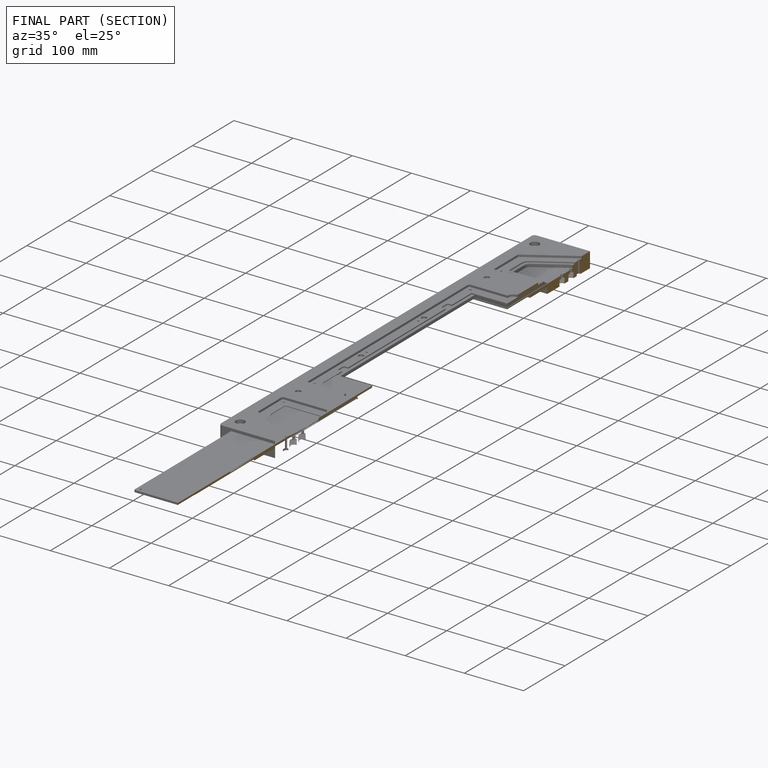
[diagram: finished part — half-section view (interior)]
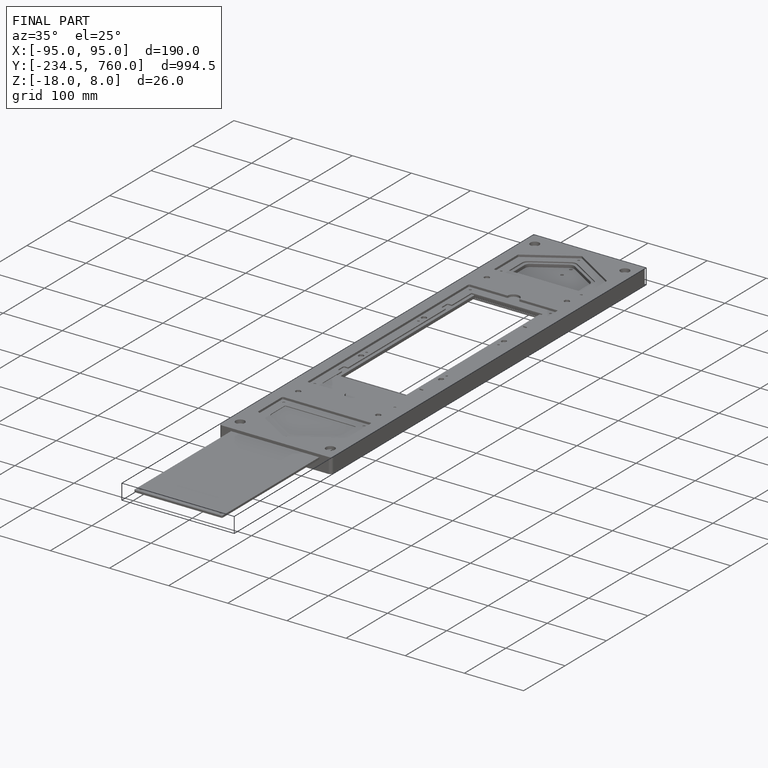
[diagram: finished part — iso view with bounding-box wireframe]
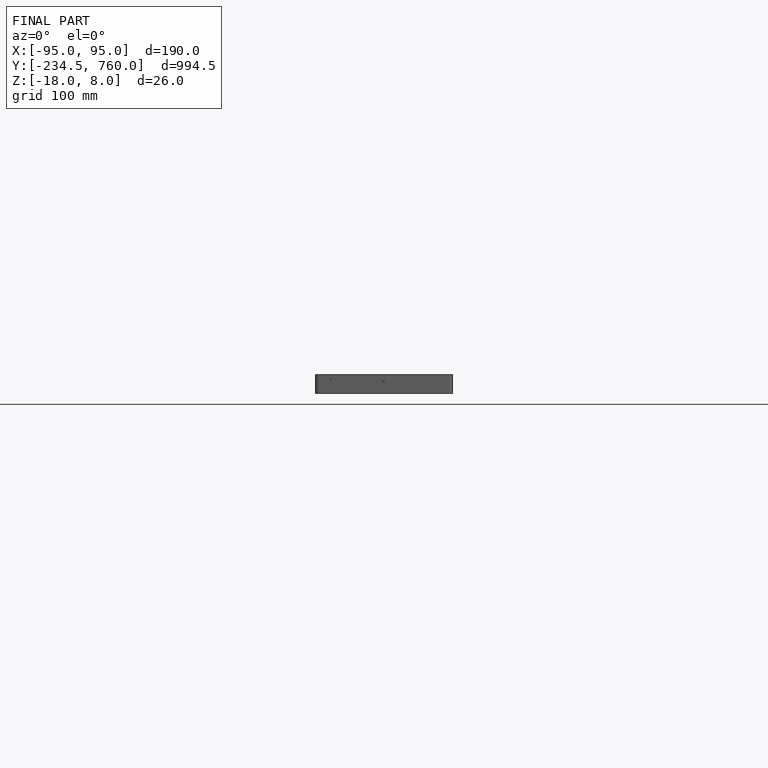
[diagram: finished part — front view with bounding-box wireframe]
